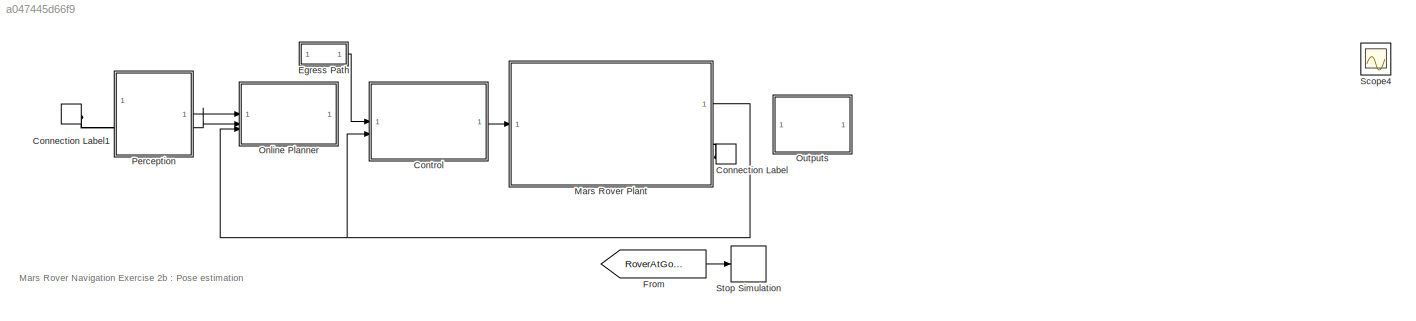
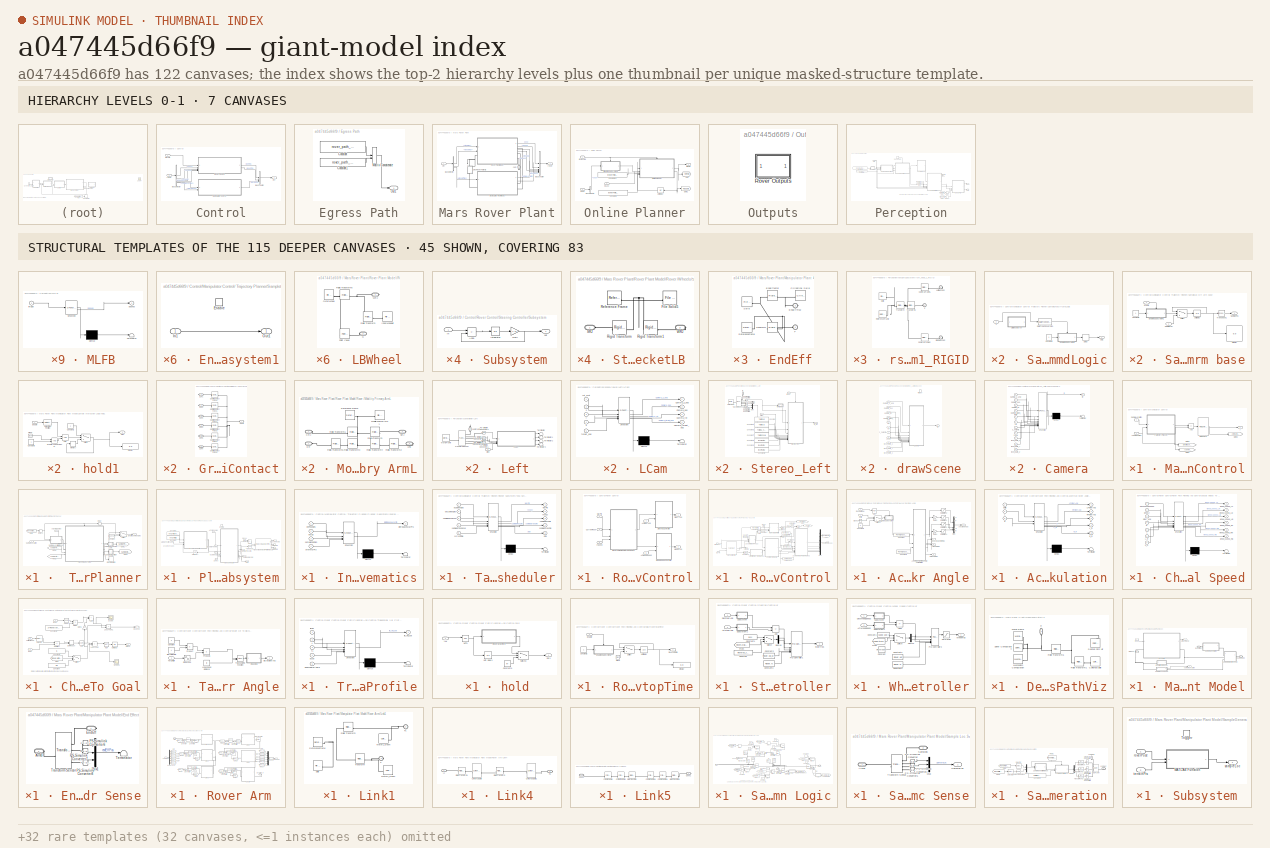
[diagram: thumbnail index - top-2 hierarchy levels (7 canvases) + 45 structural-template representatives of the remaining 115 canvases]
MODEL slx_a047445d66f9
KIND model
CONFIG AbsTol = 1e-3
CONFIG EnableMultiTasking = on
CONFIG FixedStep = 1e-2
CONFIG MaxStep = 0.1
CONFIG MinStep = auto
CONFIG RelTol = 1e-3
CONFIG SampleTimeConstraint = Unconstrained
CONFIG SolverName = ode23t
CONFIG StartFcn = mars_rover_sim_callback
CONFIG StartTime = 0.0
CONFIG StopTime = 2000
WORKSPACE source: MATLAB code (in-file)
WORKSPACE code: addpath("mars_rover_helpers");
WORKSPACE mdlpath = ['mars_rover_data',filesep,'mars_rover_arm']
WORKSPACE code: load_system(mdlpath);
WORKSPACE imdata = zeros(3,3,3)
WORKSPACE Kp_steer = 1
WORKSPACE Ki_steer = 1
WORKSPACE Kd_steer = 1
WORKSPACE Kp = 1
WORKSPACE Ki = 1
WORKSPACE Kd = 1
BLOCK [ConnectionLabel] Connection Label
  Label = cb
BLOCK [ConnectionLabel] Connection Label1
  Label = cb
  NameLocation = top
BLOCK [SubSystem] Control
BLOCK [BusCreator] Control/Bus Creator
  DisplayOption = bar
  InheritFromInputs = on
  Inputs = steerTrqs,wheelTrqs,armJointTrqs
BLOCK [BusSelector] Control/Bus Selector
  OutputSignals = pose,vSpeed,steerAng,wSpeeds,sampleLocation,armJointAng
BLOCK [SubSystem] Control/Manipulator Control
  Commented = on
BLOCK [SubSystem] Control/Manipulator Control/ Trajectory Planner
BLOCK [Inport] Control/Manipulator Control/ Trajectory Planner/ActJointAngles
  Port = 2
BLOCK [Constant] Control/Manipulator Control/ Trajectory Planner/Constant
  Value = [-2.2294 -125.2918   50.0575 -175.3493  177.7706  180.0000]
BLOCK [Delay] Control/Manipulator Control/ Trajectory Planner/Delay
  InputPortMap = u0
BLOCK [Delay] Control/Manipulator Control/ Trajectory Planner/Delay1
  DelayLength = 35
  InputPortMap = u0
BLOCK [Outport] Control/Manipulator Control/ Trajectory Planner/DesiredJointAngles
BLOCK [From] Control/Manipulator Control/ Trajectory Planner/From
  GotoTag = RoverAtGoal
  TagVisibility = global
BLOCK [From] Control/Manipulator Control/ Trajectory Planner/From1
  GotoTag = samplePickedSense
  TagVisibility = global
BLOCK [From] Control/Manipulator Control/ Trajectory Planner/From2
  GotoTag = sampleStoredSense
  TagVisibility = global
BLOCK [Goto] Control/Manipulator Control/ Trajectory Planner/Goto1
  GotoTag = SamplePickFlag
  TagVisibility = global
BLOCK [Goto] Control/Manipulator Control/ Trajectory Planner/Goto2
  GotoTag = SampleDropOffFlag
  TagVisibility = global
BLOCK [SubSystem] Control/Manipulator Control/ Trajectory Planner/Planner Subsystem
BLOCK [Inport] Control/Manipulator Control/ Trajectory Planner/Planner Subsystem/ActJointAngles
BLOCK [Sum] Control/Manipulator Control/ Trajectory Planner/Planner Subsystem/Add2
  IconShape = rectangular
  Inputs = +-
BLOCK [Clock] Control/Manipulator Control/ Trajectory Planner/Planner Subsystem/Clock3
BLOCK [Clock] Control/Manipulator Control/ Trajectory Planner/Planner Subsystem/Clock4
BLOCK [Constant] Control/Manipulator Control/ Trajectory Planner/Planner Subsystem/Constant2
  Value = eeConfig.Targets
BLOCK [Constant] Control/Manipulator Control/ Trajectory Planner/Planner Subsystem/Constant3
  Value = eeConfig.Ig
BLOCK [Outport] Control/Manipulator Control/ Trajectory Planner/Planner Subsystem/DesJointAngles
BLOCK [EnablePort] Control/Manipulator Control/ Trajectory Planner/Planner Subsystem/Enable
BLOCK [SubSystem] Control/Manipulator Control/ Trajectory Planner/Planner Subsystem/Inverse Kinematics
  ErrorFcn = Stateflow.Translate.translate
  PermitHierarchicalResolution = ExplicitOnly
  SFBlockType = MATLAB Function
  TreatAsAtomicUnit = on
BLOCK [Demux] Control/Manipulator Control/ Trajectory Planner/Planner Subsystem/Inverse Kinematics/ Demux 
  Outputs = 1
BLOCK [S-Function] Control/Manipulator Control/ Trajectory Planner/Planner Subsystem/Inverse Kinematics/ SFunction 
  EnableBusSupport = on
  FunctionName = sf_sfun
  PortCounts = [4 2]
  SFcnIsStateOwnerBlock = off
  SFunctionDeploymentMode = off
  Tag = Stateflow S-Function 16
BLOCK [Terminator] Control/Manipulator Control/ Trajectory Planner/Planner Subsystem/Inverse Kinematics/ Terminator 
BLOCK [Inport] Control/Manipulator Control/ Trajectory Planner/Planner Subsystem/Inverse Kinematics/eeIgs
  Port = 2
BLOCK [Inport] Control/Manipulator Control/ Trajectory Planner/Planner Subsystem/Inverse Kinematics/eePoseDes
BLOCK [Outport] Control/Manipulator Control/ Trajectory Planner/Planner Subsystem/Inverse Kinematics/jointSpaceWayPts
BLOCK [Inport] Control/Manipulator Control/ Trajectory Planner/Planner Subsystem/Inverse Kinematics/prevWayPts
  Port = 4
BLOCK [Inport] Control/Manipulator Control/ Trajectory Planner/Planner Subsystem/Inverse Kinematics/samplePosition
  Port = 3
BLOCK [Inport] Control/Manipulator Control/ Trajectory Planner/Planner Subsystem/IsSampleCollected
  Port = 4
BLOCK [Inport] Control/Manipulator Control/ Trajectory Planner/Planner Subsystem/IsSamplePicked
  Port = 3
BLOCK [Outport] Control/Manipulator Control/ Trajectory Planner/Planner Subsystem/SampleDropCmd
  Port = 3
BLOCK [Outport] Control/Manipulator Control/ Trajectory Planner/Planner Subsystem/SamplePickCmd
  Port = 2
BLOCK [Inport] Control/Manipulator Control/ Trajectory Planner/Planner Subsystem/SamplePosition
  Port = 2
BLOCK [SubSystem] Control/Manipulator Control/ Trajectory Planner/Planner Subsystem/Task Scheduler
  ErrorFcn = Stateflow.Translate.translate
  PermitHierarchicalResolution = ExplicitOnly
  SFBlockType = MATLAB Function
  TreatAsAtomicUnit = on
BLOCK [Demux] Control/Manipulator Control/ Trajectory Planner/Planner Subsystem/Task Scheduler/ Demux 
  Outputs = 1
BLOCK [S-Function] Control/Manipulator Control/ Trajectory Planner/Planner Subsystem/Task Scheduler/ SFunction 
  EnableBusSupport = on
  FunctionName = sf_sfun
  PortCounts = [5 6]
  SFcnIsStateOwnerBlock = off
  SFunctionDeploymentMode = off
  Tag = Stateflow S-Function 15
BLOCK [Terminator] Control/Manipulator Control/ Trajectory Planner/Planner Subsystem/Task Scheduler/ Terminator 
BLOCK [Inport] Control/Manipulator Control/ Trajectory Planner/Planner Subsystem/Task Scheduler/actJointAngles
BLOCK [Inport] Control/Manipulator Control/ Trajectory Planner/Planner Subsystem/Task Scheduler/currentTime
  Port = 5
BLOCK [Inport] Control/Manipulator Control/ Trajectory Planner/Planner Subsystem/Task Scheduler/desJointAngles
  Port = 2
BLOCK [Outport] Control/Manipulator Control/ Trajectory Planner/Planner Subsystem/Task Scheduler/reset_t
  Port = 2
BLOCK [Outport] Control/Manipulator Control/ Trajectory Planner/Planner Subsystem/Task Scheduler/sampleDropCmd
  Port = 4
BLOCK [Inport] Control/Manipulator Control/ Trajectory Planner/Planner Subsystem/Task Scheduler/sampleDropSense
  Port = 4
BLOCK [Outport] Control/Manipulator Control/ Trajectory Planner/Planner Subsystem/Task Scheduler/samplePickCmd
  Port = 3
BLOCK [Inport] Control/Manipulator Control/ Trajectory Planner/Planner Subsystem/Task Scheduler/samplePickSense
  Port = 3
BLOCK [Outport] Control/Manipulator Control/ Trajectory Planner/Planner Subsystem/Task Scheduler/stop
  Port = 5
BLOCK [Outport] Control/Manipulator Control/ Trajectory Planner/Planner Subsystem/Task Scheduler/wayPts
BLOCK [Terminator] Control/Manipulator Control/ Trajectory Planner/Planner Subsystem/Terminator2
BLOCK [Terminator] Control/Manipulator Control/ Trajectory Planner/Planner Subsystem/Terminator3
BLOCK [Math] Control/Manipulator Control/ Trajectory Planner/Planner Subsystem/Transpose
  Operator = transpose
BLOCK [Reference] Control/Manipulator Control/ Trajectory Planner/Planner Subsystem/Trapezoidal Velocity Profile Trajectory  REF=robotcorelib/Trapezoidal Velocity Profile Trajectory
  SourceBlock = robotcorelib/Trapezoidal Velocity Profile Trajectory
  SourceType = robotics.slcore.internal.block.TrapVelTrajSys
BLOCK [UnitDelay] Control/Manipulator Control/ Trajectory Planner/Planner Subsystem/Unit Delay1
  HasFrameUpgradeWarning = on
  InitialCondition = zeros(7,6)
  NameLocation = top
  SampleTime = -1
BLOCK [Outport] Control/Manipulator Control/ Trajectory Planner/Planner Subsystem/stop
  Port = 4
BLOCK [SubSystem] Control/Manipulator Control/ Trajectory Planner/SampleDropOffCmdLogic
BLOCK [Constant] Control/Manipulator Control/ Trajectory Planner/SampleDropOffCmdLogic/Constant2
BLOCK [DataTypeConversion] Control/Manipulator Control/ Trajectory Planner/SampleDropOffCmdLogic/Data Type Conversion
  OutDataTypeStr = double
  RndMeth = Floor
  SaturateOnIntegerOverflow = off
BLOCK [Delay] Control/Manipulator Control/ Trajectory Planner/SampleDropOffCmdLogic/Delay
  InputPortMap = u0
BLOCK [SubSystem] Control/Manipulator Control/ Trajectory Planner/SampleDropOffCmdLogic/DistanceError
  Commented = on
  ErrorFcn = Stateflow.Translate.translate
  PermitHierarchicalResolution = ExplicitOnly
  SFBlockType = MATLAB Function
  TreatAsAtomicUnit = on
BLOCK [Demux] Control/Manipulator Control/ Trajectory Planner/SampleDropOffCmdLogic/DistanceError/ Demux 
  Outputs = 1
BLOCK [S-Function] Control/Manipulator Control/ Trajectory Planner/SampleDropOffCmdLogic/DistanceError/ SFunction 
  EnableBusSupport = on
  FunctionName = sf_sfun
  PortCounts = [1 2]
  SFcnIsStateOwnerBlock = off
  SFunctionDeploymentMode = off
  Tag = Stateflow S-Function 7
BLOCK [Terminator] Control/Manipulator Control/ Trajectory Planner/SampleDropOffCmdLogic/DistanceError/ Terminator 
BLOCK [Outport] Control/Manipulator Control/ Trajectory Planner/SampleDropOffCmdLogic/DistanceError/flag
BLOCK [Inport] Control/Manipulator Control/ Trajectory Planner/SampleDropOffCmdLogic/DistanceError/u
BLOCK [SubSystem] Control/Manipulator Control/ Trajectory Planner/SampleDropOffCmdLogic/Enabled Subsystem1
  MinAlgLoopOccurrences = on
  TreatAsAtomicUnit = on
BLOCK [EnablePort] Control/Manipulator Control/ Trajectory Planner/SampleDropOffCmdLogic/Enabled Subsystem1/Enable
BLOCK [Inport] Control/Manipulator Control/ Trajectory Planner/SampleDropOffCmdLogic/Enabled Subsystem1/In1
BLOCK [Outport] Control/Manipulator Control/ Trajectory Planner/SampleDropOffCmdLogic/Enabled Subsystem1/Out1
BLOCK [Outport] Control/Manipulator Control/ Trajectory Planner/SampleDropOffCmdLogic/Out1
BLOCK [Inport] Control/Manipulator Control/ Trajectory Planner/SampleDropOffCmdLogic/u
BLOCK [SubSystem] Control/Manipulator Control/ Trajectory Planner/SampleLoc wrt arm base
BLOCK [Constant] Control/Manipulator Control/ Trajectory Planner/SampleLoc wrt arm base/Constant2
BLOCK [Display] Control/Manipulator Control/ Trajectory Planner/SampleLoc wrt arm base/Display
  Decimation = 1
BLOCK [Inport] Control/Manipulator Control/ Trajectory Planner/SampleLoc wrt arm base/Enable
BLOCK [SubSystem] Control/Manipulator Control/ Trajectory Planner/SampleLoc wrt arm base/Enabled Subsystem1
  MinAlgLoopOccurrences = on
  TreatAsAtomicUnit = on
BLOCK [EnablePort] Control/Manipulator Control/ Trajectory Planner/SampleLoc wrt arm base/Enabled Subsystem1/Enable
BLOCK [Inport] Control/Manipulator Control/ Trajectory Planner/SampleLoc wrt arm base/Enabled Subsystem1/In1
BLOCK [Outport] Control/Manipulator Control/ Trajectory Planner/SampleLoc wrt arm base/Enabled Subsystem1/Out1
BLOCK [Inport] Control/Manipulator Control/ Trajectory Planner/SampleLoc wrt arm base/SampleLoc
  Port = 2
BLOCK [Outport] Control/Manipulator Control/ Trajectory Planner/SampleLoc wrt arm base/SamplePos
BLOCK [Switch] Control/Manipulator Control/ Trajectory Planner/SampleLoc wrt arm base/Switch
  Criteria = u2 > Threshold
  InputSameDT = off
  SaturateOnIntegerOverflow = off
BLOCK [Math] Control/Manipulator Control/ Trajectory Planner/SampleLoc wrt arm base/Transpose1
  Operator = transpose
BLOCK [UnitDelay] Control/Manipulator Control/ Trajectory Planner/SampleLoc wrt arm base/Unit Delay
  HasFrameUpgradeWarning = on
  SampleTime = -1
BLOCK [Inport] Control/Manipulator Control/ Trajectory Planner/SampleLocation
BLOCK [SubSystem] Control/Manipulator Control/ Trajectory Planner/SamplePickUpCmdLogic
BLOCK [Constant] Control/Manipulator Control/ Trajectory Planner/SamplePickUpCmdLogic/Constant2
BLOCK [DataTypeConversion] Control/Manipulator Control/ Trajectory Planner/SamplePickUpCmdLogic/Data Type Conversion
  OutDataTypeStr = double
  RndMeth = Floor
  SaturateOnIntegerOverflow = off
BLOCK [Delay] Control/Manipulator Control/ Trajectory Planner/SamplePickUpCmdLogic/Delay
  InputPortMap = u0
BLOCK [SubSystem] Control/Manipulator Control/ Trajectory Planner/SamplePickUpCmdLogic/DistanceError
  Commented = on
  ErrorFcn = Stateflow.Translate.translate
  PermitHierarchicalResolution = ExplicitOnly
  SFBlockType = MATLAB Function
  TreatAsAtomicUnit = on
BLOCK [Demux] Control/Manipulator Control/ Trajectory Planner/SamplePickUpCmdLogic/DistanceError/ Demux 
  Outputs = 1
BLOCK [S-Function] Control/Manipulator Control/ Trajectory Planner/SamplePickUpCmdLogic/DistanceError/ SFunction 
  EnableBusSupport = on
  FunctionName = sf_sfun
  PortCounts = [1 2]
  SFcnIsStateOwnerBlock = off
  SFunctionDeploymentMode = off
  Tag = Stateflow S-Function 6
BLOCK [Terminator] Control/Manipulator Control/ Trajectory Planner/SamplePickUpCmdLogic/DistanceError/ Terminator 
BLOCK [Outport] Control/Manipulator Control/ Trajectory Planner/SamplePickUpCmdLogic/DistanceError/flag
BLOCK [Inport] Control/Manipulator Control/ Trajectory Planner/SamplePickUpCmdLogic/DistanceError/u
BLOCK [SubSystem] Control/Manipulator Control/ Trajectory Planner/SamplePickUpCmdLogic/Enabled Subsystem1
  MinAlgLoopOccurrences = on
  TreatAsAtomicUnit = on
BLOCK [EnablePort] Control/Manipulator Control/ Trajectory Planner/SamplePickUpCmdLogic/Enabled Subsystem1/Enable
BLOCK [Inport] Control/Manipulator Control/ Trajectory Planner/SamplePickUpCmdLogic/Enabled Subsystem1/In1
BLOCK [Outport] Control/Manipulator Control/ Trajectory Planner/SamplePickUpCmdLogic/Enabled Subsystem1/Out1
BLOCK [Outport] Control/Manipulator Control/ Trajectory Planner/SamplePickUpCmdLogic/Out1
BLOCK [Inport] Control/Manipulator Control/ Trajectory Planner/SamplePickUpCmdLogic/u
BLOCK [Stop] Control/Manipulator Control/ Trajectory Planner/Stop Simulation
BLOCK [Switch] Control/Manipulator Control/ Trajectory Planner/Switch
  Criteria = u2 > Threshold
  InputSameDT = off
  SaturateOnIntegerOverflow = off
BLOCK [Inport] Control/Manipulator Control/ActJointAngles
  Port = 2
BLOCK [Sum] Control/Manipulator Control/Add
  IconShape = rectangular
  Inputs = +-
BLOCK [Goto] Control/Manipulator Control/Goto1
  GotoTag = ActJointAngles
  TagVisibility = global
BLOCK [Goto] Control/Manipulator Control/Goto2
  GotoTag = DesiredJointAngles
  TagVisibility = global
BLOCK [Goto] Control/Manipulator Control/Goto3
  GotoTag = JointActuatorTrqs
  TagVisibility = global
BLOCK [Reference] Control/Manipulator Control/PID Control  REF=slpidlib/PID Controller
  SourceBlock = slpidlib/PID Controller
  SourceType = PID 1dof
BLOCK [Inport] Control/Manipulator Control/SampleLocation
BLOCK [Outport] Control/Manipulator Control/y
BLOCK [SubSystem] Control/Rover Control
BLOCK [Inport] Control/Rover Control/ActSteerAng
  Port = 4
BLOCK [Inport] Control/Rover Control/ActWheelSpeed
  Port = 5
BLOCK [Inport] Control/Rover Control/CurrentPose
  Port = 2
BLOCK [SubSystem] Control/Rover Control/Rover Path Planning And Control
BLOCK [Logic] Control/Rover Control/Rover Path Planning And Control/AND
  AllPortsSameDT = off
  IconShape = distinctive
  OutDataTypeStr = boolean
BLOCK [SubSystem] Control/Rover Control/Rover Path Planning And Control/Ackerman Steer Angle
BLOCK [Outport] Control/Rover Control/Rover Path Planning And Control/Ackerman Steer Angle/AckSteerAngs
BLOCK [SubSystem] Control/Rover Control/Rover Path Planning And Control/Ackerman Steer Angle/Ackerman Steering Angle Formulation
  ErrorFcn = Stateflow.Translate.translate
  PermitHierarchicalResolution = ExplicitOnly
  SFBlockType = MATLAB Function
  TreatAsAtomicUnit = on
BLOCK [Demux] Control/Rover Control/Rover Path Planning And Control/Ackerman Steer Angle/Ackerman Steering Angle Formulation/ Demux 
  Outputs = 1
BLOCK [S-Function] Control/Rover Control/Rover Path Planning And Control/Ackerman Steer Angle/Ackerman Steering Angle Formulation/ SFunction 
  EnableBusSupport = on
  FunctionName = sf_sfun
  PortCounts = [3 6]
  SFcnIsStateOwnerBlock = off
  SFunctionDeploymentMode = off
  Tag = Stateflow S-Function 12
BLOCK [Terminator] Control/Rover Control/Rover Path Planning And Control/Ackerman Steer Angle/Ackerman Steering Angle Formulation/ Terminator 
BLOCK [Inport] Control/Rover Control/Rover Path Planning And Control/Ackerman Steer Angle/Ackerman Steering Angle Formulation/L
  Port = 2
BLOCK [Outport] Control/Rover Control/Rover Path Planning And Control/Ackerman Steer Angle/Ackerman Steering Angle Formulation/LFsteerAng
BLOCK [Outport] Control/Rover Control/Rover Path Planning And Control/Ackerman Steer Angle/Ackerman Steering Angle Formulation/L_R
  Port = 4
BLOCK [Outport] Control/Rover Control/Rover Path Planning And Control/Ackerman Steer Angle/Ackerman Steering Angle Formulation/R
  Port = 3
BLOCK [Outport] Control/Rover Control/Rover Path Planning And Control/Ackerman Steer Angle/Ackerman Steering Angle Formulation/RFsteerAng
  Port = 2
BLOCK [Outport] Control/Rover Control/Rover Path Planning And Control/Ackerman Steer Angle/Ackerman Steering Angle Formulation/R_R
  Port = 5
BLOCK [Inport] Control/Rover Control/Rover Path Planning And Control/Ackerman Steer Angle/Ackerman Steering Angle Formulation/d
  Port = 3
BLOCK [Inport] Control/Rover Control/Rover Path Planning And Control/Ackerman Steer Angle/Ackerman Steering Angle Formulation/delta
BLOCK [Outport] Control/Rover Control/Rover Path Planning And Control/Ackerman Steer Angle/ChassisCenterROC
  Port = 2
BLOCK [Clock] Control/Rover Control/Rover Path Planning And Control/Ackerman Steer Angle/Clock1
BLOCK [Constant] Control/Rover Control/Rover Path Planning And Control/Ackerman Steer Angle/Constant
  Value = Rover.Chassis_L/2
BLOCK [Constant] Control/Rover Control/Rover Path Planning And Control/Ackerman Steer Angle/Constant3
  NameLocation = top
  Value = 6
BLOCK [Constant] Control/Rover Control/Rover Path Planning And Control/Ackerman Steer Angle/Constant4
  Value = Rover.Chassis_width
BLOCK [Inport] Control/Rover Control/Rover Path Planning And Control/Ackerman Steer Angle/Delta
  Port = 2
BLOCK [SubSystem] Control/Rover Control/Rover Path Planning And Control/Ackerman Steer Angle/Enabled Subsystem
  TreatAsAtomicUnit = on
BLOCK [EnablePort] Control/Rover Control/Rover Path Planning And Control/Ackerman Steer Angle/Enabled Subsystem/Enable
BLOCK [Inport] Control/Rover Control/Rover Path Planning And Control/Ackerman Steer Angle/Enabled Subsystem/In1
BLOCK [Outport] Control/Rover Control/Rover Path Planning And Control/Ackerman Steer Angle/Enabled Subsystem/delta
BLOCK [Gain] Control/Rover Control/Rover Path Planning And Control/Ackerman Steer Angle/Gain3
  Gain = -1
BLOCK [Gain] Control/Rover Control/Rover Path Planning And Control/Ackerman Steer Angle/Gain4
  Gain = -1
BLOCK [Outport] Control/Rover Control/Rover Path Planning And Control/Ackerman Steer Angle/LWheelROC
  Port = 3
BLOCK [Mux] Control/Rover Control/Rover Path Planning And Control/Ackerman Steer Angle/Mux
  DisplayOption = bar
BLOCK [Logic] Control/Rover Control/Rover Path Planning And Control/Ackerman Steer Angle/NOT
  AllPortsSameDT = off
  IconShape = distinctive
  Operator = NOT
  OutDataTypeStr = boolean
BLOCK [Outport] Control/Rover Control/Rover Path Planning And Control/Ackerman Steer Angle/RWheelROC
  Port = 4
BLOCK [Inport] Control/Rover Control/Rover Path Planning And Control/Ackerman Steer Angle/RoverAtGoal
BLOCK [Saturate] Control/Rover Control/Rover Path Planning And Control/Ackerman Steer Angle/Saturation1
  LowerLimit = -60
  UpperLimit = 60
BLOCK [Saturate] Control/Rover Control/Rover Path Planning And Control/Ackerman Steer Angle/Saturation2
  LowerLimit = -60
  UpperLimit = 60
BLOCK [Saturate] Control/Rover Control/Rover Path Planning And Control/Ackerman Steer Angle/Saturation3
  LowerLimit = -60
  UpperLimit = 60
BLOCK [Saturate] Control/Rover Control/Rover Path Planning And Control/Ackerman Steer Angle/Saturation4
  LowerLimit = -60
  UpperLimit = 60
BLOCK [Switch] Control/Rover Control/Rover Path Planning And Control/Ackerman Steer Angle/Switch2
  Criteria = u2 > Threshold
  InputSameDT = off
  SaturateOnIntegerOverflow = off
  Threshold = 1
BLOCK [SubSystem] Control/Rover Control/Rover Path Planning And Control/Chassis Velocity To Wheel Speed
  ErrorFcn = Stateflow.Translate.translate
  PermitHierarchicalResolution = ExplicitOnly
  SFBlockType = MATLAB Function
  TreatAsAtomicUnit = on
BLOCK [Demux] Control/Rover Control/Rover Path Planning And Control/Chassis Velocity To Wheel Speed/ Demux 
  Outputs = 1
BLOCK [S-Function] Control/Rover Control/Rover Path Planning And Control/Chassis Velocity To Wheel Speed/ SFunction 
  EnableBusSupport = on
  FunctionName = sf_sfun
  PortCounts = [7 7]
  SFcnIsStateOwnerBlock = off
  SFunctionDeploymentMode = off
  Tag = Stateflow S-Function 14
BLOCK [Terminator] Control/Rover Control/Rover Path Planning And Control/Chassis Velocity To Wheel Speed/ Terminator 
BLOCK [Inport] Control/Rover Control/Rover Path Planning And Control/Chassis Velocity To Wheel Speed/L
  Port = 5
BLOCK [Inport] Control/Rover Control/Rover Path Planning And Control/Chassis Velocity To Wheel Speed/L_R
  Port = 6
BLOCK [Inport] Control/Rover Control/Rover Path Planning And Control/Chassis Velocity To Wheel Speed/R
  Port = 4
BLOCK [Inport] Control/Rover Control/Rover Path Planning And Control/Chassis Velocity To Wheel Speed/R_R
  Port = 7
BLOCK [Inport] Control/Rover Control/Rover Path Planning And Control/Chassis Velocity To Wheel Speed/desChassisSpeed
BLOCK [Inport] Control/Rover Control/Rover Path Planning And Control/Chassis Velocity To Wheel Speed/steer_ang
  Port = 3
BLOCK [Inport] Control/Rover Control/Rover Path Planning And Control/Chassis Velocity To Wheel Speed/wheel_r
  Port = 2
BLOCK [Outport] Control/Rover Control/Rover Path Planning And Control/Chassis Velocity To Wheel Speed/wheel_speed_LB
  Port = 3
BLOCK [Outport] Control/Rover Control/Rover Path Planning And Control/Chassis Velocity To Wheel Speed/wheel_speed_LF
BLOCK [Outport] Control/Rover Control/Rover Path Planning And Control/Chassis Velocity To Wheel Speed/wheel_speed_LM
  Port = 2
BLOCK [Outport] Control/Rover Control/Rover Path Planning And Control/Chassis Velocity To Wheel Speed/wheel_speed_RB
  Port = 6
BLOCK [Outport] Control/Rover Control/Rover Path Planning And Control/Chassis Velocity To Wheel Speed/wheel_speed_RF
  Port = 4
BLOCK [Outport] Control/Rover Control/Rover Path Planning And Control/Chassis Velocity To Wheel Speed/wheel_speed_RM
  Port = 5
BLOCK [SubSystem] Control/Rover Control/Rover Path Planning And Control/Check Distance To Goal
BLOCK [Sum] Control/Rover Control/Rover Path Planning And Control/Check Distance To Goal/Add
  IconShape = rectangular
BLOCK [Constant] Control/Rover Control/Rover Path Planning And Control/Check Distance To Goal/Constant
  Value = 0.5
BLOCK [Constant] Control/Rover Control/Rover Path Planning And Control/Check Distance To Goal/Constant1
  Value = 2*Rover.rover_accel
BLOCK [Constant] Control/Rover Control/Rover Path Planning And Control/Check Distance To Goal/Constant2
  Value = 5
BLOCK [Product] Control/Rover Control/Rover Path Planning And Control/Check Distance To Goal/Divide
  Inputs = */
BLOCK [DotProduct] Control/Rover Control/Rover Path Planning And Control/Check Distance To Goal/Dot Product
  OutDataTypeStr = Inherit: Inherit via internal rule
BLOCK [From] Control/Rover Control/Rover Path Planning And Control/Check Distance To Goal/From
  GotoTag = RoverAtGoal
  TagVisibility = global
BLOCK [Gain] Control/Rover Control/Rover Path Planning And Control/Check Distance To Goal/Gain1
  NameLocation = right
BLOCK [RelationalOperator] Control/Rover Control/Rover Path Planning And Control/Check Distance To Goal/Less Than
  InputSameDT = off
  Operator = >
  OutDataTypeStr = boolean
  RndMeth = Simplest
BLOCK [RelationalOperator] Control/Rover Control/Rover Path Planning And Control/Check Distance To Goal/Less Than1
  InputSameDT = off
  Operator = >
  OutDataTypeStr = boolean
  RndMeth = Simplest
BLOCK [Logic] Control/Rover Control/Rover Path Planning And Control/Check Distance To Goal/NOT
  AllPortsSameDT = off
  IconShape = distinctive
  Operator = NOT
  OutDataTypeStr = boolean
BLOCK [Scope] Control/Rover Control/Rover Path Planning And Control/Check Distance To Goal/Scope
  Floating = off
  NumInputPorts = 1
  ScopeSpecificationString = Simulink.scopes.TimeScopeBlockCfg('CurrentConfiguration', extmgr.ConfigurationSet(extmgr.Configuration('Core','General UI',true),extmgr.Configuration('Core','Source UI',true),extmgr.Configuration('Sources','WiredSimulink',true,'DataLoggingVariableName','ScopeData11'),extmgr.Configuration('Visuals','Time Domain',true,'SerializedDisplays',{struct('MinYLimReal','-0.0616','MaxYLimReal','5.5634','YLabe...<+1465ch>
BLOCK [Scope] Control/Rover Control/Rover Path Planning And Control/Check Distance To Goal/Scope1
  Floating = off
  NumInputPorts = 1
  ScopeSpecificationString = Simulink.scopes.TimeScopeBlockCfg('CurrentConfiguration', extmgr.ConfigurationSet(extmgr.Configuration('Core','General UI',true),extmgr.Configuration('Core','Source UI',true),extmgr.Configuration('Sources','WiredSimulink',true,'DataLoggingVariableName','ScopeData17'),extmgr.Configuration('Visuals','Time Domain',true,'SerializedDisplays',{struct('MinYLimReal','1.46909','MaxYLimReal','7.77836','YLab...<+1436ch>
BLOCK [Selector] Control/Rover Control/Rover Path Planning And Control/Check Distance To Goal/Selector
  IndexOptions = Index vector (dialog)
  Indices = [1 2]
  InputPortWidth = 3
  OutputSizes = 1
BLOCK [Sqrt] Control/Rover Control/Rover Path Planning And Control/Check Distance To Goal/Sqrt
BLOCK [Sum] Control/Rover Control/Rover Path Planning And Control/Check Distance To Goal/Subtract
  IconShape = rectangular
  Inputs = +-
BLOCK [Switch] Control/Rover Control/Rover Path Planning And Control/Check Distance To Goal/Switch
  Criteria = u2 > Threshold
  InputSameDT = off
  SaturateOnIntegerOverflow = off
BLOCK [UnitDelay] Control/Rover Control/Rover Path Planning And Control/Check Distance To Goal/Unit Delay
  HasFrameUpgradeWarning = on
  SampleTime = -1
BLOCK [Outport] Control/Rover Control/Rover Path Planning And Control/Check Distance To Goal/atGoal
  Port = 2
BLOCK [Math] Control/Rover Control/Rover Path Planning And Control/Check Distance To Goal/const
  Operator = square
BLOCK [Inport] Control/Rover Control/Rover Path Planning And Control/Check Distance To Goal/currentPose
  Port = 2
BLOCK [Outport] Control/Rover Control/Rover Path Planning And Control/Check Distance To Goal/deAccel
BLOCK [Inport] Control/Rover Control/Rover Path Planning And Control/Check Distance To Goal/goal
BLOCK [Inport] Control/Rover Control/Rover Path Planning And Control/Check Distance To Goal/linVel
  Port = 3
BLOCK [Clock] Control/Rover Control/Rover Path Planning And Control/Clock3
BLOCK [Reference] Control/Rover Control/Rover Path Planning And Control/Compare To Constant  REF=simulink/Logic and Bit
Operations/Compare
To Constant
  SourceBlock = simulink/Logic and Bit\nOperations/Compare\nTo Constant
  SourceType = Compare To Constant
BLOCK [Constant] Control/Rover Control/Rover Path Planning And Control/Constant10
  Value = Rover.start_time
BLOCK [Constant] Control/Rover Control/Rover Path Planning And Control/Constant11
  Value = Rover.rover_accel
BLOCK [Constant] Control/Rover Control/Rover Path Planning And Control/Constant12
  Value = Rover.Chassis_L/2
BLOCK [Constant] Control/Rover Control/Rover Path Planning And Control/Constant7
  Value = [rover_path_dl.x(end) rover_path_dl.y(end)]
BLOCK [Constant] Control/Rover Control/Rover Path Planning And Control/Constant8
  Value = Rover.Wheel_Radius
BLOCK [Inport] Control/Rover Control/Rover Path Planning And Control/CurrentPose
  Port = 2
BLOCK [Outport] Control/Rover Control/Rover Path Planning And Control/DesSteerAngs
BLOCK [Outport] Control/Rover Control/Rover Path Planning And Control/DesWheelSpeeds
  Port = 2
BLOCK [Goto] Control/Rover Control/Rover Path Planning And Control/Goto
  GotoTag = RoverAtGoal
  TagVisibility = global
BLOCK [Goto] Control/Rover Control/Rover Path Planning And Control/Goto1
  GotoTag = DesSteerAng
  TagVisibility = global
BLOCK [Goto] Control/Rover Control/Rover Path Planning And Control/Goto2
  GotoTag = DesWheelSpeeds
  TagVisibility = global
BLOCK [Goto] Control/Rover Control/Rover Path Planning And Control/Goto3
  GotoTag = RoverDesiredLinearSpeed
  TagVisibility = global
BLOCK [Mux] Control/Rover Control/Rover Path Planning And Control/Mux2
  DisplayOption = bar
  Inputs = 6
BLOCK [Reference] Control/Rover Control/Rover Path Planning And Control/Pure Pursuit Control  REF=robotalgslib/Pure Pursuit
  SourceBlock = robotalgslib/Pure Pursuit
  SourceType = nav.slalgs.internal.PurePursuit
BLOCK [SubSystem] Control/Rover Control/Rover Path Planning And Control/Target Dir To Bicycle Steer Angle
BLOCK [Constant] Control/Rover Control/Rover Path Planning And Control/Target Dir To Bicycle Steer Angle/Bicycle length
  Value = L
BLOCK [Outport] Control/Rover Control/Rover Path Planning And Control/Target Dir To Bicycle Steer Angle/BicycleSteerAng
BLOCK [Constant] Control/Rover Control/Rover Path Planning And Control/Target Dir To Bicycle Steer Angle/Constant
  Value = 2
BLOCK [Constant] Control/Rover Control/Rover Path Planning And Control/Target Dir To Bicycle Steer Angle/Lookahead distance
  Value = ld
BLOCK [Product] Control/Rover Control/Rover Path Planning And Control/Target Dir To Bicycle Steer Angle/Product
BLOCK [Product] Control/Rover Control/Rover Path Planning And Control/Target Dir To Bicycle Steer Angle/Product1
BLOCK [SubSystem] Control/Rover Control/Rover Path Planning And Control/Target Dir To Bicycle Steer Angle/Rad2Deg
  ErrorFcn = Stateflow.Translate.translate
  PermitHierarchicalResolution = ExplicitOnly
  SFBlockType = MATLAB Function
  TreatAsAtomicUnit = on
BLOCK [Demux] Control/Rover Control/Rover Path Planning And Control/Target Dir To Bicycle Steer Angle/Rad2Deg/ Demux 
  Outputs = 1
BLOCK [S-Function] Control/Rover Control/Rover Path Planning And Control/Target Dir To Bicycle Steer Angle/Rad2Deg/ SFunction 
  EnableBusSupport = on
  FunctionName = sf_sfun
  PortCounts = [1 2]
  SFcnIsStateOwnerBlock = off
  SFunctionDeploymentMode = off
  Tag = Stateflow S-Function 1
BLOCK [Terminator] Control/Rover Control/Rover Path Planning And Control/Target Dir To Bicycle Steer Angle/Rad2Deg/ Terminator 
BLOCK [Inport] Control/Rover Control/Rover Path Planning And Control/Target Dir To Bicycle Steer Angle/Rad2Deg/u
BLOCK [Outport] Control/Rover Control/Rover Path Planning And Control/Target Dir To Bicycle Steer Angle/Rad2Deg/y
BLOCK [Sin] Control/Rover Control/Rover Path Planning And Control/Target Dir To Bicycle Steer Angle/Sine Wave
  SampleTime = 0
  TimeSource = Use external signal
BLOCK [Inport] Control/Rover Control/Rover Path Planning And Control/Target Dir To Bicycle Steer Angle/TargetDir
BLOCK [Trigonometry] Control/Rover Control/Rover Path Planning And Control/Target Dir To Bicycle Steer Angle/Trigonometric Function
  Operator = atan2
BLOCK [Terminator] Control/Rover Control/Rover Path Planning And Control/Terminator
BLOCK [ToWorkspace] Control/Rover Control/Rover Path Planning And Control/To Workspace
  FixptAsFi = on
  MaxDataPoints = inf
  SampleTime = -1
  VariableName = ROC
BLOCK [TransferFcn] Control/Rover Control/Rover Path Planning And Control/Transfer Fcn1
  Denominator = [0.25 1]
BLOCK [TransferFcn] Control/Rover Control/Rover Path Planning And Control/Transfer Fcn2
  Denominator = [0.25 1]
BLOCK [SubSystem] Control/Rover Control/Rover Path Planning And Control/Trapezoidal Vel Profile
  ErrorFcn = Stateflow.Translate.translate
  PermitHierarchicalResolution = ExplicitOnly
  SFBlockType = MATLAB Function
  TreatAsAtomicUnit = on
BLOCK [Demux] Control/Rover Control/Rover Path Planning And Control/Trapezoidal Vel Profile/ Demux 
  Outputs = 1
BLOCK [S-Function] Control/Rover Control/Rover Path Planning And Control/Trapezoidal Vel Profile/ SFunction 
  EnableBusSupport = on
  FunctionName = sf_sfun
  PortCounts = [5 2]
  SFcnIsStateOwnerBlock = off
  SFunctionDeploymentMode = off
  Tag = Stateflow S-Function 11
BLOCK [Terminator] Control/Rover Control/Rover Path Planning And Control/Trapezoidal Vel Profile/ Terminator 
BLOCK [Inport] Control/Rover Control/Rover Path Planning And Control/Trapezoidal Vel Profile/accel
  Port = 4
BLOCK [Inport] Control/Rover Control/Rover Path Planning And Control/Trapezoidal Vel Profile/deaccelStartTime
  Port = 5
BLOCK [Inport] Control/Rover Control/Rover Path Planning And Control/Trapezoidal Vel Profile/linVel
BLOCK [Outport] Control/Rover Control/Rover Path Planning And Control/Trapezoidal Vel Profile/lin_Vel_out
BLOCK [Inport] Control/Rover Control/Rover Path Planning And Control/Trapezoidal Vel Profile/t
  Port = 2
BLOCK [Inport] Control/Rover Control/Rover Path Planning And Control/Trapezoidal Vel Profile/t1
  Port = 3
BLOCK [Inport] Control/Rover Control/Rover Path Planning And Control/WayPts
BLOCK [SubSystem] Control/Rover Control/Rover Path Planning And Control/hold
BLOCK [Constant] Control/Rover Control/Rover Path Planning And Control/hold/Constant9
  Value = inf
BLOCK [Inport] Control/Rover Control/Rover Path Planning And Control/hold/In1
BLOCK [Logic] Control/Rover Control/Rover Path Planning And Control/hold/NOT1
  AllPortsSameDT = off
  IconShape = distinctive
  Operator = NOT
  OutDataTypeStr = boolean
BLOCK [Outport] Control/Rover Control/Rover Path Planning And Control/hold/Out1
BLOCK [SubSystem] Control/Rover Control/Rover Path Planning And Control/hold/RoverStopTime
BLOCK [Clock] Control/Rover Control/Rover Path Planning And Control/hold/RoverStopTime/Clock
BLOCK [Constant] Control/Rover Control/Rover Path Planning And Control/hold/RoverStopTime/Constant2
BLOCK [Outport] Control/Rover Control/Rover Path Planning And Control/hold/RoverStopTime/DeAccelTime
BLOCK [Display] Control/Rover Control/Rover Path Planning And Control/hold/RoverStopTime/Display
  Decimation = 1
BLOCK [Inport] Control/Rover Control/Rover Path Planning And Control/hold/RoverStopTime/Enable
BLOCK [SubSystem] Control/Rover Control/Rover Path Planning And Control/hold/RoverStopTime/Enabled Subsystem1
  MinAlgLoopOccurrences = on
  TreatAsAtomicUnit = on
BLOCK [EnablePort] Control/Rover Control/Rover Path Planning And Control/hold/RoverStopTime/Enabled Subsystem1/Enable
BLOCK [Inport] Control/Rover Control/Rover Path Planning And Control/hold/RoverStopTime/Enabled Subsystem1/In1
BLOCK [Outport] Control/Rover Control/Rover Path Planning And Control/hold/RoverStopTime/Enabled Subsystem1/Out1
BLOCK [Switch] Control/Rover Control/Rover Path Planning And Control/hold/RoverStopTime/Switch
  Criteria = u2 > Threshold
  InputSameDT = off
  SaturateOnIntegerOverflow = off
BLOCK [UnitDelay] Control/Rover Control/Rover Path Planning And Control/hold/RoverStopTime/Unit Delay
  HasFrameUpgradeWarning = on
  SampleTime = -1
BLOCK [Switch] Control/Rover Control/Rover Path Planning And Control/hold/Switch3
  Criteria = u2 > Threshold
  InputSameDT = off
  SaturateOnIntegerOverflow = off
BLOCK [UnitDelay] Control/Rover Control/Rover Path Planning And Control/hold/Unit Delay1
  HasFrameUpgradeWarning = on
  SampleTime = -1
BLOCK [Inport] Control/Rover Control/Rover Path Planning And Control/vSpeed
  Port = 3
BLOCK [Outport] Control/Rover Control/SteerTrqs
BLOCK [SubSystem] Control/Rover Control/Steering Controller
BLOCK [Inport] Control/Rover Control/Steering Controller/ActSteerAng
  Port = 2
BLOCK [Sum] Control/Rover Control/Steering Controller/Add
  IconShape = rectangular
  Inputs = +-
BLOCK [Constant] Control/Rover Control/Steering Controller/Constant
  Value = [Rover.Kp_steer,Rover.Ki_steer]
BLOCK [Constant] Control/Rover Control/Steering Controller/Constant1
  Value = [10 1 ]
BLOCK [Constant] Control/Rover Control/Steering Controller/Constant2
  Value = Rover.Kd_steer
BLOCK [Constant] Control/Rover Control/Steering Controller/Constant3
  Value = Rover.N
BLOCK [Demux] Control/Rover Control/Steering Controller/Demux
  Outputs = 2
BLOCK [Inport] Control/Rover Control/Steering Controller/DesSteerAng
BLOCK [From] Control/Rover Control/Steering Controller/From
  GotoTag = RoverAtGoal
  TagVisibility = global
BLOCK [Reference] Control/Rover Control/Steering Controller/PID Controller1  REF=slpidlib/PID Controller
  SourceBlock = slpidlib/PID Controller
  SourceType = PID 1dof
BLOCK [Outport] Control/Rover Control/Steering Controller/SteerTrqs
BLOCK [SubSystem] Control/Rover Control/Steering Controller/Subsystem
BLOCK [Sum] Control/Rover Control/Steering Controller/Subsystem/Add1
  IconShape = rectangular
  Inputs = +-
BLOCK [Gain] Control/Rover Control/Steering Controller/Subsystem/Gain
  Gain = 1./b
BLOCK [Inport] Control/Rover Control/Steering Controller/Subsystem/In
BLOCK [Integrator] Control/Rover Control/Steering Controller/Subsystem/Integrator
BLOCK [Outport] Control/Rover Control/Steering Controller/Subsystem/out
BLOCK [SubSystem] Control/Rover Control/Steering Controller/Subsystem1
BLOCK [Sum] Control/Rover Control/Steering Controller/Subsystem1/Add1
  IconShape = rectangular
  Inputs = +-
BLOCK [Gain] Control/Rover Control/Steering Controller/Subsystem1/Gain
  Gain = 1./b
BLOCK [Inport] Control/Rover Control/Steering Controller/Subsystem1/In
BLOCK [Integrator] Control/Rover Control/Steering Controller/Subsystem1/Integrator
BLOCK [Outport] Control/Rover Control/Steering Controller/Subsystem1/out
BLOCK [Switch] Control/Rover Control/Steering Controller/Switch
  Criteria = u2 > Threshold
  InputSameDT = off
  SaturateOnIntegerOverflow = off
BLOCK [Inport] Control/Rover Control/WayPts
BLOCK [SubSystem] Control/Rover Control/Wheel Speed Controller
BLOCK [Inport] Control/Rover Control/Wheel Speed Controller/ActWheelSpeed
  Port = 2
BLOCK [Sum] Control/Rover Control/Wheel Speed Controller/Add3
  IconShape = rectangular
  Inputs = +-
BLOCK [Constant] Control/Rover Control/Wheel Speed Controller/Constant
  Value = [Rover.Kp,Rover.Ki]
BLOCK [Constant] Control/Rover Control/Wheel Speed Controller/Constant1
  Value = [5000 100 ]
BLOCK [Constant] Control/Rover Control/Wheel Speed Controller/Constant2
  Value = Rover.Kd
BLOCK [Constant] Control/Rover Control/Wheel Speed Controller/Constant3
  Value = Rover.N
BLOCK [Demux] Control/Rover Control/Wheel Speed Controller/Demux
  Outputs = 2
BLOCK [Inport] Control/Rover Control/Wheel Speed Controller/DesWheelSpeeds
BLOCK [From] Control/Rover Control/Wheel Speed Controller/From
  GotoTag = RoverAtGoal
  TagVisibility = global
BLOCK [Reference] Control/Rover Control/Wheel Speed Controller/PID Controller3  REF=slpidlib/PID Controller
  SourceBlock = slpidlib/PID Controller
  SourceType = PID 1dof
BLOCK [Saturate] Control/Rover Control/Wheel Speed Controller/Saturation
  LowerLimit = Rover.TrqLoLimit
  UpperLimit = Rover.TrqUpLimit
BLOCK [SubSystem] Control/Rover Control/Wheel Speed Controller/Subsystem
BLOCK [Sum] Control/Rover Control/Wheel Speed Controller/Subsystem/Add1
  IconShape = rectangular
  Inputs = +-
BLOCK [Gain] Control/Rover Control/Wheel Speed Controller/Subsystem/Gain
  Gain = 1./b
BLOCK [Inport] Control/Rover Control/Wheel Speed Controller/Subsystem/In
BLOCK [Integrator] Control/Rover Control/Wheel Speed Controller/Subsystem/Integrator
BLOCK [Outport] Control/Rover Control/Wheel Speed Controller/Subsystem/out
BLOCK [SubSystem] Control/Rover Control/Wheel Speed Controller/Subsystem1
BLOCK [Sum] Control/Rover Control/Wheel Speed Controller/Subsystem1/Add1
  IconShape = rectangular
  Inputs = +-
BLOCK [Gain] Control/Rover Control/Wheel Speed Controller/Subsystem1/Gain
  Gain = 1./b
BLOCK [Inport] Control/Rover Control/Wheel Speed Controller/Subsystem1/In
BLOCK [Integrator] Control/Rover Control/Wheel Speed Controller/Subsystem1/Integrator
BLOCK [Outport] Control/Rover Control/Wheel Speed Controller/Subsystem1/out
BLOCK [Switch] Control/Rover Control/Wheel Speed Controller/Switch
  Criteria = u2 > Threshold
  InputSameDT = off
  SaturateOnIntegerOverflow = off
BLOCK [Outport] Control/Rover Control/Wheel Speed Controller/WheelTrqs
BLOCK [Outport] Control/Rover Control/WheelTrqs
  Port = 2
BLOCK [Inport] Control/Rover Control/vSpeed
  Port = 3
BLOCK [Outport] Control/ctrl
BLOCK [Inport] Control/rover
  Port = 2
BLOCK [Inport] Control/waypts
BLOCK [SubSystem] Egress Path
BLOCK [Constant] Egress Path/Constant
  Value = rover_path_dl.x
BLOCK [Constant] Egress Path/Constant1
  Value = rover_path_dl.y
BLOCK [Concatenate] Egress Path/Matrix Concatenate
  ConcatenateDimension = 2
  Mode = Multidimensional array
BLOCK [Outport] Egress Path/Out1
BLOCK [From] From
  GotoTag = RoverAtGoal
  TagVisibility = global
BLOCK [SubSystem] Mars Rover Plant
BLOCK [BusCreator] Mars Rover Plant/Bus Creator
  DisplayOption = bar
  InheritFromInputs = on
  Inputs = pose,vSpeed,steerAng,wSpeeds,armJointAng,sampleLocation
BLOCK [BusSelector] Mars Rover Plant/Bus Selector
  OutputSignals = steerTrqs,wheelTrqs,armJointTrqs
BLOCK [SubSystem] Mars Rover Plant/DesRoverPathViz
BLOCK [Reference] Mars Rover Plant/DesRoverPathViz/Cylindrical Solid  REF=sm_lib/Body Elements/Cylindrical Solid
  Commented = on
  NameLocation = top
  SourceBlock = sm_lib/Body Elements/Cylindrical Solid
  SourceType = Cylindrical Solid
BLOCK [Reference] Mars Rover Plant/DesRoverPathViz/Desired Path Viz  REF=sm_lib/Curves and Surfaces/Point Cloud
  NameLocation = right
  SourceBlock = sm_lib/Curves and Surfaces/Point Cloud
  SourceType = Point Cloud
BLOCK [Reference] Mars Rover Plant/DesRoverPathViz/Mechanism Configuration  REF=sm_lib/Utilities/Mechanism
Configuration
  SourceBlock = sm_lib/Utilities/Mechanism\nConfiguration
  SourceType = Mechanism\nConfiguration
BLOCK [PMIOPort] Mars Rover Plant/DesRoverPathViz/R
  NameLocation = left
  Side = Left
BLOCK [Reference] Mars Rover Plant/DesRoverPathViz/Rigid Transform1  REF=sm_lib/Frames and
Transforms/Rigid
Transform
  Commented = on
  SourceBlock = sm_lib/Frames and\nTransforms/Rigid\nTransform
  SourceType = Rigid\nTransform
BLOCK [Reference] Mars Rover Plant/DesRoverPathViz/Rigid Transform6  REF=sm_lib/Frames and
Transforms/Rigid
Transform
  SourceBlock = sm_lib/Frames and\nTransforms/Rigid\nTransform
  SourceType = Rigid\nTransform
BLOCK [Reference] Mars Rover Plant/DesRoverPathViz/Solver Configuration  REF=nesl_utility/Solver
Configuration
  SourceBlock = nesl_utility/Solver\nConfiguration
  SourceType = Solver\nConfiguration
BLOCK [Reference] Mars Rover Plant/DesRoverPathViz/World Frame  REF=sm_lib/Frames and
Transforms/World Frame
  SourceBlock = sm_lib/Frames and\nTransforms/World Frame
  SourceType = World Frame
BLOCK [SubSystem] Mars Rover Plant/Manipulator Plant Model
  Commented = on
  PortSchema = {"entries":[{"content":{"sides":[{"content":{"connectorIds":["LConn1","In1"]},"type":"ConnectorPlacement.EquallySpacedRectSide","uuid":"1d5d5bba-8fe4-4512-81c9-941bf10e7a7e"},{"content":{"connectorIds":["RConn1","RConn2","Out1","Out2"],"side":"RIGHT"},"type":"ConnectorPlacement.EquallySpacedRectSide","uuid":"9a182200-9de3-47d0-8b03-f46c5c0d90b9"},{"content":{"connectorIds":[],"side":"TOP"},"type":...<+274ch>
  ShowPortLabels = none
BLOCK [PMIOPort] Mars Rover Plant/Manipulator Plant Model/ArmBase
  Port = 3
  Side = Right
BLOCK [SubSystem] Mars Rover Plant/Manipulator Plant Model/End Effector Sense
BLOCK [PMIOPort] Mars Rover Plant/Manipulator Plant Model/End Effector Sense/ArmB
  Side = Left
BLOCK [PMIOPort] Mars Rover Plant/Manipulator Plant Model/End Effector Sense/EndEff
  Port = 2
  Side = Right
BLOCK [Mux] Mars Rover Plant/Manipulator Plant Model/End Effector Sense/Mux1
  DisplayOption = bar
  Inputs = 3
BLOCK [Reference] Mars Rover Plant/Manipulator Plant Model/End Effector Sense/PS-Simulink Converter6  REF=nesl_utility/PS-Simulink
Converter
  SourceBlock = nesl_utility/PS-Simulink\nConverter
  SourceType = PS-Simulink\nConverter
BLOCK [Reference] Mars Rover Plant/Manipulator Plant Model/End Effector Sense/PS-Simulink Converter7  REF=nesl_utility/PS-Simulink
Converter
  SourceBlock = nesl_utility/PS-Simulink\nConverter
  SourceType = PS-Simulink\nConverter
BLOCK [Reference] Mars Rover Plant/Manipulator Plant Model/End Effector Sense/PS-Simulink Converter8  REF=nesl_utility/PS-Simulink
Converter
  SourceBlock = nesl_utility/PS-Simulink\nConverter
  SourceType = PS-Simulink\nConverter
BLOCK [Terminator] Mars Rover Plant/Manipulator Plant Model/End Effector Sense/Terminator
BLOCK [Reference] Mars Rover Plant/Manipulator Plant Model/End Effector Sense/Transform Sensor  REF=sm_lib/Frames and
Transforms/Transform
Sensor
  SourceBlock = sm_lib/Frames and\nTransforms/Transform\nSensor
  SourceType = Transform\nSensor
BLOCK [Inport] Mars Rover Plant/Manipulator Plant Model/Input
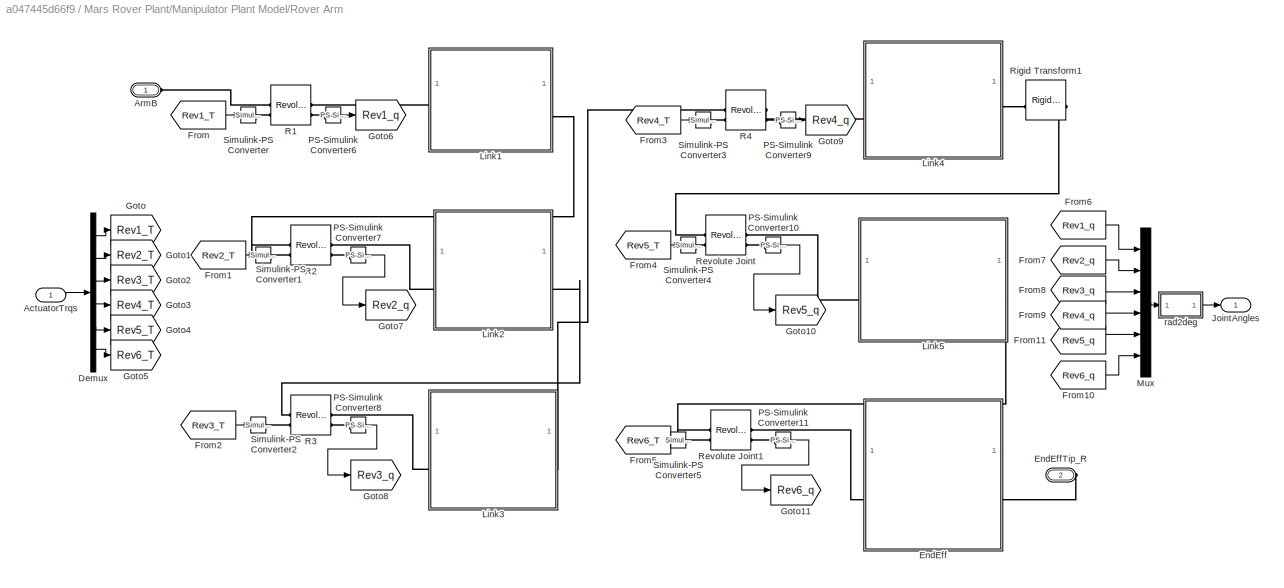
BLOCK [SubSystem] Mars Rover Plant/Manipulator Plant Model/Rover Arm
BLOCK [Inport] Mars Rover Plant/Manipulator Plant Model/Rover Arm/ActuatorTrqs
BLOCK [PMIOPort] Mars Rover Plant/Manipulator Plant Model/Rover Arm/ArmB
  Side = Left
BLOCK [Demux] Mars Rover Plant/Manipulator Plant Model/Rover Arm/Demux
  Outputs = 6
BLOCK [SubSystem] Mars Rover Plant/Manipulator Plant Model/Rover Arm/EndEff
BLOCK [Reference] Mars Rover Plant/Manipulator Plant Model/Rover Arm/EndEff/Cylindrical Solid  REF=sm_lib/Body Elements/Cylindrical Solid
  NameLocation = top
  SourceBlock = sm_lib/Body Elements/Cylindrical Solid
  SourceType = Cylindrical Solid
BLOCK [PMIOPort] Mars Rover Plant/Manipulator Plant Model/Rover Arm/EndEff/EndEffTip2
  Port = 2
  Side = Right
BLOCK [Reference] Mars Rover Plant/Manipulator Plant Model/Rover Arm/EndEff/EndEffector  REF=sm_lib/Frames and
Transforms/Rigid
Transform
  SourceBlock = sm_lib/Frames and\nTransforms/Rigid\nTransform
  SourceType = Rigid\nTransform
BLOCK [PMIOPort] Mars Rover Plant/Manipulator Plant Model/Rover Arm/EndEff/F
  Side = Left
BLOCK [Reference] Mars Rover Plant/Manipulator Plant Model/Rover Arm/EndEff/ReferenceFrame  REF=sm_lib/Frames and
Transforms/Reference
Frame
  SourceBlock = sm_lib/Frames and\nTransforms/Reference\nFrame
  SourceType = Reference\nFrame
BLOCK [Reference] Mars Rover Plant/Manipulator Plant Model/Rover Arm/EndEff/Solid  REF=sm_lib/Body Elements/File Solid
  SourceBlock = sm_lib/Body Elements/File Solid
  SourceType = File Solid
BLOCK [Reference] Mars Rover Plant/Manipulator Plant Model/Rover Arm/EndEff/Transform  REF=sm_lib/Frames and
Transforms/Rigid
Transform
  SourceBlock = sm_lib/Frames and\nTransforms/Rigid\nTransform
  SourceType = Rigid\nTransform
BLOCK [PMIOPort] Mars Rover Plant/Manipulator Plant Model/Rover Arm/EndEffTip_R
  Port = 2
  Side = Right
BLOCK [From] Mars Rover Plant/Manipulator Plant Model/Rover Arm/From
  GotoTag = Rev1_T
BLOCK [From] Mars Rover Plant/Manipulator Plant Model/Rover Arm/From1
  GotoTag = Rev2_T
BLOCK [From] Mars Rover Plant/Manipulator Plant Model/Rover Arm/From10
  GotoTag = Rev6_q
BLOCK [From] Mars Rover Plant/Manipulator Plant Model/Rover Arm/From11
  GotoTag = Rev5_q
BLOCK [From] Mars Rover Plant/Manipulator Plant Model/Rover Arm/From2
  GotoTag = Rev3_T
BLOCK [From] Mars Rover Plant/Manipulator Plant Model/Rover Arm/From3
  GotoTag = Rev4_T
BLOCK [From] Mars Rover Plant/Manipulator Plant Model/Rover Arm/From4
  GotoTag = Rev5_T
BLOCK [From] Mars Rover Plant/Manipulator Plant Model/Rover Arm/From5
  GotoTag = Rev6_T
BLOCK [From] Mars Rover Plant/Manipulator Plant Model/Rover Arm/From6
  GotoTag = Rev1_q
BLOCK [From] Mars Rover Plant/Manipulator Plant Model/Rover Arm/From7
  GotoTag = Rev2_q
BLOCK [From] Mars Rover Plant/Manipulator Plant Model/Rover Arm/From8
  GotoTag = Rev3_q
BLOCK [From] Mars Rover Plant/Manipulator Plant Model/Rover Arm/From9
  GotoTag = Rev4_q
BLOCK [Goto] Mars Rover Plant/Manipulator Plant Model/Rover Arm/Goto
  GotoTag = Rev1_T
BLOCK [Goto] Mars Rover Plant/Manipulator Plant Model/Rover Arm/Goto1
  GotoTag = Rev2_T
BLOCK [Goto] Mars Rover Plant/Manipulator Plant Model/Rover Arm/Goto10
  GotoTag = Rev5_q
BLOCK [Goto] Mars Rover Plant/Manipulator Plant Model/Rover Arm/Goto11
  GotoTag = Rev6_q
BLOCK [Goto] Mars Rover Plant/Manipulator Plant Model/Rover Arm/Goto2
  GotoTag = Rev3_T
BLOCK [Goto] Mars Rover Plant/Manipulator Plant Model/Rover Arm/Goto3
  GotoTag = Rev4_T
BLOCK [Goto] Mars Rover Plant/Manipulator Plant Model/Rover Arm/Goto4
  GotoTag = Rev5_T
  NameLocation = right
BLOCK [Goto] Mars Rover Plant/Manipulator Plant Model/Rover Arm/Goto5
  GotoTag = Rev6_T
BLOCK [Goto] Mars Rover Plant/Manipulator Plant Model/Rover Arm/Goto6
  GotoTag = Rev1_q
BLOCK [Goto] Mars Rover Plant/Manipulator Plant Model/Rover Arm/Goto7
  GotoTag = Rev2_q
BLOCK [Goto] Mars Rover Plant/Manipulator Plant Model/Rover Arm/Goto8
  GotoTag = Rev3_q
BLOCK [Goto] Mars Rover Plant/Manipulator Plant Model/Rover Arm/Goto9
  GotoTag = Rev4_q
BLOCK [Outport] Mars Rover Plant/Manipulator Plant Model/Rover Arm/JointAngles
BLOCK [SubSystem] Mars Rover Plant/Manipulator Plant Model/Rover Arm/Link1
BLOCK [PMIOPort] Mars Rover Plant/Manipulator Plant Model/Rover Arm/Link1/F
  Port = 2
  Side = Right
BLOCK [PMIOPort] Mars Rover Plant/Manipulator Plant Model/Rover Arm/Link1/F1
  Side = Left
BLOCK [Reference] Mars Rover Plant/Manipulator Plant Model/Rover Arm/Link1/Motor1_Geom  REF=sm_lib/Body Elements/Cylindrical Solid
  SourceBlock = sm_lib/Body Elements/Cylindrical Solid
  SourceType = Cylindrical Solid
BLOCK [Reference] Mars Rover Plant/Manipulator Plant Model/Rover Arm/Link1/Motor2_Geom  REF=sm_lib/Body Elements/Cylindrical Solid
  SourceBlock = sm_lib/Body Elements/Cylindrical Solid
  SourceType = Cylindrical Solid
BLOCK [Reference] Mars Rover Plant/Manipulator Plant Model/Rover Arm/Link1/ReferenceFrame  REF=sm_lib/Frames and
Transforms/Reference
Frame
  SourceBlock = sm_lib/Frames and\nTransforms/Reference\nFrame
  SourceType = Reference\nFrame
BLOCK [Reference] Mars Rover Plant/Manipulator Plant Model/Rover Arm/Link1/Rigid Transform  REF=sm_lib/Frames and
Transforms/Rigid
Transform
  SourceBlock = sm_lib/Frames and\nTransforms/Rigid\nTransform
  SourceType = Rigid\nTransform
BLOCK [Reference] Mars Rover Plant/Manipulator Plant Model/Rover Arm/Link1/Solid  REF=sm_lib/Body Elements/File Solid
  SourceBlock = sm_lib/Body Elements/File Solid
  SourceType = File Solid
BLOCK [Reference] Mars Rover Plant/Manipulator Plant Model/Rover Arm/Link1/Transform  REF=sm_lib/Frames and
Transforms/Rigid
Transform
  SourceBlock = sm_lib/Frames and\nTransforms/Rigid\nTransform
  SourceType = Rigid\nTransform
BLOCK [SubSystem] Mars Rover Plant/Manipulator Plant Model/Rover Arm/Link2
BLOCK [PMIOPort] Mars Rover Plant/Manipulator Plant Model/Rover Arm/Link2/F
  Side = Left
BLOCK [PMIOPort] Mars Rover Plant/Manipulator Plant Model/Rover Arm/Link2/F1
  Port = 2
  Side = Right
BLOCK [Reference] Mars Rover Plant/Manipulator Plant Model/Rover Arm/Link2/Motor3_Geom  REF=sm_lib/Body Elements/Cylindrical Solid
  SourceBlock = sm_lib/Body Elements/Cylindrical Solid
  SourceType = Cylindrical Solid
BLOCK [Reference] Mars Rover Plant/Manipulator Plant Model/Rover Arm/Link2/ReferenceFrame  REF=sm_lib/Frames and
Transforms/Reference
Frame
  SourceBlock = sm_lib/Frames and\nTransforms/Reference\nFrame
  SourceType = Reference\nFrame
BLOCK [Reference] Mars Rover Plant/Manipulator Plant Model/Rover Arm/Link2/Solid  REF=sm_lib/Body Elements/File Solid
  SourceBlock = sm_lib/Body Elements/File Solid
  SourceType = File Solid
BLOCK [Reference] Mars Rover Plant/Manipulator Plant Model/Rover Arm/Link2/Transform  REF=sm_lib/Frames and
Transforms/Rigid
Transform
  SourceBlock = sm_lib/Frames and\nTransforms/Rigid\nTransform
  SourceType = Rigid\nTransform
BLOCK [Reference] Mars Rover Plant/Manipulator Plant Model/Rover Arm/Link2/Transform1  REF=sm_lib/Frames and
Transforms/Rigid
Transform
  SourceBlock = sm_lib/Frames and\nTransforms/Rigid\nTransform
  SourceType = Rigid\nTransform
BLOCK [SubSystem] Mars Rover Plant/Manipulator Plant Model/Rover Arm/Link3
BLOCK [PMIOPort] Mars Rover Plant/Manipulator Plant Model/Rover Arm/Link3/F
  Side = Left
BLOCK [PMIOPort] Mars Rover Plant/Manipulator Plant Model/Rover Arm/Link3/F1
  Port = 2
  Side = Right
BLOCK [Reference] Mars Rover Plant/Manipulator Plant Model/Rover Arm/Link3/Motor2_Geom  REF=sm_lib/Body Elements/Cylindrical Solid
  SourceBlock = sm_lib/Body Elements/Cylindrical Solid
  SourceType = Cylindrical Solid
BLOCK [Reference] Mars Rover Plant/Manipulator Plant Model/Rover Arm/Link3/ReferenceFrame  REF=sm_lib/Frames and
Transforms/Reference
Frame
  SourceBlock = sm_lib/Frames and\nTransforms/Reference\nFrame
  SourceType = Reference\nFrame
BLOCK [Reference] Mars Rover Plant/Manipulator Plant Model/Rover Arm/Link3/Solid  REF=sm_lib/Body Elements/File Solid
  SourceBlock = sm_lib/Body Elements/File Solid
  SourceType = File Solid
BLOCK [Reference] Mars Rover Plant/Manipulator Plant Model/Rover Arm/Link3/Transform  REF=sm_lib/Frames and
Transforms/Rigid
Transform
  SourceBlock = sm_lib/Frames and\nTransforms/Rigid\nTransform
  SourceType = Rigid\nTransform
BLOCK [Reference] Mars Rover Plant/Manipulator Plant Model/Rover Arm/Link3/Transform1  REF=sm_lib/Frames and
Transforms/Rigid
Transform
  SourceBlock = sm_lib/Frames and\nTransforms/Rigid\nTransform
  SourceType = Rigid\nTransform
BLOCK [SubSystem] Mars Rover Plant/Manipulator Plant Model/Rover Arm/Link4
BLOCK [Reference] Mars Rover Plant/Manipulator Plant Model/Rover Arm/Link4/Cylindrical Solid  REF=sm_lib/Body Elements/Cylindrical Solid
  SourceBlock = sm_lib/Body Elements/Cylindrical Solid
  SourceType = Cylindrical Solid
BLOCK [Reference] Mars Rover Plant/Manipulator Plant Model/Rover Arm/Link4/Cylindrical Solid1  REF=sm_lib/Body Elements/Cylindrical Solid
  NameLocation = top
  SourceBlock = sm_lib/Body Elements/Cylindrical Solid
  SourceType = Cylindrical Solid
BLOCK [PMIOPort] Mars Rover Plant/Manipulator Plant Model/Rover Arm/Link4/L1
  Side = Left
BLOCK [PMIOPort] Mars Rover Plant/Manipulator Plant Model/Rover Arm/Link4/R1
  Port = 2
  Side = Right
BLOCK [Reference] Mars Rover Plant/Manipulator Plant Model/Rover Arm/Link4/Rigid Transform  REF=sm_lib/Frames and
Transforms/Rigid
Transform
  SourceBlock = sm_lib/Frames and\nTransforms/Rigid\nTransform
  SourceType = Rigid\nTransform
BLOCK [Reference] Mars Rover Plant/Manipulator Plant Model/Rover Arm/Link4/Rigid Transform1  REF=sm_lib/Frames and
Transforms/Rigid
Transform
  SourceBlock = sm_lib/Frames and\nTransforms/Rigid\nTransform
  SourceType = Rigid\nTransform
BLOCK [SubSystem] Mars Rover Plant/Manipulator Plant Model/Rover Arm/Link5
BLOCK [PMIOPort] Mars Rover Plant/Manipulator Plant Model/Rover Arm/Link5/Conn1
  Side = Right
BLOCK [PMIOPort] Mars Rover Plant/Manipulator Plant Model/Rover Arm/Link5/Conn2
  Port = 2
  Side = Left
BLOCK [Reference] Mars Rover Plant/Manipulator Plant Model/Rover Arm/Link5/Cylindrical Solid  REF=sm_lib/Body Elements/Cylindrical Solid
  SourceBlock = sm_lib/Body Elements/Cylindrical Solid
  SourceType = Cylindrical Solid
BLOCK [Reference] Mars Rover Plant/Manipulator Plant Model/Rover Arm/Link5/Cylindrical Solid1  REF=sm_lib/Body Elements/Cylindrical Solid
  SourceBlock = sm_lib/Body Elements/Cylindrical Solid
  SourceType = Cylindrical Solid
BLOCK [Reference] Mars Rover Plant/Manipulator Plant Model/Rover Arm/Link5/Cylindrical Solid2  REF=sm_lib/Body Elements/Cylindrical Solid
  SourceBlock = sm_lib/Body Elements/Cylindrical Solid
  SourceType = Cylindrical Solid
BLOCK [Reference] Mars Rover Plant/Manipulator Plant Model/Rover Arm/Link5/Cylindrical Solid3  REF=sm_lib/Body Elements/Cylindrical Solid
  SourceBlock = sm_lib/Body Elements/Cylindrical Solid
  SourceType = Cylindrical Solid
BLOCK [Reference] Mars Rover Plant/Manipulator Plant Model/Rover Arm/Link5/Rigid Transform  REF=sm_lib/Frames and
Transforms/Rigid
Transform
  SourceBlock = sm_lib/Frames and\nTransforms/Rigid\nTransform
  SourceType = Rigid\nTransform
BLOCK [Reference] Mars Rover Plant/Manipulator Plant Model/Rover Arm/Link5/Rigid Transform2  REF=sm_lib/Frames and
Transforms/Rigid
Transform
  SourceBlock = sm_lib/Frames and\nTransforms/Rigid\nTransform
  SourceType = Rigid\nTransform
BLOCK [Mux] Mars Rover Plant/Manipulator Plant Model/Rover Arm/Mux
  DisplayOption = bar
  Inputs = 6
BLOCK [Reference] Mars Rover Plant/Manipulator Plant Model/Rover Arm/PS-Simulink Converter10  REF=nesl_utility/PS-Simulink
Converter
  SourceBlock = nesl_utility/PS-Simulink\nConverter
  SourceType = PS-Simulink\nConverter
BLOCK [Reference] Mars Rover Plant/Manipulator Plant Model/Rover Arm/PS-Simulink Converter11  REF=nesl_utility/PS-Simulink
Converter
  SourceBlock = nesl_utility/PS-Simulink\nConverter
  SourceType = PS-Simulink\nConverter
BLOCK [Reference] Mars Rover Plant/Manipulator Plant Model/Rover Arm/PS-Simulink Converter6  REF=nesl_utility/PS-Simulink
Converter
  SourceBlock = nesl_utility/PS-Simulink\nConverter
  SourceType = PS-Simulink\nConverter
BLOCK [Reference] Mars Rover Plant/Manipulator Plant Model/Rover Arm/PS-Simulink Converter7  REF=nesl_utility/PS-Simulink
Converter
  SourceBlock = nesl_utility/PS-Simulink\nConverter
  SourceType = PS-Simulink\nConverter
BLOCK [Reference] Mars Rover Plant/Manipulator Plant Model/Rover Arm/PS-Simulink Converter8  REF=nesl_utility/PS-Simulink
Converter
  SourceBlock = nesl_utility/PS-Simulink\nConverter
  SourceType = PS-Simulink\nConverter
BLOCK [Reference] Mars Rover Plant/Manipulator Plant Model/Rover Arm/PS-Simulink Converter9  REF=nesl_utility/PS-Simulink
Converter
  SourceBlock = nesl_utility/PS-Simulink\nConverter
  SourceType = PS-Simulink\nConverter
BLOCK [Reference] Mars Rover Plant/Manipulator Plant Model/Rover Arm/R1  REF=sm_lib/Joints/Revolute Joint
  SourceBlock = sm_lib/Joints/Revolute Joint
  SourceType = Revolute Joint
BLOCK [Reference] Mars Rover Plant/Manipulator Plant Model/Rover Arm/R2  REF=sm_lib/Joints/Revolute Joint
  SourceBlock = sm_lib/Joints/Revolute Joint
  SourceType = Revolute Joint
BLOCK [Reference] Mars Rover Plant/Manipulator Plant Model/Rover Arm/R3  REF=sm_lib/Joints/Revolute Joint
  SourceBlock = sm_lib/Joints/Revolute Joint
  SourceType = Revolute Joint
BLOCK [Reference] Mars Rover Plant/Manipulator Plant Model/Rover Arm/R4  REF=sm_lib/Joints/Revolute Joint
  SourceBlock = sm_lib/Joints/Revolute Joint
  SourceType = Revolute Joint
BLOCK [Reference] Mars Rover Plant/Manipulator Plant Model/Rover Arm/Revolute Joint  REF=sm_lib/Joints/Revolute Joint
  SourceBlock = sm_lib/Joints/Revolute Joint
  SourceType = Revolute Joint
BLOCK [Reference] Mars Rover Plant/Manipulator Plant Model/Rover Arm/Revolute Joint1  REF=sm_lib/Joints/Revolute Joint
  SourceBlock = sm_lib/Joints/Revolute Joint
  SourceType = Revolute Joint
BLOCK [Reference] Mars Rover Plant/Manipulator Plant Model/Rover Arm/Rigid Transform1  REF=sm_lib/Frames and
Transforms/Rigid
Transform
  SourceBlock = sm_lib/Frames and\nTransforms/Rigid\nTransform
  SourceType = Rigid\nTransform
BLOCK [Reference] Mars Rover Plant/Manipulator Plant Model/Rover Arm/Simulink-PS Converter  REF=nesl_utility/Simulink-PS
Converter
  SourceBlock = nesl_utility/Simulink-PS\nConverter
  SourceType = Simulink-PS\nConverter
BLOCK [Reference] Mars Rover Plant/Manipulator Plant Model/Rover Arm/Simulink-PS Converter1  REF=nesl_utility/Simulink-PS
Converter
  SourceBlock = nesl_utility/Simulink-PS\nConverter
  SourceType = Simulink-PS\nConverter
BLOCK [Reference] Mars Rover Plant/Manipulator Plant Model/Rover Arm/Simulink-PS Converter2  REF=nesl_utility/Simulink-PS
Converter
  SourceBlock = nesl_utility/Simulink-PS\nConverter
  SourceType = Simulink-PS\nConverter
BLOCK [Reference] Mars Rover Plant/Manipulator Plant Model/Rover Arm/Simulink-PS Converter3  REF=nesl_utility/Simulink-PS
Converter
  SourceBlock = nesl_utility/Simulink-PS\nConverter
  SourceType = Simulink-PS\nConverter
BLOCK [Reference] Mars Rover Plant/Manipulator Plant Model/Rover Arm/Simulink-PS Converter4  REF=nesl_utility/Simulink-PS
Converter
  SourceBlock = nesl_utility/Simulink-PS\nConverter
  SourceType = Simulink-PS\nConverter
BLOCK [Reference] Mars Rover Plant/Manipulator Plant Model/Rover Arm/Simulink-PS Converter5  REF=nesl_utility/Simulink-PS
Converter
  SourceBlock = nesl_utility/Simulink-PS\nConverter
  SourceType = Simulink-PS\nConverter
BLOCK [SubSystem] Mars Rover Plant/Manipulator Plant Model/Rover Arm/rad2deg
  ErrorFcn = Stateflow.Translate.translate
  PermitHierarchicalResolution = ExplicitOnly
  SFBlockType = MATLAB Function
  TreatAsAtomicUnit = on
BLOCK [Demux] Mars Rover Plant/Manipulator Plant Model/Rover Arm/rad2deg/ Demux 
  Outputs = 1
BLOCK [S-Function] Mars Rover Plant/Manipulator Plant Model/Rover Arm/rad2deg/ SFunction 
  EnableBusSupport = on
  FunctionName = sf_sfun
  PortCounts = [1 2]
  SFcnIsStateOwnerBlock = off
  SFunctionDeploymentMode = off
  Tag = Stateflow S-Function 5
BLOCK [Terminator] Mars Rover Plant/Manipulator Plant Model/Rover Arm/rad2deg/ Terminator 
BLOCK [Inport] Mars Rover Plant/Manipulator Plant Model/Rover Arm/rad2deg/u
BLOCK [Outport] Mars Rover Plant/Manipulator Plant Model/Rover Arm/rad2deg/y
BLOCK [PMIOPort] Mars Rover Plant/Manipulator Plant Model/RoverRef
  Side = Left
BLOCK [SubSystem] Mars Rover Plant/Manipulator Plant Model/Sample Interaction Logic
BLOCK [PMIOPort] Mars Rover Plant/Manipulator Plant Model/Sample Interaction Logic/B
  Side = Left
BLOCK [Bias] Mars Rover Plant/Manipulator Plant Model/Sample Interaction Logic/Bias
  Bias = 1
  NameLocation = left
  SaturateOnIntegerOverflow = off
BLOCK [PMIOPort] Mars Rover Plant/Manipulator Plant Model/Sample Interaction Logic/Conn1
  Port = 4
  Side = Right
BLOCK [PMIOPort] Mars Rover Plant/Manipulator Plant Model/Sample Interaction Logic/Conn2
  Port = 2
  Side = Left
BLOCK [Constant] Mars Rover Plant/Manipulator Plant Model/Sample Interaction Logic/Constant
  Value = 0
BLOCK [Constant] Mars Rover Plant/Manipulator Plant Model/Sample Interaction Logic/Constant1
  Value = 0.35
BLOCK [Constant] Mars Rover Plant/Manipulator Plant Model/Sample Interaction Logic/Constant10
  Value = 0
BLOCK [Constant] Mars Rover Plant/Manipulator Plant Model/Sample Interaction Logic/Constant11
  Value = -1
BLOCK [Constant] Mars Rover Plant/Manipulator Plant Model/Sample Interaction Logic/Constant14
  Value = -1
BLOCK [Constant] Mars Rover Plant/Manipulator Plant Model/Sample Interaction Logic/Constant2
  Value = 0
BLOCK [Constant] Mars Rover Plant/Manipulator Plant Model/Sample Interaction Logic/Constant3
  Value = -1
BLOCK [Constant] Mars Rover Plant/Manipulator Plant Model/Sample Interaction Logic/Constant4
  Value = 0
BLOCK [Constant] Mars Rover Plant/Manipulator Plant Model/Sample Interaction Logic/Constant5
  Value = 0.02
BLOCK [Constant] Mars Rover Plant/Manipulator Plant Model/Sample Interaction Logic/Constant7
  Value = 0
BLOCK [Constant] Mars Rover Plant/Manipulator Plant Model/Sample Interaction Logic/Constant8
  Value = -1
BLOCK [Delay] Mars Rover Plant/Manipulator Plant Model/Sample Interaction Logic/Delay
  DelayLength = 30
  InputPortMap = u0
BLOCK [Delay] Mars Rover Plant/Manipulator Plant Model/Sample Interaction Logic/Delay1
  DelayLength = 30
  InputPortMap = u0
BLOCK [From] Mars Rover Plant/Manipulator Plant Model/Sample Interaction Logic/From
  GotoTag = SamplePickFlag
  TagVisibility = global
BLOCK [From] Mars Rover Plant/Manipulator Plant Model/Sample Interaction Logic/From1
  GotoTag = SamplePickFlag
  TagVisibility = global
BLOCK [From] Mars Rover Plant/Manipulator Plant Model/Sample Interaction Logic/From2
  GotoTag = SampleDropOffFlag
  TagVisibility = global
BLOCK [From] Mars Rover Plant/Manipulator Plant Model/Sample Interaction Logic/From3
  GotoTag = SampleDropOffFlag
  TagVisibility = global
BLOCK [From] Mars Rover Plant/Manipulator Plant Model/Sample Interaction Logic/From4
  GotoTag = RoverAtGoal
  TagVisibility = global
BLOCK [From] Mars Rover Plant/Manipulator Plant Model/Sample Interaction Logic/From5
  GotoTag = RoverAtGoal
  TagVisibility = global
BLOCK [Reference] Mars Rover Plant/Manipulator Plant Model/Sample Interaction Logic/Graphic  REF=sm_lib/Body Elements/Graphic
  Commented = on
  SourceBlock = sm_lib/Body Elements/Graphic
  SourceType = Graphic
BLOCK [Reference] Mars Rover Plant/Manipulator Plant Model/Sample Interaction Logic/PS-Simulink Converter  REF=nesl_utility/PS-Simulink
Converter
  SourceBlock = nesl_utility/PS-Simulink\nConverter
  SourceType = PS-Simulink\nConverter
BLOCK [Reference] Mars Rover Plant/Manipulator Plant Model/Sample Interaction Logic/RevJ  REF=sm_lib/Joints/Revolute Joint
  SourceBlock = sm_lib/Joints/Revolute Joint
  SourceType = Revolute Joint
BLOCK [Reference] Mars Rover Plant/Manipulator Plant Model/Sample Interaction Logic/Rigid Transform4  REF=sm_lib/Frames and
Transforms/Rigid
Transform
  NameLocation = right
  SourceBlock = sm_lib/Frames and\nTransforms/Rigid\nTransform
  SourceType = Rigid\nTransform
BLOCK [Reference] Mars Rover Plant/Manipulator Plant Model/Sample Interaction Logic/Sample  REF=sm_lib/Body Elements/Spherical Solid
  NameLocation = top
  SourceBlock = sm_lib/Body Elements/Spherical Solid
  SourceType = Spherical Solid
BLOCK [Reference] Mars Rover Plant/Manipulator Plant Model/Sample Interaction Logic/Sample1  REF=sm_lib/Body Elements/Spherical Solid
  NameLocation = top
  SourceBlock = sm_lib/Body Elements/Spherical Solid
  SourceType = Spherical Solid
BLOCK [Goto] Mars Rover Plant/Manipulator Plant Model/Sample Interaction Logic/SamplePickedSense
  GotoTag = samplePickedSense
  TagVisibility = global
BLOCK [Goto] Mars Rover Plant/Manipulator Plant Model/Sample Interaction Logic/SampleStored
  GotoTag = sampleStoredSense
  TagVisibility = global
BLOCK [PMIOPort] Mars Rover Plant/Manipulator Plant Model/Sample Interaction Logic/SenseSamplePosition
  Port = 3
  Side = Left
BLOCK [Reference] Mars Rover Plant/Manipulator Plant Model/Sample Interaction Logic/Simulink-PS Converter  REF=nesl_utility/Simulink-PS
Converter
  SourceBlock = nesl_utility/Simulink-PS\nConverter
  SourceType = Simulink-PS\nConverter
BLOCK [Reference] Mars Rover Plant/Manipulator Plant Model/Sample Interaction Logic/Simulink-PS Converter1  REF=nesl_utility/Simulink-PS
Converter
  SourceBlock = nesl_utility/Simulink-PS\nConverter
  SourceType = Simulink-PS\nConverter
BLOCK [Reference] Mars Rover Plant/Manipulator Plant Model/Sample Interaction Logic/Simulink-PS Converter2  REF=nesl_utility/Simulink-PS
Converter
  SourceBlock = nesl_utility/Simulink-PS\nConverter
  SourceType = Simulink-PS\nConverter
BLOCK [Reference] Mars Rover Plant/Manipulator Plant Model/Sample Interaction Logic/Simulink-PS Converter3  REF=nesl_utility/Simulink-PS
Converter
  SourceBlock = nesl_utility/Simulink-PS\nConverter
  SourceType = Simulink-PS\nConverter
BLOCK [Reference] Mars Rover Plant/Manipulator Plant Model/Sample Interaction Logic/Simulink-PS Converter4  REF=nesl_utility/Simulink-PS
Converter
  NameLocation = top
  SourceBlock = nesl_utility/Simulink-PS\nConverter
  SourceType = Simulink-PS\nConverter
BLOCK [Reference] Mars Rover Plant/Manipulator Plant Model/Sample Interaction Logic/SixDofJ1  REF=sm_lib/Joints/6-DOF Joint
  SourceBlock = sm_lib/Joints/6-DOF Joint
  SourceType = 6-DOF Joint
BLOCK [Reference] Mars Rover Plant/Manipulator Plant Model/Sample Interaction Logic/SixDofJ2  REF=sm_lib/Joints/6-DOF Joint
  SourceBlock = sm_lib/Joints/6-DOF Joint
  SourceType = 6-DOF Joint
BLOCK [Switch] Mars Rover Plant/Manipulator Plant Model/Sample Interaction Logic/Switch1
  Criteria = u2 > Threshold
  InputSameDT = off
  SaturateOnIntegerOverflow = off
BLOCK [Switch] Mars Rover Plant/Manipulator Plant Model/Sample Interaction Logic/Switch2
  Criteria = u2 > Threshold
  InputSameDT = off
  SaturateOnIntegerOverflow = off
BLOCK [Switch] Mars Rover Plant/Manipulator Plant Model/Sample Interaction Logic/Switch3
  Criteria = u2 > Threshold
  InputSameDT = off
  SaturateOnIntegerOverflow = off
BLOCK [Switch] Mars Rover Plant/Manipulator Plant Model/Sample Interaction Logic/Switch4
  Criteria = u2 > Threshold
  InputSameDT = off
  SaturateOnIntegerOverflow = off
BLOCK [Switch] Mars Rover Plant/Manipulator Plant Model/Sample Interaction Logic/Switch5
  Criteria = u2 > Threshold
  InputSameDT = off
  SaturateOnIntegerOverflow = off
BLOCK [Switch] Mars Rover Plant/Manipulator Plant Model/Sample Interaction Logic/Switch7
  Criteria = u2 > Threshold
  InputSameDT = off
  SaturateOnIntegerOverflow = off
BLOCK [Reference] Mars Rover Plant/Manipulator Plant Model/Sample Interaction Logic/Variable Spherical Solid  REF=sm_lib/Body Elements/Variable Mass/Variable
Spherical Solid
  SourceBlock = sm_lib/Body Elements/Variable Mass/Variable\nSpherical Solid
  SourceType = Variable\nSpherical Solid
BLOCK [Reference] Mars Rover Plant/Manipulator Plant Model/Sample Interaction Logic/Variable Spherical Solid1  REF=sm_lib/Body Elements/Variable Mass/Variable
Spherical Solid
  SourceBlock = sm_lib/Body Elements/Variable Mass/Variable\nSpherical Solid
  SourceType = Variable\nSpherical Solid
BLOCK [Reference] Mars Rover Plant/Manipulator Plant Model/Sample Interaction Logic/Viz  REF=sm_lib/Body Elements/Graphic
  Commented = on
  NameLocation = left
  SourceBlock = sm_lib/Body Elements/Graphic
  SourceType = Graphic
BLOCK [SubSystem] Mars Rover Plant/Manipulator Plant Model/Sample Interaction Logic/hold1
BLOCK [Logic] Mars Rover Plant/Manipulator Plant Model/Sample Interaction Logic/hold1/AND
  AllPortsSameDT = off
  IconShape = distinctive
  OutDataTypeStr = boolean
BLOCK [Clock] Mars Rover Plant/Manipulator Plant Model/Sample Interaction Logic/hold1/Clock
BLOCK [Constant] Mars Rover Plant/Manipulator Plant Model/Sample Interaction Logic/hold1/Constant1
BLOCK [Constant] Mars Rover Plant/Manipulator Plant Model/Sample Interaction Logic/hold1/Constant3
BLOCK [Reference] Mars Rover Plant/Manipulator Plant Model/Sample Interaction Logic/hold1/Detect Rise Positive  REF=simulink/Logic and Bit
Operations/Detect Rise
Positive
  SourceBlock = simulink/Logic and Bit\nOperations/Detect Rise\nPositive
  SourceType = Detect Rise Positive
BLOCK [Display] Mars Rover Plant/Manipulator Plant Model/Sample Interaction Logic/hold1/Display
  Decimation = 1
BLOCK [Inport] Mars Rover Plant/Manipulator Plant Model/Sample Interaction Logic/hold1/Enable
BLOCK [RelationalOperator] Mars Rover Plant/Manipulator Plant Model/Sample Interaction Logic/hold1/GreaterThanOrEqual
  InputSameDT = off
  OutDataTypeStr = boolean
  RndMeth = Simplest
BLOCK [Memory] Mars Rover Plant/Manipulator Plant Model/Sample Interaction Logic/hold1/Memory
BLOCK [Switch] Mars Rover Plant/Manipulator Plant Model/Sample Interaction Logic/hold1/Switch
  Criteria = u2 > Threshold
  InputSameDT = off
  SaturateOnIntegerOverflow = off
BLOCK [Outport] Mars Rover Plant/Manipulator Plant Model/Sample Interaction Logic/hold1/plan
BLOCK [SubSystem] Mars Rover Plant/Manipulator Plant Model/Sample Interaction Logic/hold2
BLOCK [Logic] Mars Rover Plant/Manipulator Plant Model/Sample Interaction Logic/hold2/AND
  AllPortsSameDT = off
  IconShape = distinctive
  OutDataTypeStr = boolean
BLOCK [Clock] Mars Rover Plant/Manipulator Plant Model/Sample Interaction Logic/hold2/Clock
BLOCK [Constant] Mars Rover Plant/Manipulator Plant Model/Sample Interaction Logic/hold2/Constant1
BLOCK [Constant] Mars Rover Plant/Manipulator Plant Model/Sample Interaction Logic/hold2/Constant3
BLOCK [Reference] Mars Rover Plant/Manipulator Plant Model/Sample Interaction Logic/hold2/Detect Rise Positive  REF=simulink/Logic and Bit
Operations/Detect Rise
Positive
  SourceBlock = simulink/Logic and Bit\nOperations/Detect Rise\nPositive
  SourceType = Detect Rise Positive
BLOCK [Display] Mars Rover Plant/Manipulator Plant Model/Sample Interaction Logic/hold2/Display
  Decimation = 1
BLOCK [Inport] Mars Rover Plant/Manipulator Plant Model/Sample Interaction Logic/hold2/Enable
BLOCK [RelationalOperator] Mars Rover Plant/Manipulator Plant Model/Sample Interaction Logic/hold2/GreaterThanOrEqual
  InputSameDT = off
  OutDataTypeStr = boolean
  RndMeth = Simplest
BLOCK [Memory] Mars Rover Plant/Manipulator Plant Model/Sample Interaction Logic/hold2/Memory
BLOCK [Switch] Mars Rover Plant/Manipulator Plant Model/Sample Interaction Logic/hold2/Switch
  Criteria = u2 > Threshold
  InputSameDT = off
  SaturateOnIntegerOverflow = off
BLOCK [Outport] Mars Rover Plant/Manipulator Plant Model/Sample Interaction Logic/hold2/plan
BLOCK [SubSystem] Mars Rover Plant/Manipulator Plant Model/Sample Loc Sense
BLOCK [PMIOPort] Mars Rover Plant/Manipulator Plant Model/Sample Loc Sense/ArmB
  Side = Left
BLOCK [Mux] Mars Rover Plant/Manipulator Plant Model/Sample Loc Sense/Mux
  DisplayOption = bar
  Inputs = 3
BLOCK [Reference] Mars Rover Plant/Manipulator Plant Model/Sample Loc Sense/PS-Simulink Converter  REF=nesl_utility/PS-Simulink
Converter
  SourceBlock = nesl_utility/PS-Simulink\nConverter
  SourceType = PS-Simulink\nConverter
BLOCK [Reference] Mars Rover Plant/Manipulator Plant Model/Sample Loc Sense/PS-Simulink Converter1  REF=nesl_utility/PS-Simulink
Converter
  SourceBlock = nesl_utility/PS-Simulink\nConverter
  SourceType = PS-Simulink\nConverter
BLOCK [Reference] Mars Rover Plant/Manipulator Plant Model/Sample Loc Sense/PS-Simulink Converter2  REF=nesl_utility/PS-Simulink
Converter
  SourceBlock = nesl_utility/PS-Simulink\nConverter
  SourceType = PS-Simulink\nConverter
BLOCK [PMIOPort] Mars Rover Plant/Manipulator Plant Model/Sample Loc Sense/SampleB
  Port = 2
  Side = Right
BLOCK [Outport] Mars Rover Plant/Manipulator Plant Model/Sample Loc Sense/SamplePos
BLOCK [Reference] Mars Rover Plant/Manipulator Plant Model/Sample Loc Sense/Transform Sensor  REF=sm_lib/Frames and
Transforms/Transform
Sensor
  SourceBlock = sm_lib/Frames and\nTransforms/Transform\nSensor
  SourceType = Transform\nSensor
BLOCK [PMIOPort] Mars Rover Plant/Manipulator Plant Model/SampleDrop
  Port = 2
  Side = Right
BLOCK [SubSystem] Mars Rover Plant/Manipulator Plant Model/SampleGeneration
BLOCK [Reference] Mars Rover Plant/Manipulator Plant Model/SampleGeneration/6-DOF Joint  REF=sm_lib/Joints/6-DOF Joint
  SourceBlock = sm_lib/Joints/6-DOF Joint
  SourceType = 6-DOF Joint
BLOCK [Constant] Mars Rover Plant/Manipulator Plant Model/SampleGeneration/Constant3
  Value = [Terrain.x Terrain.y Terrain.z]
BLOCK [Reference] Mars Rover Plant/Manipulator Plant Model/SampleGeneration/Degrees to Radians  REF=simulink_extras/Transformations/Degrees to
Radians
  SourceBlock = simulink_extras/Transformations/Degrees to\nRadians
  SourceType = DegreesToRadians
BLOCK [Demux] Mars Rover Plant/Manipulator Plant Model/SampleGeneration/Demux
  Outputs = 3
BLOCK [From] Mars Rover Plant/Manipulator Plant Model/SampleGeneration/From
  GotoTag = RoverTranslation
  TagVisibility = global
BLOCK [From] Mars Rover Plant/Manipulator Plant Model/SampleGeneration/From1
  GotoTag = RoverAtGoal
  NameLocation = left
  TagVisibility = global
BLOCK [From] Mars Rover Plant/Manipulator Plant Model/SampleGeneration/From2
  GotoTag = RoverOrientation
  TagVisibility = global
BLOCK [Mux] Mars Rover Plant/Manipulator Plant Model/SampleGeneration/Mux
  DisplayOption = bar
  Inputs = 2
BLOCK [SubSystem] Mars Rover Plant/Manipulator Plant Model/SampleGeneration/SampleLoc wrt arm base
BLOCK [Constant] Mars Rover Plant/Manipulator Plant Model/SampleGeneration/SampleLoc wrt arm base/Constant2
BLOCK [Display] Mars Rover Plant/Manipulator Plant Model/SampleGeneration/SampleLoc wrt arm base/Display
  Decimation = 1
BLOCK [Inport] Mars Rover Plant/Manipulator Plant Model/SampleGeneration/SampleLoc wrt arm base/Enable
BLOCK [SubSystem] Mars Rover Plant/Manipulator Plant Model/SampleGeneration/SampleLoc wrt arm base/Enabled Subsystem1
  MinAlgLoopOccurrences = on
  TreatAsAtomicUnit = on
BLOCK [EnablePort] Mars Rover Plant/Manipulator Plant Model/SampleGeneration/SampleLoc wrt arm base/Enabled Subsystem1/Enable
BLOCK [Inport] Mars Rover Plant/Manipulator Plant Model/SampleGeneration/SampleLoc wrt arm base/Enabled Subsystem1/In1
BLOCK [Outport] Mars Rover Plant/Manipulator Plant Model/SampleGeneration/SampleLoc wrt arm base/Enabled Subsystem1/Out1
BLOCK [Switch] Mars Rover Plant/Manipulator Plant Model/SampleGeneration/SampleLoc wrt arm base/Switch
  Criteria = u2 > Threshold
  InputSameDT = off
  SaturateOnIntegerOverflow = off
BLOCK [Math] Mars Rover Plant/Manipulator Plant Model/SampleGeneration/SampleLoc wrt arm base/Transpose1
  Operator = transpose
BLOCK [UnitDelay] Mars Rover Plant/Manipulator Plant Model/SampleGeneration/SampleLoc wrt arm base/Unit Delay
  HasFrameUpgradeWarning = on
  InitialCondition = [0 0 0]
  SampleTime = -1
BLOCK [Outport] Mars Rover Plant/Manipulator Plant Model/SampleGeneration/SampleLoc wrt arm base/lastRoverPose
BLOCK [Inport] Mars Rover Plant/Manipulator Plant Model/SampleGeneration/SampleLoc wrt arm base/roverPose
  Port = 2
BLOCK [Selector] Mars Rover Plant/Manipulator Plant Model/SampleGeneration/Selector
  IndexOptions = Index vector (dialog)
  Indices = [1 2]
  InputPortWidth = 3
  OutputSizes = 1
BLOCK [Selector] Mars Rover Plant/Manipulator Plant Model/SampleGeneration/Selector1
  IndexOptions = Index vector (dialog)
  Indices = 3
  InputPortWidth = 3
  OutputSizes = 1
BLOCK [Reference] Mars Rover Plant/Manipulator Plant Model/SampleGeneration/Simulink-PS Converter  REF=nesl_utility/Simulink-PS
Converter
  SourceBlock = nesl_utility/Simulink-PS\nConverter
  SourceType = Simulink-PS\nConverter
BLOCK [Reference] Mars Rover Plant/Manipulator Plant Model/SampleGeneration/Simulink-PS Converter1  REF=nesl_utility/Simulink-PS
Converter
  SourceBlock = nesl_utility/Simulink-PS\nConverter
  SourceType = Simulink-PS\nConverter
BLOCK [Reference] Mars Rover Plant/Manipulator Plant Model/SampleGeneration/Simulink-PS Converter2  REF=nesl_utility/Simulink-PS
Converter
  SourceBlock = nesl_utility/Simulink-PS\nConverter
  SourceType = Simulink-PS\nConverter
BLOCK [SubSystem] Mars Rover Plant/Manipulator Plant Model/SampleGeneration/Subsystem
BLOCK [SubSystem] Mars Rover Plant/Manipulator Plant Model/SampleGeneration/Subsystem/MATLAB Function
  ErrorFcn = Stateflow.Translate.translate
  PermitHierarchicalResolution = ExplicitOnly
  SFBlockType = MATLAB Function
  TreatAsAtomicUnit = on
BLOCK [Demux] Mars Rover Plant/Manipulator Plant Model/SampleGeneration/Subsystem/MATLAB Function/ Demux 
  Outputs = 1
BLOCK [S-Function] Mars Rover Plant/Manipulator Plant Model/SampleGeneration/Subsystem/MATLAB Function/ SFunction 
  EnableBusSupport = on
  FunctionName = sf_sfun
  PortCounts = [2 2]
  SFcnIsStateOwnerBlock = off
  SFunctionDeploymentMode = off
  Tag = Stateflow S-Function 21
BLOCK [Terminator] Mars Rover Plant/Manipulator Plant Model/SampleGeneration/Subsystem/MATLAB Function/ Terminator 
BLOCK [Inport] Mars Rover Plant/Manipulator Plant Model/SampleGeneration/Subsystem/MATLAB Function/roverPose
BLOCK [Outport] Mars Rover Plant/Manipulator Plant Model/SampleGeneration/Subsystem/MATLAB Function/sampleLoc
BLOCK [Inport] Mars Rover Plant/Manipulator Plant Model/SampleGeneration/Subsystem/MATLAB Function/terrainPts
  Port = 2
BLOCK [TriggerPort] Mars Rover Plant/Manipulator Plant Model/SampleGeneration/Subsystem/Trigger
  StatesWhenEnabling = held
  VariantControl = (inherit)
BLOCK [Inport] Mars Rover Plant/Manipulator Plant Model/SampleGeneration/Subsystem/roverPose
BLOCK [Outport] Mars Rover Plant/Manipulator Plant Model/SampleGeneration/Subsystem/sampleLoc
  InitialOutput = [0 0 0]'
BLOCK [Inport] Mars Rover Plant/Manipulator Plant Model/SampleGeneration/Subsystem/terrainPts
  Port = 2
BLOCK [TransferFcn] Mars Rover Plant/Manipulator Plant Model/SampleGeneration/Transfer Fcn
  Denominator = [0.02 1]
BLOCK [TransferFcn] Mars Rover Plant/Manipulator Plant Model/SampleGeneration/Transfer Fcn1
  Denominator = [0.02 1]
BLOCK [TransferFcn] Mars Rover Plant/Manipulator Plant Model/SampleGeneration/Transfer Fcn2
  Denominator = [0.02 1]
BLOCK [PMIOPort] Mars Rover Plant/Manipulator Plant Model/SampleGeneration/sampleB
  NameLocation = left
  Side = Left
BLOCK [PMIOPort] Mars Rover Plant/Manipulator Plant Model/SampleGeneration/sampleF
  Port = 2
  Side = Right
BLOCK [Outport] Mars Rover Plant/Manipulator Plant Model/armJointAng
BLOCK [Outport] Mars Rover Plant/Manipulator Plant Model/sampleLocation
  Port = 2
BLOCK [SubSystem] Mars Rover Plant/Rover Plant Model
  ShowPortLabels = none
BLOCK [PMIOPort] Mars Rover Plant/Rover Plant Model/ArmB
  NameLocation = right
  Side = Right
BLOCK [PMIOPort] Mars Rover Plant/Rover Plant Model/B
  Port = 3
  Side = Left
BLOCK [PMIOPort] Mars Rover Plant/Rover Plant Model/CB
  NameLocation = right
  Port = 4
  Side = Right
BLOCK [Inport] Mars Rover Plant/Rover Plant Model/Input
BLOCK [Inport] Mars Rover Plant/Rover Plant Model/Input1
  Port = 2
BLOCK [Outport] Mars Rover Plant/Rover Plant Model/Pose
BLOCK [SubSystem] Mars Rover Plant/Rover Plant Model/Rigid Terrain Surface
BLOCK [SubSystem] Mars Rover Plant/Rover Plant Model/Rigid Terrain Surface/GridSurfaceWheelContact
BLOCK [PMIOPort] Mars Rover Plant/Rover Plant Model/Rigid Terrain Surface/GridSurfaceWheelContact/SCF1
  Side = Right
BLOCK [PMIOPort] Mars Rover Plant/Rover Plant Model/Rigid Terrain Surface/GridSurfaceWheelContact/SCF2
  Port = 2
  Side = Right
BLOCK [PMIOPort] Mars Rover Plant/Rover Plant Model/Rigid Terrain Surface/GridSurfaceWheelContact/SCF3
  Port = 3
  Side = Right
BLOCK [PMIOPort] Mars Rover Plant/Rover Plant Model/Rigid Terrain Surface/GridSurfaceWheelContact/SCF4
  Port = 4
  Side = Right
BLOCK [PMIOPort] Mars Rover Plant/Rover Plant Model/Rigid Terrain Surface/GridSurfaceWheelContact/SCF5
  Port = 5
  Side = Right
BLOCK [PMIOPort] Mars Rover Plant/Rover Plant Model/Rigid Terrain Surface/GridSurfaceWheelContact/SCF6
  Port = 6
  Side = Right
BLOCK [PMIOPort] Mars Rover Plant/Rover Plant Model/Rigid Terrain Surface/GridSurfaceWheelContact/SCFB
  Port = 7
  Side = Left
BLOCK [Reference] Mars Rover Plant/Rover Plant Model/Rigid Terrain Surface/GridSurfaceWheelContact/Spatial Contact Force1  REF=sm_lib/Forces and
Torques/Spatial
Contact Force
  NameLocation = top
  SourceBlock = sm_lib/Forces and\nTorques/Spatial\nContact Force
  SourceType = Spatial\nContact Force
BLOCK [Reference] Mars Rover Plant/Rover Plant Model/Rigid Terrain Surface/GridSurfaceWheelContact/Spatial Contact Force2  REF=sm_lib/Forces and
Torques/Spatial
Contact Force
  NameLocation = top
  SourceBlock = sm_lib/Forces and\nTorques/Spatial\nContact Force
  SourceType = Spatial\nContact Force
BLOCK [Reference] Mars Rover Plant/Rover Plant Model/Rigid Terrain Surface/GridSurfaceWheelContact/Spatial Contact Force3  REF=sm_lib/Forces and
Torques/Spatial
Contact Force
  NameLocation = top
  SourceBlock = sm_lib/Forces and\nTorques/Spatial\nContact Force
  SourceType = Spatial\nContact Force
BLOCK [Reference] Mars Rover Plant/Rover Plant Model/Rigid Terrain Surface/GridSurfaceWheelContact/Spatial Contact Force4  REF=sm_lib/Forces and
Torques/Spatial
Contact Force
  NameLocation = top
  SourceBlock = sm_lib/Forces and\nTorques/Spatial\nContact Force
  SourceType = Spatial\nContact Force
BLOCK [Reference] Mars Rover Plant/Rover Plant Model/Rigid Terrain Surface/GridSurfaceWheelContact/Spatial Contact Force5  REF=sm_lib/Forces and
Torques/Spatial
Contact Force
  NameLocation = top
  SourceBlock = sm_lib/Forces and\nTorques/Spatial\nContact Force
  SourceType = Spatial\nContact Force
BLOCK [Reference] Mars Rover Plant/Rover Plant Model/Rigid Terrain Surface/GridSurfaceWheelContact/Spatial Contact Force6  REF=sm_lib/Forces and
Torques/Spatial
Contact Force
  NameLocation = top
  SourceBlock = sm_lib/Forces and\nTorques/Spatial\nContact Force
  SourceType = Spatial\nContact Force
BLOCK [SubSystem] Mars Rover Plant/Rover Plant Model/Rigid Terrain Surface/GridSurfaceWheelContact1
BLOCK [PMIOPort] Mars Rover Plant/Rover Plant Model/Rigid Terrain Surface/GridSurfaceWheelContact1/SCF1
  Side = Right
BLOCK [PMIOPort] Mars Rover Plant/Rover Plant Model/Rigid Terrain Surface/GridSurfaceWheelContact1/SCF2
  Port = 2
  Side = Right
BLOCK [PMIOPort] Mars Rover Plant/Rover Plant Model/Rigid Terrain Surface/GridSurfaceWheelContact1/SCF3
  Port = 3
  Side = Right
BLOCK [PMIOPort] Mars Rover Plant/Rover Plant Model/Rigid Terrain Surface/GridSurfaceWheelContact1/SCF4
  Port = 4
  Side = Right
BLOCK [PMIOPort] Mars Rover Plant/Rover Plant Model/Rigid Terrain Surface/GridSurfaceWheelContact1/SCF5
  Port = 5
  Side = Right
BLOCK [PMIOPort] Mars Rover Plant/Rover Plant Model/Rigid Terrain Surface/GridSurfaceWheelContact1/SCF6
  Port = 6
  Side = Right
BLOCK [PMIOPort] Mars Rover Plant/Rover Plant Model/Rigid Terrain Surface/GridSurfaceWheelContact1/SCFB
  Port = 7
  Side = Left
BLOCK [Reference] Mars Rover Plant/Rover Plant Model/Rigid Terrain Surface/GridSurfaceWheelContact1/Spatial Contact Force1  REF=sm_lib/Forces and
Torques/Spatial
Contact Force
  NameLocation = top
  SourceBlock = sm_lib/Forces and\nTorques/Spatial\nContact Force
  SourceType = Spatial\nContact Force
BLOCK [Reference] Mars Rover Plant/Rover Plant Model/Rigid Terrain Surface/GridSurfaceWheelContact1/Spatial Contact Force2  REF=sm_lib/Forces and
Torques/Spatial
Contact Force
  NameLocation = top
  SourceBlock = sm_lib/Forces and\nTorques/Spatial\nContact Force
  SourceType = Spatial\nContact Force
BLOCK [Reference] Mars Rover Plant/Rover Plant Model/Rigid Terrain Surface/GridSurfaceWheelContact1/Spatial Contact Force3  REF=sm_lib/Forces and
Torques/Spatial
Contact Force
  NameLocation = top
  SourceBlock = sm_lib/Forces and\nTorques/Spatial\nContact Force
  SourceType = Spatial\nContact Force
BLOCK [Reference] Mars Rover Plant/Rover Plant Model/Rigid Terrain Surface/GridSurfaceWheelContact1/Spatial Contact Force4  REF=sm_lib/Forces and
Torques/Spatial
Contact Force
  NameLocation = top
  SourceBlock = sm_lib/Forces and\nTorques/Spatial\nContact Force
  SourceType = Spatial\nContact Force
BLOCK [Reference] Mars Rover Plant/Rover Plant Model/Rigid Terrain Surface/GridSurfaceWheelContact1/Spatial Contact Force5  REF=sm_lib/Forces and
Torques/Spatial
Contact Force
  NameLocation = top
  SourceBlock = sm_lib/Forces and\nTorques/Spatial\nContact Force
  SourceType = Spatial\nContact Force
BLOCK [Reference] Mars Rover Plant/Rover Plant Model/Rigid Terrain Surface/GridSurfaceWheelContact1/Spatial Contact Force6  REF=sm_lib/Forces and
Torques/Spatial
Contact Force
  NameLocation = top
  SourceBlock = sm_lib/Forces and\nTorques/Spatial\nContact Force
  SourceType = Spatial\nContact Force
BLOCK [Reference] Mars Rover Plant/Rover Plant Model/Rigid Terrain Surface/Rigid Terrain Grid Surface  REF=sm_lib/Curves and Surfaces/Grid Surface
  SourceBlock = sm_lib/Curves and Surfaces/Grid Surface
  SourceType = Grid Surface
BLOCK [Reference] Mars Rover Plant/Rover Plant Model/Rigid Terrain Surface/Rigid Transform  REF=sm_lib/Frames and
Transforms/Rigid
Transform
  NameLocation = left
  SourceBlock = sm_lib/Frames and\nTransforms/Rigid\nTransform
  SourceType = Rigid\nTransform
BLOCK [PMIOPort] Mars Rover Plant/Rover Plant Model/Rigid Terrain Surface/RigidTerrainR
  Port = 2
  Side = Right
BLOCK [Reference] Mars Rover Plant/Rover Plant Model/Rigid Terrain Surface/Rocks on Terrain Grid Surface  REF=sm_lib/Curves and Surfaces/Grid Surface
  SourceBlock = sm_lib/Curves and Surfaces/Grid Surface
  SourceType = Grid Surface
BLOCK [SimscapeBus] Mars Rover Plant/Rover Plant Model/Rigid Terrain Surface/Simscape Bus
  HierarchyStrings = Wheel1_G;Wheel2_G;Wheel3_G;Wheel4_G;Wheel5_G;Wheel6_G
  NameLocation = top
BLOCK [SimscapeBus] Mars Rover Plant/Rover Plant Model/Rigid Terrain Surface/Simscape Bus1
  HierarchyStrings = Wheel1_G;Wheel2_G;Wheel3_G;Wheel4_G;Wheel5_G;Wheel6_G
  NameLocation = top
BLOCK [PMIOPort] Mars Rover Plant/Rover Plant Model/Rigid Terrain Surface/WheelsG
  Side = Left
BLOCK [SubSystem] Mars Rover Plant/Rover Plant Model/Rover 
  PortSchema = {"entries":[{"content":{"sides":[{"content":{"connectorIds":["In1","In2"]},"type":"ConnectorPlacement.EquallySpacedRectSide","uuid":"1e8a3e2b-b3ca-4467-863a-9c237d71771f"},{"content":{"connectorIds":["RConn1","Out1","Out2","RConn2"],"side":"RIGHT"},"type":"ConnectorPlacement.EquallySpacedRectSide","uuid":"1c304fdb-ff64-4dc8-bd28-208b239a200a"},{"content":{"connectorIds":["LConn1","LConn2","LConn3"...<+441ch>
BLOCK [Outport] Mars Rover Plant/Rover Plant Model/Rover /ActSteerAng
BLOCK [Outport] Mars Rover Plant/Rover Plant Model/Rover /ActWheelSpeeds
  Port = 2
BLOCK [PMIOPort] Mars Rover Plant/Rover Plant Model/Rover /ArmB
  Side = Left
BLOCK [PMIOPort] Mars Rover Plant/Rover Plant Model/Rover /CB
  Port = 5
  Side = Left
BLOCK [SubSystem] Mars Rover Plant/Rover Plant Model/Rover /Chassis
  PortSchema = {"entries":[{"content":{"sides":[{"content":{"connectorIds":["LConn1"]},"type":"ConnectorPlacement.EquallySpacedRectSide","uuid":"0997d4f9-c5a6-4a62-ba5e-c58d48ce04e3"},{"content":{"connectorIds":[],"side":"RIGHT"},"type":"ConnectorPlacement.EquallySpacedRectSide","uuid":"5cc65ecf-81a6-4fc9-b54f-1f4b62f39cde"},{"content":{"connectorIds":["LConn2","LConn3"],"side":"TOP"},"type":"ConnectorPlacement....<+424ch>
BLOCK [PMIOPort] Mars Rover Plant/Rover Plant Model/Rover /Chassis/ArmB
  Port = 5
  Side = Right
BLOCK [Reference] Mars Rover Plant/Rover Plant Model/Rover /Chassis/Arm_Base  REF=sm_lib/Frames and
Transforms/Rigid
Transform
  SourceBlock = sm_lib/Frames and\nTransforms/Rigid\nTransform
  SourceType = Rigid\nTransform
BLOCK [PMIOPort] Mars Rover Plant/Rover Plant Model/Rover /Chassis/CameraB
  Port = 2
  Side = Left
BLOCK [Reference] Mars Rover Plant/Rover Plant Model/Rover /Chassis/Camera_Base  REF=sm_lib/Frames and
Transforms/Rigid
Transform
  SourceBlock = sm_lib/Frames and\nTransforms/Rigid\nTransform
  SourceType = Rigid\nTransform
BLOCK [Reference] Mars Rover Plant/Rover Plant Model/Rover /Chassis/Chasis Camera Rear  REF=sm_lib/Frames and
Transforms/Reference
Frame
  SourceBlock = sm_lib/Frames and\nTransforms/Reference\nFrame
  SourceType = Reference\nFrame
BLOCK [Reference] Mars Rover Plant/Rover Plant Model/Rover /Chassis/Chasis Camera RightA  REF=sm_lib/Frames and
Transforms/Reference
Frame
  SourceBlock = sm_lib/Frames and\nTransforms/Reference\nFrame
  SourceType = Reference\nFrame
BLOCK [Reference] Mars Rover Plant/Rover Plant Model/Rover /Chassis/Chasis Camera RightB  REF=sm_lib/Frames and
Transforms/Reference
Frame
  SourceBlock = sm_lib/Frames and\nTransforms/Reference\nFrame
  SourceType = Reference\nFrame
BLOCK [Reference] Mars Rover Plant/Rover Plant Model/Rover /Chassis/Chasis Camera Top  REF=sm_lib/Frames and
Transforms/Reference
Frame
  SourceBlock = sm_lib/Frames and\nTransforms/Reference\nFrame
  SourceType = Reference\nFrame
BLOCK [Reference] Mars Rover Plant/Rover Plant Model/Rover /Chassis/File Solid  REF=sm_lib/Body Elements/File Solid
  NameLocation = top
  SourceBlock = sm_lib/Body Elements/File Solid
  SourceType = File Solid
BLOCK [PMIOPort] Mars Rover Plant/Rover Plant Model/Rover /Chassis/L
  NameLocation = top
  Port = 6
  Side = Right
BLOCK [PMIOPort] Mars Rover Plant/Rover Plant Model/Rover /Chassis/R
  Port = 3
  Side = Left
BLOCK [Reference] Mars Rover Plant/Rover Plant Model/Rover /Chassis/RTG  REF=sm_lib/Body Elements/File Solid
  SourceBlock = sm_lib/Body Elements/File Solid
  SourceType = File Solid
BLOCK [Reference] Mars Rover Plant/Rover Plant Model/Rover /Chassis/RTG1  REF=sm_lib/Body Elements/File Solid
  SourceBlock = sm_lib/Body Elements/File Solid
  SourceType = File Solid
BLOCK [Reference] Mars Rover Plant/Rover Plant Model/Rover /Chassis/RTG_Base  REF=sm_lib/Frames and
Transforms/Rigid
Transform
  SourceBlock = sm_lib/Frames and\nTransforms/Rigid\nTransform
  SourceType = Rigid\nTransform
BLOCK [Reference] Mars Rover Plant/Rover Plant Model/Rover /Chassis/RTG_BridgeBase  REF=sm_lib/Frames and
Transforms/Rigid
Transform
  SourceBlock = sm_lib/Frames and\nTransforms/Rigid\nTransform
  SourceType = Rigid\nTransform
BLOCK [Reference] Mars Rover Plant/Rover Plant Model/Rover /Chassis/RT_Camera_Rear  REF=sm_lib/Frames and
Transforms/Rigid
Transform
  SourceBlock = sm_lib/Frames and\nTransforms/Rigid\nTransform
  SourceType = Rigid\nTransform
BLOCK [Reference] Mars Rover Plant/Rover Plant Model/Rover /Chassis/RT_Camera_RightA  REF=sm_lib/Frames and
Transforms/Rigid
Transform
  SourceBlock = sm_lib/Frames and\nTransforms/Rigid\nTransform
  SourceType = Rigid\nTransform
BLOCK [Reference] Mars Rover Plant/Rover Plant Model/Rover /Chassis/RT_Camera_RightB  REF=sm_lib/Frames and
Transforms/Rigid
Transform
  SourceBlock = sm_lib/Frames and\nTransforms/Rigid\nTransform
  SourceType = Rigid\nTransform
BLOCK [Reference] Mars Rover Plant/Rover Plant Model/Rover /Chassis/RT_Camera_RightB1  REF=sm_lib/Frames and
Transforms/Rigid
Transform
  SourceBlock = sm_lib/Frames and\nTransforms/Rigid\nTransform
  SourceType = Rigid\nTransform
BLOCK [Reference] Mars Rover Plant/Rover Plant Model/Rover /Chassis/RT_Camera_Top  REF=sm_lib/Frames and
Transforms/Rigid
Transform
  SourceBlock = sm_lib/Frames and\nTransforms/Rigid\nTransform
  SourceType = Rigid\nTransform
BLOCK [Reference] Mars Rover Plant/Rover Plant Model/Rover /Chassis/RT_F4  REF=sm_lib/Frames and
Transforms/Rigid
Transform
  SourceBlock = sm_lib/Frames and\nTransforms/Rigid\nTransform
  SourceType = Rigid\nTransform
BLOCK [Reference] Mars Rover Plant/Rover Plant Model/Rover /Chassis/RT_L  REF=sm_lib/Frames and
Transforms/Rigid
Transform
  SourceBlock = sm_lib/Frames and\nTransforms/Rigid\nTransform
  SourceType = Rigid\nTransform
BLOCK [Reference] Mars Rover Plant/Rover Plant Model/Rover /Chassis/RT_R  REF=sm_lib/Frames and
Transforms/Rigid
Transform
  SourceBlock = sm_lib/Frames and\nTransforms/Rigid\nTransform
  SourceType = Rigid\nTransform
BLOCK [Reference] Mars Rover Plant/Rover Plant Model/Rover /Chassis/RT_Top  REF=sm_lib/Frames and
Transforms/Rigid
Transform
  SourceBlock = sm_lib/Frames and\nTransforms/Rigid\nTransform
  SourceType = Rigid\nTransform
BLOCK [Reference] Mars Rover Plant/Rover Plant Model/Rover /Chassis/R_F  REF=sm_lib/Frames and
Transforms/Rigid
Transform
  SourceBlock = sm_lib/Frames and\nTransforms/Rigid\nTransform
  SourceType = Rigid\nTransform
BLOCK [PMIOPort] Mars Rover Plant/Rover Plant Model/Rover /Chassis/Ref
  Port = 4
  Side = Right
BLOCK [Reference] Mars Rover Plant/Rover Plant Model/Rover /Chassis/Rigid Transform1  REF=sm_lib/Frames and
Transforms/Rigid
Transform
  NameLocation = top
  SourceBlock = sm_lib/Frames and\nTransforms/Rigid\nTransform
  SourceType = Rigid\nTransform
BLOCK [Reference] Mars Rover Plant/Rover Plant Model/Rover /Chassis/Rover Chassis  REF=sm_lib/Body Elements/File Solid
  SourceBlock = sm_lib/Body Elements/File Solid
  SourceType = File Solid
BLOCK [PMIOPort] Mars Rover Plant/Rover Plant Model/Rover /Chassis/Top
  NameLocation = left
  Side = Left
BLOCK [SubSystem] Mars Rover Plant/Rover Plant Model/Rover /Differential Bar
  NameLocation = top
  PortSchema = {"entries":[{"content":{"sides":[{"content":{"connectorIds":["LConn1"]},"type":"ConnectorPlacement.EquallySpacedRectSide","uuid":"221cdbde-9b85-4491-b488-ab21b8b80dc6"},{"content":{"connectorIds":["RConn1"],"side":"RIGHT"},"type":"ConnectorPlacement.EquallySpacedRectSide","uuid":"70e1e311-dd19-4389-b9b6-0ef8a1761d4a"},{"content":{"connectorIds":[],"side":"TOP"},"type":"ConnectorPlacement.EquallySp...<+397ch>
BLOCK [Reference] Mars Rover Plant/Rover Plant Model/Rover /Differential Bar/ConnectingBar1  REF=sm_lib/Body Elements/Brick Solid
  SourceBlock = sm_lib/Body Elements/Brick Solid
  SourceType = Brick Solid
BLOCK [Reference] Mars Rover Plant/Rover Plant Model/Rover /Differential Bar/ConnectingBar2  REF=sm_lib/Body Elements/Brick Solid
  SourceBlock = sm_lib/Body Elements/Brick Solid
  SourceType = Brick Solid
BLOCK [PMIOPort] Mars Rover Plant/Rover Plant Model/Rover /Differential Bar/DiffBar_L
  Side = Left
BLOCK [PMIOPort] Mars Rover Plant/Rover Plant Model/Rover /Differential Bar/DiffBar_R
  Port = 2
  Side = Right
BLOCK [Reference] Mars Rover Plant/Rover Plant Model/Rover /Differential Bar/DifferentialBar  REF=sm_lib/Body Elements/File Solid
  SourceBlock = sm_lib/Body Elements/File Solid
  SourceType = File Solid
BLOCK [Reference] Mars Rover Plant/Rover Plant Model/Rover /Differential Bar/DifferentialBar_Viz  REF=sm_lib/Body Elements/File Solid
  SourceBlock = sm_lib/Body Elements/File Solid
  SourceType = File Solid
BLOCK [Reference] Mars Rover Plant/Rover Plant Model/Rover /Differential Bar/Rigid Transform  REF=sm_lib/Frames and
Transforms/Rigid
Transform
  SourceBlock = sm_lib/Frames and\nTransforms/Rigid\nTransform
  SourceType = Rigid\nTransform
BLOCK [Reference] Mars Rover Plant/Rover Plant Model/Rover /Differential Bar/Rigid Transform1  REF=sm_lib/Frames and
Transforms/Rigid
Transform
  SourceBlock = sm_lib/Frames and\nTransforms/Rigid\nTransform
  SourceType = Rigid\nTransform
BLOCK [Reference] Mars Rover Plant/Rover Plant Model/Rover /Differential Bar/Rigid Transform2  REF=sm_lib/Frames and
Transforms/Rigid
Transform
  SourceBlock = sm_lib/Frames and\nTransforms/Rigid\nTransform
  SourceType = Rigid\nTransform
BLOCK [Reference] Mars Rover Plant/Rover Plant Model/Rover /Differential Bar/Rigid Transform3  REF=sm_lib/Frames and
Transforms/Rigid
Transform
  SourceBlock = sm_lib/Frames and\nTransforms/Rigid\nTransform
  SourceType = Rigid\nTransform
BLOCK [Reference] Mars Rover Plant/Rover Plant Model/Rover /Differential Bar/Rigid Transform4  REF=sm_lib/Frames and
Transforms/Rigid
Transform
  SourceBlock = sm_lib/Frames and\nTransforms/Rigid\nTransform
  SourceType = Rigid\nTransform
BLOCK [Reference] Mars Rover Plant/Rover Plant Model/Rover /Differential Bar/Rigid Transform5  REF=sm_lib/Frames and
Transforms/Rigid
Transform
  SourceBlock = sm_lib/Frames and\nTransforms/Rigid\nTransform
  SourceType = Rigid\nTransform
BLOCK [Reference] Mars Rover Plant/Rover Plant Model/Rover /Differential Bar/Rigid Transform6  REF=sm_lib/Frames and
Transforms/Rigid
Transform
  SourceBlock = sm_lib/Frames and\nTransforms/Rigid\nTransform
  SourceType = Rigid\nTransform
BLOCK [Reference] Mars Rover Plant/Rover Plant Model/Rover /Differential Bar/Rigid Transform7  REF=sm_lib/Frames and
Transforms/Rigid
Transform
  SourceBlock = sm_lib/Frames and\nTransforms/Rigid\nTransform
  SourceType = Rigid\nTransform
BLOCK [PMIOPort] Mars Rover Plant/Rover Plant Model/Rover /Differential Bar/TRJ
  Port = 3
  Side = Right
BLOCK [Reference] Mars Rover Plant/Rover Plant Model/Rover /Differential Bar/Universal Joint  REF=sm_lib/Joints/Universal
Joint
  SourceBlock = sm_lib/Joints/Universal\nJoint
  SourceType = Universal\nJoint
BLOCK [Reference] Mars Rover Plant/Rover Plant Model/Rover /Differential Bar/Universal Joint1  REF=sm_lib/Joints/Universal
Joint
  SourceBlock = sm_lib/Joints/Universal\nJoint
  SourceType = Universal\nJoint
BLOCK [SubSystem] Mars Rover Plant/Rover Plant Model/Rover /Mobility Primary ArmL
BLOCK [PMIOPort] Mars Rover Plant/Rover Plant Model/Rover /Mobility Primary ArmL/CRJ
  Port = 2
  Side = Left
BLOCK [PMIOPort] Mars Rover Plant/Rover Plant Model/Rover /Mobility Primary ArmL/DR
  Side = Left
BLOCK [PMIOPort] Mars Rover Plant/Rover Plant Model/Rover /Mobility Primary ArmL/LFB
  Port = 4
  Side = Right
BLOCK [Reference] Mars Rover Plant/Rover Plant Model/Rover /Mobility Primary ArmL/MobilityPrimaryArmL  REF=sm_lib/Body Elements/File Solid
  SourceBlock = sm_lib/Body Elements/File Solid
  SourceType = File Solid
BLOCK [Reference] Mars Rover Plant/Rover Plant Model/Rover /Mobility Primary ArmL/Reference Frame  REF=sm_lib/Frames and
Transforms/Reference
Frame
  SourceBlock = sm_lib/Frames and\nTransforms/Reference\nFrame
  SourceType = Reference\nFrame
BLOCK [Reference] Mars Rover Plant/Rover Plant Model/Rover /Mobility Primary ArmL/Rigid Transform  REF=sm_lib/Frames and
Transforms/Rigid
Transform
  SourceBlock = sm_lib/Frames and\nTransforms/Rigid\nTransform
  SourceType = Rigid\nTransform
BLOCK [Reference] Mars Rover Plant/Rover Plant Model/Rover /Mobility Primary ArmL/Rigid Transform1  REF=sm_lib/Frames and
Transforms/Rigid
Transform
  NameLocation = top
  SourceBlock = sm_lib/Frames and\nTransforms/Rigid\nTransform
  SourceType = Rigid\nTransform
BLOCK [Reference] Mars Rover Plant/Rover Plant Model/Rover /Mobility Primary ArmL/Rigid Transform2  REF=sm_lib/Frames and
Transforms/Rigid
Transform
  SourceBlock = sm_lib/Frames and\nTransforms/Rigid\nTransform
  SourceType = Rigid\nTransform
BLOCK [Reference] Mars Rover Plant/Rover Plant Model/Rover /Mobility Primary ArmL/Rigid Transform3  REF=sm_lib/Frames and
Transforms/Rigid
Transform
  NameLocation = top
  SourceBlock = sm_lib/Frames and\nTransforms/Rigid\nTransform
  SourceType = Rigid\nTransform
BLOCK [Reference] Mars Rover Plant/Rover Plant Model/Rover /Mobility Primary ArmL/Rigid Transform4  REF=sm_lib/Frames and
Transforms/Rigid
Transform
  SourceBlock = sm_lib/Frames and\nTransforms/Rigid\nTransform
  SourceType = Rigid\nTransform
BLOCK [Reference] Mars Rover Plant/Rover Plant Model/Rover /Mobility Primary ArmL/Rigid Transform5  REF=sm_lib/Frames and
Transforms/Rigid
Transform
  NameLocation = top
  SourceBlock = sm_lib/Frames and\nTransforms/Rigid\nTransform
  SourceType = Rigid\nTransform
BLOCK [PMIOPort] Mars Rover Plant/Rover Plant Model/Rover /Mobility Primary ArmL/SRJ
  Port = 3
  Side = Right
BLOCK [SubSystem] Mars Rover Plant/Rover Plant Model/Rover /Mobility Primary ArmR
BLOCK [PMIOPort] Mars Rover Plant/Rover Plant Model/Rover /Mobility Primary ArmR/CLJ
  Port = 2
  Side = Left
BLOCK [PMIOPort] Mars Rover Plant/Rover Plant Model/Rover /Mobility Primary ArmR/DL
  Side = Left
BLOCK [Reference] Mars Rover Plant/Rover Plant Model/Rover /Mobility Primary ArmR/MobilityPrimaryArmR  REF=sm_lib/Body Elements/File Solid
  SourceBlock = sm_lib/Body Elements/File Solid
  SourceType = File Solid
BLOCK [PMIOPort] Mars Rover Plant/Rover Plant Model/Rover /Mobility Primary ArmR/RFB
  Port = 4
  Side = Right
BLOCK [Reference] Mars Rover Plant/Rover Plant Model/Rover /Mobility Primary ArmR/Reference Frame  REF=sm_lib/Frames and
Transforms/Reference
Frame
  SourceBlock = sm_lib/Frames and\nTransforms/Reference\nFrame
  SourceType = Reference\nFrame
BLOCK [Reference] Mars Rover Plant/Rover Plant Model/Rover /Mobility Primary ArmR/Rigid Transform1  REF=sm_lib/Frames and
Transforms/Rigid
Transform
  NameLocation = top
  SourceBlock = sm_lib/Frames and\nTransforms/Rigid\nTransform
  SourceType = Rigid\nTransform
BLOCK [Reference] Mars Rover Plant/Rover Plant Model/Rover /Mobility Primary ArmR/Rigid Transform2  REF=sm_lib/Frames and
Transforms/Rigid
Transform
  SourceBlock = sm_lib/Frames and\nTransforms/Rigid\nTransform
  SourceType = Rigid\nTransform
BLOCK [Reference] Mars Rover Plant/Rover Plant Model/Rover /Mobility Primary ArmR/Rigid Transform3  REF=sm_lib/Frames and
Transforms/Rigid
Transform
  SourceBlock = sm_lib/Frames and\nTransforms/Rigid\nTransform
  SourceType = Rigid\nTransform
BLOCK [Reference] Mars Rover Plant/Rover Plant Model/Rover /Mobility Primary ArmR/Rigid Transform4  REF=sm_lib/Frames and
Transforms/Rigid
Transform
  SourceBlock = sm_lib/Frames and\nTransforms/Rigid\nTransform
  SourceType = Rigid\nTransform
BLOCK [Reference] Mars Rover Plant/Rover Plant Model/Rover /Mobility Primary ArmR/Rigid Transform5  REF=sm_lib/Frames and
Transforms/Rigid
Transform
  SourceBlock = sm_lib/Frames and\nTransforms/Rigid\nTransform
  SourceType = Rigid\nTransform
BLOCK [Reference] Mars Rover Plant/Rover Plant Model/Rover /Mobility Primary ArmR/Rigid Transform6  REF=sm_lib/Frames and
Transforms/Rigid
Transform
  NameLocation = top
  SourceBlock = sm_lib/Frames and\nTransforms/Rigid\nTransform
  SourceType = Rigid\nTransform
BLOCK [PMIOPort] Mars Rover Plant/Rover Plant Model/Rover /Mobility Primary ArmR/SRJ
  Port = 3
  Side = Right
BLOCK [SubSystem] Mars Rover Plant/Rover Plant Model/Rover /Mobility Secondary ArmL
BLOCK [Reference] Mars Rover Plant/Rover Plant Model/Rover /Mobility Secondary ArmL/MobilitySecondaryArmL  REF=sm_lib/Body Elements/File Solid
  SourceBlock = sm_lib/Body Elements/File Solid
  SourceType = File Solid
BLOCK [PMIOPort] Mars Rover Plant/Rover Plant Model/Rover /Mobility Secondary ArmL/PSJ
  Port = 3
  Side = Right
BLOCK [Reference] Mars Rover Plant/Rover Plant Model/Rover /Mobility Secondary ArmL/Reference Frame  REF=sm_lib/Frames and
Transforms/Reference
Frame
  SourceBlock = sm_lib/Frames and\nTransforms/Reference\nFrame
  SourceType = Reference\nFrame
BLOCK [Reference] Mars Rover Plant/Rover Plant Model/Rover /Mobility Secondary ArmL/Rigid Transform1  REF=sm_lib/Frames and
Transforms/Rigid
Transform
  SourceBlock = sm_lib/Frames and\nTransforms/Rigid\nTransform
  SourceType = Rigid\nTransform
BLOCK [Reference] Mars Rover Plant/Rover Plant Model/Rover /Mobility Secondary ArmL/Rigid Transform2  REF=sm_lib/Frames and
Transforms/Rigid
Transform
  NameLocation = top
  SourceBlock = sm_lib/Frames and\nTransforms/Rigid\nTransform
  SourceType = Rigid\nTransform
BLOCK [Reference] Mars Rover Plant/Rover Plant Model/Rover /Mobility Secondary ArmL/Rigid Transform3  REF=sm_lib/Frames and
Transforms/Rigid
Transform
  SourceBlock = sm_lib/Frames and\nTransforms/Rigid\nTransform
  SourceType = Rigid\nTransform
BLOCK [Reference] Mars Rover Plant/Rover Plant Model/Rover /Mobility Secondary ArmL/Rigid Transform4  REF=sm_lib/Frames and
Transforms/Rigid
Transform
  SourceBlock = sm_lib/Frames and\nTransforms/Rigid\nTransform
  SourceType = Rigid\nTransform
BLOCK [PMIOPort] Mars Rover Plant/Rover Plant Model/Rover /Mobility Secondary ArmL/SLB
  Port = 2
  Side = Left
BLOCK [PMIOPort] Mars Rover Plant/Rover Plant Model/Rover /Mobility Secondary ArmL/SLM
  Side = Left
BLOCK [SubSystem] Mars Rover Plant/Rover Plant Model/Rover /Mobility Secondary ArmR
BLOCK [Reference] Mars Rover Plant/Rover Plant Model/Rover /Mobility Secondary ArmR/MobilitySecondaryArmR  REF=sm_lib/Body Elements/File Solid
  SourceBlock = sm_lib/Body Elements/File Solid
  SourceType = File Solid
BLOCK [PMIOPort] Mars Rover Plant/Rover Plant Model/Rover /Mobility Secondary ArmR/PSJ
  Port = 3
  Side = Right
BLOCK [Reference] Mars Rover Plant/Rover Plant Model/Rover /Mobility Secondary ArmR/Reference Frame  REF=sm_lib/Frames and
Transforms/Reference
Frame
  SourceBlock = sm_lib/Frames and\nTransforms/Reference\nFrame
  SourceType = Reference\nFrame
BLOCK [Reference] Mars Rover Plant/Rover Plant Model/Rover /Mobility Secondary ArmR/Rigid Transform1  REF=sm_lib/Frames and
Transforms/Rigid
Transform
  NameLocation = top
  SourceBlock = sm_lib/Frames and\nTransforms/Rigid\nTransform
  SourceType = Rigid\nTransform
BLOCK [Reference] Mars Rover Plant/Rover Plant Model/Rover /Mobility Secondary ArmR/Rigid Transform2  REF=sm_lib/Frames and
Transforms/Rigid
Transform
  NameLocation = top
  SourceBlock = sm_lib/Frames and\nTransforms/Rigid\nTransform
  SourceType = Rigid\nTransform
BLOCK [Reference] Mars Rover Plant/Rover Plant Model/Rover /Mobility Secondary ArmR/Rigid Transform3  REF=sm_lib/Frames and
Transforms/Rigid
Transform
  SourceBlock = sm_lib/Frames and\nTransforms/Rigid\nTransform
  SourceType = Rigid\nTransform
BLOCK [Reference] Mars Rover Plant/Rover Plant Model/Rover /Mobility Secondary ArmR/Rigid Transform4  REF=sm_lib/Frames and
Transforms/Rigid
Transform
  SourceBlock = sm_lib/Frames and\nTransforms/Rigid\nTransform
  SourceType = Rigid\nTransform
BLOCK [PMIOPort] Mars Rover Plant/Rover Plant Model/Rover /Mobility Secondary ArmR/SRB
  Port = 2
  Side = Left
BLOCK [PMIOPort] Mars Rover Plant/Rover Plant Model/Rover /Mobility Secondary ArmR/SRM
  Side = Left
BLOCK [Reference] Mars Rover Plant/Rover Plant Model/Rover /Revolute Joint  REF=sm_lib/Joints/Revolute Joint
  NameLocation = right
  SourceBlock = sm_lib/Joints/Revolute Joint
  SourceType = Revolute Joint
BLOCK [Reference] Mars Rover Plant/Rover Plant Model/Rover /Revolute Joint1  REF=sm_lib/Joints/Revolute Joint
  SourceBlock = sm_lib/Joints/Revolute Joint
  SourceType = Revolute Joint
BLOCK [Reference] Mars Rover Plant/Rover Plant Model/Rover /Revolute Joint2  REF=sm_lib/Joints/Revolute Joint
  SourceBlock = sm_lib/Joints/Revolute Joint
  SourceType = Revolute Joint
BLOCK [Reference] Mars Rover Plant/Rover Plant Model/Rover /Revolute Joint3  REF=sm_lib/Joints/Revolute Joint
  NameLocation = left
  SourceBlock = sm_lib/Joints/Revolute Joint
  SourceType = Revolute Joint
BLOCK [Reference] Mars Rover Plant/Rover Plant Model/Rover /Revolute Joint4  REF=sm_lib/Joints/Revolute Joint
  NameLocation = left
  SourceBlock = sm_lib/Joints/Revolute Joint
  SourceType = Revolute Joint
BLOCK [Reference] Mars Rover Plant/Rover Plant Model/Rover /Rigid Transform  REF=sm_lib/Frames and
Transforms/Rigid
Transform
  NameLocation = right
  SourceBlock = sm_lib/Frames and\nTransforms/Rigid\nTransform
  SourceType = Rigid\nTransform
BLOCK [PMIOPort] Mars Rover Plant/Rover Plant Model/Rover /RoverRef
  Port = 3
  Side = Right
BLOCK [PMIOPort] Mars Rover Plant/Rover Plant Model/Rover /SampleDropLoc
  Port = 2
  Side = Left
BLOCK [Reference] Mars Rover Plant/Rover Plant Model/Rover /Spherical Joint1  REF=sm_lib/Joints/Spherical
Joint
  NameLocation = top
  SourceBlock = sm_lib/Joints/Spherical\nJoint
  SourceType = Spherical\nJoint
BLOCK [Reference] Mars Rover Plant/Rover Plant Model/Rover /Spherical Joint2  REF=sm_lib/Joints/Spherical
Joint
  SourceBlock = sm_lib/Joints/Spherical\nJoint
  SourceType = Spherical\nJoint
BLOCK [Inport] Mars Rover Plant/Rover Plant Model/Rover /SteeringTrqs
BLOCK [Inport] Mars Rover Plant/Rover Plant Model/Rover /WheelTrqs
  Port = 2
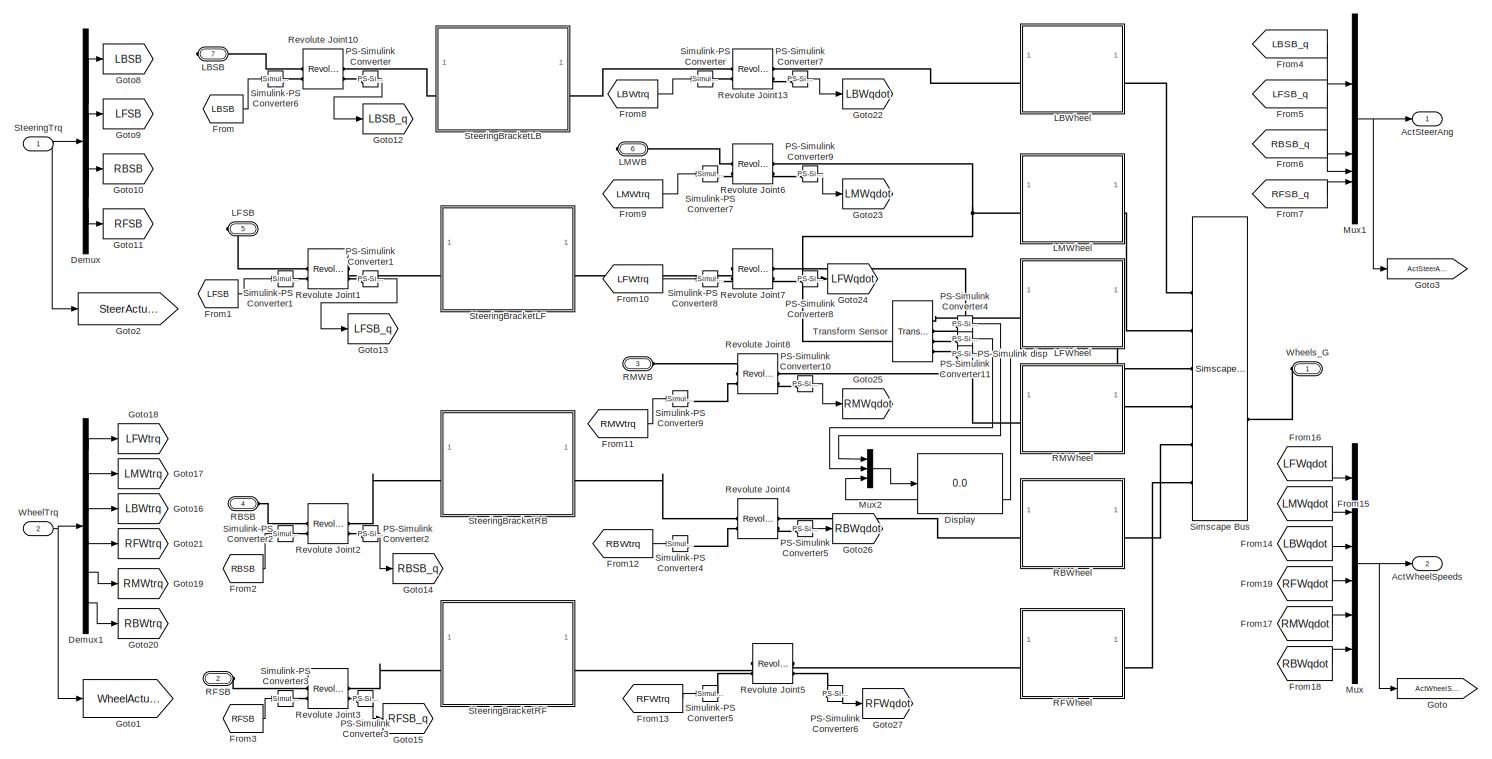
[diagram: Mars Rover Plant/Rover Plant Model/Rover /Wheels - part 1/1, most of the canvas]
BLOCK [SubSystem] Mars Rover Plant/Rover Plant Model/Rover /Wheels
  PortSchema = {"entries":[{"content":{"sides":[{"content":{"connectorIds":["LConn1","Out1","Out2","LConn2","LConn3","LConn4"]},"type":"ConnectorPlacement.EquallySpacedRectSide","uuid":"cdf43ca8-8411-4f39-b474-303a5f1c499c"},{"content":{"connectorIds":["In1","In2","RConn1","RConn2","RConn3"],"side":"RIGHT"},"type":"ConnectorPlacement.EquallySpacedRectSide","uuid":"d4854d09-b42d-4485-ae4e-6bf21ff8a87a"},{"content...<+316ch>
BLOCK [Outport] Mars Rover Plant/Rover Plant Model/Rover /Wheels/ActSteerAng
BLOCK [Outport] Mars Rover Plant/Rover Plant Model/Rover /Wheels/ActWheelSpeeds
  Port = 2
BLOCK [Demux] Mars Rover Plant/Rover Plant Model/Rover /Wheels/Demux
BLOCK [Demux] Mars Rover Plant/Rover Plant Model/Rover /Wheels/Demux1
  Outputs = 6
BLOCK [Display] Mars Rover Plant/Rover Plant Model/Rover /Wheels/Display
  Decimation = 1
BLOCK [From] Mars Rover Plant/Rover Plant Model/Rover /Wheels/From
  GotoTag = LBSB
BLOCK [From] Mars Rover Plant/Rover Plant Model/Rover /Wheels/From1
  GotoTag = LFSB
BLOCK [From] Mars Rover Plant/Rover Plant Model/Rover /Wheels/From10
  GotoTag = LFWtrq
BLOCK [From] Mars Rover Plant/Rover Plant Model/Rover /Wheels/From11
  GotoTag = RMWtrq
BLOCK [From] Mars Rover Plant/Rover Plant Model/Rover /Wheels/From12
  GotoTag = RBWtrq
BLOCK [From] Mars Rover Plant/Rover Plant Model/Rover /Wheels/From13
  GotoTag = RFWtrq
BLOCK [From] Mars Rover Plant/Rover Plant Model/Rover /Wheels/From14
  GotoTag = LBWqdot
BLOCK [From] Mars Rover Plant/Rover Plant Model/Rover /Wheels/From15
  GotoTag = LMWqdot
BLOCK [From] Mars Rover Plant/Rover Plant Model/Rover /Wheels/From16
  GotoTag = LFWqdot
BLOCK [From] Mars Rover Plant/Rover Plant Model/Rover /Wheels/From17
  GotoTag = RMWqdot
BLOCK [From] Mars Rover Plant/Rover Plant Model/Rover /Wheels/From18
  GotoTag = RBWqdot
BLOCK [From] Mars Rover Plant/Rover Plant Model/Rover /Wheels/From19
  GotoTag = RFWqdot
BLOCK [From] Mars Rover Plant/Rover Plant Model/Rover /Wheels/From2
  GotoTag = RBSB
BLOCK [From] Mars Rover Plant/Rover Plant Model/Rover /Wheels/From3
  GotoTag = RFSB
BLOCK [From] Mars Rover Plant/Rover Plant Model/Rover /Wheels/From4
  GotoTag = LBSB_q
BLOCK [From] Mars Rover Plant/Rover Plant Model/Rover /Wheels/From5
  GotoTag = LFSB_q
BLOCK [From] Mars Rover Plant/Rover Plant Model/Rover /Wheels/From6
  GotoTag = RBSB_q
BLOCK [From] Mars Rover Plant/Rover Plant Model/Rover /Wheels/From7
  GotoTag = RFSB_q
BLOCK [From] Mars Rover Plant/Rover Plant Model/Rover /Wheels/From8
  GotoTag = LBWtrq
BLOCK [From] Mars Rover Plant/Rover Plant Model/Rover /Wheels/From9
  GotoTag = LMWtrq
BLOCK [Goto] Mars Rover Plant/Rover Plant Model/Rover /Wheels/Goto
  GotoTag = ActWheelSpeeds
  TagVisibility = global
BLOCK [Goto] Mars Rover Plant/Rover Plant Model/Rover /Wheels/Goto1
  GotoTag = WheelActuatorTrqs
  TagVisibility = global
BLOCK [Goto] Mars Rover Plant/Rover Plant Model/Rover /Wheels/Goto10
  GotoTag = RBSB
BLOCK [Goto] Mars Rover Plant/Rover Plant Model/Rover /Wheels/Goto11
  GotoTag = RFSB
BLOCK [Goto] Mars Rover Plant/Rover Plant Model/Rover /Wheels/Goto12
  GotoTag = LBSB_q
BLOCK [Goto] Mars Rover Plant/Rover Plant Model/Rover /Wheels/Goto13
  GotoTag = LFSB_q
BLOCK [Goto] Mars Rover Plant/Rover Plant Model/Rover /Wheels/Goto14
  GotoTag = RBSB_q
BLOCK [Goto] Mars Rover Plant/Rover Plant Model/Rover /Wheels/Goto15
  GotoTag = RFSB_q
BLOCK [Goto] Mars Rover Plant/Rover Plant Model/Rover /Wheels/Goto16
  GotoTag = LBWtrq
BLOCK [Goto] Mars Rover Plant/Rover Plant Model/Rover /Wheels/Goto17
  GotoTag = LMWtrq
BLOCK [Goto] Mars Rover Plant/Rover Plant Model/Rover /Wheels/Goto18
  GotoTag = LFWtrq
BLOCK [Goto] Mars Rover Plant/Rover Plant Model/Rover /Wheels/Goto19
  GotoTag = RMWtrq
BLOCK [Goto] Mars Rover Plant/Rover Plant Model/Rover /Wheels/Goto2
  GotoTag = SteerActuatorTrqs
  TagVisibility = global
BLOCK [Goto] Mars Rover Plant/Rover Plant Model/Rover /Wheels/Goto20
  GotoTag = RBWtrq
BLOCK [Goto] Mars Rover Plant/Rover Plant Model/Rover /Wheels/Goto21
  GotoTag = RFWtrq
BLOCK [Goto] Mars Rover Plant/Rover Plant Model/Rover /Wheels/Goto22
  GotoTag = LBWqdot
BLOCK [Goto] Mars Rover Plant/Rover Plant Model/Rover /Wheels/Goto23
  GotoTag = LMWqdot
BLOCK [Goto] Mars Rover Plant/Rover Plant Model/Rover /Wheels/Goto24
  GotoTag = LFWqdot
BLOCK [Goto] Mars Rover Plant/Rover Plant Model/Rover /Wheels/Goto25
  GotoTag = RMWqdot
BLOCK [Goto] Mars Rover Plant/Rover Plant Model/Rover /Wheels/Goto26
  GotoTag = RBWqdot
BLOCK [Goto] Mars Rover Plant/Rover Plant Model/Rover /Wheels/Goto27
  GotoTag = RFWqdot
BLOCK [Goto] Mars Rover Plant/Rover Plant Model/Rover /Wheels/Goto3
  GotoTag = ActSteerAng
  TagVisibility = global
BLOCK [Goto] Mars Rover Plant/Rover Plant Model/Rover /Wheels/Goto8
  GotoTag = LBSB
BLOCK [Goto] Mars Rover Plant/Rover Plant Model/Rover /Wheels/Goto9
  GotoTag = LFSB
BLOCK [PMIOPort] Mars Rover Plant/Rover Plant Model/Rover /Wheels/LBSB
  Port = 7
  Side = Right
BLOCK [SubSystem] Mars Rover Plant/Rover Plant Model/Rover /Wheels/LBWheel
BLOCK [PMIOPort] Mars Rover Plant/Rover Plant Model/Rover /Wheels/LBWheel/G
  Port = 2
  Side = Left
BLOCK [Reference] Mars Rover Plant/Rover Plant Model/Rover /Wheels/LBWheel/InnerWheelViz  REF=sm_lib/Body Elements/File Solid
  SourceBlock = sm_lib/Body Elements/File Solid
  SourceType = File Solid
BLOCK [Reference] Mars Rover Plant/Rover Plant Model/Rover /Wheels/LBWheel/OuterWheel  REF=sm_lib/Body Elements/File Solid
  SourceBlock = sm_lib/Body Elements/File Solid
  SourceType = File Solid
BLOCK [Reference] Mars Rover Plant/Rover Plant Model/Rover /Wheels/LBWheel/Point Cloud  REF=sm_lib/Curves and Surfaces/Point Cloud
  SourceBlock = sm_lib/Curves and Surfaces/Point Cloud
  SourceType = Point Cloud
BLOCK [Reference] Mars Rover Plant/Rover Plant Model/Rover /Wheels/LBWheel/Rigid Transform  REF=sm_lib/Frames and
Transforms/Rigid
Transform
  NameLocation = top
  SourceBlock = sm_lib/Frames and\nTransforms/Rigid\nTransform
  SourceType = Rigid\nTransform
BLOCK [Reference] Mars Rover Plant/Rover Plant Model/Rover /Wheels/LBWheel/Rigid Transform6  REF=sm_lib/Frames and
Transforms/Rigid
Transform
  SourceBlock = sm_lib/Frames and\nTransforms/Rigid\nTransform
  SourceType = Rigid\nTransform
BLOCK [PMIOPort] Mars Rover Plant/Rover Plant Model/Rover /Wheels/LBWheel/WRJ
  Side = Right
BLOCK [PMIOPort] Mars Rover Plant/Rover Plant Model/Rover /Wheels/LFSB
  Port = 5
  Side = Right
BLOCK [SubSystem] Mars Rover Plant/Rover Plant Model/Rover /Wheels/LFWheel
BLOCK [PMIOPort] Mars Rover Plant/Rover Plant Model/Rover /Wheels/LFWheel/G
  Port = 2
  Side = Left
BLOCK [Reference] Mars Rover Plant/Rover Plant Model/Rover /Wheels/LFWheel/InnerWheel  REF=sm_lib/Body Elements/File Solid
  SourceBlock = sm_lib/Body Elements/File Solid
  SourceType = File Solid
BLOCK [Reference] Mars Rover Plant/Rover Plant Model/Rover /Wheels/LFWheel/OuterWheel  REF=sm_lib/Body Elements/File Solid
  SourceBlock = sm_lib/Body Elements/File Solid
  SourceType = File Solid
BLOCK [Reference] Mars Rover Plant/Rover Plant Model/Rover /Wheels/LFWheel/Point Cloud  REF=sm_lib/Curves and Surfaces/Point Cloud
  SourceBlock = sm_lib/Curves and Surfaces/Point Cloud
  SourceType = Point Cloud
BLOCK [Reference] Mars Rover Plant/Rover Plant Model/Rover /Wheels/LFWheel/Rigid Transform  REF=sm_lib/Frames and
Transforms/Rigid
Transform
  NameLocation = top
  SourceBlock = sm_lib/Frames and\nTransforms/Rigid\nTransform
  SourceType = Rigid\nTransform
BLOCK [Reference] Mars Rover Plant/Rover Plant Model/Rover /Wheels/LFWheel/Rigid Transform6  REF=sm_lib/Frames and
Transforms/Rigid
Transform
  SourceBlock = sm_lib/Frames and\nTransforms/Rigid\nTransform
  SourceType = Rigid\nTransform
BLOCK [PMIOPort] Mars Rover Plant/Rover Plant Model/Rover /Wheels/LFWheel/WRJ
  Side = Right
BLOCK [PMIOPort] Mars Rover Plant/Rover Plant Model/Rover /Wheels/LMWB
  Port = 6
  Side = Right
BLOCK [SubSystem] Mars Rover Plant/Rover Plant Model/Rover /Wheels/LMWheel
BLOCK [PMIOPort] Mars Rover Plant/Rover Plant Model/Rover /Wheels/LMWheel/G
  Port = 2
  Side = Left
BLOCK [Reference] Mars Rover Plant/Rover Plant Model/Rover /Wheels/LMWheel/InnerWheel  REF=sm_lib/Body Elements/File Solid
  SourceBlock = sm_lib/Body Elements/File Solid
  SourceType = File Solid
BLOCK [Reference] Mars Rover Plant/Rover Plant Model/Rover /Wheels/LMWheel/OuterWheel  REF=sm_lib/Body Elements/File Solid
  SourceBlock = sm_lib/Body Elements/File Solid
  SourceType = File Solid
BLOCK [Reference] Mars Rover Plant/Rover Plant Model/Rover /Wheels/LMWheel/Point Cloud  REF=sm_lib/Curves and Surfaces/Point Cloud
  SourceBlock = sm_lib/Curves and Surfaces/Point Cloud
  SourceType = Point Cloud
BLOCK [Reference] Mars Rover Plant/Rover Plant Model/Rover /Wheels/LMWheel/Rigid Transform  REF=sm_lib/Frames and
Transforms/Rigid
Transform
  NameLocation = top
  SourceBlock = sm_lib/Frames and\nTransforms/Rigid\nTransform
  SourceType = Rigid\nTransform
BLOCK [Reference] Mars Rover Plant/Rover Plant Model/Rover /Wheels/LMWheel/Rigid Transform6  REF=sm_lib/Frames and
Transforms/Rigid
Transform
  SourceBlock = sm_lib/Frames and\nTransforms/Rigid\nTransform
  SourceType = Rigid\nTransform
BLOCK [PMIOPort] Mars Rover Plant/Rover Plant Model/Rover /Wheels/LMWheel/WRJ
  Side = Right
BLOCK [Mux] Mars Rover Plant/Rover Plant Model/Rover /Wheels/Mux
  DisplayOption = bar
  Inputs = 6
BLOCK [Mux] Mars Rover Plant/Rover Plant Model/Rover /Wheels/Mux1
  DisplayOption = bar
BLOCK [Mux] Mars Rover Plant/Rover Plant Model/Rover /Wheels/Mux2
  DisplayOption = bar
  Inputs = 3
BLOCK [Reference] Mars Rover Plant/Rover Plant Model/Rover /Wheels/PS-Simulink Converter  REF=nesl_utility/PS-Simulink
Converter
  SourceBlock = nesl_utility/PS-Simulink\nConverter
  SourceType = PS-Simulink\nConverter
BLOCK [Reference] Mars Rover Plant/Rover Plant Model/Rover /Wheels/PS-Simulink Converter1  REF=nesl_utility/PS-Simulink
Converter
  SourceBlock = nesl_utility/PS-Simulink\nConverter
  SourceType = PS-Simulink\nConverter
BLOCK [Reference] Mars Rover Plant/Rover Plant Model/Rover /Wheels/PS-Simulink Converter10  REF=nesl_utility/PS-Simulink
Converter
  SourceBlock = nesl_utility/PS-Simulink\nConverter
  SourceType = PS-Simulink\nConverter
BLOCK [Reference] Mars Rover Plant/Rover Plant Model/Rover /Wheels/PS-Simulink Converter11  REF=nesl_utility/PS-Simulink
Converter
  SourceBlock = nesl_utility/PS-Simulink\nConverter
  SourceType = PS-Simulink\nConverter
BLOCK [Reference] Mars Rover Plant/Rover Plant Model/Rover /Wheels/PS-Simulink Converter2  REF=nesl_utility/PS-Simulink
Converter
  SourceBlock = nesl_utility/PS-Simulink\nConverter
  SourceType = PS-Simulink\nConverter
BLOCK [Reference] Mars Rover Plant/Rover Plant Model/Rover /Wheels/PS-Simulink Converter3  REF=nesl_utility/PS-Simulink
Converter
  SourceBlock = nesl_utility/PS-Simulink\nConverter
  SourceType = PS-Simulink\nConverter
BLOCK [Reference] Mars Rover Plant/Rover Plant Model/Rover /Wheels/PS-Simulink Converter4  REF=nesl_utility/PS-Simulink
Converter
  SourceBlock = nesl_utility/PS-Simulink\nConverter
  SourceType = PS-Simulink\nConverter
BLOCK [Reference] Mars Rover Plant/Rover Plant Model/Rover /Wheels/PS-Simulink Converter5  REF=nesl_utility/PS-Simulink
Converter
  SourceBlock = nesl_utility/PS-Simulink\nConverter
  SourceType = PS-Simulink\nConverter
BLOCK [Reference] Mars Rover Plant/Rover Plant Model/Rover /Wheels/PS-Simulink Converter6  REF=nesl_utility/PS-Simulink
Converter
  SourceBlock = nesl_utility/PS-Simulink\nConverter
  SourceType = PS-Simulink\nConverter
BLOCK [Reference] Mars Rover Plant/Rover Plant Model/Rover /Wheels/PS-Simulink Converter7  REF=nesl_utility/PS-Simulink
Converter
  SourceBlock = nesl_utility/PS-Simulink\nConverter
  SourceType = PS-Simulink\nConverter
BLOCK [Reference] Mars Rover Plant/Rover Plant Model/Rover /Wheels/PS-Simulink Converter8  REF=nesl_utility/PS-Simulink
Converter
  SourceBlock = nesl_utility/PS-Simulink\nConverter
  SourceType = PS-Simulink\nConverter
BLOCK [Reference] Mars Rover Plant/Rover Plant Model/Rover /Wheels/PS-Simulink Converter9  REF=nesl_utility/PS-Simulink
Converter
  SourceBlock = nesl_utility/PS-Simulink\nConverter
  SourceType = PS-Simulink\nConverter
BLOCK [Reference] Mars Rover Plant/Rover Plant Model/Rover /Wheels/PS-Simulink disp  REF=nesl_utility/PS-Simulink
Converter
  SourceBlock = nesl_utility/PS-Simulink\nConverter
  SourceType = PS-Simulink\nConverter
BLOCK [PMIOPort] Mars Rover Plant/Rover Plant Model/Rover /Wheels/RBSB
  Port = 4
  Side = Left
BLOCK [SubSystem] Mars Rover Plant/Rover Plant Model/Rover /Wheels/RBWheel
BLOCK [PMIOPort] Mars Rover Plant/Rover Plant Model/Rover /Wheels/RBWheel/G
  Port = 2
  Side = Left
BLOCK [Reference] Mars Rover Plant/Rover Plant Model/Rover /Wheels/RBWheel/InnerWheel  REF=sm_lib/Body Elements/File Solid
  SourceBlock = sm_lib/Body Elements/File Solid
  SourceType = File Solid
BLOCK [Reference] Mars Rover Plant/Rover Plant Model/Rover /Wheels/RBWheel/OuterWheel  REF=sm_lib/Body Elements/File Solid
  SourceBlock = sm_lib/Body Elements/File Solid
  SourceType = File Solid
BLOCK [Reference] Mars Rover Plant/Rover Plant Model/Rover /Wheels/RBWheel/Point Cloud  REF=sm_lib/Curves and Surfaces/Point Cloud
  SourceBlock = sm_lib/Curves and Surfaces/Point Cloud
  SourceType = Point Cloud
BLOCK [Reference] Mars Rover Plant/Rover Plant Model/Rover /Wheels/RBWheel/Rigid Transform  REF=sm_lib/Frames and
Transforms/Rigid
Transform
  NameLocation = top
  SourceBlock = sm_lib/Frames and\nTransforms/Rigid\nTransform
  SourceType = Rigid\nTransform
BLOCK [Reference] Mars Rover Plant/Rover Plant Model/Rover /Wheels/RBWheel/Rigid Transform6  REF=sm_lib/Frames and
Transforms/Rigid
Transform
  SourceBlock = sm_lib/Frames and\nTransforms/Rigid\nTransform
  SourceType = Rigid\nTransform
BLOCK [PMIOPort] Mars Rover Plant/Rover Plant Model/Rover /Wheels/RBWheel/WRJ
  Side = Right
BLOCK [PMIOPort] Mars Rover Plant/Rover Plant Model/Rover /Wheels/RFSB
  Port = 2
  Side = Left
BLOCK [SubSystem] Mars Rover Plant/Rover Plant Model/Rover /Wheels/RFWheel
BLOCK [PMIOPort] Mars Rover Plant/Rover Plant Model/Rover /Wheels/RFWheel/G
  Port = 2
  Side = Left
BLOCK [Reference] Mars Rover Plant/Rover Plant Model/Rover /Wheels/RFWheel/InnerWheel  REF=sm_lib/Body Elements/File Solid
  SourceBlock = sm_lib/Body Elements/File Solid
  SourceType = File Solid
BLOCK [Reference] Mars Rover Plant/Rover Plant Model/Rover /Wheels/RFWheel/OuterWheel  REF=sm_lib/Body Elements/File Solid
  SourceBlock = sm_lib/Body Elements/File Solid
  SourceType = File Solid
BLOCK [Reference] Mars Rover Plant/Rover Plant Model/Rover /Wheels/RFWheel/Point Cloud  REF=sm_lib/Curves and Surfaces/Point Cloud
  SourceBlock = sm_lib/Curves and Surfaces/Point Cloud
  SourceType = Point Cloud
BLOCK [Reference] Mars Rover Plant/Rover Plant Model/Rover /Wheels/RFWheel/Rigid Transform  REF=sm_lib/Frames and
Transforms/Rigid
Transform
  NameLocation = top
  SourceBlock = sm_lib/Frames and\nTransforms/Rigid\nTransform
  SourceType = Rigid\nTransform
BLOCK [Reference] Mars Rover Plant/Rover Plant Model/Rover /Wheels/RFWheel/Rigid Transform6  REF=sm_lib/Frames and
Transforms/Rigid
Transform
  SourceBlock = sm_lib/Frames and\nTransforms/Rigid\nTransform
  SourceType = Rigid\nTransform
BLOCK [PMIOPort] Mars Rover Plant/Rover Plant Model/Rover /Wheels/RFWheel/WRJ
  Side = Right
BLOCK [PMIOPort] Mars Rover Plant/Rover Plant Model/Rover /Wheels/RMWB
  Port = 3
  Side = Left
BLOCK [SubSystem] Mars Rover Plant/Rover Plant Model/Rover /Wheels/RMWheel
BLOCK [PMIOPort] Mars Rover Plant/Rover Plant Model/Rover /Wheels/RMWheel/G
  Port = 2
  Side = Left
BLOCK [Reference] Mars Rover Plant/Rover Plant Model/Rover /Wheels/RMWheel/InnerWheel  REF=sm_lib/Body Elements/File Solid
  SourceBlock = sm_lib/Body Elements/File Solid
  SourceType = File Solid
BLOCK [Reference] Mars Rover Plant/Rover Plant Model/Rover /Wheels/RMWheel/OuterWheel  REF=sm_lib/Body Elements/File Solid
  SourceBlock = sm_lib/Body Elements/File Solid
  SourceType = File Solid
BLOCK [Reference] Mars Rover Plant/Rover Plant Model/Rover /Wheels/RMWheel/Point Cloud  REF=sm_lib/Curves and Surfaces/Point Cloud
  SourceBlock = sm_lib/Curves and Surfaces/Point Cloud
  SourceType = Point Cloud
BLOCK [Reference] Mars Rover Plant/Rover Plant Model/Rover /Wheels/RMWheel/Rigid Transform  REF=sm_lib/Frames and
Transforms/Rigid
Transform
  NameLocation = top
  SourceBlock = sm_lib/Frames and\nTransforms/Rigid\nTransform
  SourceType = Rigid\nTransform
BLOCK [Reference] Mars Rover Plant/Rover Plant Model/Rover /Wheels/RMWheel/Rigid Transform6  REF=sm_lib/Frames and
Transforms/Rigid
Transform
  SourceBlock = sm_lib/Frames and\nTransforms/Rigid\nTransform
  SourceType = Rigid\nTransform
BLOCK [PMIOPort] Mars Rover Plant/Rover Plant Model/Rover /Wheels/RMWheel/WRJ
  Side = Right
BLOCK [Reference] Mars Rover Plant/Rover Plant Model/Rover /Wheels/Revolute Joint1  REF=sm_lib/Joints/Revolute Joint
  SourceBlock = sm_lib/Joints/Revolute Joint
  SourceType = Revolute Joint
BLOCK [Reference] Mars Rover Plant/Rover Plant Model/Rover /Wheels/Revolute Joint10  REF=sm_lib/Joints/Revolute Joint
  SourceBlock = sm_lib/Joints/Revolute Joint
  SourceType = Revolute Joint
BLOCK [Reference] Mars Rover Plant/Rover Plant Model/Rover /Wheels/Revolute Joint13  REF=sm_lib/Joints/Revolute Joint
  SourceBlock = sm_lib/Joints/Revolute Joint
  SourceType = Revolute Joint
BLOCK [Reference] Mars Rover Plant/Rover Plant Model/Rover /Wheels/Revolute Joint2  REF=sm_lib/Joints/Revolute Joint
  SourceBlock = sm_lib/Joints/Revolute Joint
  SourceType = Revolute Joint
BLOCK [Reference] Mars Rover Plant/Rover Plant Model/Rover /Wheels/Revolute Joint3  REF=sm_lib/Joints/Revolute Joint
  SourceBlock = sm_lib/Joints/Revolute Joint
  SourceType = Revolute Joint
BLOCK [Reference] Mars Rover Plant/Rover Plant Model/Rover /Wheels/Revolute Joint4  REF=sm_lib/Joints/Revolute Joint
  SourceBlock = sm_lib/Joints/Revolute Joint
  SourceType = Revolute Joint
BLOCK [Reference] Mars Rover Plant/Rover Plant Model/Rover /Wheels/Revolute Joint5  REF=sm_lib/Joints/Revolute Joint
  SourceBlock = sm_lib/Joints/Revolute Joint
  SourceType = Revolute Joint
BLOCK [Reference] Mars Rover Plant/Rover Plant Model/Rover /Wheels/Revolute Joint6  REF=sm_lib/Joints/Revolute Joint
  SourceBlock = sm_lib/Joints/Revolute Joint
  SourceType = Revolute Joint
BLOCK [Reference] Mars Rover Plant/Rover Plant Model/Rover /Wheels/Revolute Joint7  REF=sm_lib/Joints/Revolute Joint
  SourceBlock = sm_lib/Joints/Revolute Joint
  SourceType = Revolute Joint
BLOCK [Reference] Mars Rover Plant/Rover Plant Model/Rover /Wheels/Revolute Joint8  REF=sm_lib/Joints/Revolute Joint
  SourceBlock = sm_lib/Joints/Revolute Joint
  SourceType = Revolute Joint
BLOCK [SimscapeBus] Mars Rover Plant/Rover Plant Model/Rover /Wheels/Simscape Bus
  HierarchyStrings = Wheel1_G;Wheel2_G;Wheel3_G;Wheel4_G;Wheel5_G;Wheel6_G
BLOCK [Reference] Mars Rover Plant/Rover Plant Model/Rover /Wheels/Simulink-PS Converter  REF=nesl_utility/Simulink-PS
Converter
  SourceBlock = nesl_utility/Simulink-PS\nConverter
  SourceType = Simulink-PS\nConverter
BLOCK [Reference] Mars Rover Plant/Rover Plant Model/Rover /Wheels/Simulink-PS Converter1  REF=nesl_utility/Simulink-PS
Converter
  SourceBlock = nesl_utility/Simulink-PS\nConverter
  SourceType = Simulink-PS\nConverter
BLOCK [Reference] Mars Rover Plant/Rover Plant Model/Rover /Wheels/Simulink-PS Converter2  REF=nesl_utility/Simulink-PS
Converter
  SourceBlock = nesl_utility/Simulink-PS\nConverter
  SourceType = Simulink-PS\nConverter
BLOCK [Reference] Mars Rover Plant/Rover Plant Model/Rover /Wheels/Simulink-PS Converter3  REF=nesl_utility/Simulink-PS
Converter
  SourceBlock = nesl_utility/Simulink-PS\nConverter
  SourceType = Simulink-PS\nConverter
BLOCK [Reference] Mars Rover Plant/Rover Plant Model/Rover /Wheels/Simulink-PS Converter4  REF=nesl_utility/Simulink-PS
Converter
  SourceBlock = nesl_utility/Simulink-PS\nConverter
  SourceType = Simulink-PS\nConverter
BLOCK [Reference] Mars Rover Plant/Rover Plant Model/Rover /Wheels/Simulink-PS Converter5  REF=nesl_utility/Simulink-PS
Converter
  SourceBlock = nesl_utility/Simulink-PS\nConverter
  SourceType = Simulink-PS\nConverter
BLOCK [Reference] Mars Rover Plant/Rover Plant Model/Rover /Wheels/Simulink-PS Converter6  REF=nesl_utility/Simulink-PS
Converter
  SourceBlock = nesl_utility/Simulink-PS\nConverter
  SourceType = Simulink-PS\nConverter
BLOCK [Reference] Mars Rover Plant/Rover Plant Model/Rover /Wheels/Simulink-PS Converter7  REF=nesl_utility/Simulink-PS
Converter
  SourceBlock = nesl_utility/Simulink-PS\nConverter
  SourceType = Simulink-PS\nConverter
BLOCK [Reference] Mars Rover Plant/Rover Plant Model/Rover /Wheels/Simulink-PS Converter8  REF=nesl_utility/Simulink-PS
Converter
  SourceBlock = nesl_utility/Simulink-PS\nConverter
  SourceType = Simulink-PS\nConverter
BLOCK [Reference] Mars Rover Plant/Rover Plant Model/Rover /Wheels/Simulink-PS Converter9  REF=nesl_utility/Simulink-PS
Converter
  SourceBlock = nesl_utility/Simulink-PS\nConverter
  SourceType = Simulink-PS\nConverter
BLOCK [SubSystem] Mars Rover Plant/Rover Plant Model/Rover /Wheels/SteeringBracketLB 
BLOCK [Reference] Mars Rover Plant/Rover Plant Model/Rover /Wheels/SteeringBracketLB /File Solid5  REF=sm_lib/Body Elements/File Solid
  NameLocation = top
  SourceBlock = sm_lib/Body Elements/File Solid
  SourceType = File Solid
BLOCK [Reference] Mars Rover Plant/Rover Plant Model/Rover /Wheels/SteeringBracketLB /Reference Frame  REF=sm_lib/Frames and
Transforms/Reference
Frame
  SourceBlock = sm_lib/Frames and\nTransforms/Reference\nFrame
  SourceType = Reference\nFrame
BLOCK [Reference] Mars Rover Plant/Rover Plant Model/Rover /Wheels/SteeringBracketLB /Rigid Transform  REF=sm_lib/Frames and
Transforms/Rigid
Transform
  SourceBlock = sm_lib/Frames and\nTransforms/Rigid\nTransform
  SourceType = Rigid\nTransform
BLOCK [Reference] Mars Rover Plant/Rover Plant Model/Rover /Wheels/SteeringBracketLB /Rigid Transform1  REF=sm_lib/Frames and
Transforms/Rigid
Transform
  NameLocation = top
  SourceBlock = sm_lib/Frames and\nTransforms/Rigid\nTransform
  SourceType = Rigid\nTransform
BLOCK [PMIOPort] Mars Rover Plant/Rover Plant Model/Rover /Wheels/SteeringBracketLB /SRJ
  Side = Left
BLOCK [PMIOPort] Mars Rover Plant/Rover Plant Model/Rover /Wheels/SteeringBracketLB /WRJ
  Port = 2
  Side = Right
BLOCK [SubSystem] Mars Rover Plant/Rover Plant Model/Rover /Wheels/SteeringBracketLF
BLOCK [Reference] Mars Rover Plant/Rover Plant Model/Rover /Wheels/SteeringBracketLF/File Solid5  REF=sm_lib/Body Elements/File Solid
  NameLocation = top
  SourceBlock = sm_lib/Body Elements/File Solid
  SourceType = File Solid
BLOCK [Reference] Mars Rover Plant/Rover Plant Model/Rover /Wheels/SteeringBracketLF/Reference Frame  REF=sm_lib/Frames and
Transforms/Reference
Frame
  SourceBlock = sm_lib/Frames and\nTransforms/Reference\nFrame
  SourceType = Reference\nFrame
BLOCK [Reference] Mars Rover Plant/Rover Plant Model/Rover /Wheels/SteeringBracketLF/Rigid Transform  REF=sm_lib/Frames and
Transforms/Rigid
Transform
  SourceBlock = sm_lib/Frames and\nTransforms/Rigid\nTransform
  SourceType = Rigid\nTransform
BLOCK [Reference] Mars Rover Plant/Rover Plant Model/Rover /Wheels/SteeringBracketLF/Rigid Transform1  REF=sm_lib/Frames and
Transforms/Rigid
Transform
  NameLocation = top
  SourceBlock = sm_lib/Frames and\nTransforms/Rigid\nTransform
  SourceType = Rigid\nTransform
BLOCK [PMIOPort] Mars Rover Plant/Rover Plant Model/Rover /Wheels/SteeringBracketLF/SRJ
  Side = Left
BLOCK [PMIOPort] Mars Rover Plant/Rover Plant Model/Rover /Wheels/SteeringBracketLF/WRJ
  Port = 2
  Side = Right
BLOCK [SubSystem] Mars Rover Plant/Rover Plant Model/Rover /Wheels/SteeringBracketRB
BLOCK [Reference] Mars Rover Plant/Rover Plant Model/Rover /Wheels/SteeringBracketRB/File Solid5  REF=sm_lib/Body Elements/File Solid
  NameLocation = top
  SourceBlock = sm_lib/Body Elements/File Solid
  SourceType = File Solid
BLOCK [Reference] Mars Rover Plant/Rover Plant Model/Rover /Wheels/SteeringBracketRB/Reference Frame  REF=sm_lib/Frames and
Transforms/Reference
Frame
  SourceBlock = sm_lib/Frames and\nTransforms/Reference\nFrame
  SourceType = Reference\nFrame
BLOCK [Reference] Mars Rover Plant/Rover Plant Model/Rover /Wheels/SteeringBracketRB/Rigid Transform  REF=sm_lib/Frames and
Transforms/Rigid
Transform
  SourceBlock = sm_lib/Frames and\nTransforms/Rigid\nTransform
  SourceType = Rigid\nTransform
BLOCK [Reference] Mars Rover Plant/Rover Plant Model/Rover /Wheels/SteeringBracketRB/Rigid Transform1  REF=sm_lib/Frames and
Transforms/Rigid
Transform
  NameLocation = top
  SourceBlock = sm_lib/Frames and\nTransforms/Rigid\nTransform
  SourceType = Rigid\nTransform
BLOCK [PMIOPort] Mars Rover Plant/Rover Plant Model/Rover /Wheels/SteeringBracketRB/SRJ
  Side = Left
BLOCK [PMIOPort] Mars Rover Plant/Rover Plant Model/Rover /Wheels/SteeringBracketRB/WRJ
  Port = 2
  Side = Right
BLOCK [SubSystem] Mars Rover Plant/Rover Plant Model/Rover /Wheels/SteeringBracketRF
BLOCK [Reference] Mars Rover Plant/Rover Plant Model/Rover /Wheels/SteeringBracketRF/File Solid5  REF=sm_lib/Body Elements/File Solid
  NameLocation = top
  SourceBlock = sm_lib/Body Elements/File Solid
  SourceType = File Solid
BLOCK [Reference] Mars Rover Plant/Rover Plant Model/Rover /Wheels/SteeringBracketRF/Reference Frame  REF=sm_lib/Frames and
Transforms/Reference
Frame
  SourceBlock = sm_lib/Frames and\nTransforms/Reference\nFrame
  SourceType = Reference\nFrame
BLOCK [Reference] Mars Rover Plant/Rover Plant Model/Rover /Wheels/SteeringBracketRF/Rigid Transform  REF=sm_lib/Frames and
Transforms/Rigid
Transform
  SourceBlock = sm_lib/Frames and\nTransforms/Rigid\nTransform
  SourceType = Rigid\nTransform
BLOCK [Reference] Mars Rover Plant/Rover Plant Model/Rover /Wheels/SteeringBracketRF/Rigid Transform1  REF=sm_lib/Frames and
Transforms/Rigid
Transform
  NameLocation = top
  SourceBlock = sm_lib/Frames and\nTransforms/Rigid\nTransform
  SourceType = Rigid\nTransform
BLOCK [PMIOPort] Mars Rover Plant/Rover Plant Model/Rover /Wheels/SteeringBracketRF/SRJ
  Side = Left
BLOCK [PMIOPort] Mars Rover Plant/Rover Plant Model/Rover /Wheels/SteeringBracketRF/WRJ
  Port = 2
  Side = Right
BLOCK [Inport] Mars Rover Plant/Rover Plant Model/Rover /Wheels/SteeringTrq
BLOCK [Reference] Mars Rover Plant/Rover Plant Model/Rover /Wheels/Transform Sensor  REF=sm_lib/Frames and
Transforms/Transform
Sensor
  SourceBlock = sm_lib/Frames and\nTransforms/Transform\nSensor
  SourceType = Transform\nSensor
BLOCK [Inport] Mars Rover Plant/Rover Plant Model/Rover /Wheels/WheelTrq
  Port = 2
BLOCK [PMIOPort] Mars Rover Plant/Rover Plant Model/Rover /Wheels/Wheels_G
  Side = Left
BLOCK [PMIOPort] Mars Rover Plant/Rover Plant Model/Rover /WheelsG
  Port = 4
  Side = Right
BLOCK [SubSystem] Mars Rover Plant/Rover Plant Model/Rover Pose Sensing
BLOCK [PMIOPort] Mars Rover Plant/Rover Plant Model/Rover Pose Sensing/B
  Side = Left
BLOCK [PMIOPort] Mars Rover Plant/Rover Plant Model/Rover Pose Sensing/F
  Port = 2
  Side = Left
BLOCK [Goto] Mars Rover Plant/Rover Plant Model/Rover Pose Sensing/Goto
  GotoTag = RoverLinearVel
  TagVisibility = global
BLOCK [Goto] Mars Rover Plant/Rover Plant Model/Rover Pose Sensing/Goto1
  GotoTag = RoverAngVel_Z
  TagVisibility = global
BLOCK [Goto] Mars Rover Plant/Rover Plant Model/Rover Pose Sensing/Goto2
  GotoTag = RoverOrientation
  TagVisibility = global
BLOCK [Goto] Mars Rover Plant/Rover Plant Model/Rover Pose Sensing/Goto3
  GotoTag = RoverTranslation
  TagVisibility = global
BLOCK [SubSystem] Mars Rover Plant/Rover Plant Model/Rover Pose Sensing/Kalman Filter
BLOCK [Clock] Mars Rover Plant/Rover Plant Model/Rover Pose Sensing/Kalman Filter/Clock
BLOCK [Constant] Mars Rover Plant/Rover Plant Model/Rover Pose Sensing/Kalman Filter/Constant
  Value = [rover_path_dl.x rover_path_dl.y]
BLOCK [Constant] Mars Rover Plant/Rover Plant Model/Rover Pose Sensing/Kalman Filter/Constant1
  Value = Terrain.xg
BLOCK [Constant] Mars Rover Plant/Rover Plant Model/Rover Pose Sensing/Kalman Filter/Constant2
  Value = Terrain.yg
BLOCK [Constant] Mars Rover Plant/Rover Plant Model/Rover Pose Sensing/Kalman Filter/Constant3
  Value = Terrain.z_heights
BLOCK [Constant] Mars Rover Plant/Rover Plant Model/Rover Pose Sensing/Kalman Filter/Constant4
  Value = useKalmanFilter
BLOCK [Constant] Mars Rover Plant/Rover Plant Model/Rover Pose Sensing/Kalman Filter/Constant7
  Value = Terrain.znew
BLOCK [Constant] Mars Rover Plant/Rover Plant Model/Rover Pose Sensing/Kalman Filter/Constant8
  Value = Rover.Wheel_Radius
BLOCK [SubSystem] Mars Rover Plant/Rover Plant Model/Rover Pose Sensing/Kalman Filter/Discrete-Time Linear Kalman Filter
  ErrorFcn = Stateflow.Translate.translate
  PermitHierarchicalResolution = ExplicitOnly
  SFBlockType = MATLAB Function
  TreatAsAtomicUnit = on
BLOCK [Demux] Mars Rover Plant/Rover Plant Model/Rover Pose Sensing/Kalman Filter/Discrete-Time Linear Kalman Filter/ Demux 
  Outputs = 1
BLOCK [S-Function] Mars Rover Plant/Rover Plant Model/Rover Pose Sensing/Kalman Filter/Discrete-Time Linear Kalman Filter/ SFunction 
  EnableBusSupport = on
  FunctionName = sf_sfun
  PortCounts = [8 4]
  SFcnIsStateOwnerBlock = off
  SFunctionDeploymentMode = off
  Tag = Stateflow S-Function 22
BLOCK [Terminator] Mars Rover Plant/Rover Plant Model/Rover Pose Sensing/Kalman Filter/Discrete-Time Linear Kalman Filter/ Terminator 
BLOCK [Inport] Mars Rover Plant/Rover Plant Model/Rover Pose Sensing/Kalman Filter/Discrete-Time Linear Kalman Filter/DCMMat
  Port = 2
BLOCK [Outport] Mars Rover Plant/Rover Plant Model/Rover Pose Sensing/Kalman Filter/Discrete-Time Linear Kalman Filter/EstLinAccel
  Port = 3
BLOCK [Outport] Mars Rover Plant/Rover Plant Model/Rover Pose Sensing/Kalman Filter/Discrete-Time Linear Kalman Filter/EstLinVel
  Port = 2
BLOCK [Outport] Mars Rover Plant/Rover Plant Model/Rover Pose Sensing/Kalman Filter/Discrete-Time Linear Kalman Filter/EstPose
BLOCK [Inport] Mars Rover Plant/Rover Plant Model/Rover Pose Sensing/Kalman Filter/Discrete-Time Linear Kalman Filter/accelerometerData
BLOCK [Inport] Mars Rover Plant/Rover Plant Model/Rover Pose Sensing/Kalman Filter/Discrete-Time Linear Kalman Filter/linVelocity
  Port = 7
BLOCK [Inport] Mars Rover Plant/Rover Plant Model/Rover Pose Sensing/Kalman Filter/Discrete-Time Linear Kalman Filter/rover_initialPosition
  Port = 3
BLOCK [Inport] Mars Rover Plant/Rover Plant Model/Rover Pose Sensing/Kalman Filter/Discrete-Time Linear Kalman Filter/t
  Port = 4
BLOCK [Inport] Mars Rover Plant/Rover Plant Model/Rover Pose Sensing/Kalman Filter/Discrete-Time Linear Kalman Filter/useKalmanFilter
  Port = 8
BLOCK [Inport] Mars Rover Plant/Rover Plant Model/Rover Pose Sensing/Kalman Filter/Discrete-Time Linear Kalman Filter/wheelSpeed
  Port = 5
BLOCK [Inport] Mars Rover Plant/Rover Plant Model/Rover Pose Sensing/Kalman Filter/Discrete-Time Linear Kalman Filter/wheel_radius
  Port = 6
BLOCK [From] Mars Rover Plant/Rover Plant Model/Rover Pose Sensing/Kalman Filter/From
  GotoTag = ActWheelSpeeds
  TagVisibility = global
BLOCK [From] Mars Rover Plant/Rover Plant Model/Rover Pose Sensing/Kalman Filter/From1
  GotoTag = RoverLinearVel
  TagVisibility = global
BLOCK [From] Mars Rover Plant/Rover Plant Model/Rover Pose Sensing/Kalman Filter/From3
  GotoTag = RoverOrientation
  TagVisibility = global
BLOCK [Gain] Mars Rover Plant/Rover Plant Model/Rover Pose Sensing/Kalman Filter/Gain
  Gain = pi/180
BLOCK [Mux] Mars Rover Plant/Rover Plant Model/Rover Pose Sensing/Kalman Filter/Mux3
  DisplayOption = bar
  Inputs = 2
BLOCK [SubSystem] Mars Rover Plant/Rover Plant Model/Rover Pose Sensing/Kalman Filter/Pose Estimation Outputs
  Commented = on
  ErrorFcn = Stateflow.Translate.translate
  PermitHierarchicalResolution = ExplicitOnly
  SFBlockType = MATLAB Function
  TreatAsAtomicUnit = on
BLOCK [Demux] Mars Rover Plant/Rover Plant Model/Rover Pose Sensing/Kalman Filter/Pose Estimation Outputs/ Demux 
  Outputs = 1
BLOCK [S-Function] Mars Rover Plant/Rover Plant Model/Rover Pose Sensing/Kalman Filter/Pose Estimation Outputs/ SFunction 
  EnableBusSupport = on
  FunctionName = sf_sfun
  PortCounts = [2 3]
  SFcnIsStateOwnerBlock = off
  SFunctionDeploymentMode = off
  Tag = Stateflow S-Function 9
BLOCK [Terminator] Mars Rover Plant/Rover Plant Model/Rover Pose Sensing/Kalman Filter/Pose Estimation Outputs/ Terminator 
BLOCK [Inport] Mars Rover Plant/Rover Plant Model/Rover Pose Sensing/Kalman Filter/Pose Estimation Outputs/estimatedXYStates
  Port = 2
BLOCK [Outport] Mars Rover Plant/Rover Plant Model/Rover Pose Sensing/Kalman Filter/Pose Estimation Outputs/estimatedXYStates_out
  Port = 2
BLOCK [Inport] Mars Rover Plant/Rover Plant Model/Rover Pose Sensing/Kalman Filter/Pose Estimation Outputs/plannedPath
BLOCK [Outport] Mars Rover Plant/Rover Plant Model/Rover Pose Sensing/Kalman Filter/Pose Estimation Outputs/plannedPath_out
BLOCK [RateTransition] Mars Rover Plant/Rover Plant Model/Rover Pose Sensing/Kalman Filter/Rate Transition
  InitialCondition = [roverPath.x(1) roverPath.y(1)]
  OutPortSampleTime = 10
BLOCK [PMIOPort] Mars Rover Plant/Rover Plant Model/Rover Pose Sensing/Kalman Filter/Rover
  Port = 2
  Side = Right
BLOCK [Constant] Mars Rover Plant/Rover Plant Model/Rover Pose Sensing/Kalman Filter/Rover - Initial Position
  Value = [roverPath.x(1);roverPath.y(1);roverPath.t0.pzOffset]
BLOCK [SubSystem] Mars Rover Plant/Rover Plant Model/Rover Pose Sensing/Kalman Filter/RoverNavTopView
  ErrorFcn = Stateflow.Translate.translate
  PermitHierarchicalResolution = ExplicitOnly
  SFBlockType = MATLAB Function
  TreatAsAtomicUnit = on
BLOCK [Demux] Mars Rover Plant/Rover Plant Model/Rover Pose Sensing/Kalman Filter/RoverNavTopView/ Demux 
  Outputs = 1
BLOCK [S-Function] Mars Rover Plant/Rover Plant Model/Rover Pose Sensing/Kalman Filter/RoverNavTopView/ SFunction 
  EnableBusSupport = on
  FunctionName = sf_sfun
  PortCounts = [6 7]
  SFcnIsStateOwnerBlock = off
  SFunctionDeploymentMode = off
  Tag = Stateflow S-Function 8
BLOCK [Terminator] Mars Rover Plant/Rover Plant Model/Rover Pose Sensing/Kalman Filter/RoverNavTopView/ Terminator 
BLOCK [Inport] Mars Rover Plant/Rover Plant Model/Rover Pose Sensing/Kalman Filter/RoverNavTopView/originalPath
  Port = 2
BLOCK [Outport] Mars Rover Plant/Rover Plant Model/Rover Pose Sensing/Kalman Filter/RoverNavTopView/originalPath_out
  Port = 2
BLOCK [Inport] Mars Rover Plant/Rover Plant Model/Rover Pose Sensing/Kalman Filter/RoverNavTopView/pose
BLOCK [Outport] Mars Rover Plant/Rover Plant Model/Rover Pose Sensing/Kalman Filter/RoverNavTopView/pose_out
BLOCK [Inport] Mars Rover Plant/Rover Plant Model/Rover Pose Sensing/Kalman Filter/RoverNavTopView/xg
  Port = 3
BLOCK [Outport] Mars Rover Plant/Rover Plant Model/Rover Pose Sensing/Kalman Filter/RoverNavTopView/xg_out
  Port = 3
BLOCK [Inport] Mars Rover Plant/Rover Plant Model/Rover Pose Sensing/Kalman Filter/RoverNavTopView/yg
  Port = 4
BLOCK [Outport] Mars Rover Plant/Rover Plant Model/Rover Pose Sensing/Kalman Filter/RoverNavTopView/yg_out
  Port = 4
BLOCK [Inport] Mars Rover Plant/Rover Plant Model/Rover Pose Sensing/Kalman Filter/RoverNavTopView/z_heights
  Port = 5
BLOCK [Outport] Mars Rover Plant/Rover Plant Model/Rover Pose Sensing/Kalman Filter/RoverNavTopView/z_heights_out
  Port = 5
BLOCK [Inport] Mars Rover Plant/Rover Plant Model/Rover Pose Sensing/Kalman Filter/RoverNavTopView/znew
  Port = 6
BLOCK [Outport] Mars Rover Plant/Rover Plant Model/Rover Pose Sensing/Kalman Filter/RoverNavTopView/znew_out
  Port = 6
BLOCK [Selector] Mars Rover Plant/Rover Plant Model/Rover Pose Sensing/Kalman Filter/Selector4
  IndexOptions = Index vector (dialog)
  Indices = 3
  InputPortWidth = 3
  OutputSizes = 1
BLOCK [Terminator] Mars Rover Plant/Rover Plant Model/Rover Pose Sensing/Kalman Filter/Terminator
BLOCK [Terminator] Mars Rover Plant/Rover Plant Model/Rover Pose Sensing/Kalman Filter/Terminator1
BLOCK [Terminator] Mars Rover Plant/Rover Plant Model/Rover Pose Sensing/Kalman Filter/Terminator2
BLOCK [Terminator] Mars Rover Plant/Rover Plant Model/Rover Pose Sensing/Kalman Filter/Terminator3
BLOCK [Terminator] Mars Rover Plant/Rover Plant Model/Rover Pose Sensing/Kalman Filter/Terminator4
BLOCK [Terminator] Mars Rover Plant/Rover Plant Model/Rover Pose Sensing/Kalman Filter/Terminator5
BLOCK [Terminator] Mars Rover Plant/Rover Plant Model/Rover Pose Sensing/Kalman Filter/Terminator6
BLOCK [Terminator] Mars Rover Plant/Rover Plant Model/Rover Pose Sensing/Kalman Filter/Terminator7
BLOCK [Terminator] Mars Rover Plant/Rover Plant Model/Rover Pose Sensing/Kalman Filter/Terminator8
BLOCK [Terminator] Mars Rover Plant/Rover Plant Model/Rover Pose Sensing/Kalman Filter/Terminator9
BLOCK [Math] Mars Rover Plant/Rover Plant Model/Rover Pose Sensing/Kalman Filter/Transpose
  Operator = transpose
BLOCK [PMIOPort] Mars Rover Plant/Rover Plant Model/Rover Pose Sensing/Kalman Filter/World
  Side = Left
BLOCK [SubSystem] Mars Rover Plant/Rover Plant Model/Rover Pose Sensing/Kalman Filter/accelerometer
BLOCK [Outport] Mars Rover Plant/Rover Plant Model/Rover Pose Sensing/Kalman Filter/accelerometer/Accelerometer Readings
BLOCK [Constant] Mars Rover Plant/Rover Plant Model/Rover Pose Sensing/Kalman Filter/accelerometer/Constant3
  Value = [0 0 3.72076]
BLOCK [Outport] Mars Rover Plant/Rover Plant Model/Rover Pose Sensing/Kalman Filter/accelerometer/Direction Cosine Matrix
  Port = 2
BLOCK [Reference] Mars Rover Plant/Rover Plant Model/Rover Pose Sensing/Kalman Filter/accelerometer/Ideal Sensor  REF=sm_lib/Frames and
Transforms/Transform
Sensor
  SourceBlock = sm_lib/Frames and\nTransforms/Transform\nSensor
  SourceType = Transform\nSensor
BLOCK [Product] Mars Rover Plant/Rover Plant Model/Rover Pose Sensing/Kalman Filter/accelerometer/Matrix Multiply
  Multiplication = Matrix(*)
BLOCK [Mux] Mars Rover Plant/Rover Plant Model/Rover Pose Sensing/Kalman Filter/accelerometer/Mux
  DisplayOption = bar
  Inputs = 3
BLOCK [Reference] Mars Rover Plant/Rover Plant Model/Rover Pose Sensing/Kalman Filter/accelerometer/PS-Simulink Converter10  REF=nesl_utility/PS-Simulink
Converter
  SourceBlock = nesl_utility/PS-Simulink\nConverter
  SourceType = PS-Simulink\nConverter
BLOCK [Reference] Mars Rover Plant/Rover Plant Model/Rover Pose Sensing/Kalman Filter/accelerometer/PS-Simulink Converter6  REF=nesl_utility/PS-Simulink
Converter
  SourceBlock = nesl_utility/PS-Simulink\nConverter
  SourceType = PS-Simulink\nConverter
BLOCK [Reference] Mars Rover Plant/Rover Plant Model/Rover Pose Sensing/Kalman Filter/accelerometer/PS-Simulink Converter8  REF=nesl_utility/PS-Simulink
Converter
  SourceBlock = nesl_utility/PS-Simulink\nConverter
  SourceType = PS-Simulink\nConverter
BLOCK [Reference] Mars Rover Plant/Rover Plant Model/Rover Pose Sensing/Kalman Filter/accelerometer/PS-Simulink Converter9  REF=nesl_utility/PS-Simulink
Converter
  SourceBlock = nesl_utility/PS-Simulink\nConverter
  SourceType = PS-Simulink\nConverter
BLOCK [PMIOPort] Mars Rover Plant/Rover Plant Model/Rover Pose Sensing/Kalman Filter/accelerometer/Rover
  Side = Right
BLOCK [RandomNumber] Mars Rover Plant/Rover Plant Model/Rover Pose Sensing/Kalman Filter/accelerometer/Sensor Noise
  SampleTime = 1
  Variance = 0.01
BLOCK [Sum] Mars Rover Plant/Rover Plant Model/Rover Pose Sensing/Kalman Filter/accelerometer/Sum
  Inputs = ++|
BLOCK [Sum] Mars Rover Plant/Rover Plant Model/Rover Pose Sensing/Kalman Filter/accelerometer/Sum1
  Inputs = ++|
BLOCK [Math] Mars Rover Plant/Rover Plant Model/Rover Pose Sensing/Kalman Filter/accelerometer/Transpose
  Operator = transpose
BLOCK [PMIOPort] Mars Rover Plant/Rover Plant Model/Rover Pose Sensing/Kalman Filter/accelerometer/World
  Port = 2
  Side = Left
BLOCK [Outport] Mars Rover Plant/Rover Plant Model/Rover Pose Sensing/Kalman Filter/estimatedPose
BLOCK [Reference] Mars Rover Plant/Rover Plant Model/Rover Pose Sensing/PS-Simulink Converter  REF=nesl_utility/PS-Simulink
Converter
  SourceBlock = nesl_utility/PS-Simulink\nConverter
  SourceType = PS-Simulink\nConverter
BLOCK [Reference] Mars Rover Plant/Rover Plant Model/Rover Pose Sensing/PS-Simulink Converter1  REF=nesl_utility/PS-Simulink
Converter
  SourceBlock = nesl_utility/PS-Simulink\nConverter
  SourceType = PS-Simulink\nConverter
BLOCK [Reference] Mars Rover Plant/Rover Plant Model/Rover Pose Sensing/PS-Simulink Converter2  REF=nesl_utility/PS-Simulink
Converter
  SourceBlock = nesl_utility/PS-Simulink\nConverter
  SourceType = PS-Simulink\nConverter
BLOCK [Reference] Mars Rover Plant/Rover Plant Model/Rover Pose Sensing/PS-Simulink Converter3  REF=nesl_utility/PS-Simulink
Converter
  SourceBlock = nesl_utility/PS-Simulink\nConverter
  SourceType = PS-Simulink\nConverter
BLOCK [Reference] Mars Rover Plant/Rover Plant Model/Rover Pose Sensing/PS-Simulink Converter4  REF=nesl_utility/PS-Simulink
Converter
  SourceBlock = nesl_utility/PS-Simulink\nConverter
  SourceType = PS-Simulink\nConverter
BLOCK [Reference] Mars Rover Plant/Rover Plant Model/Rover Pose Sensing/PS-Simulink Converter5  REF=nesl_utility/PS-Simulink
Converter
  SourceBlock = nesl_utility/PS-Simulink\nConverter
  SourceType = PS-Simulink\nConverter
BLOCK [Reference] Mars Rover Plant/Rover Plant Model/Rover Pose Sensing/PS-Simulink Converter7  REF=nesl_utility/PS-Simulink
Converter
  SourceBlock = nesl_utility/PS-Simulink\nConverter
  SourceType = PS-Simulink\nConverter
BLOCK [Outport] Mars Rover Plant/Rover Plant Model/Rover Pose Sensing/Pose
  Port = 2
BLOCK [Reference] Mars Rover Plant/Rover Plant Model/Rover Pose Sensing/Rover Six Dof  REF=sm_lib/Joints/6-DOF Joint
  SourceBlock = sm_lib/Joints/6-DOF Joint
  SourceType = 6-DOF Joint
BLOCK [SubSystem] Mars Rover Plant/Rover Plant Model/Rover Pose Sensing/Subsystem
BLOCK [SubSystem] Mars Rover Plant/Rover Plant Model/Rover Pose Sensing/Subsystem/CalcSpeed
  ErrorFcn = Stateflow.Translate.translate
  PermitHierarchicalResolution = ExplicitOnly
  SFBlockType = MATLAB Function
  TreatAsAtomicUnit = on
BLOCK [Demux] Mars Rover Plant/Rover Plant Model/Rover Pose Sensing/Subsystem/CalcSpeed/ Demux 
  Outputs = 1
BLOCK [S-Function] Mars Rover Plant/Rover Plant Model/Rover Pose Sensing/Subsystem/CalcSpeed/ SFunction 
  EnableBusSupport = on
  FunctionName = sf_sfun
  PortCounts = [1 2]
  SFcnIsStateOwnerBlock = off
  SFunctionDeploymentMode = off
  Tag = Stateflow S-Function 4
BLOCK [Terminator] Mars Rover Plant/Rover Plant Model/Rover Pose Sensing/Subsystem/CalcSpeed/ Terminator 
BLOCK [Inport] Mars Rover Plant/Rover Plant Model/Rover Pose Sensing/Subsystem/CalcSpeed/u
BLOCK [Outport] Mars Rover Plant/Rover Plant Model/Rover Pose Sensing/Subsystem/CalcSpeed/y
BLOCK [Mux] Mars Rover Plant/Rover Plant Model/Rover Pose Sensing/Subsystem/Mux
  DisplayOption = bar
  Inputs = 3
BLOCK [Mux] Mars Rover Plant/Rover Plant Model/Rover Pose Sensing/Subsystem/Mux1
  DisplayOption = bar
  Inputs = 2
BLOCK [Mux] Mars Rover Plant/Rover Plant Model/Rover Pose Sensing/Subsystem/Mux2
  DisplayOption = bar
  Inputs = 3
BLOCK [Mux] Mars Rover Plant/Rover Plant Model/Rover Pose Sensing/Subsystem/Mux3
  DisplayOption = bar
  Inputs = 3
BLOCK [Inport] Mars Rover Plant/Rover Plant Model/Rover Pose Sensing/Subsystem/Q
  Port = 6
BLOCK [Reference] Mars Rover Plant/Rover Plant Model/Rover Pose Sensing/Subsystem/Radians to Degrees  REF=simulink_extras/Transformations/Radians
to Degrees
  SourceBlock = simulink_extras/Transformations/Radians\nto Degrees
  SourceType = RadiansToDegrees
BLOCK [Outport] Mars Rover Plant/Rover Plant Model/Rover Pose Sensing/Subsystem/linVelxy
  Port = 3
BLOCK [Inport] Mars Rover Plant/Rover Plant Model/Rover Pose Sensing/Subsystem/posX
BLOCK [Inport] Mars Rover Plant/Rover Plant Model/Rover Pose Sensing/Subsystem/posY
  Port = 3
BLOCK [Inport] Mars Rover Plant/Rover Plant Model/Rover Pose Sensing/Subsystem/posZ
  Port = 5
BLOCK [Outport] Mars Rover Plant/Rover Plant Model/Rover Pose Sensing/Subsystem/pose
BLOCK [Outport] Mars Rover Plant/Rover Plant Model/Rover Pose Sensing/Subsystem/rotang
  Port = 5
BLOCK [SubSystem] Mars Rover Plant/Rover Plant Model/Rover Pose Sensing/Subsystem/theta_act
  ErrorFcn = Stateflow.Translate.translate
  PermitHierarchicalResolution = ExplicitOnly
  SFBlockType = MATLAB Function
  TreatAsAtomicUnit = on
BLOCK [Demux] Mars Rover Plant/Rover Plant Model/Rover Pose Sensing/Subsystem/theta_act/ Demux 
  Outputs = 1
BLOCK [S-Function] Mars Rover Plant/Rover Plant Model/Rover Pose Sensing/Subsystem/theta_act/ SFunction 
  EnableBusSupport = on
  FunctionName = sf_sfun
  PortCounts = [1 4]
  SFcnIsStateOwnerBlock = off
  SFunctionDeploymentMode = off
  Tag = Stateflow S-Function 3
BLOCK [Terminator] Mars Rover Plant/Rover Plant Model/Rover Pose Sensing/Subsystem/theta_act/ Terminator 
BLOCK [Inport] Mars Rover Plant/Rover Plant Model/Rover Pose Sensing/Subsystem/theta_act/u
BLOCK [Outport] Mars Rover Plant/Rover Plant Model/Rover Pose Sensing/Subsystem/theta_act/x
  Port = 3
BLOCK [Outport] Mars Rover Plant/Rover Plant Model/Rover Pose Sensing/Subsystem/theta_act/y
  Port = 2
BLOCK [Outport] Mars Rover Plant/Rover Plant Model/Rover Pose Sensing/Subsystem/theta_act/z
BLOCK [Outport] Mars Rover Plant/Rover Plant Model/Rover Pose Sensing/Subsystem/vSpeed
  Port = 4
BLOCK [Inport] Mars Rover Plant/Rover Plant Model/Rover Pose Sensing/Subsystem/vx
  Port = 2
BLOCK [Inport] Mars Rover Plant/Rover Plant Model/Rover Pose Sensing/Subsystem/vy
  Port = 4
BLOCK [Outport] Mars Rover Plant/Rover Plant Model/Rover Pose Sensing/Subsystem/xyz
  Port = 2
BLOCK [Outport] Mars Rover Plant/Rover Plant Model/Rover Pose Sensing/estimatedPose
BLOCK [Outport] Mars Rover Plant/Rover Plant Model/Rover Pose Sensing/vSpeed
  Port = 3
BLOCK [PMIOPort] Mars Rover Plant/Rover Plant Model/SampleDropLoc
  NameLocation = right
  Port = 2
  Side = Right
BLOCK [Terminator] Mars Rover Plant/Rover Plant Model/Terminator
BLOCK [Reference] Mars Rover Plant/Rover Plant Model/World Frame1  REF=sm_lib/Frames and
Transforms/World Frame
  SourceBlock = sm_lib/Frames and\nTransforms/World Frame
  SourceType = World Frame
BLOCK [Outport] Mars Rover Plant/Rover Plant Model/actRoverSpeed
  Port = 2
BLOCK [Outport] Mars Rover Plant/Rover Plant Model/actSteerAng
  Port = 3
BLOCK [Outport] Mars Rover Plant/Rover Plant Model/actWheelSpeeds
  Port = 4
BLOCK [PMIOPort] Mars Rover Plant/cam
  NameLocation = left
  Side = Right
BLOCK [Inport] Mars Rover Plant/ctrl
BLOCK [Outport] Mars Rover Plant/rover
BLOCK [SubSystem] Online Planner
  Commented = on
BLOCK [BusSelector] Online Planner/Bus Selector
  OutputSignals = pose
BLOCK [Constant] Online Planner/Constant13
  Value = [roverPath.x(end) roverPath.y(end) 0]
BLOCK [Constant] Online Planner/Constant2
  Value = [roverPath.x roverPath.y]
BLOCK [Goto] Online Planner/Goto
  GotoTag = RefPath
  TagVisibility = global
BLOCK [Goto] Online Planner/Goto1
  GotoTag = mapData
  TagVisibility = global
BLOCK [SubSystem] Online Planner/Online Planner
BLOCK [TriggerPort] Online Planner/Online Planner/Trigger
  StatesWhenEnabling = held
  VariantControl = (inherit)
BLOCK [Outport] Online Planner/Online Planner/correctedObsLoc
  InitialOutput = zeros(100,3)
  Port = 3
BLOCK [Inport] Online Planner/Online Planner/endLocation
  Port = 3
BLOCK [Inport] Online Planner/Online Planner/initialRoverPath
  Port = 5
BLOCK [Inport] Online Planner/Online Planner/mapData
  OutDataTypeStr = boolean
BLOCK [Outport] Online Planner/Online Planner/newMapData
  InitialOutput = mapData
  Port = 2
BLOCK [Inport] Online Planner/Online Planner/obstacleLocation
  Port = 4
BLOCK [SubSystem] Online Planner/Online Planner/pathPlanner
  ErrorFcn = Stateflow.Translate.translate
  PermitHierarchicalResolution = ExplicitOnly
  SFBlockType = MATLAB Function
  TreatAsAtomicUnit = on
BLOCK [Demux] Online Planner/Online Planner/pathPlanner/ Demux 
  Outputs = 1
BLOCK [S-Function] Online Planner/Online Planner/pathPlanner/ SFunction 
  EnableBusSupport = on
  FunctionName = sf_sfun
  PortCounts = [5 4]
  SFcnIsStateOwnerBlock = off
  SFunctionDeploymentMode = off
  Tag = Stateflow S-Function 24
BLOCK [Terminator] Online Planner/Online Planner/pathPlanner/ Terminator 
BLOCK [Outport] Online Planner/Online Planner/pathPlanner/correctedObsLoc
  Port = 3
BLOCK [Inport] Online Planner/Online Planner/pathPlanner/endLocation
  Port = 3
BLOCK [Inport] Online Planner/Online Planner/pathPlanner/initRoverPath
  Port = 5
BLOCK [Inport] Online Planner/Online Planner/pathPlanner/mapData
BLOCK [Outport] Online Planner/Online Planner/pathPlanner/newMapData
  Port = 2
BLOCK [Inport] Online Planner/Online Planner/pathPlanner/obstacleLocation
  Port = 4
BLOCK [Outport] Online Planner/Online Planner/pathPlanner/refpath
BLOCK [Inport] Online Planner/Online Planner/pathPlanner/startLocation
  Port = 2
BLOCK [Outport] Online Planner/Online Planner/refpath
  InitialOutput = [roverPath.x roverPath.y]
BLOCK [Inport] Online Planner/Online Planner/startLocation
  Port = 2
BLOCK [SubSystem] Online Planner/Triggered Subsystem1
  TreatAsAtomicUnit = on
BLOCK [Outport] Online Planner/Triggered Subsystem1/Out1
BLOCK [TriggerPort] Online Planner/Triggered Subsystem1/Trigger
  StatesWhenEnabling = held
  VariantControl = (inherit)
BLOCK [Inport] Online Planner/Triggered Subsystem1/startLocation
BLOCK [UnitDelay] Online Planner/Unit Delay
  HasFrameUpgradeWarning = on
  InitialCondition = mapData
  NameLocation = top
  SampleTime = -1
BLOCK [Inport] Online Planner/obLoc
  Port = 2
BLOCK [Inport] Online Planner/pose
  Port = 3
BLOCK [Inport] Online Planner/rePlanFlag
BLOCK [Outport] Online Planner/refpath
BLOCK [SubSystem] Outputs
BLOCK [SubSystem] Outputs/Rover Outputs
BLOCK [SubSystem] Outputs/Rover Outputs/CalcSpeed
  ErrorFcn = Stateflow.Translate.translate
  PermitHierarchicalResolution = ExplicitOnly
  SFBlockType = MATLAB Function
  TreatAsAtomicUnit = on
BLOCK [Demux] Outputs/Rover Outputs/CalcSpeed/ Demux 
  Outputs = 1
BLOCK [S-Function] Outputs/Rover Outputs/CalcSpeed/ SFunction 
  EnableBusSupport = on
  FunctionName = sf_sfun
  PortCounts = [1 2]
  SFcnIsStateOwnerBlock = off
  SFunctionDeploymentMode = off
  Tag = Stateflow S-Function 2
BLOCK [Terminator] Outputs/Rover Outputs/CalcSpeed/ Terminator 
BLOCK [Inport] Outputs/Rover Outputs/CalcSpeed/u
BLOCK [Outport] Outputs/Rover Outputs/CalcSpeed/y
BLOCK [From] Outputs/Rover Outputs/From
  GotoTag = DesWheelSpeeds
  TagVisibility = global
BLOCK [From] Outputs/Rover Outputs/From1
  GotoTag = ActWheelSpeeds
  TagVisibility = global
BLOCK [From] Outputs/Rover Outputs/From10
  GotoTag = RoverLinearVel
  TagVisibility = global
BLOCK [From] Outputs/Rover Outputs/From11
  GotoTag = RoverDesiredLinearSpeed
  TagVisibility = global
BLOCK [From] Outputs/Rover Outputs/From2
  GotoTag = ActSteerAng
  TagVisibility = global
BLOCK [From] Outputs/Rover Outputs/From3
  GotoTag = DesSteerAng
  TagVisibility = global
BLOCK [From] Outputs/Rover Outputs/From4
  GotoTag = WheelActuatorTrqs
  TagVisibility = global
BLOCK [From] Outputs/Rover Outputs/From5
  GotoTag = SteerActuatorTrqs
  TagVisibility = global
BLOCK [From] Outputs/Rover Outputs/From6
  GotoTag = RoverOrientation
  TagVisibility = global
BLOCK [From] Outputs/Rover Outputs/From7
  GotoTag = RoverTranslation
  TagVisibility = global
BLOCK [From] Outputs/Rover Outputs/From8
  GotoTag = RoverLinearVel
  TagVisibility = global
BLOCK [From] Outputs/Rover Outputs/From9
  GotoTag = RoverAngVel_Z
  TagVisibility = global
BLOCK [Scope] Outputs/Rover Outputs/Rover Linear and Ang Vel
  Floating = off
  NumInputPorts = 2
  ScopeSpecificationString = Simulink.scopes.TimeScopeBlockCfg('CurrentConfiguration', extmgr.ConfigurationSet(extmgr.Configuration('Core','General UI',true),extmgr.Configuration('Core','Source UI',true),extmgr.Configuration('Sources','WiredSimulink',true,'DataLoggingVariableName','ScopeData1'),extmgr.Configuration('Visuals','Time Domain',true,'SerializedDisplays',{struct('MinYLimReal','-0.06815','MaxYLimReal','0.12038','YLab...<+2309ch>
BLOCK [Scope] Outputs/Rover Outputs/Rover Position and Orientation
  Floating = off
  NumInputPorts = 2
  ScopeSpecificationString = Simulink.scopes.TimeScopeBlockCfg('CurrentConfiguration', extmgr.ConfigurationSet(extmgr.Configuration('Core','General UI',true),extmgr.Configuration('Core','Source UI',true),extmgr.Configuration('Sources','WiredSimulink',true,'DataLoggingVariableName','ScopeData2'),extmgr.Configuration('Visuals','Time Domain',true,'SerializedDisplays',{struct('MinYLimReal','-0.01584','MaxYLimReal','26.66876','YLa...<+2261ch>
BLOCK [Scope] Outputs/Rover Outputs/Rover Steer Angles
  Floating = off
  NumInputPorts = 4
  ScopeSpecificationString = Simulink.scopes.TimeScopeBlockCfg('CurrentConfiguration', extmgr.ConfigurationSet(extmgr.Configuration('Core','General UI',true),extmgr.Configuration('Core','Source UI',true),extmgr.Configuration('Sources','WiredSimulink',true,'DataLoggingVariableName','ScopeData3'),extmgr.Configuration('Visuals','Time Domain',true,'SerializedDisplays',{struct('MinYLimReal','-3.45046','MaxYLimReal','0.23469','YLab...<+4323ch>
BLOCK [Scope] Outputs/Rover Outputs/Rover Steering Actuator Trqs
  Floating = off
  NumInputPorts = 4
  ScopeSpecificationString = Simulink.scopes.TimeScopeBlockCfg('CurrentConfiguration', extmgr.ConfigurationSet(extmgr.Configuration('Core','General UI',true),extmgr.Configuration('Core','Source UI',true),extmgr.Configuration('Sources','WiredSimulink',true,'DataLoggingVariableName','ScopeData4'),extmgr.Configuration('Visuals','Time Domain',true,'SerializedDisplays',{struct('MinYLimReal','-651.01783','MaxYLimReal','1540.85882',...<+3720ch>
BLOCK [Scope] Outputs/Rover Outputs/Rover Wheel Speeds
  Floating = off
  NumInputPorts = 6
  ScopeSpecificationString = Simulink.scopes.TimeScopeBlockCfg('CurrentConfiguration', extmgr.ConfigurationSet(extmgr.Configuration('Core','General UI',true),extmgr.Configuration('Core','Source UI',true),extmgr.Configuration('Sources','WiredSimulink',true,'DataLoggingVariableName','ScopeData5'),extmgr.Configuration('Visuals','Time Domain',true,'SerializedDisplays',{struct('MinYLimReal','-0.08599','MaxYLimReal','0.25438','YLab...<+6123ch>
BLOCK [Scope] Outputs/Rover Outputs/Rover Wheel Trqs
  Floating = off
  NumInputPorts = 6
  ScopeSpecificationString = Simulink.scopes.TimeScopeBlockCfg('CurrentConfiguration', extmgr.ConfigurationSet(extmgr.Configuration('Core','General UI',true),extmgr.Configuration('Core','Source UI',true),extmgr.Configuration('Sources','WiredSimulink',true,'DataLoggingVariableName','ScopeData6'),extmgr.Configuration('Visuals','Time Domain',true,'SerializedDisplays',{struct('MinYLimReal','-130.82818','MaxYLimReal','146.21166','...<+5319ch>
BLOCK [Scope] Outputs/Rover Outputs/RoverLinearSpeed
  Floating = off
  NumInputPorts = 2
  ScopeSpecificationString = Simulink.scopes.TimeScopeBlockCfg('CurrentConfiguration', extmgr.ConfigurationSet(extmgr.Configuration('Core','General UI',true),extmgr.Configuration('Core','Source UI',true),extmgr.Configuration('Sources','WiredSimulink',true,'DataLoggingVariableName','ScopeData7'),extmgr.Configuration('Visuals','Time Domain',true,'SerializedDisplays',{struct('MinYLimReal','-0.01725','MaxYLimReal','0.15529','YLab...<+1495ch>
BLOCK [SubSystem] Outputs/Rover Outputs/SelectSignal
BLOCK [Inport] Outputs/Rover Outputs/SelectSignal/In1
BLOCK [Inport] Outputs/Rover Outputs/SelectSignal/In2
  Port = 2
BLOCK [Mux] Outputs/Rover Outputs/SelectSignal/Mux
  DisplayOption = bar
  Inputs = 2
BLOCK [Mux] Outputs/Rover Outputs/SelectSignal/Mux1
  DisplayOption = bar
  Inputs = 2
BLOCK [Mux] Outputs/Rover Outputs/SelectSignal/Mux2
  DisplayOption = bar
  Inputs = 2
BLOCK [Mux] Outputs/Rover Outputs/SelectSignal/Mux3
  DisplayOption = bar
  Inputs = 2
BLOCK [Mux] Outputs/Rover Outputs/SelectSignal/Mux4
  DisplayOption = bar
  Inputs = 2
BLOCK [Mux] Outputs/Rover Outputs/SelectSignal/Mux5
  DisplayOption = bar
  Inputs = 2
BLOCK [Outport] Outputs/Rover Outputs/SelectSignal/Out1
BLOCK [Outport] Outputs/Rover Outputs/SelectSignal/Out2
  Port = 2
BLOCK [Outport] Outputs/Rover Outputs/SelectSignal/Out3
  Port = 3
BLOCK [Outport] Outputs/Rover Outputs/SelectSignal/Out4
  Port = 5
BLOCK [Outport] Outputs/Rover Outputs/SelectSignal/Out5
  Port = 4
BLOCK [Outport] Outputs/Rover Outputs/SelectSignal/Out6
  Port = 6
BLOCK [Selector] Outputs/Rover Outputs/SelectSignal/Select
  IndexOptions = Index vector (dialog)
  Indices = 1
  InputPortWidth = 6
  OutputSizes = 1
BLOCK [Selector] Outputs/Rover Outputs/SelectSignal/Select1
  IndexOptions = Index vector (dialog)
  Indices = 1
  InputPortWidth = 6
  OutputSizes = 1
BLOCK [Selector] Outputs/Rover Outputs/SelectSignal/Select10
  IndexOptions = Index vector (dialog)
  Indices = 6
  InputPortWidth = 6
  OutputSizes = 1
BLOCK [Selector] Outputs/Rover Outputs/SelectSignal/Select11
  IndexOptions = Index vector (dialog)
  Indices = 6
  InputPortWidth = 6
  OutputSizes = 1
BLOCK [Selector] Outputs/Rover Outputs/SelectSignal/Select2
  IndexOptions = Index vector (dialog)
  Indices = 2
  InputPortWidth = 6
  OutputSizes = 1
BLOCK [Selector] Outputs/Rover Outputs/SelectSignal/Select3
  IndexOptions = Index vector (dialog)
  Indices = 2
  InputPortWidth = 6
  OutputSizes = 1
BLOCK [Selector] Outputs/Rover Outputs/SelectSignal/Select4
  IndexOptions = Index vector (dialog)
  Indices = 3
  InputPortWidth = 6
  OutputSizes = 1
BLOCK [Selector] Outputs/Rover Outputs/SelectSignal/Select5
  IndexOptions = Index vector (dialog)
  Indices = 3
  InputPortWidth = 6
  OutputSizes = 1
BLOCK [Selector] Outputs/Rover Outputs/SelectSignal/Select6
  IndexOptions = Index vector (dialog)
  Indices = 4
  InputPortWidth = 6
  OutputSizes = 1
BLOCK [Selector] Outputs/Rover Outputs/SelectSignal/Select7
  IndexOptions = Index vector (dialog)
  Indices = 4
  InputPortWidth = 6
  OutputSizes = 1
BLOCK [Selector] Outputs/Rover Outputs/SelectSignal/Select8
  IndexOptions = Index vector (dialog)
  Indices = 5
  InputPortWidth = 6
  OutputSizes = 1
BLOCK [Selector] Outputs/Rover Outputs/SelectSignal/Select9
  IndexOptions = Index vector (dialog)
  Indices = 5
  InputPortWidth = 6
  OutputSizes = 1
BLOCK [SubSystem] Outputs/Rover Outputs/SelectSignal1
BLOCK [Inport] Outputs/Rover Outputs/SelectSignal1/In1
BLOCK [Inport] Outputs/Rover Outputs/SelectSignal1/In2
  Port = 2
BLOCK [Mux] Outputs/Rover Outputs/SelectSignal1/Mux
  DisplayOption = bar
  Inputs = 2
BLOCK [Mux] Outputs/Rover Outputs/SelectSignal1/Mux1
  DisplayOption = bar
  Inputs = 2
BLOCK [Mux] Outputs/Rover Outputs/SelectSignal1/Mux2
  DisplayOption = bar
  Inputs = 2
BLOCK [Mux] Outputs/Rover Outputs/SelectSignal1/Mux3
  DisplayOption = bar
  Inputs = 2
BLOCK [Outport] Outputs/Rover Outputs/SelectSignal1/Out1
BLOCK [Outport] Outputs/Rover Outputs/SelectSignal1/Out2
  Port = 2
BLOCK [Outport] Outputs/Rover Outputs/SelectSignal1/Out3
  Port = 3
BLOCK [Outport] Outputs/Rover Outputs/SelectSignal1/Out5
  Port = 4
BLOCK [Selector] Outputs/Rover Outputs/SelectSignal1/Select
  IndexOptions = Index vector (dialog)
  Indices = 1
  InputPortWidth = 4
  OutputSizes = 1
BLOCK [Selector] Outputs/Rover Outputs/SelectSignal1/Select1
  IndexOptions = Index vector (dialog)
  Indices = 1
  InputPortWidth = 4
  OutputSizes = 1
BLOCK [Selector] Outputs/Rover Outputs/SelectSignal1/Select2
  IndexOptions = Index vector (dialog)
  Indices = 2
  InputPortWidth = 4
  OutputSizes = 1
BLOCK [Selector] Outputs/Rover Outputs/SelectSignal1/Select3
  IndexOptions = Index vector (dialog)
  Indices = 2
  InputPortWidth = 4
  OutputSizes = 1
BLOCK [Selector] Outputs/Rover Outputs/SelectSignal1/Select4
  IndexOptions = Index vector (dialog)
  Indices = 3
  InputPortWidth = 4
  OutputSizes = 1
BLOCK [Selector] Outputs/Rover Outputs/SelectSignal1/Select5
  IndexOptions = Index vector (dialog)
  Indices = 3
  InputPortWidth = 4
  OutputSizes = 1
BLOCK [Selector] Outputs/Rover Outputs/SelectSignal1/Select6
  IndexOptions = Index vector (dialog)
  Indices = 4
  InputPortWidth = 4
  OutputSizes = 1
BLOCK [Selector] Outputs/Rover Outputs/SelectSignal1/Select7
  IndexOptions = Index vector (dialog)
  Indices = 4
  InputPortWidth = 4
  OutputSizes = 1
BLOCK [SubSystem] Outputs/Rover Outputs/SelectSignal2
BLOCK [Inport] Outputs/Rover Outputs/SelectSignal2/In1
BLOCK [Outport] Outputs/Rover Outputs/SelectSignal2/Out1
BLOCK [Outport] Outputs/Rover Outputs/SelectSignal2/Out2
  Port = 2
BLOCK [Outport] Outputs/Rover Outputs/SelectSignal2/Out3
  Port = 3
BLOCK [Outport] Outputs/Rover Outputs/SelectSignal2/Out4
  Port = 4
BLOCK [Outport] Outputs/Rover Outputs/SelectSignal2/Out5
  Port = 5
BLOCK [Outport] Outputs/Rover Outputs/SelectSignal2/Out6
  Port = 6
BLOCK [Selector] Outputs/Rover Outputs/SelectSignal2/Select
  IndexOptions = Index vector (dialog)
  Indices = 1
  InputPortWidth = 6
  OutputSizes = 1
BLOCK [Selector] Outputs/Rover Outputs/SelectSignal2/Select10
  IndexOptions = Index vector (dialog)
  Indices = 6
  InputPortWidth = 6
  OutputSizes = 1
BLOCK [Selector] Outputs/Rover Outputs/SelectSignal2/Select2
  IndexOptions = Index vector (dialog)
  Indices = 2
  InputPortWidth = 6
  OutputSizes = 1
BLOCK [Selector] Outputs/Rover Outputs/SelectSignal2/Select4
  IndexOptions = Index vector (dialog)
  Indices = 3
  InputPortWidth = 6
  OutputSizes = 1
BLOCK [Selector] Outputs/Rover Outputs/SelectSignal2/Select6
  IndexOptions = Index vector (dialog)
  Indices = 4
  InputPortWidth = 6
  OutputSizes = 1
BLOCK [Selector] Outputs/Rover Outputs/SelectSignal2/Select8
  IndexOptions = Index vector (dialog)
  Indices = 5
  InputPortWidth = 6
  OutputSizes = 1
BLOCK [SubSystem] Outputs/Rover Outputs/SelectSignal3
BLOCK [Inport] Outputs/Rover Outputs/SelectSignal3/In1
BLOCK [Outport] Outputs/Rover Outputs/SelectSignal3/Out1
BLOCK [Outport] Outputs/Rover Outputs/SelectSignal3/Out2
  Port = 2
BLOCK [Outport] Outputs/Rover Outputs/SelectSignal3/Out3
  Port = 3
BLOCK [Outport] Outputs/Rover Outputs/SelectSignal3/Out5
  Port = 4
BLOCK [Selector] Outputs/Rover Outputs/SelectSignal3/Select
  IndexOptions = Index vector (dialog)
  Indices = 1
  InputPortWidth = 4
  OutputSizes = 1
BLOCK [Selector] Outputs/Rover Outputs/SelectSignal3/Select2
  IndexOptions = Index vector (dialog)
  Indices = 2
  InputPortWidth = 4
  OutputSizes = 1
BLOCK [Selector] Outputs/Rover Outputs/SelectSignal3/Select4
  IndexOptions = Index vector (dialog)
  Indices = 3
  InputPortWidth = 4
  OutputSizes = 1
BLOCK [Selector] Outputs/Rover Outputs/SelectSignal3/Select6
  IndexOptions = Index vector (dialog)
  Indices = 4
  InputPortWidth = 4
  OutputSizes = 1
BLOCK [SubSystem] Perception
BLOCK [Constant] Perception/Constant4
  Value = Rover.cam_pan_range.*Rover.cam_pan_flag
BLOCK [Constant] Perception/Constant5
  Value = Rover.cam_pitch
BLOCK [From] Perception/From
  Commented = on
  GotoTag = RoverTranslation
  TagVisibility = global
BLOCK [From] Perception/From1
  Commented = on
  GotoTag = RoverOrientation
  TagVisibility = global
BLOCK [From] Perception/From3
  Commented = on
  GotoTag = RefPath
BLOCK [From] Perception/From4
  Commented = on
  GotoTag = mapData
BLOCK [SubSystem] Perception/MLFB
  Commented = on
  ErrorFcn = Stateflow.Translate.translate
  PermitHierarchicalResolution = ExplicitOnly
  SFBlockType = MATLAB Function
  TreatAsAtomicUnit = on
BLOCK [Demux] Perception/MLFB/ Demux 
  Outputs = 1
BLOCK [S-Function] Perception/MLFB/ SFunction 
  EnableBusSupport = on
  FunctionName = sf_sfun
  Parameters = roi,thresholdVal
  PortCounts = [1 2]
  SFcnIsStateOwnerBlock = off
  SFunctionDeploymentMode = off
  Tag = Stateflow S-Function 27
BLOCK [Terminator] Perception/MLFB/ Terminator 
BLOCK [Outport] Perception/MLFB/bboxes
BLOCK [Inport] Perception/MLFB/image
BLOCK [Memory] Perception/Memory
  Commented = on
  InitialCondition = [roverPath.x roverPath.y]
BLOCK [Memory] Perception/Memory1
  Commented = on
  InitialCondition = mapData
BLOCK [SubSystem] Perception/Pan Trajectory
BLOCK [Clock] Perception/Pan Trajectory/Clock
BLOCK [Constant] Perception/Pan Trajectory/Constant
  Value = [0 0]
BLOCK [Demux] Perception/Pan Trajectory/Demux
  Outputs = 2
BLOCK [Display] Perception/Pan Trajectory/Display
  Decimation = 1
BLOCK [Inport] Perception/Pan Trajectory/In1
BLOCK [Concatenate] Perception/Pan Trajectory/Matrix Concatenate
  ConcatenateDimension = 2
  Mode = Multidimensional array
BLOCK [Scope] Perception/Pan Trajectory/Scope
  Floating = off
  NumInputPorts = 1
  ScopeSpecificationString = Simulink.scopes.TimeScopeBlockCfg('CurrentConfiguration', extmgr.ConfigurationSet(extmgr.Configuration('Core','General UI',true),extmgr.Configuration('Core','Source UI',true),extmgr.Configuration('Sources','WiredSimulink',true,'DataLoggingVariableName','ScopeData1'),extmgr.Configuration('Visuals','Time Domain',true,'SerializedDisplays',{struct('MinYLimReal','-107.77344','MaxYLimReal','69.96094','Y...<+1422ch>
BLOCK [Terminator] Perception/Pan Trajectory/Terminator
BLOCK [Terminator] Perception/Pan Trajectory/Terminator2
BLOCK [Terminator] Perception/Pan Trajectory/Terminator3
BLOCK [Math] Perception/Pan Trajectory/Transpose
  Operator = transpose
BLOCK [Reference] Perception/Pan Trajectory/Trapezoidal Velocity Profile Trajectory  REF=robotcorelib/Trapezoidal Velocity Profile Trajectory
  SourceBlock = robotcorelib/Trapezoidal Velocity Profile Trajectory
  SourceType = robotics.slcore.internal.block.TrapVelTrajSys
BLOCK [Outport] Perception/Pan Trajectory/cam_base_angle
BLOCK [DiscretePulseGenerator] Perception/Pulse Generator
  Commented = on
  Period = Rover.detection_sample_time
  PhaseDelay = Rover.detection_phaseDelay
  PulseType = Time based
BLOCK [Terminator] Perception/Terminator1
BLOCK [PMIOPort] Perception/cam
  Side = Left
BLOCK [SubSystem] Perception/depthEstimation
  Commented = on
  ErrorFcn = Stateflow.Translate.translate
  PermitHierarchicalResolution = ExplicitOnly
  SFBlockType = MATLAB Function
  TreatAsAtomicUnit = on
BLOCK [Demux] Perception/depthEstimation/ Demux 
  Outputs = 1
BLOCK [S-Function] Perception/depthEstimation/ SFunction 
  EnableBusSupport = on
  FunctionName = sf_sfun
  PortCounts = [7 4]
  SFcnIsStateOwnerBlock = off
  SFunctionDeploymentMode = off
  Tag = Stateflow S-Function 28
BLOCK [Terminator] Perception/depthEstimation/ Terminator 
BLOCK [Inport] Perception/depthEstimation/I_left
  Port = 2
BLOCK [Inport] Perception/depthEstimation/I_right
  Port = 3
BLOCK [Inport] Perception/depthEstimation/cam_base_angle
  Port = 6
BLOCK [Inport] Perception/depthEstimation/cam_target_angle
  Port = 7
BLOCK [Outport] Perception/depthEstimation/im_out
BLOCK [Inport] Perception/depthEstimation/in_bboxes
BLOCK [Outport] Perception/depthEstimation/obstacleDistance
  Port = 3
BLOCK [Outport] Perception/depthEstimation/obstacleWorldXYZ
  Port = 2
BLOCK [Inport] Perception/depthEstimation/rover_orientation
  Port = 5
BLOCK [Inport] Perception/depthEstimation/rover_translation
  Port = 4
BLOCK [SubSystem] Perception/navCamSubsystem
  PortSchema = {"entries":[{"content":{"sides":[{"content":{"connectorIds":["LConn1","In1","In2"]},"type":"ConnectorPlacement.EquallySpacedRectSide","uuid":"2deb6c0b-0fb4-445b-86e3-b1fc7203c2ed"},{"content":{"connectorIds":["RConn1","RConn2"],"side":"RIGHT"},"type":"ConnectorPlacement.EquallySpacedRectSide","uuid":"96d5d272-26bd-434a-b8d4-4dbdb87bfabc"},{"content":{"connectorIds":[],"side":"TOP"},"type":"Connect...<+266ch>
BLOCK [PMIOPort] Perception/navCamSubsystem/CB
  Side = Left
BLOCK [PMIOPort] Perception/navCamSubsystem/LeftNavCam
  Port = 3
  Side = Right
BLOCK [Reference] Perception/navCamSubsystem/Revolute Joint5  REF=sm_lib/Joints/Revolute Joint
  SourceBlock = sm_lib/Joints/Revolute Joint
  SourceType = Revolute Joint
BLOCK [PMIOPort] Perception/navCamSubsystem/RightNavCam
  Port = 2
  Side = Right
BLOCK [Reference] Perception/navCamSubsystem/Rigid Transform1  REF=sm_lib/Frames and
Transforms/Rigid
Transform
  SourceBlock = sm_lib/Frames and\nTransforms/Rigid\nTransform
  SourceType = Rigid\nTransform
BLOCK [Reference] Perception/navCamSubsystem/Rigid Transform2  REF=sm_lib/Frames and
Transforms/Rigid
Transform
  SourceBlock = sm_lib/Frames and\nTransforms/Rigid\nTransform
  SourceType = Rigid\nTransform
BLOCK [Reference] Perception/navCamSubsystem/Simulink-PS Converter  REF=nesl_utility/Simulink-PS
Converter
  NameLocation = right
  SourceBlock = nesl_utility/Simulink-PS\nConverter
  SourceType = Simulink-PS\nConverter
BLOCK [Inport] Perception/navCamSubsystem/pan
BLOCK [Inport] Perception/navCamSubsystem/pitch
  Port = 2
BLOCK [SubSystem] Perception/navCamSubsystem/rsm_base_1_RIGID
BLOCK [PMIOPort] Perception/navCamSubsystem/rsm_base_1_RIGID/F
  Port = 2
  Side = Left
BLOCK [PMIOPort] Perception/navCamSubsystem/rsm_base_1_RIGID/F1
  Side = Left
BLOCK [Reference] Perception/navCamSubsystem/rsm_base_1_RIGID/ReferenceFrame  REF=sm_lib/Frames and
Transforms/Reference
Frame
  SourceBlock = sm_lib/Frames and\nTransforms/Reference\nFrame
  SourceType = Reference\nFrame
BLOCK [Reference] Perception/navCamSubsystem/rsm_base_1_RIGID/Solid  REF=sm_lib/Body Elements/File Solid
  SourceBlock = sm_lib/Body Elements/File Solid
  SourceType = File Solid
BLOCK [Reference] Perception/navCamSubsystem/rsm_base_1_RIGID/Transform  REF=sm_lib/Frames and
Transforms/Rigid
Transform
  SourceBlock = sm_lib/Frames and\nTransforms/Rigid\nTransform
  SourceType = Rigid\nTransform
BLOCK [SubSystem] Perception/navCamSubsystem/rsm_head_1_RIGID
BLOCK [Reference] Perception/navCamSubsystem/rsm_head_1_RIGID/CameraFrameL  REF=sm_lib/Frames and
Transforms/Rigid
Transform
  SourceBlock = sm_lib/Frames and\nTransforms/Rigid\nTransform
  SourceType = Rigid\nTransform
BLOCK [Reference] Perception/navCamSubsystem/rsm_head_1_RIGID/CameraFrameR  REF=sm_lib/Frames and
Transforms/Rigid
Transform
  SourceBlock = sm_lib/Frames and\nTransforms/Rigid\nTransform
  SourceType = Rigid\nTransform
BLOCK [PMIOPort] Perception/navCamSubsystem/rsm_head_1_RIGID/F
  Side = Left
BLOCK [PMIOPort] Perception/navCamSubsystem/rsm_head_1_RIGID/LeftNavCam
  Port = 3
  Side = Right
BLOCK [Reference] Perception/navCamSubsystem/rsm_head_1_RIGID/ReferenceFrame  REF=sm_lib/Frames and
Transforms/Reference
Frame
  SourceBlock = sm_lib/Frames and\nTransforms/Reference\nFrame
  SourceType = Reference\nFrame
BLOCK [PMIOPort] Perception/navCamSubsystem/rsm_head_1_RIGID/RightNavCam
  Port = 2
  Side = Right
BLOCK [Reference] Perception/navCamSubsystem/rsm_head_1_RIGID/Solid  REF=sm_lib/Body Elements/File Solid
  SourceBlock = sm_lib/Body Elements/File Solid
  SourceType = File Solid
BLOCK [Reference] Perception/navCamSubsystem/rsm_head_1_RIGID/Transform  REF=sm_lib/Frames and
Transforms/Rigid
Transform
  SourceBlock = sm_lib/Frames and\nTransforms/Rigid\nTransform
  SourceType = Rigid\nTransform
BLOCK [Reference] Perception/navCamSubsystem/rsm_head_1_RIGID/Transform1  REF=sm_lib/Frames and
Transforms/Rigid
Transform
  SourceBlock = sm_lib/Frames and\nTransforms/Rigid\nTransform
  SourceType = Rigid\nTransform
BLOCK [SubSystem] Perception/navCamSubsystem/rsm_lower_mast_2_RIGID
BLOCK [PMIOPort] Perception/navCamSubsystem/rsm_lower_mast_2_RIGID/Bottom
  Side = Left
BLOCK [Reference] Perception/navCamSubsystem/rsm_lower_mast_2_RIGID/Cylindrical Solid  REF=sm_lib/Body Elements/Cylindrical Solid
  SourceBlock = sm_lib/Body Elements/Cylindrical Solid
  SourceType = Cylindrical Solid
BLOCK [Reference] Perception/navCamSubsystem/rsm_lower_mast_2_RIGID/Cylindrical Solid1  REF=sm_lib/Body Elements/Cylindrical Solid
  SourceBlock = sm_lib/Body Elements/Cylindrical Solid
  SourceType = Cylindrical Solid
BLOCK [Reference] Perception/navCamSubsystem/rsm_lower_mast_2_RIGID/Cylindrical Solid2  REF=sm_lib/Body Elements/Cylindrical Solid
  SourceBlock = sm_lib/Body Elements/Cylindrical Solid
  SourceType = Cylindrical Solid
BLOCK [Reference] Perception/navCamSubsystem/rsm_lower_mast_2_RIGID/Cylindrical Solid3  REF=sm_lib/Body Elements/Cylindrical Solid
  SourceBlock = sm_lib/Body Elements/Cylindrical Solid
  SourceType = Cylindrical Solid
BLOCK [Reference] Perception/navCamSubsystem/rsm_lower_mast_2_RIGID/Cylindrical Solid4  REF=sm_lib/Body Elements/Cylindrical Solid
  SourceBlock = sm_lib/Body Elements/Cylindrical Solid
  SourceType = Cylindrical Solid
BLOCK [Reference] Perception/navCamSubsystem/rsm_lower_mast_2_RIGID/Rigid Transform  REF=sm_lib/Frames and
Transforms/Rigid
Transform
  NameLocation = top
  SourceBlock = sm_lib/Frames and\nTransforms/Rigid\nTransform
  SourceType = Rigid\nTransform
BLOCK [Reference] Perception/navCamSubsystem/rsm_lower_mast_2_RIGID/Rigid Transform1  REF=sm_lib/Frames and
Transforms/Rigid
Transform
  SourceBlock = sm_lib/Frames and\nTransforms/Rigid\nTransform
  SourceType = Rigid\nTransform
BLOCK [Reference] Perception/navCamSubsystem/rsm_lower_mast_2_RIGID/Rigid Transform2  REF=sm_lib/Frames and
Transforms/Rigid
Transform
  SourceBlock = sm_lib/Frames and\nTransforms/Rigid\nTransform
  SourceType = Rigid\nTransform
BLOCK [PMIOPort] Perception/navCamSubsystem/rsm_lower_mast_2_RIGID/Top
  Port = 2
  Side = Right
BLOCK [SubSystem] Perception/navCamSubsystem/rsm_outer_ring_1_RIGID
BLOCK [Reference] Perception/navCamSubsystem/rsm_outer_ring_1_RIGID/Cylindrical Solid1  REF=sm_lib/Body Elements/Cylindrical Solid
  SourceBlock = sm_lib/Body Elements/Cylindrical Solid
  SourceType = Cylindrical Solid
BLOCK [PMIOPort] Perception/navCamSubsystem/rsm_outer_ring_1_RIGID/F
  Port = 2
  Side = Left
BLOCK [PMIOPort] Perception/navCamSubsystem/rsm_outer_ring_1_RIGID/F1
  Side = Left
BLOCK [SubSystem] Perception/navCamSubsystem/rsm_upper_mast_1_RIGID
BLOCK [Reference] Perception/navCamSubsystem/rsm_upper_mast_1_RIGID/CamUpDown  REF=sm_lib/Joints/Revolute Joint
  SourceBlock = sm_lib/Joints/Revolute Joint
  SourceType = Revolute Joint
BLOCK [Reference] Perception/navCamSubsystem/rsm_upper_mast_1_RIGID/Cylindrical Solid  REF=sm_lib/Body Elements/Cylindrical Solid
  NameLocation = top
  SourceBlock = sm_lib/Body Elements/Cylindrical Solid
  SourceType = Cylindrical Solid
BLOCK [Reference] Perception/navCamSubsystem/rsm_upper_mast_1_RIGID/Cylindrical Solid1  REF=sm_lib/Body Elements/Cylindrical Solid
  NameLocation = top
  SourceBlock = sm_lib/Body Elements/Cylindrical Solid
  SourceType = Cylindrical Solid
BLOCK [PMIOPort] Perception/navCamSubsystem/rsm_upper_mast_1_RIGID/F
  Side = Left
BLOCK [PMIOPort] Perception/navCamSubsystem/rsm_upper_mast_1_RIGID/F1
  Port = 2
  Side = Right
BLOCK [Inport] Perception/navCamSubsystem/rsm_upper_mast_1_RIGID/In1
BLOCK [Reference] Perception/navCamSubsystem/rsm_upper_mast_1_RIGID/Rigid Transform  REF=sm_lib/Frames and
Transforms/Rigid
Transform
  SourceBlock = sm_lib/Frames and\nTransforms/Rigid\nTransform
  SourceType = Rigid\nTransform
BLOCK [Reference] Perception/navCamSubsystem/rsm_upper_mast_1_RIGID/Simulink-PS Converter  REF=nesl_utility/Simulink-PS
Converter
  SourceBlock = nesl_utility/Simulink-PS\nConverter
  SourceType = Simulink-PS\nConverter
BLOCK [Outport] Perception/obLoc
  Port = 2
BLOCK [Outport] Perception/rePlan
BLOCK [SubSystem] Perception/rocksOnPath
  Commented = on
  ErrorFcn = Stateflow.Translate.translate
  PermitHierarchicalResolution = ExplicitOnly
  SFBlockType = MATLAB Function
  TreatAsAtomicUnit = on
BLOCK [Demux] Perception/rocksOnPath/ Demux 
  Outputs = 1
BLOCK [S-Function] Perception/rocksOnPath/ SFunction 
  EnableBusSupport = on
  FunctionName = sf_sfun
  PortCounts = [4 3]
  SFcnIsStateOwnerBlock = off
  SFunctionDeploymentMode = off
  Tag = Stateflow S-Function 29
BLOCK [Terminator] Perception/rocksOnPath/ Terminator 
BLOCK [Inport] Perception/rocksOnPath/mapData
  Port = 4
BLOCK [Inport] Perception/rocksOnPath/obstacleDistance
  Port = 2
BLOCK [Inport] Perception/rocksOnPath/obstacleWorldXYZ
BLOCK [Outport] Perception/rocksOnPath/rePlanFlag
  Port = 2
BLOCK [Outport] Perception/rocksOnPath/rocksOnPath
BLOCK [Inport] Perception/rocksOnPath/roverPath
  Port = 3
BLOCK [SubSystem] Perception/sceneViewer
  PortSchema = {"entries":[{"content":{"sides":[{"content":{"connectorIds":["LConn1","LConn2","In1"]},"type":"ConnectorPlacement.EquallySpacedRectSide","uuid":"3e389f59-5740-42d0-b219-868887290247"},{"content":{"connectorIds":["Out1","Out2"],"side":"RIGHT"},"type":"ConnectorPlacement.EquallySpacedRectSide","uuid":"8071baf0-f328-4328-afc3-7bbca75f94e9"},{"content":{"connectorIds":["In2"],"side":"TOP"},"type":"Con...<+270ch>
BLOCK [Display] Perception/sceneViewer/Display
  Commented = on
  Decimation = 1
BLOCK [SubSystem] Perception/sceneViewer/Left
  NameLocation = right
BLOCK [SubSystem] Perception/sceneViewer/Left/LCam
  ErrorFcn = Stateflow.Translate.translate
  PermitHierarchicalResolution = ExplicitOnly
  SFBlockType = MATLAB Function
  TreatAsAtomicUnit = on
BLOCK [Demux] Perception/sceneViewer/Left/LCam/ Demux 
  Outputs = 1
BLOCK [S-Function] Perception/sceneViewer/Left/LCam/ SFunction 
  EnableBusSupport = on
  FunctionName = sf_sfun
  PortCounts = [5 5]
  SFcnIsStateOwnerBlock = off
  SFunctionDeploymentMode = off
  Tag = Stateflow S-Function 30
BLOCK [Terminator] Perception/sceneViewer/Left/LCam/ Terminator 
BLOCK [Outport] Perception/sceneViewer/Left/LCam/Camera_Z_ang
BLOCK [Outport] Perception/sceneViewer/Left/LCam/Camera_pos
  Port = 2
BLOCK [Outport] Perception/sceneViewer/Left/LCam/Camera_rot
  Port = 3
BLOCK [Outport] Perception/sceneViewer/Left/LCam/Camera_target_ang
  Port = 4
BLOCK [Inport] Perception/sceneViewer/Left/LCam/rot_mat
BLOCK [Inport] Perception/sceneViewer/Left/LCam/target_ang
  Port = 5
BLOCK [Inport] Perception/sceneViewer/Left/LCam/x
  Port = 2
BLOCK [Inport] Perception/sceneViewer/Left/LCam/y
  Port = 3
BLOCK [Inport] Perception/sceneViewer/Left/LCam/z
  Port = 4
BLOCK [Reference] Perception/sceneViewer/Left/PS-Simulink Converter  REF=nesl_utility/PS-Simulink
Converter
  SourceBlock = nesl_utility/PS-Simulink\nConverter
  SourceType = PS-Simulink\nConverter
BLOCK [Reference] Perception/sceneViewer/Left/PS-Simulink Converter1  REF=nesl_utility/PS-Simulink
Converter
  SourceBlock = nesl_utility/PS-Simulink\nConverter
  SourceType = PS-Simulink\nConverter
BLOCK [Reference] Perception/sceneViewer/Left/PS-Simulink Converter2  REF=nesl_utility/PS-Simulink
Converter
  SourceBlock = nesl_utility/PS-Simulink\nConverter
  SourceType = PS-Simulink\nConverter
BLOCK [Reference] Perception/sceneViewer/Left/PS-Simulink Converter3  REF=nesl_utility/PS-Simulink
Converter
  SourceBlock = nesl_utility/PS-Simulink\nConverter
  SourceType = PS-Simulink\nConverter
BLOCK [Terminator] Perception/sceneViewer/Left/Terminator
BLOCK [Terminator] Perception/sceneViewer/Left/Terminator1
BLOCK [Terminator] Perception/sceneViewer/Left/Terminator2
BLOCK [Terminator] Perception/sceneViewer/Left/Terminator3
BLOCK [Reference] Perception/sceneViewer/Left/Transform Sensor  REF=sm_lib/Frames and
Transforms/Transform
Sensor
  SourceBlock = sm_lib/Frames and\nTransforms/Transform\nSensor
  SourceType = Transform\nSensor
BLOCK [Reference] Perception/sceneViewer/Left/World Frame  REF=sm_lib/Frames and
Transforms/World Frame
  SourceBlock = sm_lib/Frames and\nTransforms/World Frame
  SourceType = World Frame
BLOCK [PMIOPort] Perception/sceneViewer/Left/camFrame
  NameLocation = left
  Side = Right
BLOCK [Inport] Perception/sceneViewer/Left/pitch
BLOCK [SubSystem] Perception/sceneViewer/Right
  NameLocation = right
BLOCK [Reference] Perception/sceneViewer/Right/PS-Simulink Converter  REF=nesl_utility/PS-Simulink
Converter
  SourceBlock = nesl_utility/PS-Simulink\nConverter
  SourceType = PS-Simulink\nConverter
BLOCK [Reference] Perception/sceneViewer/Right/PS-Simulink Converter1  REF=nesl_utility/PS-Simulink
Converter
  SourceBlock = nesl_utility/PS-Simulink\nConverter
  SourceType = PS-Simulink\nConverter
BLOCK [Reference] Perception/sceneViewer/Right/PS-Simulink Converter2  REF=nesl_utility/PS-Simulink
Converter
  SourceBlock = nesl_utility/PS-Simulink\nConverter
  SourceType = PS-Simulink\nConverter
BLOCK [Reference] Perception/sceneViewer/Right/PS-Simulink Converter3  REF=nesl_utility/PS-Simulink
Converter
  SourceBlock = nesl_utility/PS-Simulink\nConverter
  SourceType = PS-Simulink\nConverter
BLOCK [SubSystem] Perception/sceneViewer/Right/RCam
  ErrorFcn = Stateflow.Translate.translate
  PermitHierarchicalResolution = ExplicitOnly
  SFBlockType = MATLAB Function
  TreatAsAtomicUnit = on
BLOCK [Demux] Perception/sceneViewer/Right/RCam/ Demux 
  Outputs = 1
BLOCK [S-Function] Perception/sceneViewer/Right/RCam/ SFunction 
  EnableBusSupport = on
  FunctionName = sf_sfun
  PortCounts = [5 5]
  SFcnIsStateOwnerBlock = off
  SFunctionDeploymentMode = off
  Tag = Stateflow S-Function 31
BLOCK [Terminator] Perception/sceneViewer/Right/RCam/ Terminator 
BLOCK [Outport] Perception/sceneViewer/Right/RCam/Camera_Z_ang
BLOCK [Outport] Perception/sceneViewer/Right/RCam/Camera_pos
  Port = 2
BLOCK [Outport] Perception/sceneViewer/Right/RCam/Camera_rot
  Port = 3
BLOCK [Outport] Perception/sceneViewer/Right/RCam/Camera_target_ang
  Port = 4
BLOCK [Inport] Perception/sceneViewer/Right/RCam/rot_mat
BLOCK [Inport] Perception/sceneViewer/Right/RCam/target_ang
  Port = 5
BLOCK [Inport] Perception/sceneViewer/Right/RCam/x
  Port = 2
BLOCK [Inport] Perception/sceneViewer/Right/RCam/y
  Port = 3
BLOCK [Inport] Perception/sceneViewer/Right/RCam/z
  Port = 4
BLOCK [Terminator] Perception/sceneViewer/Right/Terminator
BLOCK [Terminator] Perception/sceneViewer/Right/Terminator1
BLOCK [Terminator] Perception/sceneViewer/Right/Terminator2
BLOCK [Terminator] Perception/sceneViewer/Right/Terminator3
BLOCK [Reference] Perception/sceneViewer/Right/Transform Sensor  REF=sm_lib/Frames and
Transforms/Transform
Sensor
  SourceBlock = sm_lib/Frames and\nTransforms/Transform\nSensor
  SourceType = Transform\nSensor
BLOCK [Reference] Perception/sceneViewer/Right/World Frame  REF=sm_lib/Frames and
Transforms/World Frame
  SourceBlock = sm_lib/Frames and\nTransforms/World Frame
  SourceType = World Frame
BLOCK [PMIOPort] Perception/sceneViewer/Right/camFrame
  NameLocation = left
  Side = Right
BLOCK [Inport] Perception/sceneViewer/Right/pitch
BLOCK [SubSystem] Perception/sceneViewer/Stereo_Left
  Commented = on
BLOCK [PMIOPort] Perception/sceneViewer/Stereo_Left/B
  NameLocation = left
  Side = Left
BLOCK [Constant] Perception/sceneViewer/Stereo_Left/Constant
  Value = Terrain.xg
BLOCK [Constant] Perception/sceneViewer/Stereo_Left/Constant1
  Value = Terrain.yg
BLOCK [Constant] Perception/sceneViewer/Stereo_Left/Constant2
  Value = Terrain.z_heights
BLOCK [Constant] Perception/sceneViewer/Stereo_Left/Constant3
  Value = roverPath.x
BLOCK [Constant] Perception/sceneViewer/Stereo_Left/Constant4
  Value = roverPath.y
BLOCK [Constant] Perception/sceneViewer/Stereo_Left/Constant5
  Value = roverPath.z
BLOCK [Constant] Perception/sceneViewer/Stereo_Left/Constant7
  Value = Terrain.znew
BLOCK [Inport] Perception/sceneViewer/Stereo_Left/Input
BLOCK [Mux] Perception/sceneViewer/Stereo_Left/Mux
  DisplayOption = bar
  Inputs = 3
BLOCK [Reference] Perception/sceneViewer/Stereo_Left/PS-Simulink Converter  REF=nesl_utility/PS-Simulink
Converter
  SourceBlock = nesl_utility/PS-Simulink\nConverter
  SourceType = PS-Simulink\nConverter
BLOCK [Reference] Perception/sceneViewer/Stereo_Left/PS-Simulink Converter1  REF=nesl_utility/PS-Simulink
Converter
  SourceBlock = nesl_utility/PS-Simulink\nConverter
  SourceType = PS-Simulink\nConverter
BLOCK [Reference] Perception/sceneViewer/Stereo_Left/PS-Simulink Converter2  REF=nesl_utility/PS-Simulink
Converter
  SourceBlock = nesl_utility/PS-Simulink\nConverter
  SourceType = PS-Simulink\nConverter
BLOCK [Reference] Perception/sceneViewer/Stereo_Left/PS-Simulink Converter3  REF=nesl_utility/PS-Simulink
Converter
  SourceBlock = nesl_utility/PS-Simulink\nConverter
  SourceType = PS-Simulink\nConverter
BLOCK [Reference] Perception/sceneViewer/Stereo_Left/Transform Sensor  REF=sm_lib/Frames and
Transforms/Transform
Sensor
  SourceBlock = sm_lib/Frames and\nTransforms/Transform\nSensor
  SourceType = Transform\nSensor
BLOCK [Reference] Perception/sceneViewer/Stereo_Left/World Frame  REF=sm_lib/Frames and
Transforms/World Frame
  SourceBlock = sm_lib/Frames and\nTransforms/World Frame
  SourceType = World Frame
BLOCK [SubSystem] Perception/sceneViewer/Stereo_Left/drawScene
BLOCK [SubSystem] Perception/sceneViewer/Stereo_Left/drawScene/Camera
  ErrorFcn = Stateflow.Translate.translate
  PermitHierarchicalResolution = ExplicitOnly
  SFBlockType = MATLAB Function
  TreatAsAtomicUnit = on
BLOCK [Demux] Perception/sceneViewer/Stereo_Left/drawScene/Camera/ Demux 
  Outputs = 1
BLOCK [S-Function] Perception/sceneViewer/Stereo_Left/drawScene/Camera/ SFunction 
  EnableBusSupport = on
  FunctionName = sf_sfun
  PortCounts = [11 2]
  SFcnIsStateOwnerBlock = off
  SFunctionDeploymentMode = off
  Tag = Stateflow S-Function 32
BLOCK [Terminator] Perception/sceneViewer/Stereo_Left/drawScene/Camera/ Terminator 
BLOCK [Inport] Perception/sceneViewer/Stereo_Left/drawScene/Camera/Camera_Z_ang
BLOCK [Inport] Perception/sceneViewer/Stereo_Left/drawScene/Camera/Camera_pos
  Port = 2
BLOCK [Inport] Perception/sceneViewer/Stereo_Left/drawScene/Camera/Camera_rot
  Port = 3
BLOCK [Inport] Perception/sceneViewer/Stereo_Left/drawScene/Camera/Camera_target_ang
  Port = 4
BLOCK [Outport] Perception/sceneViewer/Stereo_Left/drawScene/Camera/im
BLOCK [Inport] Perception/sceneViewer/Stereo_Left/drawScene/Camera/rover_path_x
  Port = 9
BLOCK [Inport] Perception/sceneViewer/Stereo_Left/drawScene/Camera/rover_path_y
  Port = 10
BLOCK [Inport] Perception/sceneViewer/Stereo_Left/drawScene/Camera/rover_path_z
  Port = 11
BLOCK [Inport] Perception/sceneViewer/Stereo_Left/drawScene/Camera/xg
  Port = 5
BLOCK [Inport] Perception/sceneViewer/Stereo_Left/drawScene/Camera/yg
  Port = 6
BLOCK [Inport] Perception/sceneViewer/Stereo_Left/drawScene/Camera/z_heights
  Port = 7
BLOCK [Inport] Perception/sceneViewer/Stereo_Left/drawScene/Camera/znew
  Port = 8
BLOCK [Inport] Perception/sceneViewer/Stereo_Left/drawScene/Camera_Z_ang
BLOCK [Inport] Perception/sceneViewer/Stereo_Left/drawScene/Camera_pos
  Port = 2
BLOCK [Inport] Perception/sceneViewer/Stereo_Left/drawScene/Camera_rot
  Port = 3
BLOCK [Inport] Perception/sceneViewer/Stereo_Left/drawScene/Camera_target_ang
  Port = 4
BLOCK [TriggerPort] Perception/sceneViewer/Stereo_Left/drawScene/Trigger
  InitialTriggerSignalState = negative
  PortDimensions = 1
  StatesWhenEnabling = held
  VariantControl = (inherit)
BLOCK [Outport] Perception/sceneViewer/Stereo_Left/drawScene/im
BLOCK [Inport] Perception/sceneViewer/Stereo_Left/drawScene/rover_path_x
  Port = 9
BLOCK [Inport] Perception/sceneViewer/Stereo_Left/drawScene/rover_path_y
  Port = 10
BLOCK [Inport] Perception/sceneViewer/Stereo_Left/drawScene/rover_path_z
  Port = 11
BLOCK [Inport] Perception/sceneViewer/Stereo_Left/drawScene/xg
  Port = 5
BLOCK [Inport] Perception/sceneViewer/Stereo_Left/drawScene/yg
  Port = 6
BLOCK [Inport] Perception/sceneViewer/Stereo_Left/drawScene/z_heights
  Port = 7
BLOCK [Inport] Perception/sceneViewer/Stereo_Left/drawScene/znew
  Port = 8
BLOCK [Outport] Perception/sceneViewer/Stereo_Left/im_left
BLOCK [Inport] Perception/sceneViewer/Stereo_Left/pitch
  Port = 2
BLOCK [SubSystem] Perception/sceneViewer/Stereo_Left/theta_act
  ErrorFcn = Stateflow.Translate.translate
  PermitHierarchicalResolution = ExplicitOnly
  SFBlockType = MATLAB Function
  TreatAsAtomicUnit = on
BLOCK [Demux] Perception/sceneViewer/Stereo_Left/theta_act/ Demux 
  Outputs = 1
BLOCK [S-Function] Perception/sceneViewer/Stereo_Left/theta_act/ SFunction 
  EnableBusSupport = on
  FunctionName = sf_sfun
  PortCounts = [1 2]
  SFcnIsStateOwnerBlock = off
  SFunctionDeploymentMode = off
  Tag = Stateflow S-Function 33
BLOCK [Terminator] Perception/sceneViewer/Stereo_Left/theta_act/ Terminator 
BLOCK [Inport] Perception/sceneViewer/Stereo_Left/theta_act/u
BLOCK [Outport] Perception/sceneViewer/Stereo_Left/theta_act/z
BLOCK [SubSystem] Perception/sceneViewer/Stereo_Right
  Commented = on
BLOCK [PMIOPort] Perception/sceneViewer/Stereo_Right/B
  NameLocation = left
  Side = Left
BLOCK [Constant] Perception/sceneViewer/Stereo_Right/Constant
  Value = Terrain.xg
BLOCK [Constant] Perception/sceneViewer/Stereo_Right/Constant1
  Value = Terrain.yg
BLOCK [Constant] Perception/sceneViewer/Stereo_Right/Constant2
  Value = Terrain.z_heights
BLOCK [Constant] Perception/sceneViewer/Stereo_Right/Constant3
  Value = roverPath.x
BLOCK [Constant] Perception/sceneViewer/Stereo_Right/Constant4
  Value = roverPath.y
BLOCK [Constant] Perception/sceneViewer/Stereo_Right/Constant5
  Value = roverPath.z
BLOCK [Constant] Perception/sceneViewer/Stereo_Right/Constant7
  Value = Terrain.znew
BLOCK [Inport] Perception/sceneViewer/Stereo_Right/Input
BLOCK [Mux] Perception/sceneViewer/Stereo_Right/Mux
  DisplayOption = bar
  Inputs = 3
BLOCK [Reference] Perception/sceneViewer/Stereo_Right/PS-Simulink Converter  REF=nesl_utility/PS-Simulink
Converter
  SourceBlock = nesl_utility/PS-Simulink\nConverter
  SourceType = PS-Simulink\nConverter
BLOCK [Reference] Perception/sceneViewer/Stereo_Right/PS-Simulink Converter1  REF=nesl_utility/PS-Simulink
Converter
  SourceBlock = nesl_utility/PS-Simulink\nConverter
  SourceType = PS-Simulink\nConverter
BLOCK [Reference] Perception/sceneViewer/Stereo_Right/PS-Simulink Converter2  REF=nesl_utility/PS-Simulink
Converter
  SourceBlock = nesl_utility/PS-Simulink\nConverter
  SourceType = PS-Simulink\nConverter
BLOCK [Reference] Perception/sceneViewer/Stereo_Right/PS-Simulink Converter3  REF=nesl_utility/PS-Simulink
Converter
  SourceBlock = nesl_utility/PS-Simulink\nConverter
  SourceType = PS-Simulink\nConverter
BLOCK [Reference] Perception/sceneViewer/Stereo_Right/Transform Sensor  REF=sm_lib/Frames and
Transforms/Transform
Sensor
  SourceBlock = sm_lib/Frames and\nTransforms/Transform\nSensor
  SourceType = Transform\nSensor
BLOCK [Reference] Perception/sceneViewer/Stereo_Right/World Frame  REF=sm_lib/Frames and
Transforms/World Frame
  SourceBlock = sm_lib/Frames and\nTransforms/World Frame
  SourceType = World Frame
BLOCK [SubSystem] Perception/sceneViewer/Stereo_Right/drawScene
BLOCK [SubSystem] Perception/sceneViewer/Stereo_Right/drawScene/Camera
  ErrorFcn = Stateflow.Translate.translate
  PermitHierarchicalResolution = ExplicitOnly
  SFBlockType = MATLAB Function
  TreatAsAtomicUnit = on
BLOCK [Demux] Perception/sceneViewer/Stereo_Right/drawScene/Camera/ Demux 
  Outputs = 1
BLOCK [S-Function] Perception/sceneViewer/Stereo_Right/drawScene/Camera/ SFunction 
  EnableBusSupport = on
  FunctionName = sf_sfun
  PortCounts = [11 2]
  SFcnIsStateOwnerBlock = off
  SFunctionDeploymentMode = off
  Tag = Stateflow S-Function 34
BLOCK [Terminator] Perception/sceneViewer/Stereo_Right/drawScene/Camera/ Terminator 
BLOCK [Inport] Perception/sceneViewer/Stereo_Right/drawScene/Camera/Camera_Z_ang
BLOCK [Inport] Perception/sceneViewer/Stereo_Right/drawScene/Camera/Camera_pos
  Port = 2
BLOCK [Inport] Perception/sceneViewer/Stereo_Right/drawScene/Camera/Camera_rot
  Port = 3
BLOCK [Inport] Perception/sceneViewer/Stereo_Right/drawScene/Camera/Camera_target_ang
  Port = 4
BLOCK [Outport] Perception/sceneViewer/Stereo_Right/drawScene/Camera/im
BLOCK [Inport] Perception/sceneViewer/Stereo_Right/drawScene/Camera/rover_path_x
  Port = 9
BLOCK [Inport] Perception/sceneViewer/Stereo_Right/drawScene/Camera/rover_path_y
  Port = 10
BLOCK [Inport] Perception/sceneViewer/Stereo_Right/drawScene/Camera/rover_path_z
  Port = 11
BLOCK [Inport] Perception/sceneViewer/Stereo_Right/drawScene/Camera/xg
  Port = 5
BLOCK [Inport] Perception/sceneViewer/Stereo_Right/drawScene/Camera/yg
  Port = 6
BLOCK [Inport] Perception/sceneViewer/Stereo_Right/drawScene/Camera/z_heights
  Port = 7
BLOCK [Inport] Perception/sceneViewer/Stereo_Right/drawScene/Camera/znew
  Port = 8
BLOCK [Inport] Perception/sceneViewer/Stereo_Right/drawScene/Camera_Z_ang
BLOCK [Inport] Perception/sceneViewer/Stereo_Right/drawScene/Camera_pos
  Port = 2
BLOCK [Inport] Perception/sceneViewer/Stereo_Right/drawScene/Camera_rot
  Port = 3
BLOCK [Inport] Perception/sceneViewer/Stereo_Right/drawScene/Camera_target_ang
  Port = 4
BLOCK [TriggerPort] Perception/sceneViewer/Stereo_Right/drawScene/Trigger
  InitialTriggerSignalState = negative
  PortDimensions = 1
  StatesWhenEnabling = held
  VariantControl = (inherit)
BLOCK [Outport] Perception/sceneViewer/Stereo_Right/drawScene/im
BLOCK [Inport] Perception/sceneViewer/Stereo_Right/drawScene/rover_path_x
  Port = 9
BLOCK [Inport] Perception/sceneViewer/Stereo_Right/drawScene/rover_path_y
  Port = 10
BLOCK [Inport] Perception/sceneViewer/Stereo_Right/drawScene/rover_path_z
  Port = 11
BLOCK [Inport] Perception/sceneViewer/Stereo_Right/drawScene/xg
  Port = 5
BLOCK [Inport] Perception/sceneViewer/Stereo_Right/drawScene/yg
  Port = 6
BLOCK [Inport] Perception/sceneViewer/Stereo_Right/drawScene/z_heights
  Port = 7
BLOCK [Inport] Perception/sceneViewer/Stereo_Right/drawScene/znew
  Port = 8
BLOCK [Outport] Perception/sceneViewer/Stereo_Right/im_right
BLOCK [Inport] Perception/sceneViewer/Stereo_Right/pitch
  Port = 2
BLOCK [SubSystem] Perception/sceneViewer/Stereo_Right/theta_act
  ErrorFcn = Stateflow.Translate.translate
  PermitHierarchicalResolution = ExplicitOnly
  SFBlockType = MATLAB Function
  TreatAsAtomicUnit = on
BLOCK [Demux] Perception/sceneViewer/Stereo_Right/theta_act/ Demux 
  Outputs = 1
BLOCK [S-Function] Perception/sceneViewer/Stereo_Right/theta_act/ SFunction 
  EnableBusSupport = on
  FunctionName = sf_sfun
  PortCounts = [1 2]
  SFcnIsStateOwnerBlock = off
  SFunctionDeploymentMode = off
  Tag = Stateflow S-Function 35
BLOCK [Terminator] Perception/sceneViewer/Stereo_Right/theta_act/ Terminator 
BLOCK [Inport] Perception/sceneViewer/Stereo_Right/theta_act/u
BLOCK [Outport] Perception/sceneViewer/Stereo_Right/theta_act/z
BLOCK [Inport] Perception/sceneViewer/captureFrame
  Port = 2
BLOCK [Outport] Perception/sceneViewer/im_left
BLOCK [Outport] Perception/sceneViewer/im_right
  Port = 2
BLOCK [PMIOPort] Perception/sceneViewer/leftCamFrame
  Port = 2
  Side = Left
BLOCK [Inport] Perception/sceneViewer/pitchAngle
BLOCK [PMIOPort] Perception/sceneViewer/rightCamFrame
  Side = Left
BLOCK [Scope] Scope4
  Floating = off
  IOType = viewer
  NumInputPorts = 1
  ScopeSpecificationString = Simulink.scopes.TimeScopeBlockCfg('CurrentConfiguration', extmgr.ConfigurationSet(extmgr.Configuration('Core','General UI',true),extmgr.Configuration('Core','Source UI',true),extmgr.Configuration('Sources','WiredSimulink',true,'DataLoggingVariableName','ScopeData5'),extmgr.Configuration('Visuals','Time Domain',true,'SerializedDisplays',{struct('MinYLimReal','-0.1776','MaxYLimReal','0.10656','YLabe...<+1402ch>
BLOCK [Stop] Stop Simulation
ANNOTATION (root): Mars Rover Navigation Exercise 2b : Pose estimation
ANNOTATION Control/Manipulator Control/ Trajectory Planner/Planner Subsystem: End Effector Targets
ANNOTATION Control/Rover Control/Rover Path Planning And Control/Ackerman Steer Angle: LB
ANNOTATION Control/Rover Control/Rover Path Planning And Control/Ackerman Steer Angle: LF
ANNOTATION Control/Rover Control/Rover Path Planning And Control/Ackerman Steer Angle: RB
ANNOTATION Control/Rover Control/Rover Path Planning And Control/Ackerman Steer Angle: RF
ANNOTATION Control/Rover Control/Rover Path Planning And Control/Check Distance To Goal: Distance from Goal to satisfy that the robot has reached the goal
ANNOTATION Mars Rover Plant/Manipulator Plant Model/Sample Interaction Logic: SamplePickAndDrop Logic : Sample is placed on the surface using the engaged RevJoint "RevJ". When the SamplePickFlag is 1 , RevJ is disengaged using a switch and SixDofJ1 (which is attached between the tip of the end effector and the sample) is enaged. The tight joint limits of the engaged SixDofJ1 keeps the sample constrained to the end effector. Once the end effector reaches the sample drop loca...<+255ch>
ANNOTATION Perception: Object detection and stereVision not needed for Calibration exercise
ANNOTATION Perception/navCamSubsystem/rsm_lower_mast_2_RIGID: 15 deg offset
LINE Control/Bus Creator:1 -> Control/ctrl:1
LINE Control/Bus Selector:1 -> Control/Rover Control:2
LINE Control/Bus Selector:2 -> Control/Rover Control:3
LINE Control/Bus Selector:3 -> Control/Rover Control:4
LINE Control/Bus Selector:4 -> Control/Rover Control:5
LINE Control/Bus Selector:5 -> Control/Manipulator Control:1
LINE Control/Bus Selector:6 -> Control/Manipulator Control:2
LINE Control/Manipulator Control/ Trajectory Planner/ActJointAngles:1 -> Control/Manipulator Control/ Trajectory Planner/Planner Subsystem:1
LINE Control/Manipulator Control/ Trajectory Planner/Constant:1 -> Control/Manipulator Control/ Trajectory Planner/Switch:3
NET Control/Manipulator Control/ Trajectory Planner/Delay1:1 -> Control/Manipulator Control/ Trajectory Planner/Delay:1, Control/Manipulator Control/ Trajectory Planner/Planner Subsystem:enable, Control/Manipulator Control/ Trajectory Planner/SampleLoc wrt arm base:1
LINE Control/Manipulator Control/ Trajectory Planner/Delay:1 -> Control/Manipulator Control/ Trajectory Planner/Switch:2
LINE Control/Manipulator Control/ Trajectory Planner/From1:1 -> Control/Manipulator Control/ Trajectory Planner/Planner Subsystem:3
LINE Control/Manipulator Control/ Trajectory Planner/From2:1 -> Control/Manipulator Control/ Trajectory Planner/Planner Subsystem:4
LINE Control/Manipulator Control/ Trajectory Planner/From:1 -> Control/Manipulator Control/ Trajectory Planner/Delay1:1
LINE Control/Manipulator Control/ Trajectory Planner/Planner Subsystem/ActJointAngles:1 -> Control/Manipulator Control/ Trajectory Planner/Planner Subsystem/Task Scheduler:1
LINE Control/Manipulator Control/ Trajectory Planner/Planner Subsystem/Add2:1 -> Control/Manipulator Control/ Trajectory Planner/Planner Subsystem/Trapezoidal Velocity Profile Trajectory:1
LINE Control/Manipulator Control/ Trajectory Planner/Planner Subsystem/Clock3:1 -> Control/Manipulator Control/ Trajectory Planner/Planner Subsystem/Task Scheduler:5
LINE Control/Manipulator Control/ Trajectory Planner/Planner Subsystem/Clock4:1 -> Control/Manipulator Control/ Trajectory Planner/Planner Subsystem/Add2:1
LINE Control/Manipulator Control/ Trajectory Planner/Planner Subsystem/Constant2:1 -> Control/Manipulator Control/ Trajectory Planner/Planner Subsystem/Inverse Kinematics:1
LINE Control/Manipulator Control/ Trajectory Planner/Planner Subsystem/Constant3:1 -> Control/Manipulator Control/ Trajectory Planner/Planner Subsystem/Inverse Kinematics:2
NET Control/Manipulator Control/ Trajectory Planner/Planner Subsystem/Inverse Kinematics:1 -> Control/Manipulator Control/ Trajectory Planner/Planner Subsystem/Task Scheduler:2, Control/Manipulator Control/ Trajectory Planner/Planner Subsystem/Unit Delay1:1
LINE Control/Manipulator Control/ Trajectory Planner/Planner Subsystem/IsSampleCollected:1 -> Control/Manipulator Control/ Trajectory Planner/Planner Subsystem/Task Scheduler:4
LINE Control/Manipulator Control/ Trajectory Planner/Planner Subsystem/IsSamplePicked:1 -> Control/Manipulator Control/ Trajectory Planner/Planner Subsystem/Task Scheduler:3
LINE Control/Manipulator Control/ Trajectory Planner/Planner Subsystem/SamplePosition:1 -> Control/Manipulator Control/ Trajectory Planner/Planner Subsystem/Inverse Kinematics:3
LINE Control/Manipulator Control/ Trajectory Planner/Planner Subsystem/Task Scheduler:1 -> Control/Manipulator Control/ Trajectory Planner/Planner Subsystem/Transpose:1
LINE Control/Manipulator Control/ Trajectory Planner/Planner Subsystem/Task Scheduler:2 -> Control/Manipulator Control/ Trajectory Planner/Planner Subsystem/Add2:2
LINE Control/Manipulator Control/ Trajectory Planner/Planner Subsystem/Task Scheduler:3 -> Control/Manipulator Control/ Trajectory Planner/Planner Subsystem/SamplePickCmd:1
LINE Control/Manipulator Control/ Trajectory Planner/Planner Subsystem/Task Scheduler:4 -> Control/Manipulator Control/ Trajectory Planner/Planner Subsystem/SampleDropCmd:1
LINE Control/Manipulator Control/ Trajectory Planner/Planner Subsystem/Task Scheduler:5 -> Control/Manipulator Control/ Trajectory Planner/Planner Subsystem/stop:1
LINE Control/Manipulator Control/ Trajectory Planner/Planner Subsystem/Transpose:1 -> Control/Manipulator Control/ Trajectory Planner/Planner Subsystem/Trapezoidal Velocity Profile Trajectory:2
LINE Control/Manipulator Control/ Trajectory Planner/Planner Subsystem/Trapezoidal Velocity Profile Trajectory:1 -> Control/Manipulator Control/ Trajectory Planner/Planner Subsystem/DesJointAngles:1
LINE Control/Manipulator Control/ Trajectory Planner/Planner Subsystem/Trapezoidal Velocity Profile Trajectory:2 -> Control/Manipulator Control/ Trajectory Planner/Planner Subsystem/Terminator2:1
LINE Control/Manipulator Control/ Trajectory Planner/Planner Subsystem/Trapezoidal Velocity Profile Trajectory:3 -> Control/Manipulator Control/ Trajectory Planner/Planner Subsystem/Terminator3:1
LINE Control/Manipulator Control/ Trajectory Planner/Planner Subsystem/Unit Delay1:1 -> Control/Manipulator Control/ Trajectory Planner/Planner Subsystem/Inverse Kinematics:4
LINE Control/Manipulator Control/ Trajectory Planner/Planner Subsystem:1 -> Control/Manipulator Control/ Trajectory Planner/Switch:1
LINE Control/Manipulator Control/ Trajectory Planner/Planner Subsystem:2 -> Control/Manipulator Control/ Trajectory Planner/SamplePickUpCmdLogic:1
LINE Control/Manipulator Control/ Trajectory Planner/Planner Subsystem:3 -> Control/Manipulator Control/ Trajectory Planner/SampleDropOffCmdLogic:1
LINE Control/Manipulator Control/ Trajectory Planner/Planner Subsystem:4 -> Control/Manipulator Control/ Trajectory Planner/Stop Simulation:1
LINE Control/Manipulator Control/ Trajectory Planner/SampleDropOffCmdLogic/Constant2:1 -> Control/Manipulator Control/ Trajectory Planner/SampleDropOffCmdLogic/Enabled Subsystem1:1
LINE Control/Manipulator Control/ Trajectory Planner/SampleDropOffCmdLogic/Data Type Conversion:1 -> Control/Manipulator Control/ Trajectory Planner/SampleDropOffCmdLogic/Enabled Subsystem1:enable
LINE Control/Manipulator Control/ Trajectory Planner/SampleDropOffCmdLogic/Delay:1 -> Control/Manipulator Control/ Trajectory Planner/SampleDropOffCmdLogic/Out1:1
LINE Control/Manipulator Control/ Trajectory Planner/SampleDropOffCmdLogic/Enabled Subsystem1/In1:1 -> Control/Manipulator Control/ Trajectory Planner/SampleDropOffCmdLogic/Enabled Subsystem1/Out1:1
LINE Control/Manipulator Control/ Trajectory Planner/SampleDropOffCmdLogic/Enabled Subsystem1:1 -> Control/Manipulator Control/ Trajectory Planner/SampleDropOffCmdLogic/Delay:1
LINE Control/Manipulator Control/ Trajectory Planner/SampleDropOffCmdLogic/u:1 -> Control/Manipulator Control/ Trajectory Planner/SampleDropOffCmdLogic/Data Type Conversion:1
LINE Control/Manipulator Control/ Trajectory Planner/SampleDropOffCmdLogic:1 -> Control/Manipulator Control/ Trajectory Planner/Goto2:1
LINE Control/Manipulator Control/ Trajectory Planner/SampleLoc wrt arm base/Constant2:1 -> Control/Manipulator Control/ Trajectory Planner/SampleLoc wrt arm base/Enabled Subsystem1:1
LINE Control/Manipulator Control/ Trajectory Planner/SampleLoc wrt arm base/Enable:1 -> Control/Manipulator Control/ Trajectory Planner/SampleLoc wrt arm base/Enabled Subsystem1:enable
LINE Control/Manipulator Control/ Trajectory Planner/SampleLoc wrt arm base/Enabled Subsystem1/In1:1 -> Control/Manipulator Control/ Trajectory Planner/SampleLoc wrt arm base/Enabled Subsystem1/Out1:1
LINE Control/Manipulator Control/ Trajectory Planner/SampleLoc wrt arm base/Enabled Subsystem1:1 -> Control/Manipulator Control/ Trajectory Planner/SampleLoc wrt arm base/Switch:2
LINE Control/Manipulator Control/ Trajectory Planner/SampleLoc wrt arm base/SampleLoc:1 -> Control/Manipulator Control/ Trajectory Planner/SampleLoc wrt arm base/Switch:3
LINE Control/Manipulator Control/ Trajectory Planner/SampleLoc wrt arm base/Switch:1 -> Control/Manipulator Control/ Trajectory Planner/SampleLoc wrt arm base/Unit Delay:1
LINE Control/Manipulator Control/ Trajectory Planner/SampleLoc wrt arm base/Transpose1:1 -> Control/Manipulator Control/ Trajectory Planner/SampleLoc wrt arm base/SamplePos:1
NET Control/Manipulator Control/ Trajectory Planner/SampleLoc wrt arm base/Unit Delay:1 -> Control/Manipulator Control/ Trajectory Planner/SampleLoc wrt arm base/Display:1, Control/Manipulator Control/ Trajectory Planner/SampleLoc wrt arm base/Switch:1, Control/Manipulator Control/ Trajectory Planner/SampleLoc wrt arm base/Transpose1:1
LINE Control/Manipulator Control/ Trajectory Planner/SampleLoc wrt arm base:1 -> Control/Manipulator Control/ Trajectory Planner/Planner Subsystem:2
LINE Control/Manipulator Control/ Trajectory Planner/SampleLocation:1 -> Control/Manipulator Control/ Trajectory Planner/SampleLoc wrt arm base:2
LINE Control/Manipulator Control/ Trajectory Planner/SamplePickUpCmdLogic/Constant2:1 -> Control/Manipulator Control/ Trajectory Planner/SamplePickUpCmdLogic/Enabled Subsystem1:1
LINE Control/Manipulator Control/ Trajectory Planner/SamplePickUpCmdLogic/Data Type Conversion:1 -> Control/Manipulator Control/ Trajectory Planner/SamplePickUpCmdLogic/Enabled Subsystem1:enable
LINE Control/Manipulator Control/ Trajectory Planner/SamplePickUpCmdLogic/Delay:1 -> Control/Manipulator Control/ Trajectory Planner/SamplePickUpCmdLogic/Out1:1
LINE Control/Manipulator Control/ Trajectory Planner/SamplePickUpCmdLogic/Enabled Subsystem1/In1:1 -> Control/Manipulator Control/ Trajectory Planner/SamplePickUpCmdLogic/Enabled Subsystem1/Out1:1
LINE Control/Manipulator Control/ Trajectory Planner/SamplePickUpCmdLogic/Enabled Subsystem1:1 -> Control/Manipulator Control/ Trajectory Planner/SamplePickUpCmdLogic/Delay:1
LINE Control/Manipulator Control/ Trajectory Planner/SamplePickUpCmdLogic/u:1 -> Control/Manipulator Control/ Trajectory Planner/SamplePickUpCmdLogic/Data Type Conversion:1
LINE Control/Manipulator Control/ Trajectory Planner/SamplePickUpCmdLogic:1 -> Control/Manipulator Control/ Trajectory Planner/Goto1:1
LINE Control/Manipulator Control/ Trajectory Planner/Switch:1 -> Control/Manipulator Control/ Trajectory Planner/DesiredJointAngles:1
NET Control/Manipulator Control/ Trajectory Planner:1 -> Control/Manipulator Control/Add:1, Control/Manipulator Control/Goto2:1
NET Control/Manipulator Control/ActJointAngles:1 -> Control/Manipulator Control/ Trajectory Planner:2, Control/Manipulator Control/Add:2, Control/Manipulator Control/Goto1:1
LINE Control/Manipulator Control/Add:1 -> Control/Manipulator Control/PID Control:1
NET Control/Manipulator Control/PID Control:1 -> Control/Manipulator Control/Goto3:1, Control/Manipulator Control/y:1
LINE Control/Manipulator Control/SampleLocation:1 -> Control/Manipulator Control/ Trajectory Planner:1
LINE Control/Manipulator Control:1 -> Control/Bus Creator:3
LINE Control/Rover Control/ActSteerAng:1 -> Control/Rover Control/Steering Controller:2
LINE Control/Rover Control/ActWheelSpeed:1 -> Control/Rover Control/Wheel Speed Controller:2
LINE Control/Rover Control/CurrentPose:1 -> Control/Rover Control/Rover Path Planning And Control:2
LINE Control/Rover Control/Rover Path Planning And Control/AND:1 -> Control/Rover Control/Rover Path Planning And Control/Goto:1
NET Control/Rover Control/Rover Path Planning And Control/Ackerman Steer Angle/Ackerman Steering Angle Formulation:1 -> Control/Rover Control/Rover Path Planning And Control/Ackerman Steer Angle/Gain3:1, Control/Rover Control/Rover Path Planning And Control/Ackerman Steer Angle/Saturation2:1
NET Control/Rover Control/Rover Path Planning And Control/Ackerman Steer Angle/Ackerman Steering Angle Formulation:2 -> Control/Rover Control/Rover Path Planning And Control/Ackerman Steer Angle/Gain4:1, Control/Rover Control/Rover Path Planning And Control/Ackerman Steer Angle/Saturation3:1
LINE Control/Rover Control/Rover Path Planning And Control/Ackerman Steer Angle/Ackerman Steering Angle Formulation:3 -> Control/Rover Control/Rover Path Planning And Control/Ackerman Steer Angle/ChassisCenterROC:1
LINE Control/Rover Control/Rover Path Planning And Control/Ackerman Steer Angle/Ackerman Steering Angle Formulation:4 -> Control/Rover Control/Rover Path Planning And Control/Ackerman Steer Angle/LWheelROC:1
LINE Control/Rover Control/Rover Path Planning And Control/Ackerman Steer Angle/Ackerman Steering Angle Formulation:5 -> Control/Rover Control/Rover Path Planning And Control/Ackerman Steer Angle/RWheelROC:1
LINE Control/Rover Control/Rover Path Planning And Control/Ackerman Steer Angle/Clock1:1 -> Control/Rover Control/Rover Path Planning And Control/Ackerman Steer Angle/Switch2:2
LINE Control/Rover Control/Rover Path Planning And Control/Ackerman Steer Angle/Constant3:1 -> Control/Rover Control/Rover Path Planning And Control/Ackerman Steer Angle/Switch2:3
LINE Control/Rover Control/Rover Path Planning And Control/Ackerman Steer Angle/Constant4:1 -> Control/Rover Control/Rover Path Planning And Control/Ackerman Steer Angle/Ackerman Steering Angle Formulation:3
LINE Control/Rover Control/Rover Path Planning And Control/Ackerman Steer Angle/Constant:1 -> Control/Rover Control/Rover Path Planning And Control/Ackerman Steer Angle/Ackerman Steering Angle Formulation:2
LINE Control/Rover Control/Rover Path Planning And Control/Ackerman Steer Angle/Delta:1 -> Control/Rover Control/Rover Path Planning And Control/Ackerman Steer Angle/Switch2:1
LINE Control/Rover Control/Rover Path Planning And Control/Ackerman Steer Angle/Enabled Subsystem/In1:1 -> Control/Rover Control/Rover Path Planning And Control/Ackerman Steer Angle/Enabled Subsystem/delta:1
LINE Control/Rover Control/Rover Path Planning And Control/Ackerman Steer Angle/Enabled Subsystem:1 -> Control/Rover Control/Rover Path Planning And Control/Ackerman Steer Angle/Ackerman Steering Angle Formulation:1
LINE Control/Rover Control/Rover Path Planning And Control/Ackerman Steer Angle/Gain3:1 -> Control/Rover Control/Rover Path Planning And Control/Ackerman Steer Angle/Saturation1:1
LINE Control/Rover Control/Rover Path Planning And Control/Ackerman Steer Angle/Gain4:1 -> Control/Rover Control/Rover Path Planning And Control/Ackerman Steer Angle/Saturation4:1
LINE Control/Rover Control/Rover Path Planning And Control/Ackerman Steer Angle/Mux:1 -> Control/Rover Control/Rover Path Planning And Control/Ackerman Steer Angle/AckSteerAngs:1
LINE Control/Rover Control/Rover Path Planning And Control/Ackerman Steer Angle/NOT:1 -> Control/Rover Control/Rover Path Planning And Control/Ackerman Steer Angle/Enabled Subsystem:enable
LINE Control/Rover Control/Rover Path Planning And Control/Ackerman Steer Angle/RoverAtGoal:1 -> Control/Rover Control/Rover Path Planning And Control/Ackerman Steer Angle/NOT:1
LINE Control/Rover Control/Rover Path Planning And Control/Ackerman Steer Angle/Saturation1:1 -> Control/Rover Control/Rover Path Planning And Control/Ackerman Steer Angle/Mux:2
LINE Control/Rover Control/Rover Path Planning And Control/Ackerman Steer Angle/Saturation2:1 -> Control/Rover Control/Rover Path Planning And Control/Ackerman Steer Angle/Mux:1
LINE Control/Rover Control/Rover Path Planning And Control/Ackerman Steer Angle/Saturation3:1 -> Control/Rover Control/Rover Path Planning And Control/Ackerman Steer Angle/Mux:3
LINE Control/Rover Control/Rover Path Planning And Control/Ackerman Steer Angle/Saturation4:1 -> Control/Rover Control/Rover Path Planning And Control/Ackerman Steer Angle/Mux:4
LINE Control/Rover Control/Rover Path Planning And Control/Ackerman Steer Angle/Switch2:1 -> Control/Rover Control/Rover Path Planning And Control/Ackerman Steer Angle/Enabled Subsystem:1
NET Control/Rover Control/Rover Path Planning And Control/Ackerman Steer Angle:1 -> Control/Rover Control/Rover Path Planning And Control/Chassis Velocity To Wheel Speed:3, Control/Rover Control/Rover Path Planning And Control/DesSteerAngs:1, Control/Rover Control/Rover Path Planning And Control/Goto1:1
NET Control/Rover Control/Rover Path Planning And Control/Ackerman Steer Angle:2 -> Control/Rover Control/Rover Path Planning And Control/Chassis Velocity To Wheel Speed:4, Control/Rover Control/Rover Path Planning And Control/To Workspace:1
LINE Control/Rover Control/Rover Path Planning And Control/Ackerman Steer Angle:3 -> Control/Rover Control/Rover Path Planning And Control/Chassis Velocity To Wheel Speed:6
LINE Control/Rover Control/Rover Path Planning And Control/Ackerman Steer Angle:4 -> Control/Rover Control/Rover Path Planning And Control/Chassis Velocity To Wheel Speed:7
LINE Control/Rover Control/Rover Path Planning And Control/Chassis Velocity To Wheel Speed:1 -> Control/Rover Control/Rover Path Planning And Control/Mux2:1
LINE Control/Rover Control/Rover Path Planning And Control/Chassis Velocity To Wheel Speed:2 -> Control/Rover Control/Rover Path Planning And Control/Mux2:2
LINE Control/Rover Control/Rover Path Planning And Control/Chassis Velocity To Wheel Speed:3 -> Control/Rover Control/Rover Path Planning And Control/Mux2:3
LINE Control/Rover Control/Rover Path Planning And Control/Chassis Velocity To Wheel Speed:4 -> Control/Rover Control/Rover Path Planning And Control/Mux2:4
LINE Control/Rover Control/Rover Path Planning And Control/Chassis Velocity To Wheel Speed:5 -> Control/Rover Control/Rover Path Planning And Control/Mux2:5
LINE Control/Rover Control/Rover Path Planning And Control/Chassis Velocity To Wheel Speed:6 -> Control/Rover Control/Rover Path Planning And Control/Mux2:6
NET Control/Rover Control/Rover Path Planning And Control/Check Distance To Goal/Add:1 -> Control/Rover Control/Rover Path Planning And Control/Check Distance To Goal/Less Than1:2, Control/Rover Control/Rover Path Planning And Control/Check Distance To Goal/Scope:1
LINE Control/Rover Control/Rover Path Planning And Control/Check Distance To Goal/Constant1:1 -> Control/Rover Control/Rover Path Planning And Control/Check Distance To Goal/Divide:2
LINE Control/Rover Control/Rover Path Planning And Control/Check Distance To Goal/Constant2:1 -> Control/Rover Control/Rover Path Planning And Control/Check Distance To Goal/Switch:1
LINE Control/Rover Control/Rover Path Planning And Control/Check Distance To Goal/Constant:1 -> Control/Rover Control/Rover Path Planning And Control/Check Distance To Goal/Switch:3
LINE Control/Rover Control/Rover Path Planning And Control/Check Distance To Goal/Divide:1 -> Control/Rover Control/Rover Path Planning And Control/Check Distance To Goal/Add:1
LINE Control/Rover Control/Rover Path Planning And Control/Check Distance To Goal/Dot Product:1 -> Control/Rover Control/Rover Path Planning And Control/Check Distance To Goal/Sqrt:1
LINE Control/Rover Control/Rover Path Planning And Control/Check Distance To Goal/From:1 -> Control/Rover Control/Rover Path Planning And Control/Check Distance To Goal/Switch:2
LINE Control/Rover Control/Rover Path Planning And Control/Check Distance To Goal/Gain1:1 -> Control/Rover Control/Rover Path Planning And Control/Check Distance To Goal/Add:2
LINE Control/Rover Control/Rover Path Planning And Control/Check Distance To Goal/Less Than1:1 -> Control/Rover Control/Rover Path Planning And Control/Check Distance To Goal/deAccel:1
LINE Control/Rover Control/Rover Path Planning And Control/Check Distance To Goal/Less Than:1 -> Control/Rover Control/Rover Path Planning And Control/Check Distance To Goal/NOT:1
LINE Control/Rover Control/Rover Path Planning And Control/Check Distance To Goal/NOT:1 -> Control/Rover Control/Rover Path Planning And Control/Check Distance To Goal/Unit Delay:1
LINE Control/Rover Control/Rover Path Planning And Control/Check Distance To Goal/Selector:1 -> Control/Rover Control/Rover Path Planning And Control/Check Distance To Goal/Subtract:1
NET Control/Rover Control/Rover Path Planning And Control/Check Distance To Goal/Sqrt:1 -> Control/Rover Control/Rover Path Planning And Control/Check Distance To Goal/Less Than1:1, Control/Rover Control/Rover Path Planning And Control/Check Distance To Goal/Less Than:1, Control/Rover Control/Rover Path Planning And Control/Check Distance To Goal/Scope1:1
NET Control/Rover Control/Rover Path Planning And Control/Check Distance To Goal/Subtract:1 -> Control/Rover Control/Rover Path Planning And Control/Check Distance To Goal/Dot Product:1, Control/Rover Control/Rover Path Planning And Control/Check Distance To Goal/Dot Product:2
NET Control/Rover Control/Rover Path Planning And Control/Check Distance To Goal/Switch:1 -> Control/Rover Control/Rover Path Planning And Control/Check Distance To Goal/Gain1:1, Control/Rover Control/Rover Path Planning And Control/Check Distance To Goal/Less Than:2
LINE Control/Rover Control/Rover Path Planning And Control/Check Distance To Goal/Unit Delay:1 -> Control/Rover Control/Rover Path Planning And Control/Check Distance To Goal/atGoal:1
LINE Control/Rover Control/Rover Path Planning And Control/Check Distance To Goal/const:1 -> Control/Rover Control/Rover Path Planning And Control/Check Distance To Goal/Divide:1
LINE Control/Rover Control/Rover Path Planning And Control/Check Distance To Goal/currentPose:1 -> Control/Rover Control/Rover Path Planning And Control/Check Distance To Goal/Selector:1
LINE Control/Rover Control/Rover Path Planning And Control/Check Distance To Goal/goal:1 -> Control/Rover Control/Rover Path Planning And Control/Check Distance To Goal/Subtract:2
LINE Control/Rover Control/Rover Path Planning And Control/Check Distance To Goal/linVel:1 -> Control/Rover Control/Rover Path Planning And Control/Check Distance To Goal/const:1
LINE Control/Rover Control/Rover Path Planning And Control/Check Distance To Goal:1 -> Control/Rover Control/Rover Path Planning And Control/hold:1
NET Control/Rover Control/Rover Path Planning And Control/Check Distance To Goal:2 -> Control/Rover Control/Rover Path Planning And Control/AND:2, Control/Rover Control/Rover Path Planning And Control/Ackerman Steer Angle:1
LINE Control/Rover Control/Rover Path Planning And Control/Clock3:1 -> Control/Rover Control/Rover Path Planning And Control/Trapezoidal Vel Profile:2
LINE Control/Rover Control/Rover Path Planning And Control/Compare To Constant:1 -> Control/Rover Control/Rover Path Planning And Control/AND:1
LINE Control/Rover Control/Rover Path Planning And Control/Constant10:1 -> Control/Rover Control/Rover Path Planning And Control/Trapezoidal Vel Profile:3
LINE Control/Rover Control/Rover Path Planning And Control/Constant11:1 -> Control/Rover Control/Rover Path Planning And Control/Trapezoidal Vel Profile:4
LINE Control/Rover Control/Rover Path Planning And Control/Constant12:1 -> Control/Rover Control/Rover Path Planning And Control/Chassis Velocity To Wheel Speed:5
LINE Control/Rover Control/Rover Path Planning And Control/Constant7:1 -> Control/Rover Control/Rover Path Planning And Control/Check Distance To Goal:1
LINE Control/Rover Control/Rover Path Planning And Control/Constant8:1 -> Control/Rover Control/Rover Path Planning And Control/Chassis Velocity To Wheel Speed:2
NET Control/Rover Control/Rover Path Planning And Control/CurrentPose:1 -> Control/Rover Control/Rover Path Planning And Control/Check Distance To Goal:2, Control/Rover Control/Rover Path Planning And Control/Pure Pursuit Control:1
NET Control/Rover Control/Rover Path Planning And Control/Mux2:1 -> Control/Rover Control/Rover Path Planning And Control/DesWheelSpeeds:1, Control/Rover Control/Rover Path Planning And Control/Goto2:1
NET Control/Rover Control/Rover Path Planning And Control/Pure Pursuit Control:1 -> Control/Rover Control/Rover Path Planning And Control/Check Distance To Goal:3, Control/Rover Control/Rover Path Planning And Control/Trapezoidal Vel Profile:1
LINE Control/Rover Control/Rover Path Planning And Control/Pure Pursuit Control:2 -> Control/Rover Control/Rover Path Planning And Control/Terminator:1
LINE Control/Rover Control/Rover Path Planning And Control/Pure Pursuit Control:3 -> Control/Rover Control/Rover Path Planning And Control/Transfer Fcn2:1
LINE Control/Rover Control/Rover Path Planning And Control/Target Dir To Bicycle Steer Angle/Bicycle length:1 -> Control/Rover Control/Rover Path Planning And Control/Target Dir To Bicycle Steer Angle/Product:2
LINE Control/Rover Control/Rover Path Planning And Control/Target Dir To Bicycle Steer Angle/Constant:1 -> Control/Rover Control/Rover Path Planning And Control/Target Dir To Bicycle Steer Angle/Product:1
LINE Control/Rover Control/Rover Path Planning And Control/Target Dir To Bicycle Steer Angle/Lookahead distance:1 -> Control/Rover Control/Rover Path Planning And Control/Target Dir To Bicycle Steer Angle/Trigonometric Function:2
LINE Control/Rover Control/Rover Path Planning And Control/Target Dir To Bicycle Steer Angle/Product1:1 -> Control/Rover Control/Rover Path Planning And Control/Target Dir To Bicycle Steer Angle/Trigonometric Function:1
LINE Control/Rover Control/Rover Path Planning And Control/Target Dir To Bicycle Steer Angle/Product:1 -> Control/Rover Control/Rover Path Planning And Control/Target Dir To Bicycle Steer Angle/Product1:1
LINE Control/Rover Control/Rover Path Planning And Control/Target Dir To Bicycle Steer Angle/Rad2Deg:1 -> Control/Rover Control/Rover Path Planning And Control/Target Dir To Bicycle Steer Angle/BicycleSteerAng:1
LINE Control/Rover Control/Rover Path Planning And Control/Target Dir To Bicycle Steer Angle/Sine Wave:1 -> Control/Rover Control/Rover Path Planning And Control/Target Dir To Bicycle Steer Angle/Product1:2
LINE Control/Rover Control/Rover Path Planning And Control/Target Dir To Bicycle Steer Angle/TargetDir:1 -> Control/Rover Control/Rover Path Planning And Control/Target Dir To Bicycle Steer Angle/Sine Wave:1
LINE Control/Rover Control/Rover Path Planning And Control/Target Dir To Bicycle Steer Angle/Trigonometric Function:1 -> Control/Rover Control/Rover Path Planning And Control/Target Dir To Bicycle Steer Angle/Rad2Deg:1
LINE Control/Rover Control/Rover Path Planning And Control/Target Dir To Bicycle Steer Angle:1 -> Control/Rover Control/Rover Path Planning And Control/Ackerman Steer Angle:2
NET Control/Rover Control/Rover Path Planning And Control/Transfer Fcn1:1 -> Control/Rover Control/Rover Path Planning And Control/Chassis Velocity To Wheel Speed:1, Control/Rover Control/Rover Path Planning And Control/Goto3:1
LINE Control/Rover Control/Rover Path Planning And Control/Transfer Fcn2:1 -> Control/Rover Control/Rover Path Planning And Control/Target Dir To Bicycle Steer Angle:1
LINE Control/Rover Control/Rover Path Planning And Control/Trapezoidal Vel Profile:1 -> Control/Rover Control/Rover Path Planning And Control/Transfer Fcn1:1
LINE Control/Rover Control/Rover Path Planning And Control/WayPts:1 -> Control/Rover Control/Rover Path Planning And Control/Pure Pursuit Control:2
LINE Control/Rover Control/Rover Path Planning And Control/hold/Constant9:1 -> Control/Rover Control/Rover Path Planning And Control/hold/Switch3:3
LINE Control/Rover Control/Rover Path Planning And Control/hold/In1:1 -> Control/Rover Control/Rover Path Planning And Control/hold/NOT1:1
NET Control/Rover Control/Rover Path Planning And Control/hold/NOT1:1 -> Control/Rover Control/Rover Path Planning And Control/hold/RoverStopTime:1, Control/Rover Control/Rover Path Planning And Control/hold/Unit Delay1:1
LINE Control/Rover Control/Rover Path Planning And Control/hold/RoverStopTime/Clock:1 -> Control/Rover Control/Rover Path Planning And Control/hold/RoverStopTime/Switch:3
LINE Control/Rover Control/Rover Path Planning And Control/hold/RoverStopTime/Constant2:1 -> Control/Rover Control/Rover Path Planning And Control/hold/RoverStopTime/Enabled Subsystem1:1
LINE Control/Rover Control/Rover Path Planning And Control/hold/RoverStopTime/Enable:1 -> Control/Rover Control/Rover Path Planning And Control/hold/RoverStopTime/Enabled Subsystem1:enable
LINE Control/Rover Control/Rover Path Planning And Control/hold/RoverStopTime/Enabled Subsystem1/In1:1 -> Control/Rover Control/Rover Path Planning And Control/hold/RoverStopTime/Enabled Subsystem1/Out1:1
LINE Control/Rover Control/Rover Path Planning And Control/hold/RoverStopTime/Enabled Subsystem1:1 -> Control/Rover Control/Rover Path Planning And Control/hold/RoverStopTime/Switch:2
LINE Control/Rover Control/Rover Path Planning And Control/hold/RoverStopTime/Switch:1 -> Control/Rover Control/Rover Path Planning And Control/hold/RoverStopTime/Unit Delay:1
NET Control/Rover Control/Rover Path Planning And Control/hold/RoverStopTime/Unit Delay:1 -> Control/Rover Control/Rover Path Planning And Control/hold/RoverStopTime/DeAccelTime:1, Control/Rover Control/Rover Path Planning And Control/hold/RoverStopTime/Display:1, Control/Rover Control/Rover Path Planning And Control/hold/RoverStopTime/Switch:1
LINE Control/Rover Control/Rover Path Planning And Control/hold/RoverStopTime:1 -> Control/Rover Control/Rover Path Planning And Control/hold/Switch3:1
LINE Control/Rover Control/Rover Path Planning And Control/hold/Switch3:1 -> Control/Rover Control/Rover Path Planning And Control/hold/Out1:1
LINE Control/Rover Control/Rover Path Planning And Control/hold/Unit Delay1:1 -> Control/Rover Control/Rover Path Planning And Control/hold/Switch3:2
LINE Control/Rover Control/Rover Path Planning And Control/hold:1 -> Control/Rover Control/Rover Path Planning And Control/Trapezoidal Vel Profile:5
LINE Control/Rover Control/Rover Path Planning And Control/vSpeed:1 -> Control/Rover Control/Rover Path Planning And Control/Compare To Constant:1
LINE Control/Rover Control/Rover Path Planning And Control:1 -> Control/Rover Control/Steering Controller:1
LINE Control/Rover Control/Rover Path Planning And Control:2 -> Control/Rover Control/Wheel Speed Controller:1
LINE Control/Rover Control/Steering Controller/ActSteerAng:1 -> Control/Rover Control/Steering Controller/Subsystem1:1
LINE Control/Rover Control/Steering Controller/Add:1 -> Control/Rover Control/Steering Controller/PID Controller1:1
LINE Control/Rover Control/Steering Controller/Constant1:1 -> Control/Rover Control/Steering Controller/Switch:1
LINE Control/Rover Control/Steering Controller/Constant2:1 -> Control/Rover Control/Steering Controller/PID Controller1:4
LINE Control/Rover Control/Steering Controller/Constant3:1 -> Control/Rover Control/Steering Controller/PID Controller1:5
LINE Control/Rover Control/Steering Controller/Constant:1 -> Control/Rover Control/Steering Controller/Switch:3
LINE Control/Rover Control/Steering Controller/Demux:1 -> Control/Rover Control/Steering Controller/PID Controller1:2
LINE Control/Rover Control/Steering Controller/Demux:2 -> Control/Rover Control/Steering Controller/PID Controller1:3
LINE Control/Rover Control/Steering Controller/DesSteerAng:1 -> Control/Rover Control/Steering Controller/Subsystem:1
LINE Control/Rover Control/Steering Controller/From:1 -> Control/Rover Control/Steering Controller/Switch:2
LINE Control/Rover Control/Steering Controller/PID Controller1:1 -> Control/Rover Control/Steering Controller/SteerTrqs:1
LINE Control/Rover Control/Steering Controller/Subsystem/Add1:1 -> Control/Rover Control/Steering Controller/Subsystem/Integrator:1
NET Control/Rover Control/Steering Controller/Subsystem/Gain:1 -> Control/Rover Control/Steering Controller/Subsystem/Add1:2, Control/Rover Control/Steering Controller/Subsystem/out:1
LINE Control/Rover Control/Steering Controller/Subsystem/In:1 -> Control/Rover Control/Steering Controller/Subsystem/Add1:1
LINE Control/Rover Control/Steering Controller/Subsystem/Integrator:1 -> Control/Rover Control/Steering Controller/Subsystem/Gain:1
LINE Control/Rover Control/Steering Controller/Subsystem1/Add1:1 -> Control/Rover Control/Steering Controller/Subsystem1/Integrator:1
NET Control/Rover Control/Steering Controller/Subsystem1/Gain:1 -> Control/Rover Control/Steering Controller/Subsystem1/Add1:2, Control/Rover Control/Steering Controller/Subsystem1/out:1
LINE Control/Rover Control/Steering Controller/Subsystem1/In:1 -> Control/Rover Control/Steering Controller/Subsystem1/Add1:1
LINE Control/Rover Control/Steering Controller/Subsystem1/Integrator:1 -> Control/Rover Control/Steering Controller/Subsystem1/Gain:1
LINE Control/Rover Control/Steering Controller/Subsystem1:1 -> Control/Rover Control/Steering Controller/Add:2
LINE Control/Rover Control/Steering Controller/Subsystem:1 -> Control/Rover Control/Steering Controller/Add:1
LINE Control/Rover Control/Steering Controller/Switch:1 -> Control/Rover Control/Steering Controller/Demux:1
LINE Control/Rover Control/Steering Controller:1 -> Control/Rover Control/SteerTrqs:1
LINE Control/Rover Control/WayPts:1 -> Control/Rover Control/Rover Path Planning And Control:1
LINE Control/Rover Control/Wheel Speed Controller/ActWheelSpeed:1 -> Control/Rover Control/Wheel Speed Controller/Subsystem1:1
LINE Control/Rover Control/Wheel Speed Controller/Add3:1 -> Control/Rover Control/Wheel Speed Controller/PID Controller3:1
LINE Control/Rover Control/Wheel Speed Controller/Constant1:1 -> Control/Rover Control/Wheel Speed Controller/Switch:1
LINE Control/Rover Control/Wheel Speed Controller/Constant2:1 -> Control/Rover Control/Wheel Speed Controller/PID Controller3:4
LINE Control/Rover Control/Wheel Speed Controller/Constant3:1 -> Control/Rover Control/Wheel Speed Controller/PID Controller3:5
LINE Control/Rover Control/Wheel Speed Controller/Constant:1 -> Control/Rover Control/Wheel Speed Controller/Switch:3
LINE Control/Rover Control/Wheel Speed Controller/Demux:1 -> Control/Rover Control/Wheel Speed Controller/PID Controller3:2
LINE Control/Rover Control/Wheel Speed Controller/Demux:2 -> Control/Rover Control/Wheel Speed Controller/PID Controller3:3
LINE Control/Rover Control/Wheel Speed Controller/DesWheelSpeeds:1 -> Control/Rover Control/Wheel Speed Controller/Subsystem:1
LINE Control/Rover Control/Wheel Speed Controller/From:1 -> Control/Rover Control/Wheel Speed Controller/Switch:2
LINE Control/Rover Control/Wheel Speed Controller/PID Controller3:1 -> Control/Rover Control/Wheel Speed Controller/Saturation:1
LINE Control/Rover Control/Wheel Speed Controller/Saturation:1 -> Control/Rover Control/Wheel Speed Controller/WheelTrqs:1
LINE Control/Rover Control/Wheel Speed Controller/Subsystem/Add1:1 -> Control/Rover Control/Wheel Speed Controller/Subsystem/Integrator:1
NET Control/Rover Control/Wheel Speed Controller/Subsystem/Gain:1 -> Control/Rover Control/Wheel Speed Controller/Subsystem/Add1:2, Control/Rover Control/Wheel Speed Controller/Subsystem/out:1
LINE Control/Rover Control/Wheel Speed Controller/Subsystem/In:1 -> Control/Rover Control/Wheel Speed Controller/Subsystem/Add1:1
LINE Control/Rover Control/Wheel Speed Controller/Subsystem/Integrator:1 -> Control/Rover Control/Wheel Speed Controller/Subsystem/Gain:1
LINE Control/Rover Control/Wheel Speed Controller/Subsystem1/Add1:1 -> Control/Rover Control/Wheel Speed Controller/Subsystem1/Integrator:1
NET Control/Rover Control/Wheel Speed Controller/Subsystem1/Gain:1 -> Control/Rover Control/Wheel Speed Controller/Subsystem1/Add1:2, Control/Rover Control/Wheel Speed Controller/Subsystem1/out:1
LINE Control/Rover Control/Wheel Speed Controller/Subsystem1/In:1 -> Control/Rover Control/Wheel Speed Controller/Subsystem1/Add1:1
LINE Control/Rover Control/Wheel Speed Controller/Subsystem1/Integrator:1 -> Control/Rover Control/Wheel Speed Controller/Subsystem1/Gain:1
LINE Control/Rover Control/Wheel Speed Controller/Subsystem1:1 -> Control/Rover Control/Wheel Speed Controller/Add3:2
LINE Control/Rover Control/Wheel Speed Controller/Subsystem:1 -> Control/Rover Control/Wheel Speed Controller/Add3:1
LINE Control/Rover Control/Wheel Speed Controller/Switch:1 -> Control/Rover Control/Wheel Speed Controller/Demux:1
LINE Control/Rover Control/Wheel Speed Controller:1 -> Control/Rover Control/WheelTrqs:1
LINE Control/Rover Control/vSpeed:1 -> Control/Rover Control/Rover Path Planning And Control:3
LINE Control/Rover Control:1 -> Control/Bus Creator:1
LINE Control/Rover Control:2 -> Control/Bus Creator:2
LINE Control/rover:1 -> Control/Bus Selector:1
LINE Control/waypts:1 -> Control/Rover Control:1
LINE Control:1 -> Mars Rover Plant:1
LINE Egress Path/Constant1:1 -> Egress Path/Matrix Concatenate:2
LINE Egress Path/Constant:1 -> Egress Path/Matrix Concatenate:1
LINE Egress Path/Matrix Concatenate:1 -> Egress Path/Out1:1
LINE Egress Path:1 -> Control:1
LINE From:1 -> Stop Simulation:1
LINE Mars Rover Plant/Bus Creator:1 -> Mars Rover Plant/rover:1
LINE Mars Rover Plant/Bus Selector:1 -> Mars Rover Plant/Rover Plant Model:1
LINE Mars Rover Plant/Bus Selector:2 -> Mars Rover Plant/Rover Plant Model:2
LINE Mars Rover Plant/Bus Selector:3 -> Mars Rover Plant/Manipulator Plant Model:1
LINE Mars Rover Plant/Manipulator Plant Model/End Effector Sense/Mux1:1 -> Mars Rover Plant/Manipulator Plant Model/End Effector Sense/Terminator:1
LINE Mars Rover Plant/Manipulator Plant Model/End Effector Sense/PS-Simulink Converter6:1 -> Mars Rover Plant/Manipulator Plant Model/End Effector Sense/Mux1:1
LINE Mars Rover Plant/Manipulator Plant Model/End Effector Sense/PS-Simulink Converter7:1 -> Mars Rover Plant/Manipulator Plant Model/End Effector Sense/Mux1:2
LINE Mars Rover Plant/Manipulator Plant Model/End Effector Sense/PS-Simulink Converter8:1 -> Mars Rover Plant/Manipulator Plant Model/End Effector Sense/Mux1:3
LINE Mars Rover Plant/Manipulator Plant Model/Input:1 -> Mars Rover Plant/Manipulator Plant Model/Rover Arm:1
LINE Mars Rover Plant/Manipulator Plant Model/Rover Arm/ActuatorTrqs:1 -> Mars Rover Plant/Manipulator Plant Model/Rover Arm/Demux:1
LINE Mars Rover Plant/Manipulator Plant Model/Rover Arm/Demux:1 -> Mars Rover Plant/Manipulator Plant Model/Rover Arm/Goto:1
LINE Mars Rover Plant/Manipulator Plant Model/Rover Arm/Demux:2 -> Mars Rover Plant/Manipulator Plant Model/Rover Arm/Goto1:1
LINE Mars Rover Plant/Manipulator Plant Model/Rover Arm/Demux:3 -> Mars Rover Plant/Manipulator Plant Model/Rover Arm/Goto2:1
LINE Mars Rover Plant/Manipulator Plant Model/Rover Arm/Demux:4 -> Mars Rover Plant/Manipulator Plant Model/Rover Arm/Goto3:1
LINE Mars Rover Plant/Manipulator Plant Model/Rover Arm/Demux:5 -> Mars Rover Plant/Manipulator Plant Model/Rover Arm/Goto4:1
LINE Mars Rover Plant/Manipulator Plant Model/Rover Arm/Demux:6 -> Mars Rover Plant/Manipulator Plant Model/Rover Arm/Goto5:1
LINE Mars Rover Plant/Manipulator Plant Model/Rover Arm/From10:1 -> Mars Rover Plant/Manipulator Plant Model/Rover Arm/Mux:6
LINE Mars Rover Plant/Manipulator Plant Model/Rover Arm/From11:1 -> Mars Rover Plant/Manipulator Plant Model/Rover Arm/Mux:5
LINE Mars Rover Plant/Manipulator Plant Model/Rover Arm/From1:1 -> Mars Rover Plant/Manipulator Plant Model/Rover Arm/Simulink-PS Converter1:1
LINE Mars Rover Plant/Manipulator Plant Model/Rover Arm/From2:1 -> Mars Rover Plant/Manipulator Plant Model/Rover Arm/Simulink-PS Converter2:1
LINE Mars Rover Plant/Manipulator Plant Model/Rover Arm/From3:1 -> Mars Rover Plant/Manipulator Plant Model/Rover Arm/Simulink-PS Converter3:1
LINE Mars Rover Plant/Manipulator Plant Model/Rover Arm/From4:1 -> Mars Rover Plant/Manipulator Plant Model/Rover Arm/Simulink-PS Converter4:1
LINE Mars Rover Plant/Manipulator Plant Model/Rover Arm/From5:1 -> Mars Rover Plant/Manipulator Plant Model/Rover Arm/Simulink-PS Converter5:1
LINE Mars Rover Plant/Manipulator Plant Model/Rover Arm/From6:1 -> Mars Rover Plant/Manipulator Plant Model/Rover Arm/Mux:1
LINE Mars Rover Plant/Manipulator Plant Model/Rover Arm/From7:1 -> Mars Rover Plant/Manipulator Plant Model/Rover Arm/Mux:2
LINE Mars Rover Plant/Manipulator Plant Model/Rover Arm/From8:1 -> Mars Rover Plant/Manipulator Plant Model/Rover Arm/Mux:3
LINE Mars Rover Plant/Manipulator Plant Model/Rover Arm/From9:1 -> Mars Rover Plant/Manipulator Plant Model/Rover Arm/Mux:4
LINE Mars Rover Plant/Manipulator Plant Model/Rover Arm/From:1 -> Mars Rover Plant/Manipulator Plant Model/Rover Arm/Simulink-PS Converter:1
LINE Mars Rover Plant/Manipulator Plant Model/Rover Arm/Mux:1 -> Mars Rover Plant/Manipulator Plant Model/Rover Arm/rad2deg:1
LINE Mars Rover Plant/Manipulator Plant Model/Rover Arm/PS-Simulink Converter10:1 -> Mars Rover Plant/Manipulator Plant Model/Rover Arm/Goto10:1
LINE Mars Rover Plant/Manipulator Plant Model/Rover Arm/PS-Simulink Converter11:1 -> Mars Rover Plant/Manipulator Plant Model/Rover Arm/Goto11:1
LINE Mars Rover Plant/Manipulator Plant Model/Rover Arm/PS-Simulink Converter6:1 -> Mars Rover Plant/Manipulator Plant Model/Rover Arm/Goto6:1
LINE Mars Rover Plant/Manipulator Plant Model/Rover Arm/PS-Simulink Converter7:1 -> Mars Rover Plant/Manipulator Plant Model/Rover Arm/Goto7:1
LINE Mars Rover Plant/Manipulator Plant Model/Rover Arm/PS-Simulink Converter8:1 -> Mars Rover Plant/Manipulator Plant Model/Rover Arm/Goto8:1
LINE Mars Rover Plant/Manipulator Plant Model/Rover Arm/PS-Simulink Converter9:1 -> Mars Rover Plant/Manipulator Plant Model/Rover Arm/Goto9:1
LINE Mars Rover Plant/Manipulator Plant Model/Rover Arm/rad2deg:1 -> Mars Rover Plant/Manipulator Plant Model/Rover Arm/JointAngles:1
LINE Mars Rover Plant/Manipulator Plant Model/Rover Arm:1 -> Mars Rover Plant/Manipulator Plant Model/armJointAng:1
LINE Mars Rover Plant/Manipulator Plant Model/Sample Interaction Logic/Bias:1 -> Mars Rover Plant/Manipulator Plant Model/Sample Interaction Logic/hold1:1
LINE Mars Rover Plant/Manipulator Plant Model/Sample Interaction Logic/Constant10:1 -> Mars Rover Plant/Manipulator Plant Model/Sample Interaction Logic/Switch5:1
LINE Mars Rover Plant/Manipulator Plant Model/Sample Interaction Logic/Constant11:1 -> Mars Rover Plant/Manipulator Plant Model/Sample Interaction Logic/Switch5:3
LINE Mars Rover Plant/Manipulator Plant Model/Sample Interaction Logic/Constant14:1 -> Mars Rover Plant/Manipulator Plant Model/Sample Interaction Logic/Switch7:1
LINE Mars Rover Plant/Manipulator Plant Model/Sample Interaction Logic/Constant1:1 -> Mars Rover Plant/Manipulator Plant Model/Sample Interaction Logic/Switch1:1
LINE Mars Rover Plant/Manipulator Plant Model/Sample Interaction Logic/Constant2:1 -> Mars Rover Plant/Manipulator Plant Model/Sample Interaction Logic/Switch3:3
LINE Mars Rover Plant/Manipulator Plant Model/Sample Interaction Logic/Constant3:1 -> Mars Rover Plant/Manipulator Plant Model/Sample Interaction Logic/Switch2:1
LINE Mars Rover Plant/Manipulator Plant Model/Sample Interaction Logic/Constant4:1 -> Mars Rover Plant/Manipulator Plant Model/Sample Interaction Logic/Switch2:3
LINE Mars Rover Plant/Manipulator Plant Model/Sample Interaction Logic/Constant5:1 -> Mars Rover Plant/Manipulator Plant Model/Sample Interaction Logic/Switch3:1
LINE Mars Rover Plant/Manipulator Plant Model/Sample Interaction Logic/Constant7:1 -> Mars Rover Plant/Manipulator Plant Model/Sample Interaction Logic/Switch4:1
LINE Mars Rover Plant/Manipulator Plant Model/Sample Interaction Logic/Constant8:1 -> Mars Rover Plant/Manipulator Plant Model/Sample Interaction Logic/Switch4:3
LINE Mars Rover Plant/Manipulator Plant Model/Sample Interaction Logic/Constant:1 -> Mars Rover Plant/Manipulator Plant Model/Sample Interaction Logic/Switch1:3
LINE Mars Rover Plant/Manipulator Plant Model/Sample Interaction Logic/Delay1:1 -> Mars Rover Plant/Manipulator Plant Model/Sample Interaction Logic/Switch3:2
LINE Mars Rover Plant/Manipulator Plant Model/Sample Interaction Logic/Delay:1 -> Mars Rover Plant/Manipulator Plant Model/Sample Interaction Logic/Switch1:2
LINE Mars Rover Plant/Manipulator Plant Model/Sample Interaction Logic/From1:1 -> Mars Rover Plant/Manipulator Plant Model/Sample Interaction Logic/Switch4:2
LINE Mars Rover Plant/Manipulator Plant Model/Sample Interaction Logic/From2:1 -> Mars Rover Plant/Manipulator Plant Model/Sample Interaction Logic/Switch7:2
LINE Mars Rover Plant/Manipulator Plant Model/Sample Interaction Logic/From3:1 -> Mars Rover Plant/Manipulator Plant Model/Sample Interaction Logic/Switch5:2
LINE Mars Rover Plant/Manipulator Plant Model/Sample Interaction Logic/From4:1 -> Mars Rover Plant/Manipulator Plant Model/Sample Interaction Logic/Delay:1
LINE Mars Rover Plant/Manipulator Plant Model/Sample Interaction Logic/From5:1 -> Mars Rover Plant/Manipulator Plant Model/Sample Interaction Logic/Delay1:1
LINE Mars Rover Plant/Manipulator Plant Model/Sample Interaction Logic/From:1 -> Mars Rover Plant/Manipulator Plant Model/Sample Interaction Logic/Switch2:2
LINE Mars Rover Plant/Manipulator Plant Model/Sample Interaction Logic/PS-Simulink Converter:1 -> Mars Rover Plant/Manipulator Plant Model/Sample Interaction Logic/hold2:1
LINE Mars Rover Plant/Manipulator Plant Model/Sample Interaction Logic/Switch1:1 -> Mars Rover Plant/Manipulator Plant Model/Sample Interaction Logic/Simulink-PS Converter:1
LINE Mars Rover Plant/Manipulator Plant Model/Sample Interaction Logic/Switch2:1 -> Mars Rover Plant/Manipulator Plant Model/Sample Interaction Logic/Simulink-PS Converter1:1
LINE Mars Rover Plant/Manipulator Plant Model/Sample Interaction Logic/Switch3:1 -> Mars Rover Plant/Manipulator Plant Model/Sample Interaction Logic/Simulink-PS Converter3:1
LINE Mars Rover Plant/Manipulator Plant Model/Sample Interaction Logic/Switch4:1 -> Mars Rover Plant/Manipulator Plant Model/Sample Interaction Logic/Switch7:3
NET Mars Rover Plant/Manipulator Plant Model/Sample Interaction Logic/Switch5:1 -> Mars Rover Plant/Manipulator Plant Model/Sample Interaction Logic/Bias:1, Mars Rover Plant/Manipulator Plant Model/Sample Interaction Logic/Simulink-PS Converter4:1
LINE Mars Rover Plant/Manipulator Plant Model/Sample Interaction Logic/Switch7:1 -> Mars Rover Plant/Manipulator Plant Model/Sample Interaction Logic/Simulink-PS Converter2:1
LINE Mars Rover Plant/Manipulator Plant Model/Sample Interaction Logic/hold1/AND:1 -> Mars Rover Plant/Manipulator Plant Model/Sample Interaction Logic/hold1/Switch:2
LINE Mars Rover Plant/Manipulator Plant Model/Sample Interaction Logic/hold1/Clock:1 -> Mars Rover Plant/Manipulator Plant Model/Sample Interaction Logic/hold1/GreaterThanOrEqual:1
LINE Mars Rover Plant/Manipulator Plant Model/Sample Interaction Logic/hold1/Constant1:1 -> Mars Rover Plant/Manipulator Plant Model/Sample Interaction Logic/hold1/Switch:1
LINE Mars Rover Plant/Manipulator Plant Model/Sample Interaction Logic/hold1/Constant3:1 -> Mars Rover Plant/Manipulator Plant Model/Sample Interaction Logic/hold1/GreaterThanOrEqual:2
LINE Mars Rover Plant/Manipulator Plant Model/Sample Interaction Logic/hold1/Detect Rise Positive:1 -> Mars Rover Plant/Manipulator Plant Model/Sample Interaction Logic/hold1/AND:1
LINE Mars Rover Plant/Manipulator Plant Model/Sample Interaction Logic/hold1/Enable:1 -> Mars Rover Plant/Manipulator Plant Model/Sample Interaction Logic/hold1/Detect Rise Positive:1
LINE Mars Rover Plant/Manipulator Plant Model/Sample Interaction Logic/hold1/GreaterThanOrEqual:1 -> Mars Rover Plant/Manipulator Plant Model/Sample Interaction Logic/hold1/AND:2
LINE Mars Rover Plant/Manipulator Plant Model/Sample Interaction Logic/hold1/Memory:1 -> Mars Rover Plant/Manipulator Plant Model/Sample Interaction Logic/hold1/Switch:3
NET Mars Rover Plant/Manipulator Plant Model/Sample Interaction Logic/hold1/Switch:1 -> Mars Rover Plant/Manipulator Plant Model/Sample Interaction Logic/hold1/Display:1, Mars Rover Plant/Manipulator Plant Model/Sample Interaction Logic/hold1/Memory:1, Mars Rover Plant/Manipulator Plant Model/Sample Interaction Logic/hold1/plan:1
LINE Mars Rover Plant/Manipulator Plant Model/Sample Interaction Logic/hold1:1 -> Mars Rover Plant/Manipulator Plant Model/Sample Interaction Logic/SampleStored:1
LINE Mars Rover Plant/Manipulator Plant Model/Sample Interaction Logic/hold2/AND:1 -> Mars Rover Plant/Manipulator Plant Model/Sample Interaction Logic/hold2/Switch:2
LINE Mars Rover Plant/Manipulator Plant Model/Sample Interaction Logic/hold2/Clock:1 -> Mars Rover Plant/Manipulator Plant Model/Sample Interaction Logic/hold2/GreaterThanOrEqual:1
LINE Mars Rover Plant/Manipulator Plant Model/Sample Interaction Logic/hold2/Constant1:1 -> Mars Rover Plant/Manipulator Plant Model/Sample Interaction Logic/hold2/Switch:1
LINE Mars Rover Plant/Manipulator Plant Model/Sample Interaction Logic/hold2/Constant3:1 -> Mars Rover Plant/Manipulator Plant Model/Sample Interaction Logic/hold2/GreaterThanOrEqual:2
LINE Mars Rover Plant/Manipulator Plant Model/Sample Interaction Logic/hold2/Detect Rise Positive:1 -> Mars Rover Plant/Manipulator Plant Model/Sample Interaction Logic/hold2/AND:1
LINE Mars Rover Plant/Manipulator Plant Model/Sample Interaction Logic/hold2/Enable:1 -> Mars Rover Plant/Manipulator Plant Model/Sample Interaction Logic/hold2/Detect Rise Positive:1
LINE Mars Rover Plant/Manipulator Plant Model/Sample Interaction Logic/hold2/GreaterThanOrEqual:1 -> Mars Rover Plant/Manipulator Plant Model/Sample Interaction Logic/hold2/AND:2
LINE Mars Rover Plant/Manipulator Plant Model/Sample Interaction Logic/hold2/Memory:1 -> Mars Rover Plant/Manipulator Plant Model/Sample Interaction Logic/hold2/Switch:3
NET Mars Rover Plant/Manipulator Plant Model/Sample Interaction Logic/hold2/Switch:1 -> Mars Rover Plant/Manipulator Plant Model/Sample Interaction Logic/hold2/Display:1, Mars Rover Plant/Manipulator Plant Model/Sample Interaction Logic/hold2/Memory:1, Mars Rover Plant/Manipulator Plant Model/Sample Interaction Logic/hold2/plan:1
LINE Mars Rover Plant/Manipulator Plant Model/Sample Interaction Logic/hold2:1 -> Mars Rover Plant/Manipulator Plant Model/Sample Interaction Logic/SamplePickedSense:1
LINE Mars Rover Plant/Manipulator Plant Model/Sample Loc Sense/Mux:1 -> Mars Rover Plant/Manipulator Plant Model/Sample Loc Sense/SamplePos:1
LINE Mars Rover Plant/Manipulator Plant Model/Sample Loc Sense/PS-Simulink Converter1:1 -> Mars Rover Plant/Manipulator Plant Model/Sample Loc Sense/Mux:2
LINE Mars Rover Plant/Manipulator Plant Model/Sample Loc Sense/PS-Simulink Converter2:1 -> Mars Rover Plant/Manipulator Plant Model/Sample Loc Sense/Mux:3
LINE Mars Rover Plant/Manipulator Plant Model/Sample Loc Sense/PS-Simulink Converter:1 -> Mars Rover Plant/Manipulator Plant Model/Sample Loc Sense/Mux:1
LINE Mars Rover Plant/Manipulator Plant Model/Sample Loc Sense:1 -> Mars Rover Plant/Manipulator Plant Model/sampleLocation:1
LINE Mars Rover Plant/Manipulator Plant Model/SampleGeneration/Constant3:1 -> Mars Rover Plant/Manipulator Plant Model/SampleGeneration/Subsystem:2
LINE Mars Rover Plant/Manipulator Plant Model/SampleGeneration/Degrees to Radians:1 -> Mars Rover Plant/Manipulator Plant Model/SampleGeneration/Mux:2
LINE Mars Rover Plant/Manipulator Plant Model/SampleGeneration/Demux:1 -> Mars Rover Plant/Manipulator Plant Model/SampleGeneration/Transfer Fcn:1
LINE Mars Rover Plant/Manipulator Plant Model/SampleGeneration/Demux:2 -> Mars Rover Plant/Manipulator Plant Model/SampleGeneration/Transfer Fcn1:1
LINE Mars Rover Plant/Manipulator Plant Model/SampleGeneration/Demux:3 -> Mars Rover Plant/Manipulator Plant Model/SampleGeneration/Transfer Fcn2:1
NET Mars Rover Plant/Manipulator Plant Model/SampleGeneration/From1:1 -> Mars Rover Plant/Manipulator Plant Model/SampleGeneration/SampleLoc wrt arm base:1, Mars Rover Plant/Manipulator Plant Model/SampleGeneration/Subsystem:trigger
LINE Mars Rover Plant/Manipulator Plant Model/SampleGeneration/From2:1 -> Mars Rover Plant/Manipulator Plant Model/SampleGeneration/Selector1:1
LINE Mars Rover Plant/Manipulator Plant Model/SampleGeneration/From:1 -> Mars Rover Plant/Manipulator Plant Model/SampleGeneration/Selector:1
LINE Mars Rover Plant/Manipulator Plant Model/SampleGeneration/Mux:1 -> Mars Rover Plant/Manipulator Plant Model/SampleGeneration/SampleLoc wrt arm base:2
LINE Mars Rover Plant/Manipulator Plant Model/SampleGeneration/SampleLoc wrt arm base/Constant2:1 -> Mars Rover Plant/Manipulator Plant Model/SampleGeneration/SampleLoc wrt arm base/Enabled Subsystem1:1
LINE Mars Rover Plant/Manipulator Plant Model/SampleGeneration/SampleLoc wrt arm base/Enable:1 -> Mars Rover Plant/Manipulator Plant Model/SampleGeneration/SampleLoc wrt arm base/Enabled Subsystem1:enable
LINE Mars Rover Plant/Manipulator Plant Model/SampleGeneration/SampleLoc wrt arm base/Enabled Subsystem1/In1:1 -> Mars Rover Plant/Manipulator Plant Model/SampleGeneration/SampleLoc wrt arm base/Enabled Subsystem1/Out1:1
LINE Mars Rover Plant/Manipulator Plant Model/SampleGeneration/SampleLoc wrt arm base/Enabled Subsystem1:1 -> Mars Rover Plant/Manipulator Plant Model/SampleGeneration/SampleLoc wrt arm base/Switch:2
LINE Mars Rover Plant/Manipulator Plant Model/SampleGeneration/SampleLoc wrt arm base/Switch:1 -> Mars Rover Plant/Manipulator Plant Model/SampleGeneration/SampleLoc wrt arm base/Unit Delay:1
LINE Mars Rover Plant/Manipulator Plant Model/SampleGeneration/SampleLoc wrt arm base/Transpose1:1 -> Mars Rover Plant/Manipulator Plant Model/SampleGeneration/SampleLoc wrt arm base/lastRoverPose:1
NET Mars Rover Plant/Manipulator Plant Model/SampleGeneration/SampleLoc wrt arm base/Unit Delay:1 -> Mars Rover Plant/Manipulator Plant Model/SampleGeneration/SampleLoc wrt arm base/Display:1, Mars Rover Plant/Manipulator Plant Model/SampleGeneration/SampleLoc wrt arm base/Switch:1, Mars Rover Plant/Manipulator Plant Model/SampleGeneration/SampleLoc wrt arm base/Transpose1:1
LINE Mars Rover Plant/Manipulator Plant Model/SampleGeneration/SampleLoc wrt arm base/roverPose:1 -> Mars Rover Plant/Manipulator Plant Model/SampleGeneration/SampleLoc wrt arm base/Switch:3
LINE Mars Rover Plant/Manipulator Plant Model/SampleGeneration/SampleLoc wrt arm base:1 -> Mars Rover Plant/Manipulator Plant Model/SampleGeneration/Subsystem:1
LINE Mars Rover Plant/Manipulator Plant Model/SampleGeneration/Selector1:1 -> Mars Rover Plant/Manipulator Plant Model/SampleGeneration/Degrees to Radians:1
LINE Mars Rover Plant/Manipulator Plant Model/SampleGeneration/Selector:1 -> Mars Rover Plant/Manipulator Plant Model/SampleGeneration/Mux:1
LINE Mars Rover Plant/Manipulator Plant Model/SampleGeneration/Subsystem/MATLAB Function:1 -> Mars Rover Plant/Manipulator Plant Model/SampleGeneration/Subsystem/sampleLoc:1
LINE Mars Rover Plant/Manipulator Plant Model/SampleGeneration/Subsystem/roverPose:1 -> Mars Rover Plant/Manipulator Plant Model/SampleGeneration/Subsystem/MATLAB Function:1
LINE Mars Rover Plant/Manipulator Plant Model/SampleGeneration/Subsystem/terrainPts:1 -> Mars Rover Plant/Manipulator Plant Model/SampleGeneration/Subsystem/MATLAB Function:2
LINE Mars Rover Plant/Manipulator Plant Model/SampleGeneration/Subsystem:1 -> Mars Rover Plant/Manipulator Plant Model/SampleGeneration/Demux:1
LINE Mars Rover Plant/Manipulator Plant Model/SampleGeneration/Transfer Fcn1:1 -> Mars Rover Plant/Manipulator Plant Model/SampleGeneration/Simulink-PS Converter1:1
LINE Mars Rover Plant/Manipulator Plant Model/SampleGeneration/Transfer Fcn2:1 -> Mars Rover Plant/Manipulator Plant Model/SampleGeneration/Simulink-PS Converter2:1
LINE Mars Rover Plant/Manipulator Plant Model/SampleGeneration/Transfer Fcn:1 -> Mars Rover Plant/Manipulator Plant Model/SampleGeneration/Simulink-PS Converter:1
LINE Mars Rover Plant/Manipulator Plant Model:1 -> Mars Rover Plant/Bus Creator:5
LINE Mars Rover Plant/Manipulator Plant Model:2 -> Mars Rover Plant/Bus Creator:6
LINE Mars Rover Plant/Rover Plant Model/Input1:1 -> Mars Rover Plant/Rover Plant Model/Rover :2
LINE Mars Rover Plant/Rover Plant Model/Input:1 -> Mars Rover Plant/Rover Plant Model/Rover :1
LINE Mars Rover Plant/Rover Plant Model/Rover /SteeringTrqs:1 -> Mars Rover Plant/Rover Plant Model/Rover /Wheels:1
LINE Mars Rover Plant/Rover Plant Model/Rover /WheelTrqs:1 -> Mars Rover Plant/Rover Plant Model/Rover /Wheels:2
LINE Mars Rover Plant/Rover Plant Model/Rover /Wheels/Demux1:1 -> Mars Rover Plant/Rover Plant Model/Rover /Wheels/Goto18:1
LINE Mars Rover Plant/Rover Plant Model/Rover /Wheels/Demux1:2 -> Mars Rover Plant/Rover Plant Model/Rover /Wheels/Goto17:1
LINE Mars Rover Plant/Rover Plant Model/Rover /Wheels/Demux1:3 -> Mars Rover Plant/Rover Plant Model/Rover /Wheels/Goto16:1
LINE Mars Rover Plant/Rover Plant Model/Rover /Wheels/Demux1:4 -> Mars Rover Plant/Rover Plant Model/Rover /Wheels/Goto21:1
LINE Mars Rover Plant/Rover Plant Model/Rover /Wheels/Demux1:5 -> Mars Rover Plant/Rover Plant Model/Rover /Wheels/Goto19:1
LINE Mars Rover Plant/Rover Plant Model/Rover /Wheels/Demux1:6 -> Mars Rover Plant/Rover Plant Model/Rover /Wheels/Goto20:1
LINE Mars Rover Plant/Rover Plant Model/Rover /Wheels/Demux:1 -> Mars Rover Plant/Rover Plant Model/Rover /Wheels/Goto8:1
LINE Mars Rover Plant/Rover Plant Model/Rover /Wheels/Demux:2 -> Mars Rover Plant/Rover Plant Model/Rover /Wheels/Goto9:1
LINE Mars Rover Plant/Rover Plant Model/Rover /Wheels/Demux:3 -> Mars Rover Plant/Rover Plant Model/Rover /Wheels/Goto10:1
LINE Mars Rover Plant/Rover Plant Model/Rover /Wheels/Demux:4 -> Mars Rover Plant/Rover Plant Model/Rover /Wheels/Goto11:1
LINE Mars Rover Plant/Rover Plant Model/Rover /Wheels/From10:1 -> Mars Rover Plant/Rover Plant Model/Rover /Wheels/Simulink-PS Converter8:1
LINE Mars Rover Plant/Rover Plant Model/Rover /Wheels/From11:1 -> Mars Rover Plant/Rover Plant Model/Rover /Wheels/Simulink-PS Converter9:1
LINE Mars Rover Plant/Rover Plant Model/Rover /Wheels/From12:1 -> Mars Rover Plant/Rover Plant Model/Rover /Wheels/Simulink-PS Converter4:1
LINE Mars Rover Plant/Rover Plant Model/Rover /Wheels/From13:1 -> Mars Rover Plant/Rover Plant Model/Rover /Wheels/Simulink-PS Converter5:1
LINE Mars Rover Plant/Rover Plant Model/Rover /Wheels/From14:1 -> Mars Rover Plant/Rover Plant Model/Rover /Wheels/Mux:3
LINE Mars Rover Plant/Rover Plant Model/Rover /Wheels/From15:1 -> Mars Rover Plant/Rover Plant Model/Rover /Wheels/Mux:2
LINE Mars Rover Plant/Rover Plant Model/Rover /Wheels/From16:1 -> Mars Rover Plant/Rover Plant Model/Rover /Wheels/Mux:1
LINE Mars Rover Plant/Rover Plant Model/Rover /Wheels/From17:1 -> Mars Rover Plant/Rover Plant Model/Rover /Wheels/Mux:5
LINE Mars Rover Plant/Rover Plant Model/Rover /Wheels/From18:1 -> Mars Rover Plant/Rover Plant Model/Rover /Wheels/Mux:6
LINE Mars Rover Plant/Rover Plant Model/Rover /Wheels/From19:1 -> Mars Rover Plant/Rover Plant Model/Rover /Wheels/Mux:4
LINE Mars Rover Plant/Rover Plant Model/Rover /Wheels/From1:1 -> Mars Rover Plant/Rover Plant Model/Rover /Wheels/Simulink-PS Converter1:1
LINE Mars Rover Plant/Rover Plant Model/Rover /Wheels/From2:1 -> Mars Rover Plant/Rover Plant Model/Rover /Wheels/Simulink-PS Converter2:1
LINE Mars Rover Plant/Rover Plant Model/Rover /Wheels/From3:1 -> Mars Rover Plant/Rover Plant Model/Rover /Wheels/Simulink-PS Converter3:1
LINE Mars Rover Plant/Rover Plant Model/Rover /Wheels/From4:1 -> Mars Rover Plant/Rover Plant Model/Rover /Wheels/Mux1:1
LINE Mars Rover Plant/Rover Plant Model/Rover /Wheels/From5:1 -> Mars Rover Plant/Rover Plant Model/Rover /Wheels/Mux1:2
LINE Mars Rover Plant/Rover Plant Model/Rover /Wheels/From6:1 -> Mars Rover Plant/Rover Plant Model/Rover /Wheels/Mux1:3
LINE Mars Rover Plant/Rover Plant Model/Rover /Wheels/From7:1 -> Mars Rover Plant/Rover Plant Model/Rover /Wheels/Mux1:4
LINE Mars Rover Plant/Rover Plant Model/Rover /Wheels/From8:1 -> Mars Rover Plant/Rover Plant Model/Rover /Wheels/Simulink-PS Converter:1
LINE Mars Rover Plant/Rover Plant Model/Rover /Wheels/From9:1 -> Mars Rover Plant/Rover Plant Model/Rover /Wheels/Simulink-PS Converter7:1
LINE Mars Rover Plant/Rover Plant Model/Rover /Wheels/From:1 -> Mars Rover Plant/Rover Plant Model/Rover /Wheels/Simulink-PS Converter6:1
NET Mars Rover Plant/Rover Plant Model/Rover /Wheels/Mux1:1 -> Mars Rover Plant/Rover Plant Model/Rover /Wheels/ActSteerAng:1, Mars Rover Plant/Rover Plant Model/Rover /Wheels/Goto3:1
LINE Mars Rover Plant/Rover Plant Model/Rover /Wheels/Mux2:1 -> Mars Rover Plant/Rover Plant Model/Rover /Wheels/Display:1
NET Mars Rover Plant/Rover Plant Model/Rover /Wheels/Mux:1 -> Mars Rover Plant/Rover Plant Model/Rover /Wheels/ActWheelSpeeds:1, Mars Rover Plant/Rover Plant Model/Rover /Wheels/Goto:1
LINE Mars Rover Plant/Rover Plant Model/Rover /Wheels/PS-Simulink Converter10:1 -> Mars Rover Plant/Rover Plant Model/Rover /Wheels/Goto25:1
LINE Mars Rover Plant/Rover Plant Model/Rover /Wheels/PS-Simulink Converter11:1 -> Mars Rover Plant/Rover Plant Model/Rover /Wheels/Mux2:2
LINE Mars Rover Plant/Rover Plant Model/Rover /Wheels/PS-Simulink Converter1:1 -> Mars Rover Plant/Rover Plant Model/Rover /Wheels/Goto13:1
LINE Mars Rover Plant/Rover Plant Model/Rover /Wheels/PS-Simulink Converter2:1 -> Mars Rover Plant/Rover Plant Model/Rover /Wheels/Goto14:1
LINE Mars Rover Plant/Rover Plant Model/Rover /Wheels/PS-Simulink Converter3:1 -> Mars Rover Plant/Rover Plant Model/Rover /Wheels/Goto15:1
LINE Mars Rover Plant/Rover Plant Model/Rover /Wheels/PS-Simulink Converter4:1 -> Mars Rover Plant/Rover Plant Model/Rover /Wheels/Mux2:1
LINE Mars Rover Plant/Rover Plant Model/Rover /Wheels/PS-Simulink Converter5:1 -> Mars Rover Plant/Rover Plant Model/Rover /Wheels/Goto26:1
LINE Mars Rover Plant/Rover Plant Model/Rover /Wheels/PS-Simulink Converter6:1 -> Mars Rover Plant/Rover Plant Model/Rover /Wheels/Goto27:1
LINE Mars Rover Plant/Rover Plant Model/Rover /Wheels/PS-Simulink Converter7:1 -> Mars Rover Plant/Rover Plant Model/Rover /Wheels/Goto22:1
LINE Mars Rover Plant/Rover Plant Model/Rover /Wheels/PS-Simulink Converter8:1 -> Mars Rover Plant/Rover Plant Model/Rover /Wheels/Goto24:1
LINE Mars Rover Plant/Rover Plant Model/Rover /Wheels/PS-Simulink Converter9:1 -> Mars Rover Plant/Rover Plant Model/Rover /Wheels/Goto23:1
LINE Mars Rover Plant/Rover Plant Model/Rover /Wheels/PS-Simulink Converter:1 -> Mars Rover Plant/Rover Plant Model/Rover /Wheels/Goto12:1
LINE Mars Rover Plant/Rover Plant Model/Rover /Wheels/PS-Simulink disp:1 -> Mars Rover Plant/Rover Plant Model/Rover /Wheels/Mux2:3
NET Mars Rover Plant/Rover Plant Model/Rover /Wheels/SteeringTrq:1 -> Mars Rover Plant/Rover Plant Model/Rover /Wheels/Demux:1, Mars Rover Plant/Rover Plant Model/Rover /Wheels/Goto2:1
NET Mars Rover Plant/Rover Plant Model/Rover /Wheels/WheelTrq:1 -> Mars Rover Plant/Rover Plant Model/Rover /Wheels/Demux1:1, Mars Rover Plant/Rover Plant Model/Rover /Wheels/Goto1:1
LINE Mars Rover Plant/Rover Plant Model/Rover /Wheels:1 -> Mars Rover Plant/Rover Plant Model/Rover /ActSteerAng:1
LINE Mars Rover Plant/Rover Plant Model/Rover /Wheels:2 -> Mars Rover Plant/Rover Plant Model/Rover /ActWheelSpeeds:1
LINE Mars Rover Plant/Rover Plant Model/Rover :1 -> Mars Rover Plant/Rover Plant Model/actSteerAng:1
LINE Mars Rover Plant/Rover Plant Model/Rover :2 -> Mars Rover Plant/Rover Plant Model/actWheelSpeeds:1
LINE Mars Rover Plant/Rover Plant Model/Rover Pose Sensing/Kalman Filter/Clock:1 -> Mars Rover Plant/Rover Plant Model/Rover Pose Sensing/Kalman Filter/Discrete-Time Linear Kalman Filter:4
LINE Mars Rover Plant/Rover Plant Model/Rover Pose Sensing/Kalman Filter/Constant1:1 -> Mars Rover Plant/Rover Plant Model/Rover Pose Sensing/Kalman Filter/RoverNavTopView:3
LINE Mars Rover Plant/Rover Plant Model/Rover Pose Sensing/Kalman Filter/Constant2:1 -> Mars Rover Plant/Rover Plant Model/Rover Pose Sensing/Kalman Filter/RoverNavTopView:4
LINE Mars Rover Plant/Rover Plant Model/Rover Pose Sensing/Kalman Filter/Constant3:1 -> Mars Rover Plant/Rover Plant Model/Rover Pose Sensing/Kalman Filter/RoverNavTopView:5
LINE Mars Rover Plant/Rover Plant Model/Rover Pose Sensing/Kalman Filter/Constant4:1 -> Mars Rover Plant/Rover Plant Model/Rover Pose Sensing/Kalman Filter/Discrete-Time Linear Kalman Filter:8
LINE Mars Rover Plant/Rover Plant Model/Rover Pose Sensing/Kalman Filter/Constant7:1 -> Mars Rover Plant/Rover Plant Model/Rover Pose Sensing/Kalman Filter/RoverNavTopView:6
LINE Mars Rover Plant/Rover Plant Model/Rover Pose Sensing/Kalman Filter/Constant8:1 -> Mars Rover Plant/Rover Plant Model/Rover Pose Sensing/Kalman Filter/Discrete-Time Linear Kalman Filter:6
NET Mars Rover Plant/Rover Plant Model/Rover Pose Sensing/Kalman Filter/Constant:1 -> Mars Rover Plant/Rover Plant Model/Rover Pose Sensing/Kalman Filter/Pose Estimation Outputs:1, Mars Rover Plant/Rover Plant Model/Rover Pose Sensing/Kalman Filter/RoverNavTopView:2
LINE Mars Rover Plant/Rover Plant Model/Rover Pose Sensing/Kalman Filter/Discrete-Time Linear Kalman Filter:1 -> Mars Rover Plant/Rover Plant Model/Rover Pose Sensing/Kalman Filter/Rate Transition:1
LINE Mars Rover Plant/Rover Plant Model/Rover Pose Sensing/Kalman Filter/Discrete-Time Linear Kalman Filter:2 -> Mars Rover Plant/Rover Plant Model/Rover Pose Sensing/Kalman Filter/Terminator1:1
LINE Mars Rover Plant/Rover Plant Model/Rover Pose Sensing/Kalman Filter/Discrete-Time Linear Kalman Filter:3 -> Mars Rover Plant/Rover Plant Model/Rover Pose Sensing/Kalman Filter/Terminator2:1
LINE Mars Rover Plant/Rover Plant Model/Rover Pose Sensing/Kalman Filter/From1:1 -> Mars Rover Plant/Rover Plant Model/Rover Pose Sensing/Kalman Filter/Discrete-Time Linear Kalman Filter:7
LINE Mars Rover Plant/Rover Plant Model/Rover Pose Sensing/Kalman Filter/From3:1 -> Mars Rover Plant/Rover Plant Model/Rover Pose Sensing/Kalman Filter/Selector4:1
LINE Mars Rover Plant/Rover Plant Model/Rover Pose Sensing/Kalman Filter/From:1 -> Mars Rover Plant/Rover Plant Model/Rover Pose Sensing/Kalman Filter/Discrete-Time Linear Kalman Filter:5
LINE Mars Rover Plant/Rover Plant Model/Rover Pose Sensing/Kalman Filter/Gain:1 -> Mars Rover Plant/Rover Plant Model/Rover Pose Sensing/Kalman Filter/Mux3:2
LINE Mars Rover Plant/Rover Plant Model/Rover Pose Sensing/Kalman Filter/Mux3:1 -> Mars Rover Plant/Rover Plant Model/Rover Pose Sensing/Kalman Filter/Transpose:1
LINE Mars Rover Plant/Rover Plant Model/Rover Pose Sensing/Kalman Filter/Pose Estimation Outputs:1 -> Mars Rover Plant/Rover Plant Model/Rover Pose Sensing/Kalman Filter/Terminator:1
LINE Mars Rover Plant/Rover Plant Model/Rover Pose Sensing/Kalman Filter/Pose Estimation Outputs:2 -> Mars Rover Plant/Rover Plant Model/Rover Pose Sensing/Kalman Filter/Terminator3:1
LINE Mars Rover Plant/Rover Plant Model/Rover Pose Sensing/Kalman Filter/Rate Transition:1 -> Mars Rover Plant/Rover Plant Model/Rover Pose Sensing/Kalman Filter/Mux3:1
LINE Mars Rover Plant/Rover Plant Model/Rover Pose Sensing/Kalman Filter/Rover - Initial Position:1 -> Mars Rover Plant/Rover Plant Model/Rover Pose Sensing/Kalman Filter/Discrete-Time Linear Kalman Filter:3
LINE Mars Rover Plant/Rover Plant Model/Rover Pose Sensing/Kalman Filter/RoverNavTopView:1 -> Mars Rover Plant/Rover Plant Model/Rover Pose Sensing/Kalman Filter/Terminator4:1
LINE Mars Rover Plant/Rover Plant Model/Rover Pose Sensing/Kalman Filter/RoverNavTopView:2 -> Mars Rover Plant/Rover Plant Model/Rover Pose Sensing/Kalman Filter/Terminator9:1
LINE Mars Rover Plant/Rover Plant Model/Rover Pose Sensing/Kalman Filter/RoverNavTopView:3 -> Mars Rover Plant/Rover Plant Model/Rover Pose Sensing/Kalman Filter/Terminator5:1
LINE Mars Rover Plant/Rover Plant Model/Rover Pose Sensing/Kalman Filter/RoverNavTopView:4 -> Mars Rover Plant/Rover Plant Model/Rover Pose Sensing/Kalman Filter/Terminator6:1
LINE Mars Rover Plant/Rover Plant Model/Rover Pose Sensing/Kalman Filter/RoverNavTopView:5 -> Mars Rover Plant/Rover Plant Model/Rover Pose Sensing/Kalman Filter/Terminator7:1
LINE Mars Rover Plant/Rover Plant Model/Rover Pose Sensing/Kalman Filter/RoverNavTopView:6 -> Mars Rover Plant/Rover Plant Model/Rover Pose Sensing/Kalman Filter/Terminator8:1
LINE Mars Rover Plant/Rover Plant Model/Rover Pose Sensing/Kalman Filter/Selector4:1 -> Mars Rover Plant/Rover Plant Model/Rover Pose Sensing/Kalman Filter/Gain:1
NET Mars Rover Plant/Rover Plant Model/Rover Pose Sensing/Kalman Filter/Transpose:1 -> Mars Rover Plant/Rover Plant Model/Rover Pose Sensing/Kalman Filter/Pose Estimation Outputs:2, Mars Rover Plant/Rover Plant Model/Rover Pose Sensing/Kalman Filter/RoverNavTopView:1, Mars Rover Plant/Rover Plant Model/Rover Pose Sensing/Kalman Filter/estimatedPose:1
LINE Mars Rover Plant/Rover Plant Model/Rover Pose Sensing/Kalman Filter/accelerometer/Constant3:1 -> Mars Rover Plant/Rover Plant Model/Rover Pose Sensing/Kalman Filter/accelerometer/Matrix Multiply:2
LINE Mars Rover Plant/Rover Plant Model/Rover Pose Sensing/Kalman Filter/accelerometer/Matrix Multiply:1 -> Mars Rover Plant/Rover Plant Model/Rover Pose Sensing/Kalman Filter/accelerometer/Sum:1
LINE Mars Rover Plant/Rover Plant Model/Rover Pose Sensing/Kalman Filter/accelerometer/Mux:1 -> Mars Rover Plant/Rover Plant Model/Rover Pose Sensing/Kalman Filter/accelerometer/Sum:2
NET Mars Rover Plant/Rover Plant Model/Rover Pose Sensing/Kalman Filter/accelerometer/PS-Simulink Converter10:1 -> Mars Rover Plant/Rover Plant Model/Rover Pose Sensing/Kalman Filter/accelerometer/Direction Cosine Matrix:1, Mars Rover Plant/Rover Plant Model/Rover Pose Sensing/Kalman Filter/accelerometer/Transpose:1
LINE Mars Rover Plant/Rover Plant Model/Rover Pose Sensing/Kalman Filter/accelerometer/PS-Simulink Converter6:1 -> Mars Rover Plant/Rover Plant Model/Rover Pose Sensing/Kalman Filter/accelerometer/Mux:1
LINE Mars Rover Plant/Rover Plant Model/Rover Pose Sensing/Kalman Filter/accelerometer/PS-Simulink Converter8:1 -> Mars Rover Plant/Rover Plant Model/Rover Pose Sensing/Kalman Filter/accelerometer/Mux:2
LINE Mars Rover Plant/Rover Plant Model/Rover Pose Sensing/Kalman Filter/accelerometer/PS-Simulink Converter9:1 -> Mars Rover Plant/Rover Plant Model/Rover Pose Sensing/Kalman Filter/accelerometer/Mux:3
LINE Mars Rover Plant/Rover Plant Model/Rover Pose Sensing/Kalman Filter/accelerometer/Sensor Noise:1 -> Mars Rover Plant/Rover Plant Model/Rover Pose Sensing/Kalman Filter/accelerometer/Sum1:1
LINE Mars Rover Plant/Rover Plant Model/Rover Pose Sensing/Kalman Filter/accelerometer/Sum1:1 -> Mars Rover Plant/Rover Plant Model/Rover Pose Sensing/Kalman Filter/accelerometer/Accelerometer Readings:1
LINE Mars Rover Plant/Rover Plant Model/Rover Pose Sensing/Kalman Filter/accelerometer/Sum:1 -> Mars Rover Plant/Rover Plant Model/Rover Pose Sensing/Kalman Filter/accelerometer/Sum1:2
LINE Mars Rover Plant/Rover Plant Model/Rover Pose Sensing/Kalman Filter/accelerometer/Transpose:1 -> Mars Rover Plant/Rover Plant Model/Rover Pose Sensing/Kalman Filter/accelerometer/Matrix Multiply:1
LINE Mars Rover Plant/Rover Plant Model/Rover Pose Sensing/Kalman Filter/accelerometer:1 -> Mars Rover Plant/Rover Plant Model/Rover Pose Sensing/Kalman Filter/Discrete-Time Linear Kalman Filter:1
LINE Mars Rover Plant/Rover Plant Model/Rover Pose Sensing/Kalman Filter/accelerometer:2 -> Mars Rover Plant/Rover Plant Model/Rover Pose Sensing/Kalman Filter/Discrete-Time Linear Kalman Filter:2
LINE Mars Rover Plant/Rover Plant Model/Rover Pose Sensing/Kalman Filter:1 -> Mars Rover Plant/Rover Plant Model/Rover Pose Sensing/estimatedPose:1
LINE Mars Rover Plant/Rover Plant Model/Rover Pose Sensing/PS-Simulink Converter1:1 -> Mars Rover Plant/Rover Plant Model/Rover Pose Sensing/Subsystem:3
LINE Mars Rover Plant/Rover Plant Model/Rover Pose Sensing/PS-Simulink Converter2:1 -> Mars Rover Plant/Rover Plant Model/Rover Pose Sensing/Subsystem:2
LINE Mars Rover Plant/Rover Plant Model/Rover Pose Sensing/PS-Simulink Converter3:1 -> Mars Rover Plant/Rover Plant Model/Rover Pose Sensing/Subsystem:4
LINE Mars Rover Plant/Rover Plant Model/Rover Pose Sensing/PS-Simulink Converter4:1 -> Mars Rover Plant/Rover Plant Model/Rover Pose Sensing/Goto1:1
LINE Mars Rover Plant/Rover Plant Model/Rover Pose Sensing/PS-Simulink Converter5:1 -> Mars Rover Plant/Rover Plant Model/Rover Pose Sensing/Subsystem:1
LINE Mars Rover Plant/Rover Plant Model/Rover Pose Sensing/PS-Simulink Converter7:1 -> Mars Rover Plant/Rover Plant Model/Rover Pose Sensing/Subsystem:5
LINE Mars Rover Plant/Rover Plant Model/Rover Pose Sensing/PS-Simulink Converter:1 -> Mars Rover Plant/Rover Plant Model/Rover Pose Sensing/Subsystem:6
LINE Mars Rover Plant/Rover Plant Model/Rover Pose Sensing/Subsystem/CalcSpeed:1 -> Mars Rover Plant/Rover Plant Model/Rover Pose Sensing/Subsystem/vSpeed:1
NET Mars Rover Plant/Rover Plant Model/Rover Pose Sensing/Subsystem/Mux1:1 -> Mars Rover Plant/Rover Plant Model/Rover Pose Sensing/Subsystem/CalcSpeed:1, Mars Rover Plant/Rover Plant Model/Rover Pose Sensing/Subsystem/linVelxy:1
LINE Mars Rover Plant/Rover Plant Model/Rover Pose Sensing/Subsystem/Mux2:1 -> Mars Rover Plant/Rover Plant Model/Rover Pose Sensing/Subsystem/Radians to Degrees:1
LINE Mars Rover Plant/Rover Plant Model/Rover Pose Sensing/Subsystem/Mux3:1 -> Mars Rover Plant/Rover Plant Model/Rover Pose Sensing/Subsystem/xyz:1
LINE Mars Rover Plant/Rover Plant Model/Rover Pose Sensing/Subsystem/Mux:1 -> Mars Rover Plant/Rover Plant Model/Rover Pose Sensing/Subsystem/pose:1
LINE Mars Rover Plant/Rover Plant Model/Rover Pose Sensing/Subsystem/Q:1 -> Mars Rover Plant/Rover Plant Model/Rover Pose Sensing/Subsystem/theta_act:1
LINE Mars Rover Plant/Rover Plant Model/Rover Pose Sensing/Subsystem/Radians to Degrees:1 -> Mars Rover Plant/Rover Plant Model/Rover Pose Sensing/Subsystem/rotang:1
NET Mars Rover Plant/Rover Plant Model/Rover Pose Sensing/Subsystem/posX:1 -> Mars Rover Plant/Rover Plant Model/Rover Pose Sensing/Subsystem/Mux3:1, Mars Rover Plant/Rover Plant Model/Rover Pose Sensing/Subsystem/Mux:1
NET Mars Rover Plant/Rover Plant Model/Rover Pose Sensing/Subsystem/posY:1 -> Mars Rover Plant/Rover Plant Model/Rover Pose Sensing/Subsystem/Mux3:2, Mars Rover Plant/Rover Plant Model/Rover Pose Sensing/Subsystem/Mux:2
LINE Mars Rover Plant/Rover Plant Model/Rover Pose Sensing/Subsystem/posZ:1 -> Mars Rover Plant/Rover Plant Model/Rover Pose Sensing/Subsystem/Mux3:3
NET Mars Rover Plant/Rover Plant Model/Rover Pose Sensing/Subsystem/theta_act:1 -> Mars Rover Plant/Rover Plant Model/Rover Pose Sensing/Subsystem/Mux2:3, Mars Rover Plant/Rover Plant Model/Rover Pose Sensing/Subsystem/Mux:3
LINE Mars Rover Plant/Rover Plant Model/Rover Pose Sensing/Subsystem/theta_act:2 -> Mars Rover Plant/Rover Plant Model/Rover Pose Sensing/Subsystem/Mux2:2
LINE Mars Rover Plant/Rover Plant Model/Rover Pose Sensing/Subsystem/theta_act:3 -> Mars Rover Plant/Rover Plant Model/Rover Pose Sensing/Subsystem/Mux2:1
LINE Mars Rover Plant/Rover Plant Model/Rover Pose Sensing/Subsystem/vx:1 -> Mars Rover Plant/Rover Plant Model/Rover Pose Sensing/Subsystem/Mux1:1
LINE Mars Rover Plant/Rover Plant Model/Rover Pose Sensing/Subsystem/vy:1 -> Mars Rover Plant/Rover Plant Model/Rover Pose Sensing/Subsystem/Mux1:2
LINE Mars Rover Plant/Rover Plant Model/Rover Pose Sensing/Subsystem:1 -> Mars Rover Plant/Rover Plant Model/Rover Pose Sensing/Pose:1
LINE Mars Rover Plant/Rover Plant Model/Rover Pose Sensing/Subsystem:2 -> Mars Rover Plant/Rover Plant Model/Rover Pose Sensing/Goto3:1
LINE Mars Rover Plant/Rover Plant Model/Rover Pose Sensing/Subsystem:3 -> Mars Rover Plant/Rover Plant Model/Rover Pose Sensing/Goto:1
LINE Mars Rover Plant/Rover Plant Model/Rover Pose Sensing/Subsystem:4 -> Mars Rover Plant/Rover Plant Model/Rover Pose Sensing/vSpeed:1
LINE Mars Rover Plant/Rover Plant Model/Rover Pose Sensing/Subsystem:5 -> Mars Rover Plant/Rover Plant Model/Rover Pose Sensing/Goto2:1
LINE Mars Rover Plant/Rover Plant Model/Rover Pose Sensing:1 -> Mars Rover Plant/Rover Plant Model/Pose:1
LINE Mars Rover Plant/Rover Plant Model/Rover Pose Sensing:2 -> Mars Rover Plant/Rover Plant Model/Terminator:1
LINE Mars Rover Plant/Rover Plant Model/Rover Pose Sensing:3 -> Mars Rover Plant/Rover Plant Model/actRoverSpeed:1
LINE Mars Rover Plant/Rover Plant Model:1 -> Mars Rover Plant/Bus Creator:1
LINE Mars Rover Plant/Rover Plant Model:2 -> Mars Rover Plant/Bus Creator:2
LINE Mars Rover Plant/Rover Plant Model:3 -> Mars Rover Plant/Bus Creator:3
LINE Mars Rover Plant/Rover Plant Model:4 -> Mars Rover Plant/Bus Creator:4
LINE Mars Rover Plant/ctrl:1 -> Mars Rover Plant/Bus Selector:1
NET Mars Rover Plant:1 -> Control:2, Online Planner:3
LINE Online Planner/Bus Selector:1 -> Online Planner/Triggered Subsystem1:1
LINE Online Planner/Constant13:1 -> Online Planner/Online Planner:3
LINE Online Planner/Constant2:1 -> Online Planner/Online Planner:5
LINE Online Planner/Online Planner/endLocation:1 -> Online Planner/Online Planner/pathPlanner:3
LINE Online Planner/Online Planner/initialRoverPath:1 -> Online Planner/Online Planner/pathPlanner:5
LINE Online Planner/Online Planner/mapData:1 -> Online Planner/Online Planner/pathPlanner:1
LINE Online Planner/Online Planner/obstacleLocation:1 -> Online Planner/Online Planner/pathPlanner:4
LINE Online Planner/Online Planner/pathPlanner:1 -> Online Planner/Online Planner/refpath:1
LINE Online Planner/Online Planner/pathPlanner:2 -> Online Planner/Online Planner/newMapData:1
LINE Online Planner/Online Planner/pathPlanner:3 -> Online Planner/Online Planner/correctedObsLoc:1
LINE Online Planner/Online Planner/startLocation:1 -> Online Planner/Online Planner/pathPlanner:2
NET Online Planner/Online Planner:1 -> Online Planner/Goto:1, Online Planner/refpath:1
NET Online Planner/Online Planner:2 -> Online Planner/Goto1:1, Online Planner/Unit Delay:1
LINE Online Planner/Triggered Subsystem1/startLocation:1 -> Online Planner/Triggered Subsystem1/Out1:1
LINE Online Planner/Triggered Subsystem1:1 -> Online Planner/Online Planner:2
LINE Online Planner/Unit Delay:1 -> Online Planner/Online Planner:1
LINE Online Planner/obLoc:1 -> Online Planner/Online Planner:4
LINE Online Planner/pose:1 -> Online Planner/Bus Selector:1
NET Online Planner/rePlanFlag:1 -> Online Planner/Online Planner:trigger, Online Planner/Triggered Subsystem1:trigger
LINE Outputs/Rover Outputs/CalcSpeed:1 -> Outputs/Rover Outputs/RoverLinearSpeed:2
LINE Outputs/Rover Outputs/From10:1 -> Outputs/Rover Outputs/CalcSpeed:1
LINE Outputs/Rover Outputs/From11:1 -> Outputs/Rover Outputs/RoverLinearSpeed:1
LINE Outputs/Rover Outputs/From1:1 -> Outputs/Rover Outputs/SelectSignal:2
LINE Outputs/Rover Outputs/From2:1 -> Outputs/Rover Outputs/SelectSignal1:2
LINE Outputs/Rover Outputs/From3:1 -> Outputs/Rover Outputs/SelectSignal1:1
LINE Outputs/Rover Outputs/From4:1 -> Outputs/Rover Outputs/SelectSignal2:1
LINE Outputs/Rover Outputs/From5:1 -> Outputs/Rover Outputs/SelectSignal3:1
LINE Outputs/Rover Outputs/From6:1 -> Outputs/Rover Outputs/Rover Position and Orientation:2
LINE Outputs/Rover Outputs/From7:1 -> Outputs/Rover Outputs/Rover Position and Orientation:1
LINE Outputs/Rover Outputs/From8:1 -> Outputs/Rover Outputs/Rover Linear and Ang Vel:1
LINE Outputs/Rover Outputs/From9:1 -> Outputs/Rover Outputs/Rover Linear and Ang Vel:2
LINE Outputs/Rover Outputs/From:1 -> Outputs/Rover Outputs/SelectSignal:1
NET Outputs/Rover Outputs/SelectSignal/In1:1 -> Outputs/Rover Outputs/SelectSignal/Select10:1, Outputs/Rover Outputs/SelectSignal/Select2:1, Outputs/Rover Outputs/SelectSignal/Select4:1, Outputs/Rover Outputs/SelectSignal/Select6:1, Outputs/Rover Outputs/SelectSignal/Select8:1, Outputs/Rover Outputs/SelectSignal/Select:1
NET Outputs/Rover Outputs/SelectSignal/In2:1 -> Outputs/Rover Outputs/SelectSignal/Select11:1, Outputs/Rover Outputs/SelectSignal/Select1:1, Outputs/Rover Outputs/SelectSignal/Select3:1, Outputs/Rover Outputs/SelectSignal/Select5:1, Outputs/Rover Outputs/SelectSignal/Select7:1, Outputs/Rover Outputs/SelectSignal/Select9:1
LINE Outputs/Rover Outputs/SelectSignal/Mux1:1 -> Outputs/Rover Outputs/SelectSignal/Out2:1
LINE Outputs/Rover Outputs/SelectSignal/Mux2:1 -> Outputs/Rover Outputs/SelectSignal/Out3:1
LINE Outputs/Rover Outputs/SelectSignal/Mux3:1 -> Outputs/Rover Outputs/SelectSignal/Out5:1
LINE Outputs/Rover Outputs/SelectSignal/Mux4:1 -> Outputs/Rover Outputs/SelectSignal/Out4:1
LINE Outputs/Rover Outputs/SelectSignal/Mux5:1 -> Outputs/Rover Outputs/SelectSignal/Out6:1
LINE Outputs/Rover Outputs/SelectSignal/Mux:1 -> Outputs/Rover Outputs/SelectSignal/Out1:1
LINE Outputs/Rover Outputs/SelectSignal/Select10:1 -> Outputs/Rover Outputs/SelectSignal/Mux5:1
LINE Outputs/Rover Outputs/SelectSignal/Select11:1 -> Outputs/Rover Outputs/SelectSignal/Mux5:2
LINE Outputs/Rover Outputs/SelectSignal/Select1:1 -> Outputs/Rover Outputs/SelectSignal/Mux:2
LINE Outputs/Rover Outputs/SelectSignal/Select2:1 -> Outputs/Rover Outputs/SelectSignal/Mux1:1
LINE Outputs/Rover Outputs/SelectSignal/Select3:1 -> Outputs/Rover Outputs/SelectSignal/Mux1:2
LINE Outputs/Rover Outputs/SelectSignal/Select4:1 -> Outputs/Rover Outputs/SelectSignal/Mux2:1
LINE Outputs/Rover Outputs/SelectSignal/Select5:1 -> Outputs/Rover Outputs/SelectSignal/Mux2:2
LINE Outputs/Rover Outputs/SelectSignal/Select6:1 -> Outputs/Rover Outputs/SelectSignal/Mux3:1
LINE Outputs/Rover Outputs/SelectSignal/Select7:1 -> Outputs/Rover Outputs/SelectSignal/Mux3:2
LINE Outputs/Rover Outputs/SelectSignal/Select8:1 -> Outputs/Rover Outputs/SelectSignal/Mux4:1
LINE Outputs/Rover Outputs/SelectSignal/Select9:1 -> Outputs/Rover Outputs/SelectSignal/Mux4:2
LINE Outputs/Rover Outputs/SelectSignal/Select:1 -> Outputs/Rover Outputs/SelectSignal/Mux:1
NET Outputs/Rover Outputs/SelectSignal1/In1:1 -> Outputs/Rover Outputs/SelectSignal1/Select2:1, Outputs/Rover Outputs/SelectSignal1/Select4:1, Outputs/Rover Outputs/SelectSignal1/Select6:1, Outputs/Rover Outputs/SelectSignal1/Select:1
NET Outputs/Rover Outputs/SelectSignal1/In2:1 -> Outputs/Rover Outputs/SelectSignal1/Select1:1, Outputs/Rover Outputs/SelectSignal1/Select3:1, Outputs/Rover Outputs/SelectSignal1/Select5:1, Outputs/Rover Outputs/SelectSignal1/Select7:1
LINE Outputs/Rover Outputs/SelectSignal1/Mux1:1 -> Outputs/Rover Outputs/SelectSignal1/Out2:1
LINE Outputs/Rover Outputs/SelectSignal1/Mux2:1 -> Outputs/Rover Outputs/SelectSignal1/Out3:1
LINE Outputs/Rover Outputs/SelectSignal1/Mux3:1 -> Outputs/Rover Outputs/SelectSignal1/Out5:1
LINE Outputs/Rover Outputs/SelectSignal1/Mux:1 -> Outputs/Rover Outputs/SelectSignal1/Out1:1
LINE Outputs/Rover Outputs/SelectSignal1/Select1:1 -> Outputs/Rover Outputs/SelectSignal1/Mux:2
LINE Outputs/Rover Outputs/SelectSignal1/Select2:1 -> Outputs/Rover Outputs/SelectSignal1/Mux1:1
LINE Outputs/Rover Outputs/SelectSignal1/Select3:1 -> Outputs/Rover Outputs/SelectSignal1/Mux1:2
LINE Outputs/Rover Outputs/SelectSignal1/Select4:1 -> Outputs/Rover Outputs/SelectSignal1/Mux2:1
LINE Outputs/Rover Outputs/SelectSignal1/Select5:1 -> Outputs/Rover Outputs/SelectSignal1/Mux2:2
LINE Outputs/Rover Outputs/SelectSignal1/Select6:1 -> Outputs/Rover Outputs/SelectSignal1/Mux3:1
LINE Outputs/Rover Outputs/SelectSignal1/Select7:1 -> Outputs/Rover Outputs/SelectSignal1/Mux3:2
LINE Outputs/Rover Outputs/SelectSignal1/Select:1 -> Outputs/Rover Outputs/SelectSignal1/Mux:1
LINE Outputs/Rover Outputs/SelectSignal1:1 -> Outputs/Rover Outputs/Rover Steer Angles:1
LINE Outputs/Rover Outputs/SelectSignal1:2 -> Outputs/Rover Outputs/Rover Steer Angles:2
LINE Outputs/Rover Outputs/SelectSignal1:3 -> Outputs/Rover Outputs/Rover Steer Angles:3
LINE Outputs/Rover Outputs/SelectSignal1:4 -> Outputs/Rover Outputs/Rover Steer Angles:4
NET Outputs/Rover Outputs/SelectSignal2/In1:1 -> Outputs/Rover Outputs/SelectSignal2/Select10:1, Outputs/Rover Outputs/SelectSignal2/Select2:1, Outputs/Rover Outputs/SelectSignal2/Select4:1, Outputs/Rover Outputs/SelectSignal2/Select6:1, Outputs/Rover Outputs/SelectSignal2/Select8:1, Outputs/Rover Outputs/SelectSignal2/Select:1
LINE Outputs/Rover Outputs/SelectSignal2/Select10:1 -> Outputs/Rover Outputs/SelectSignal2/Out6:1
LINE Outputs/Rover Outputs/SelectSignal2/Select2:1 -> Outputs/Rover Outputs/SelectSignal2/Out2:1
LINE Outputs/Rover Outputs/SelectSignal2/Select4:1 -> Outputs/Rover Outputs/SelectSignal2/Out3:1
LINE Outputs/Rover Outputs/SelectSignal2/Select6:1 -> Outputs/Rover Outputs/SelectSignal2/Out5:1
LINE Outputs/Rover Outputs/SelectSignal2/Select8:1 -> Outputs/Rover Outputs/SelectSignal2/Out4:1
LINE Outputs/Rover Outputs/SelectSignal2/Select:1 -> Outputs/Rover Outputs/SelectSignal2/Out1:1
LINE Outputs/Rover Outputs/SelectSignal2:1 -> Outputs/Rover Outputs/Rover Wheel Trqs:1
LINE Outputs/Rover Outputs/SelectSignal2:2 -> Outputs/Rover Outputs/Rover Wheel Trqs:2
LINE Outputs/Rover Outputs/SelectSignal2:3 -> Outputs/Rover Outputs/Rover Wheel Trqs:3
LINE Outputs/Rover Outputs/SelectSignal2:4 -> Outputs/Rover Outputs/Rover Wheel Trqs:4
LINE Outputs/Rover Outputs/SelectSignal2:5 -> Outputs/Rover Outputs/Rover Wheel Trqs:5
LINE Outputs/Rover Outputs/SelectSignal2:6 -> Outputs/Rover Outputs/Rover Wheel Trqs:6
NET Outputs/Rover Outputs/SelectSignal3/In1:1 -> Outputs/Rover Outputs/SelectSignal3/Select2:1, Outputs/Rover Outputs/SelectSignal3/Select4:1, Outputs/Rover Outputs/SelectSignal3/Select6:1, Outputs/Rover Outputs/SelectSignal3/Select:1
LINE Outputs/Rover Outputs/SelectSignal3/Select2:1 -> Outputs/Rover Outputs/SelectSignal3/Out2:1
LINE Outputs/Rover Outputs/SelectSignal3/Select4:1 -> Outputs/Rover Outputs/SelectSignal3/Out3:1
LINE Outputs/Rover Outputs/SelectSignal3/Select6:1 -> Outputs/Rover Outputs/SelectSignal3/Out5:1
LINE Outputs/Rover Outputs/SelectSignal3/Select:1 -> Outputs/Rover Outputs/SelectSignal3/Out1:1
LINE Outputs/Rover Outputs/SelectSignal3:1 -> Outputs/Rover Outputs/Rover Steering Actuator Trqs:1
LINE Outputs/Rover Outputs/SelectSignal3:2 -> Outputs/Rover Outputs/Rover Steering Actuator Trqs:2
LINE Outputs/Rover Outputs/SelectSignal3:3 -> Outputs/Rover Outputs/Rover Steering Actuator Trqs:3
LINE Outputs/Rover Outputs/SelectSignal3:4 -> Outputs/Rover Outputs/Rover Steering Actuator Trqs:4
LINE Outputs/Rover Outputs/SelectSignal:1 -> Outputs/Rover Outputs/Rover Wheel Speeds:1
LINE Outputs/Rover Outputs/SelectSignal:2 -> Outputs/Rover Outputs/Rover Wheel Speeds:2
LINE Outputs/Rover Outputs/SelectSignal:3 -> Outputs/Rover Outputs/Rover Wheel Speeds:3
LINE Outputs/Rover Outputs/SelectSignal:4 -> Outputs/Rover Outputs/Rover Wheel Speeds:4
LINE Outputs/Rover Outputs/SelectSignal:5 -> Outputs/Rover Outputs/Rover Wheel Speeds:5
LINE Outputs/Rover Outputs/SelectSignal:6 -> Outputs/Rover Outputs/Rover Wheel Speeds:6
LINE Perception/Constant4:1 -> Perception/Pan Trajectory:1
NET Perception/Constant5:1 -> Perception/depthEstimation:7, Perception/navCamSubsystem:2, Perception/sceneViewer:1
LINE Perception/From1:1 -> Perception/depthEstimation:5
LINE Perception/From3:1 -> Perception/Memory:1
LINE Perception/From4:1 -> Perception/Memory1:1
LINE Perception/From:1 -> Perception/depthEstimation:4
LINE Perception/MLFB:1 -> Perception/depthEstimation:1
LINE Perception/Memory1:1 -> Perception/rocksOnPath:4
LINE Perception/Memory:1 -> Perception/rocksOnPath:3
LINE Perception/Pan Trajectory/Clock:1 -> Perception/Pan Trajectory/Trapezoidal Velocity Profile Trajectory:1
LINE Perception/Pan Trajectory/Constant:1 -> Perception/Pan Trajectory/Matrix Concatenate:2
NET Perception/Pan Trajectory/Demux:1 -> Perception/Pan Trajectory/Scope:1, Perception/Pan Trajectory/cam_base_angle:1
LINE Perception/Pan Trajectory/Demux:2 -> Perception/Pan Trajectory/Terminator3:1
LINE Perception/Pan Trajectory/In1:1 -> Perception/Pan Trajectory/Matrix Concatenate:1
LINE Perception/Pan Trajectory/Matrix Concatenate:1 -> Perception/Pan Trajectory/Transpose:1
NET Perception/Pan Trajectory/Transpose:1 -> Perception/Pan Trajectory/Display:1, Perception/Pan Trajectory/Trapezoidal Velocity Profile Trajectory:2
LINE Perception/Pan Trajectory/Trapezoidal Velocity Profile Trajectory:1 -> Perception/Pan Trajectory/Demux:1
LINE Perception/Pan Trajectory/Trapezoidal Velocity Profile Trajectory:2 -> Perception/Pan Trajectory/Terminator:1
LINE Perception/Pan Trajectory/Trapezoidal Velocity Profile Trajectory:3 -> Perception/Pan Trajectory/Terminator2:1
NET Perception/Pan Trajectory:1 -> Perception/depthEstimation:6, Perception/navCamSubsystem:1
LINE Perception/Pulse Generator:1 -> Perception/sceneViewer:2
LINE Perception/depthEstimation:1 -> Perception/Terminator1:1
LINE Perception/depthEstimation:2 -> Perception/rocksOnPath:1
LINE Perception/depthEstimation:3 -> Perception/rocksOnPath:2
LINE Perception/navCamSubsystem/pan:1 -> Perception/navCamSubsystem/Simulink-PS Converter:1
LINE Perception/navCamSubsystem/pitch:1 -> Perception/navCamSubsystem/rsm_upper_mast_1_RIGID:1
LINE Perception/navCamSubsystem/rsm_upper_mast_1_RIGID/In1:1 -> Perception/navCamSubsystem/rsm_upper_mast_1_RIGID/Simulink-PS Converter:1
LINE Perception/rocksOnPath:1 -> Perception/obLoc:1
LINE Perception/rocksOnPath:2 -> Perception/rePlan:1
LINE Perception/sceneViewer/Left/LCam:1 -> Perception/sceneViewer/Left/Terminator:1
LINE Perception/sceneViewer/Left/LCam:2 -> Perception/sceneViewer/Left/Terminator1:1
LINE Perception/sceneViewer/Left/LCam:3 -> Perception/sceneViewer/Left/Terminator2:1
LINE Perception/sceneViewer/Left/LCam:4 -> Perception/sceneViewer/Left/Terminator3:1
LINE Perception/sceneViewer/Left/PS-Simulink Converter1:1 -> Perception/sceneViewer/Left/LCam:3
LINE Perception/sceneViewer/Left/PS-Simulink Converter2:1 -> Perception/sceneViewer/Left/LCam:4
LINE Perception/sceneViewer/Left/PS-Simulink Converter3:1 -> Perception/sceneViewer/Left/LCam:1
LINE Perception/sceneViewer/Left/PS-Simulink Converter:1 -> Perception/sceneViewer/Left/LCam:2
LINE Perception/sceneViewer/Left/pitch:1 -> Perception/sceneViewer/Left/LCam:5
LINE Perception/sceneViewer/Right/PS-Simulink Converter1:1 -> Perception/sceneViewer/Right/RCam:3
LINE Perception/sceneViewer/Right/PS-Simulink Converter2:1 -> Perception/sceneViewer/Right/RCam:4
LINE Perception/sceneViewer/Right/PS-Simulink Converter3:1 -> Perception/sceneViewer/Right/RCam:1
LINE Perception/sceneViewer/Right/PS-Simulink Converter:1 -> Perception/sceneViewer/Right/RCam:2
LINE Perception/sceneViewer/Right/RCam:1 -> Perception/sceneViewer/Right/Terminator:1
LINE Perception/sceneViewer/Right/RCam:2 -> Perception/sceneViewer/Right/Terminator1:1
LINE Perception/sceneViewer/Right/RCam:3 -> Perception/sceneViewer/Right/Terminator2:1
LINE Perception/sceneViewer/Right/RCam:4 -> Perception/sceneViewer/Right/Terminator3:1
LINE Perception/sceneViewer/Right/pitch:1 -> Perception/sceneViewer/Right/RCam:5
LINE Perception/sceneViewer/Stereo_Left/Constant1:1 -> Perception/sceneViewer/Stereo_Left/drawScene:6
LINE Perception/sceneViewer/Stereo_Left/Constant2:1 -> Perception/sceneViewer/Stereo_Left/drawScene:7
LINE Perception/sceneViewer/Stereo_Left/Constant3:1 -> Perception/sceneViewer/Stereo_Left/drawScene:9
LINE Perception/sceneViewer/Stereo_Left/Constant4:1 -> Perception/sceneViewer/Stereo_Left/drawScene:10
LINE Perception/sceneViewer/Stereo_Left/Constant5:1 -> Perception/sceneViewer/Stereo_Left/drawScene:11
LINE Perception/sceneViewer/Stereo_Left/Constant7:1 -> Perception/sceneViewer/Stereo_Left/drawScene:8
LINE Perception/sceneViewer/Stereo_Left/Constant:1 -> Perception/sceneViewer/Stereo_Left/drawScene:5
LINE Perception/sceneViewer/Stereo_Left/Input:1 -> Perception/sceneViewer/Stereo_Left/drawScene:trigger
LINE Perception/sceneViewer/Stereo_Left/Mux:1 -> Perception/sceneViewer/Stereo_Left/drawScene:2
LINE Perception/sceneViewer/Stereo_Left/PS-Simulink Converter1:1 -> Perception/sceneViewer/Stereo_Left/Mux:2
LINE Perception/sceneViewer/Stereo_Left/PS-Simulink Converter2:1 -> Perception/sceneViewer/Stereo_Left/Mux:3
NET Perception/sceneViewer/Stereo_Left/PS-Simulink Converter3:1 -> Perception/sceneViewer/Stereo_Left/drawScene:3, Perception/sceneViewer/Stereo_Left/theta_act:1
LINE Perception/sceneViewer/Stereo_Left/PS-Simulink Converter:1 -> Perception/sceneViewer/Stereo_Left/Mux:1
LINE Perception/sceneViewer/Stereo_Left/drawScene/Camera:1 -> Perception/sceneViewer/Stereo_Left/drawScene/im:1
LINE Perception/sceneViewer/Stereo_Left/drawScene/Camera_Z_ang:1 -> Perception/sceneViewer/Stereo_Left/drawScene/Camera:1
LINE Perception/sceneViewer/Stereo_Left/drawScene/Camera_pos:1 -> Perception/sceneViewer/Stereo_Left/drawScene/Camera:2
LINE Perception/sceneViewer/Stereo_Left/drawScene/Camera_rot:1 -> Perception/sceneViewer/Stereo_Left/drawScene/Camera:3
LINE Perception/sceneViewer/Stereo_Left/drawScene/Camera_target_ang:1 -> Perception/sceneViewer/Stereo_Left/drawScene/Camera:4
LINE Perception/sceneViewer/Stereo_Left/drawScene/rover_path_x:1 -> Perception/sceneViewer/Stereo_Left/drawScene/Camera:9
LINE Perception/sceneViewer/Stereo_Left/drawScene/rover_path_y:1 -> Perception/sceneViewer/Stereo_Left/drawScene/Camera:10
LINE Perception/sceneViewer/Stereo_Left/drawScene/rover_path_z:1 -> Perception/sceneViewer/Stereo_Left/drawScene/Camera:11
LINE Perception/sceneViewer/Stereo_Left/drawScene/xg:1 -> Perception/sceneViewer/Stereo_Left/drawScene/Camera:5
LINE Perception/sceneViewer/Stereo_Left/drawScene/yg:1 -> Perception/sceneViewer/Stereo_Left/drawScene/Camera:6
LINE Perception/sceneViewer/Stereo_Left/drawScene/z_heights:1 -> Perception/sceneViewer/Stereo_Left/drawScene/Camera:7
LINE Perception/sceneViewer/Stereo_Left/drawScene/znew:1 -> Perception/sceneViewer/Stereo_Left/drawScene/Camera:8
LINE Perception/sceneViewer/Stereo_Left/drawScene:1 -> Perception/sceneViewer/Stereo_Left/im_left:1
LINE Perception/sceneViewer/Stereo_Left/pitch:1 -> Perception/sceneViewer/Stereo_Left/drawScene:4
LINE Perception/sceneViewer/Stereo_Left/theta_act:1 -> Perception/sceneViewer/Stereo_Left/drawScene:1
LINE Perception/sceneViewer/Stereo_Left:1 -> Perception/sceneViewer/im_left:1
LINE Perception/sceneViewer/Stereo_Right/Constant1:1 -> Perception/sceneViewer/Stereo_Right/drawScene:6
LINE Perception/sceneViewer/Stereo_Right/Constant2:1 -> Perception/sceneViewer/Stereo_Right/drawScene:7
LINE Perception/sceneViewer/Stereo_Right/Constant3:1 -> Perception/sceneViewer/Stereo_Right/drawScene:9
LINE Perception/sceneViewer/Stereo_Right/Constant4:1 -> Perception/sceneViewer/Stereo_Right/drawScene:10
LINE Perception/sceneViewer/Stereo_Right/Constant5:1 -> Perception/sceneViewer/Stereo_Right/drawScene:11
LINE Perception/sceneViewer/Stereo_Right/Constant7:1 -> Perception/sceneViewer/Stereo_Right/drawScene:8
LINE Perception/sceneViewer/Stereo_Right/Constant:1 -> Perception/sceneViewer/Stereo_Right/drawScene:5
LINE Perception/sceneViewer/Stereo_Right/Input:1 -> Perception/sceneViewer/Stereo_Right/drawScene:trigger
LINE Perception/sceneViewer/Stereo_Right/Mux:1 -> Perception/sceneViewer/Stereo_Right/drawScene:2
LINE Perception/sceneViewer/Stereo_Right/PS-Simulink Converter1:1 -> Perception/sceneViewer/Stereo_Right/Mux:2
LINE Perception/sceneViewer/Stereo_Right/PS-Simulink Converter2:1 -> Perception/sceneViewer/Stereo_Right/Mux:3
NET Perception/sceneViewer/Stereo_Right/PS-Simulink Converter3:1 -> Perception/sceneViewer/Stereo_Right/drawScene:3, Perception/sceneViewer/Stereo_Right/theta_act:1
LINE Perception/sceneViewer/Stereo_Right/PS-Simulink Converter:1 -> Perception/sceneViewer/Stereo_Right/Mux:1
LINE Perception/sceneViewer/Stereo_Right/drawScene/Camera:1 -> Perception/sceneViewer/Stereo_Right/drawScene/im:1
LINE Perception/sceneViewer/Stereo_Right/drawScene/Camera_Z_ang:1 -> Perception/sceneViewer/Stereo_Right/drawScene/Camera:1
LINE Perception/sceneViewer/Stereo_Right/drawScene/Camera_pos:1 -> Perception/sceneViewer/Stereo_Right/drawScene/Camera:2
LINE Perception/sceneViewer/Stereo_Right/drawScene/Camera_rot:1 -> Perception/sceneViewer/Stereo_Right/drawScene/Camera:3
LINE Perception/sceneViewer/Stereo_Right/drawScene/Camera_target_ang:1 -> Perception/sceneViewer/Stereo_Right/drawScene/Camera:4
LINE Perception/sceneViewer/Stereo_Right/drawScene/rover_path_x:1 -> Perception/sceneViewer/Stereo_Right/drawScene/Camera:9
LINE Perception/sceneViewer/Stereo_Right/drawScene/rover_path_y:1 -> Perception/sceneViewer/Stereo_Right/drawScene/Camera:10
LINE Perception/sceneViewer/Stereo_Right/drawScene/rover_path_z:1 -> Perception/sceneViewer/Stereo_Right/drawScene/Camera:11
LINE Perception/sceneViewer/Stereo_Right/drawScene/xg:1 -> Perception/sceneViewer/Stereo_Right/drawScene/Camera:5
LINE Perception/sceneViewer/Stereo_Right/drawScene/yg:1 -> Perception/sceneViewer/Stereo_Right/drawScene/Camera:6
LINE Perception/sceneViewer/Stereo_Right/drawScene/z_heights:1 -> Perception/sceneViewer/Stereo_Right/drawScene/Camera:7
LINE Perception/sceneViewer/Stereo_Right/drawScene/znew:1 -> Perception/sceneViewer/Stereo_Right/drawScene/Camera:8
LINE Perception/sceneViewer/Stereo_Right/drawScene:1 -> Perception/sceneViewer/Stereo_Right/im_right:1
LINE Perception/sceneViewer/Stereo_Right/pitch:1 -> Perception/sceneViewer/Stereo_Right/drawScene:4
LINE Perception/sceneViewer/Stereo_Right/theta_act:1 -> Perception/sceneViewer/Stereo_Right/drawScene:1
LINE Perception/sceneViewer/Stereo_Right:1 -> Perception/sceneViewer/im_right:1
NET Perception/sceneViewer/captureFrame:1 -> Perception/sceneViewer/Display:1, Perception/sceneViewer/Stereo_Left:1, Perception/sceneViewer/Stereo_Right:1
NET Perception/sceneViewer/pitchAngle:1 -> Perception/sceneViewer/Left:1, Perception/sceneViewer/Right:1, Perception/sceneViewer/Stereo_Left:2, Perception/sceneViewer/Stereo_Right:2
NET Perception/sceneViewer:1 -> Perception/MLFB:1, Perception/depthEstimation:2
LINE Perception/sceneViewer:2 -> Perception/depthEstimation:3
LINE Perception:1 -> Online Planner:1
LINE Perception:2 -> Online Planner:2
PLINE Connection Label1:LConn1 -- Perception:LConn1
PLINE Connection Label:LConn1 -- Mars Rover Plant:RConn1
PLINE Mars Rover Plant/DesRoverPathViz/Cylindrical Solid:RConn1 -- Mars Rover Plant/DesRoverPathViz/Rigid Transform1:RConn1
PNET net1: Mars Rover Plant/DesRoverPathViz/Desired Path Viz:LConn1 -- Mars Rover Plant/DesRoverPathViz/Rigid Transform1:LConn1 -- Mars Rover Plant/DesRoverPathViz/Rigid Transform6:RConn1
PNET net2: Mars Rover Plant/DesRoverPathViz/Mechanism Configuration:RConn1 -- Mars Rover Plant/DesRoverPathViz/R:RConn1 -- Mars Rover Plant/DesRoverPathViz/Rigid Transform6:LConn1 -- Mars Rover Plant/DesRoverPathViz/Solver Configuration:RConn1 -- Mars Rover Plant/DesRoverPathViz/World Frame:RConn1
PNET net3: Mars Rover Plant/DesRoverPathViz:LConn1 -- Mars Rover Plant/Manipulator Plant Model:LConn1 -- Mars Rover Plant/Rover Plant Model:LConn1
PNET net4: Mars Rover Plant/Manipulator Plant Model/ArmBase:RConn1 -- Mars Rover Plant/Manipulator Plant Model/End Effector Sense:LConn1 -- Mars Rover Plant/Manipulator Plant Model/Rover Arm:LConn1 -- Mars Rover Plant/Manipulator Plant Model/Sample Loc Sense:LConn1
PLINE Mars Rover Plant/Manipulator Plant Model/End Effector Sense/ArmB:RConn1 -- Mars Rover Plant/Manipulator Plant Model/End Effector Sense/Transform Sensor:LConn1
PLINE Mars Rover Plant/Manipulator Plant Model/End Effector Sense/EndEff:RConn1 -- Mars Rover Plant/Manipulator Plant Model/End Effector Sense/Transform Sensor:RConn1
PLINE Mars Rover Plant/Manipulator Plant Model/End Effector Sense/PS-Simulink Converter6:LConn1 -- Mars Rover Plant/Manipulator Plant Model/End Effector Sense/Transform Sensor:RConn2
PLINE Mars Rover Plant/Manipulator Plant Model/End Effector Sense/PS-Simulink Converter7:LConn1 -- Mars Rover Plant/Manipulator Plant Model/End Effector Sense/Transform Sensor:RConn3
PLINE Mars Rover Plant/Manipulator Plant Model/End Effector Sense/PS-Simulink Converter8:LConn1 -- Mars Rover Plant/Manipulator Plant Model/End Effector Sense/Transform Sensor:RConn4
PNET net5: Mars Rover Plant/Manipulator Plant Model/End Effector Sense:RConn1 -- Mars Rover Plant/Manipulator Plant Model/Rover Arm:RConn1 -- Mars Rover Plant/Manipulator Plant Model/Sample Interaction Logic:LConn2
PLINE Mars Rover Plant/Manipulator Plant Model/Rover Arm/ArmB:RConn1 -- Mars Rover Plant/Manipulator Plant Model/Rover Arm/R1:LConn1
PNET net6: Mars Rover Plant/Manipulator Plant Model/Rover Arm/EndEff/Cylindrical Solid:RConn1 -- Mars Rover Plant/Manipulator Plant Model/Rover Arm/EndEff/EndEffTip2:RConn1 -- Mars Rover Plant/Manipulator Plant Model/Rover Arm/EndEff/EndEffector:RConn1
PNET net7: Mars Rover Plant/Manipulator Plant Model/Rover Arm/EndEff/EndEffector:LConn1 -- Mars Rover Plant/Manipulator Plant Model/Rover Arm/EndEff/ReferenceFrame:RConn1 -- Mars Rover Plant/Manipulator Plant Model/Rover Arm/EndEff/Solid:RConn1 -- Mars Rover Plant/Manipulator Plant Model/Rover Arm/EndEff/Transform:LConn1
PLINE Mars Rover Plant/Manipulator Plant Model/Rover Arm/EndEff/F:RConn1 -- Mars Rover Plant/Manipulator Plant Model/Rover Arm/EndEff/Transform:RConn1
PLINE Mars Rover Plant/Manipulator Plant Model/Rover Arm/EndEff:LConn1 -- Mars Rover Plant/Manipulator Plant Model/Rover Arm/Revolute Joint1:RConn1
PLINE Mars Rover Plant/Manipulator Plant Model/Rover Arm/EndEff:RConn1 -- Mars Rover Plant/Manipulator Plant Model/Rover Arm/EndEffTip_R:RConn1
PNET net8: Mars Rover Plant/Manipulator Plant Model/Rover Arm/Link1/F1:RConn1 -- Mars Rover Plant/Manipulator Plant Model/Rover Arm/Link1/Motor1_Geom:RConn1 -- Mars Rover Plant/Manipulator Plant Model/Rover Arm/Link1/Rigid Transform:RConn1
PNET net9: Mars Rover Plant/Manipulator Plant Model/Rover Arm/Link1/F:RConn1 -- Mars Rover Plant/Manipulator Plant Model/Rover Arm/Link1/Motor2_Geom:LConn1 -- Mars Rover Plant/Manipulator Plant Model/Rover Arm/Link1/Transform:RConn1
PNET net10: Mars Rover Plant/Manipulator Plant Model/Rover Arm/Link1/ReferenceFrame:RConn1 -- Mars Rover Plant/Manipulator Plant Model/Rover Arm/Link1/Rigid Transform:LConn1 -- Mars Rover Plant/Manipulator Plant Model/Rover Arm/Link1/Solid:RConn1 -- Mars Rover Plant/Manipulator Plant Model/Rover Arm/Link1/Transform:LConn1
PLINE Mars Rover Plant/Manipulator Plant Model/Rover Arm/Link1:LConn1 -- Mars Rover Plant/Manipulator Plant Model/Rover Arm/R1:RConn1
PLINE Mars Rover Plant/Manipulator Plant Model/Rover Arm/Link1:RConn1 -- Mars Rover Plant/Manipulator Plant Model/Rover Arm/R2:LConn1
PNET net11: Mars Rover Plant/Manipulator Plant Model/Rover Arm/Link2/F1:RConn1 -- Mars Rover Plant/Manipulator Plant Model/Rover Arm/Link2/Motor3_Geom:LConn1 -- Mars Rover Plant/Manipulator Plant Model/Rover Arm/Link2/Transform1:RConn1
PLINE Mars Rover Plant/Manipulator Plant Model/Rover Arm/Link2/F:RConn1 -- Mars Rover Plant/Manipulator Plant Model/Rover Arm/Link2/Transform:RConn1
PNET net12: Mars Rover Plant/Manipulator Plant Model/Rover Arm/Link2/ReferenceFrame:RConn1 -- Mars Rover Plant/Manipulator Plant Model/Rover Arm/Link2/Solid:RConn1 -- Mars Rover Plant/Manipulator Plant Model/Rover Arm/Link2/Transform1:LConn1 -- Mars Rover Plant/Manipulator Plant Model/Rover Arm/Link2/Transform:LConn1
PLINE Mars Rover Plant/Manipulator Plant Model/Rover Arm/Link2:LConn1 -- Mars Rover Plant/Manipulator Plant Model/Rover Arm/R2:RConn1
PLINE Mars Rover Plant/Manipulator Plant Model/Rover Arm/Link2:RConn1 -- Mars Rover Plant/Manipulator Plant Model/Rover Arm/R3:LConn1
PNET net13: Mars Rover Plant/Manipulator Plant Model/Rover Arm/Link3/F1:RConn1 -- Mars Rover Plant/Manipulator Plant Model/Rover Arm/Link3/Motor2_Geom:LConn1 -- Mars Rover Plant/Manipulator Plant Model/Rover Arm/Link3/Transform1:RConn1
PLINE Mars Rover Plant/Manipulator Plant Model/Rover Arm/Link3/F:RConn1 -- Mars Rover Plant/Manipulator Plant Model/Rover Arm/Link3/Transform:RConn1
PNET net14: Mars Rover Plant/Manipulator Plant Model/Rover Arm/Link3/ReferenceFrame:RConn1 -- Mars Rover Plant/Manipulator Plant Model/Rover Arm/Link3/Solid:RConn1 -- Mars Rover Plant/Manipulator Plant Model/Rover Arm/Link3/Transform1:LConn1 -- Mars Rover Plant/Manipulator Plant Model/Rover Arm/Link3/Transform:LConn1
PLINE Mars Rover Plant/Manipulator Plant Model/Rover Arm/Link3:LConn1 -- Mars Rover Plant/Manipulator Plant Model/Rover Arm/R3:RConn1
PLINE Mars Rover Plant/Manipulator Plant Model/Rover Arm/Link3:RConn1 -- Mars Rover Plant/Manipulator Plant Model/Rover Arm/R4:LConn1
PLINE Mars Rover Plant/Manipulator Plant Model/Rover Arm/Link4/Cylindrical Solid1:LConn1 -- Mars Rover Plant/Manipulator Plant Model/Rover Arm/Link4/R1:RConn1
PLINE Mars Rover Plant/Manipulator Plant Model/Rover Arm/Link4/Cylindrical Solid1:RConn1 -- Mars Rover Plant/Manipulator Plant Model/Rover Arm/Link4/Rigid Transform:RConn1
PLINE Mars Rover Plant/Manipulator Plant Model/Rover Arm/Link4/Cylindrical Solid:LConn1 -- Mars Rover Plant/Manipulator Plant Model/Rover Arm/Link4/Rigid Transform1:RConn1
PLINE Mars Rover Plant/Manipulator Plant Model/Rover Arm/Link4/Cylindrical Solid:RConn1 -- Mars Rover Plant/Manipulator Plant Model/Rover Arm/Link4/Rigid Transform:LConn1
PLINE Mars Rover Plant/Manipulator Plant Model/Rover Arm/Link4/L1:RConn1 -- Mars Rover Plant/Manipulator Plant Model/Rover Arm/Link4/Rigid Transform1:LConn1
PLINE Mars Rover Plant/Manipulator Plant Model/Rover Arm/Link4:LConn1 -- Mars Rover Plant/Manipulator Plant Model/Rover Arm/R4:RConn1
PLINE Mars Rover Plant/Manipulator Plant Model/Rover Arm/Link4:RConn1 -- Mars Rover Plant/Manipulator Plant Model/Rover Arm/Rigid Transform1:LConn1
PLINE Mars Rover Plant/Manipulator Plant Model/Rover Arm/Link5/Conn1:RConn1 -- Mars Rover Plant/Manipulator Plant Model/Rover Arm/Link5/Rigid Transform2:RConn1
PLINE Mars Rover Plant/Manipulator Plant Model/Rover Arm/Link5/Conn2:RConn1 -- Mars Rover Plant/Manipulator Plant Model/Rover Arm/Link5/Cylindrical Solid:LConn1
PLINE Mars Rover Plant/Manipulator Plant Model/Rover Arm/Link5/Cylindrical Solid1:LConn1 -- Mars Rover Plant/Manipulator Plant Model/Rover Arm/Link5/Cylindrical Solid3:RConn1
PLINE Mars Rover Plant/Manipulator Plant Model/Rover Arm/Link5/Cylindrical Solid1:RConn1 -- Mars Rover Plant/Manipulator Plant Model/Rover Arm/Link5/Rigid Transform2:LConn1
PLINE Mars Rover Plant/Manipulator Plant Model/Rover Arm/Link5/Cylindrical Solid2:LConn1 -- Mars Rover Plant/Manipulator Plant Model/Rover Arm/Link5/Cylindrical Solid:RConn1
PLINE Mars Rover Plant/Manipulator Plant Model/Rover Arm/Link5/Cylindrical Solid2:RConn1 -- Mars Rover Plant/Manipulator Plant Model/Rover Arm/Link5/Rigid Transform:LConn1
PLINE Mars Rover Plant/Manipulator Plant Model/Rover Arm/Link5/Cylindrical Solid3:LConn1 -- Mars Rover Plant/Manipulator Plant Model/Rover Arm/Link5/Rigid Transform:RConn1
PLINE Mars Rover Plant/Manipulator Plant Model/Rover Arm/Link5:LConn1 -- Mars Rover Plant/Manipulator Plant Model/Rover Arm/Revolute Joint:RConn1
PLINE Mars Rover Plant/Manipulator Plant Model/Rover Arm/Link5:RConn1 -- Mars Rover Plant/Manipulator Plant Model/Rover Arm/Revolute Joint1:LConn1
PLINE Mars Rover Plant/Manipulator Plant Model/Rover Arm/PS-Simulink Converter10:LConn1 -- Mars Rover Plant/Manipulator Plant Model/Rover Arm/Revolute Joint:RConn2
PLINE Mars Rover Plant/Manipulator Plant Model/Rover Arm/PS-Simulink Converter11:LConn1 -- Mars Rover Plant/Manipulator Plant Model/Rover Arm/Revolute Joint1:RConn2
PLINE Mars Rover Plant/Manipulator Plant Model/Rover Arm/PS-Simulink Converter6:LConn1 -- Mars Rover Plant/Manipulator Plant Model/Rover Arm/R1:RConn2
PLINE Mars Rover Plant/Manipulator Plant Model/Rover Arm/PS-Simulink Converter7:LConn1 -- Mars Rover Plant/Manipulator Plant Model/Rover Arm/R2:RConn2
PLINE Mars Rover Plant/Manipulator Plant Model/Rover Arm/PS-Simulink Converter8:LConn1 -- Mars Rover Plant/Manipulator Plant Model/Rover Arm/R3:RConn2
PLINE Mars Rover Plant/Manipulator Plant Model/Rover Arm/PS-Simulink Converter9:LConn1 -- Mars Rover Plant/Manipulator Plant Model/Rover Arm/R4:RConn2
PLINE Mars Rover Plant/Manipulator Plant Model/Rover Arm/R1:LConn2 -- Mars Rover Plant/Manipulator Plant Model/Rover Arm/Simulink-PS Converter:RConn1
PLINE Mars Rover Plant/Manipulator Plant Model/Rover Arm/R2:LConn2 -- Mars Rover Plant/Manipulator Plant Model/Rover Arm/Simulink-PS Converter1:RConn1
PLINE Mars Rover Plant/Manipulator Plant Model/Rover Arm/R3:LConn2 -- Mars Rover Plant/Manipulator Plant Model/Rover Arm/Simulink-PS Converter2:RConn1
PLINE Mars Rover Plant/Manipulator Plant Model/Rover Arm/R4:LConn2 -- Mars Rover Plant/Manipulator Plant Model/Rover Arm/Simulink-PS Converter3:RConn1
PLINE Mars Rover Plant/Manipulator Plant Model/Rover Arm/Revolute Joint1:LConn2 -- Mars Rover Plant/Manipulator Plant Model/Rover Arm/Simulink-PS Converter5:RConn1
PLINE Mars Rover Plant/Manipulator Plant Model/Rover Arm/Revolute Joint:LConn1 -- Mars Rover Plant/Manipulator Plant Model/Rover Arm/Rigid Transform1:RConn1
PLINE Mars Rover Plant/Manipulator Plant Model/Rover Arm/Revolute Joint:LConn2 -- Mars Rover Plant/Manipulator Plant Model/Rover Arm/Simulink-PS Converter4:RConn1
PLINE Mars Rover Plant/Manipulator Plant Model/RoverRef:RConn1 -- Mars Rover Plant/Manipulator Plant Model/SampleGeneration:LConn1
PNET net15: Mars Rover Plant/Manipulator Plant Model/Sample Interaction Logic/B:RConn1 -- Mars Rover Plant/Manipulator Plant Model/Sample Interaction Logic/RevJ:LConn1 -- Mars Rover Plant/Manipulator Plant Model/Sample Interaction Logic/Rigid Transform4:LConn1 -- Mars Rover Plant/Manipulator Plant Model/Sample Interaction Logic/Sample1:RConn1
PLINE Mars Rover Plant/Manipulator Plant Model/Sample Interaction Logic/Conn1:RConn1 -- Mars Rover Plant/Manipulator Plant Model/Sample Interaction Logic/SixDofJ2:LConn1
PLINE Mars Rover Plant/Manipulator Plant Model/Sample Interaction Logic/Conn2:RConn1 -- Mars Rover Plant/Manipulator Plant Model/Sample Interaction Logic/SixDofJ1:LConn1
PNET net16: Mars Rover Plant/Manipulator Plant Model/Sample Interaction Logic/Graphic:RConn1 -- Mars Rover Plant/Manipulator Plant Model/Sample Interaction Logic/Rigid Transform4:RConn1 -- Mars Rover Plant/Manipulator Plant Model/Sample Interaction Logic/SenseSamplePosition:RConn1 -- Mars Rover Plant/Manipulator Plant Model/Sample Interaction Logic/Variable Spherical Solid:RConn1
PLINE Mars Rover Plant/Manipulator Plant Model/Sample Interaction Logic/PS-Simulink Converter:LConn1 -- Mars Rover Plant/Manipulator Plant Model/Sample Interaction Logic/SixDofJ1:RConn2
PLINE Mars Rover Plant/Manipulator Plant Model/Sample Interaction Logic/RevJ:LConn2 -- Mars Rover Plant/Manipulator Plant Model/Sample Interaction Logic/Simulink-PS Converter1:RConn1
PNET net17: Mars Rover Plant/Manipulator Plant Model/Sample Interaction Logic/RevJ:RConn1 -- Mars Rover Plant/Manipulator Plant Model/Sample Interaction Logic/Sample:RConn1 -- Mars Rover Plant/Manipulator Plant Model/Sample Interaction Logic/SixDofJ1:RConn1 -- Mars Rover Plant/Manipulator Plant Model/Sample Interaction Logic/SixDofJ2:RConn1 -- Mars Rover Plant/Manipulator Plant Model/Sample Interaction Logic/Variable Spherical Solid1:RConn1 -- Mars Rover Plant/Manipulator Plant Model/Sample Interaction Logic/Viz:RConn1
PLINE Mars Rover Plant/Manipulator Plant Model/Sample Interaction Logic/Simulink-PS Converter2:RConn1 -- Mars Rover Plant/Manipulator Plant Model/Sample Interaction Logic/SixDofJ1:LConn2
PLINE Mars Rover Plant/Manipulator Plant Model/Sample Interaction Logic/Simulink-PS Converter3:RConn1 -- Mars Rover Plant/Manipulator Plant Model/Sample Interaction Logic/Variable Spherical Solid1:LConn1
PLINE Mars Rover Plant/Manipulator Plant Model/Sample Interaction Logic/Simulink-PS Converter4:RConn1 -- Mars Rover Plant/Manipulator Plant Model/Sample Interaction Logic/SixDofJ2:LConn2
PLINE Mars Rover Plant/Manipulator Plant Model/Sample Interaction Logic/Simulink-PS Converter:RConn1 -- Mars Rover Plant/Manipulator Plant Model/Sample Interaction Logic/Variable Spherical Solid:LConn1
PLINE Mars Rover Plant/Manipulator Plant Model/Sample Interaction Logic:LConn1 -- Mars Rover Plant/Manipulator Plant Model/SampleGeneration:RConn1
PLINE Mars Rover Plant/Manipulator Plant Model/Sample Interaction Logic:LConn3 -- Mars Rover Plant/Manipulator Plant Model/Sample Loc Sense:RConn1
PLINE Mars Rover Plant/Manipulator Plant Model/Sample Interaction Logic:RConn1 -- Mars Rover Plant/Manipulator Plant Model/SampleDrop:RConn1
PLINE Mars Rover Plant/Manipulator Plant Model/Sample Loc Sense/ArmB:RConn1 -- Mars Rover Plant/Manipulator Plant Model/Sample Loc Sense/Transform Sensor:LConn1
PLINE Mars Rover Plant/Manipulator Plant Model/Sample Loc Sense/PS-Simulink Converter1:LConn1 -- Mars Rover Plant/Manipulator Plant Model/Sample Loc Sense/Transform Sensor:RConn3
PLINE Mars Rover Plant/Manipulator Plant Model/Sample Loc Sense/PS-Simulink Converter2:LConn1 -- Mars Rover Plant/Manipulator Plant Model/Sample Loc Sense/Transform Sensor:RConn4
PLINE Mars Rover Plant/Manipulator Plant Model/Sample Loc Sense/PS-Simulink Converter:LConn1 -- Mars Rover Plant/Manipulator Plant Model/Sample Loc Sense/Transform Sensor:RConn2
PLINE Mars Rover Plant/Manipulator Plant Model/Sample Loc Sense/SampleB:RConn1 -- Mars Rover Plant/Manipulator Plant Model/Sample Loc Sense/Transform Sensor:RConn1
PLINE Mars Rover Plant/Manipulator Plant Model/SampleGeneration/6-DOF Joint:LConn1 -- Mars Rover Plant/Manipulator Plant Model/SampleGeneration/sampleB:RConn1
PLINE Mars Rover Plant/Manipulator Plant Model/SampleGeneration/6-DOF Joint:LConn2 -- Mars Rover Plant/Manipulator Plant Model/SampleGeneration/Simulink-PS Converter:RConn1
PLINE Mars Rover Plant/Manipulator Plant Model/SampleGeneration/6-DOF Joint:LConn3 -- Mars Rover Plant/Manipulator Plant Model/SampleGeneration/Simulink-PS Converter1:RConn1
PLINE Mars Rover Plant/Manipulator Plant Model/SampleGeneration/6-DOF Joint:LConn4 -- Mars Rover Plant/Manipulator Plant Model/SampleGeneration/Simulink-PS Converter2:RConn1
PLINE Mars Rover Plant/Manipulator Plant Model/SampleGeneration/6-DOF Joint:RConn1 -- Mars Rover Plant/Manipulator Plant Model/SampleGeneration/sampleF:RConn1
PLINE Mars Rover Plant/Manipulator Plant Model:RConn1 -- Mars Rover Plant/Rover Plant Model:RConn2
PLINE Mars Rover Plant/Manipulator Plant Model:RConn2 -- Mars Rover Plant/Rover Plant Model:RConn1
PLINE Mars Rover Plant/Rover Plant Model/ArmB:RConn1 -- Mars Rover Plant/Rover Plant Model/Rover :LConn1
PLINE Mars Rover Plant/Rover Plant Model/B:RConn1 -- Mars Rover Plant/Rover Plant Model/Rover Pose Sensing:LConn1
PLINE Mars Rover Plant/Rover Plant Model/CB:RConn1 -- Mars Rover Plant/Rover Plant Model/Rover :LConn3
PLINE Mars Rover Plant/Rover Plant Model/Rigid Terrain Surface/GridSurfaceWheelContact/SCF1:RConn1 -- Mars Rover Plant/Rover Plant Model/Rigid Terrain Surface/GridSurfaceWheelContact/Spatial Contact Force6:RConn1
PLINE Mars Rover Plant/Rover Plant Model/Rigid Terrain Surface/GridSurfaceWheelContact/SCF2:RConn1 -- Mars Rover Plant/Rover Plant Model/Rigid Terrain Surface/GridSurfaceWheelContact/Spatial Contact Force1:RConn1
PLINE Mars Rover Plant/Rover Plant Model/Rigid Terrain Surface/GridSurfaceWheelContact/SCF3:RConn1 -- Mars Rover Plant/Rover Plant Model/Rigid Terrain Surface/GridSurfaceWheelContact/Spatial Contact Force2:RConn1
PLINE Mars Rover Plant/Rover Plant Model/Rigid Terrain Surface/GridSurfaceWheelContact/SCF4:RConn1 -- Mars Rover Plant/Rover Plant Model/Rigid Terrain Surface/GridSurfaceWheelContact/Spatial Contact Force3:RConn1
PLINE Mars Rover Plant/Rover Plant Model/Rigid Terrain Surface/GridSurfaceWheelContact/SCF5:RConn1 -- Mars Rover Plant/Rover Plant Model/Rigid Terrain Surface/GridSurfaceWheelContact/Spatial Contact Force4:RConn1
PLINE Mars Rover Plant/Rover Plant Model/Rigid Terrain Surface/GridSurfaceWheelContact/SCF6:RConn1 -- Mars Rover Plant/Rover Plant Model/Rigid Terrain Surface/GridSurfaceWheelContact/Spatial Contact Force5:RConn1
PNET net18: Mars Rover Plant/Rover Plant Model/Rigid Terrain Surface/GridSurfaceWheelContact/SCFB:RConn1 -- Mars Rover Plant/Rover Plant Model/Rigid Terrain Surface/GridSurfaceWheelContact/Spatial Contact Force1:LConn1 -- Mars Rover Plant/Rover Plant Model/Rigid Terrain Surface/GridSurfaceWheelContact/Spatial Contact Force2:LConn1 -- Mars Rover Plant/Rover Plant Model/Rigid Terrain Surface/GridSurfaceWheelContact/Spatial Contact Force3:LConn1 -- Mars Rover Plant/Rover Plant Model/Rigid Terrain Surface/GridSurfaceWheelContact/Spatial Contact Force4:LConn1 -- Mars Rover Plant/Rover Plant Model/Rigid Terrain Surface/GridSurfaceWheelContact/Spatial Contact Force5:LConn1 -- Mars Rover Plant/Rover Plant Model/Rigid Terrain Surface/GridSurfaceWheelContact/Spatial Contact Force6:LConn1
PLINE Mars Rover Plant/Rover Plant Model/Rigid Terrain Surface/GridSurfaceWheelContact1/SCF1:RConn1 -- Mars Rover Plant/Rover Plant Model/Rigid Terrain Surface/GridSurfaceWheelContact1/Spatial Contact Force6:RConn1
PLINE Mars Rover Plant/Rover Plant Model/Rigid Terrain Surface/GridSurfaceWheelContact1/SCF2:RConn1 -- Mars Rover Plant/Rover Plant Model/Rigid Terrain Surface/GridSurfaceWheelContact1/Spatial Contact Force1:RConn1
PLINE Mars Rover Plant/Rover Plant Model/Rigid Terrain Surface/GridSurfaceWheelContact1/SCF3:RConn1 -- Mars Rover Plant/Rover Plant Model/Rigid Terrain Surface/GridSurfaceWheelContact1/Spatial Contact Force2:RConn1
PLINE Mars Rover Plant/Rover Plant Model/Rigid Terrain Surface/GridSurfaceWheelContact1/SCF4:RConn1 -- Mars Rover Plant/Rover Plant Model/Rigid Terrain Surface/GridSurfaceWheelContact1/Spatial Contact Force3:RConn1
PLINE Mars Rover Plant/Rover Plant Model/Rigid Terrain Surface/GridSurfaceWheelContact1/SCF5:RConn1 -- Mars Rover Plant/Rover Plant Model/Rigid Terrain Surface/GridSurfaceWheelContact1/Spatial Contact Force4:RConn1
PLINE Mars Rover Plant/Rover Plant Model/Rigid Terrain Surface/GridSurfaceWheelContact1/SCF6:RConn1 -- Mars Rover Plant/Rover Plant Model/Rigid Terrain Surface/GridSurfaceWheelContact1/Spatial Contact Force5:RConn1
PNET net19: Mars Rover Plant/Rover Plant Model/Rigid Terrain Surface/GridSurfaceWheelContact1/SCFB:RConn1 -- Mars Rover Plant/Rover Plant Model/Rigid Terrain Surface/GridSurfaceWheelContact1/Spatial Contact Force1:LConn1 -- Mars Rover Plant/Rover Plant Model/Rigid Terrain Surface/GridSurfaceWheelContact1/Spatial Contact Force2:LConn1 -- Mars Rover Plant/Rover Plant Model/Rigid Terrain Surface/GridSurfaceWheelContact1/Spatial Contact Force3:LConn1 -- Mars Rover Plant/Rover Plant Model/Rigid Terrain Surface/GridSurfaceWheelContact1/Spatial Contact Force4:LConn1 -- Mars Rover Plant/Rover Plant Model/Rigid Terrain Surface/GridSurfaceWheelContact1/Spatial Contact Force5:LConn1 -- Mars Rover Plant/Rover Plant Model/Rigid Terrain Surface/GridSurfaceWheelContact1/Spatial Contact Force6:LConn1
PLINE Mars Rover Plant/Rover Plant Model/Rigid Terrain Surface/GridSurfaceWheelContact1:LConn1 -- Mars Rover Plant/Rover Plant Model/Rigid Terrain Surface/Rocks on Terrain Grid Surface:RConn1
PLINE Mars Rover Plant/Rover Plant Model/Rigid Terrain Surface/GridSurfaceWheelContact1:RConn1 -- Mars Rover Plant/Rover Plant Model/Rigid Terrain Surface/Simscape Bus1:LConn1
PLINE Mars Rover Plant/Rover Plant Model/Rigid Terrain Surface/GridSurfaceWheelContact1:RConn2 -- Mars Rover Plant/Rover Plant Model/Rigid Terrain Surface/Simscape Bus1:LConn2
PLINE Mars Rover Plant/Rover Plant Model/Rigid Terrain Surface/GridSurfaceWheelContact1:RConn3 -- Mars Rover Plant/Rover Plant Model/Rigid Terrain Surface/Simscape Bus1:LConn3
PLINE Mars Rover Plant/Rover Plant Model/Rigid Terrain Surface/GridSurfaceWheelContact1:RConn4 -- Mars Rover Plant/Rover Plant Model/Rigid Terrain Surface/Simscape Bus1:LConn4
PLINE Mars Rover Plant/Rover Plant Model/Rigid Terrain Surface/GridSurfaceWheelContact1:RConn5 -- Mars Rover Plant/Rover Plant Model/Rigid Terrain Surface/Simscape Bus1:LConn5
PLINE Mars Rover Plant/Rover Plant Model/Rigid Terrain Surface/GridSurfaceWheelContact1:RConn6 -- Mars Rover Plant/Rover Plant Model/Rigid Terrain Surface/Simscape Bus1:LConn6
PLINE Mars Rover Plant/Rover Plant Model/Rigid Terrain Surface/GridSurfaceWheelContact:LConn1 -- Mars Rover Plant/Rover Plant Model/Rigid Terrain Surface/Rigid Terrain Grid Surface:RConn1
PLINE Mars Rover Plant/Rover Plant Model/Rigid Terrain Surface/GridSurfaceWheelContact:RConn1 -- Mars Rover Plant/Rover Plant Model/Rigid Terrain Surface/Simscape Bus:LConn1
PLINE Mars Rover Plant/Rover Plant Model/Rigid Terrain Surface/GridSurfaceWheelContact:RConn2 -- Mars Rover Plant/Rover Plant Model/Rigid Terrain Surface/Simscape Bus:LConn2
PLINE Mars Rover Plant/Rover Plant Model/Rigid Terrain Surface/GridSurfaceWheelContact:RConn3 -- Mars Rover Plant/Rover Plant Model/Rigid Terrain Surface/Simscape Bus:LConn3
PLINE Mars Rover Plant/Rover Plant Model/Rigid Terrain Surface/GridSurfaceWheelContact:RConn4 -- Mars Rover Plant/Rover Plant Model/Rigid Terrain Surface/Simscape Bus:LConn4
PLINE Mars Rover Plant/Rover Plant Model/Rigid Terrain Surface/GridSurfaceWheelContact:RConn5 -- Mars Rover Plant/Rover Plant Model/Rigid Terrain Surface/Simscape Bus:LConn5
PLINE Mars Rover Plant/Rover Plant Model/Rigid Terrain Surface/GridSurfaceWheelContact:RConn6 -- Mars Rover Plant/Rover Plant Model/Rigid Terrain Surface/Simscape Bus:LConn6
PNET net20: Mars Rover Plant/Rover Plant Model/Rigid Terrain Surface/Rigid Terrain Grid Surface:LConn1 -- Mars Rover Plant/Rover Plant Model/Rigid Terrain Surface/Rigid Transform:LConn1 -- Mars Rover Plant/Rover Plant Model/Rigid Terrain Surface/RigidTerrainR:RConn1
PLINE Mars Rover Plant/Rover Plant Model/Rigid Terrain Surface/Rigid Transform:RConn1 -- Mars Rover Plant/Rover Plant Model/Rigid Terrain Surface/Rocks on Terrain Grid Surface:LConn1
PNET net21: Mars Rover Plant/Rover Plant Model/Rigid Terrain Surface/Simscape Bus1:RConn1 -- Mars Rover Plant/Rover Plant Model/Rigid Terrain Surface/Simscape Bus:RConn1 -- Mars Rover Plant/Rover Plant Model/Rigid Terrain Surface/WheelsG:RConn1
PLINE Mars Rover Plant/Rover Plant Model/Rigid Terrain Surface:LConn1 -- Mars Rover Plant/Rover Plant Model/Rover :RConn2
PLINE Mars Rover Plant/Rover Plant Model/Rigid Terrain Surface:RConn1 -- Mars Rover Plant/Rover Plant Model/World Frame1:RConn1
PNET net22: Mars Rover Plant/Rover Plant Model/Rover /ArmB:RConn1 -- Mars Rover Plant/Rover Plant Model/Rover /Chassis:RConn2 -- Mars Rover Plant/Rover Plant Model/Rover /Rigid Transform:LConn1
PLINE Mars Rover Plant/Rover Plant Model/Rover /CB:RConn1 -- Mars Rover Plant/Rover Plant Model/Rover /Chassis:LConn2
PLINE Mars Rover Plant/Rover Plant Model/Rover /Chassis/ArmB:RConn1 -- Mars Rover Plant/Rover Plant Model/Rover /Chassis/Arm_Base:RConn1
PNET net23: Mars Rover Plant/Rover Plant Model/Rover /Chassis/Arm_Base:LConn1 -- Mars Rover Plant/Rover Plant Model/Rover /Chassis/Camera_Base:LConn1 -- Mars Rover Plant/Rover Plant Model/Rover /Chassis/RTG_Base:LConn1 -- Mars Rover Plant/Rover Plant Model/Rover /Chassis/RTG_BridgeBase:LConn1 -- Mars Rover Plant/Rover Plant Model/Rover /Chassis/RT_F4:LConn1 -- Mars Rover Plant/Rover Plant Model/Rover /Chassis/RT_L:LConn1 -- Mars Rover Plant/Rover Plant Model/Rover /Chassis/RT_R:LConn1 -- Mars Rover Plant/Rover Plant Model/Rover /Chassis/RT_Top:LConn1 -- Mars Rover Plant/Rover Plant Model/Rover /Chassis/Rigid Transform1:RConn1
PLINE Mars Rover Plant/Rover Plant Model/Rover /Chassis/CameraB:RConn1 -- Mars Rover Plant/Rover Plant Model/Rover /Chassis/Camera_Base:RConn1
PLINE Mars Rover Plant/Rover Plant Model/Rover /Chassis/Chasis Camera Rear:RConn1 -- Mars Rover Plant/Rover Plant Model/Rover /Chassis/RT_Camera_Rear:RConn1
PLINE Mars Rover Plant/Rover Plant Model/Rover /Chassis/Chasis Camera RightA:RConn1 -- Mars Rover Plant/Rover Plant Model/Rover /Chassis/RT_Camera_RightA:RConn1
PLINE Mars Rover Plant/Rover Plant Model/Rover /Chassis/Chasis Camera RightB:RConn1 -- Mars Rover Plant/Rover Plant Model/Rover /Chassis/RT_Camera_RightB1:RConn1
PLINE Mars Rover Plant/Rover Plant Model/Rover /Chassis/Chasis Camera Top:RConn1 -- Mars Rover Plant/Rover Plant Model/Rover /Chassis/RT_Camera_Top:RConn1
PLINE Mars Rover Plant/Rover Plant Model/Rover /Chassis/File Solid:RConn1 -- Mars Rover Plant/Rover Plant Model/Rover /Chassis/RTG_BridgeBase:RConn1
PLINE Mars Rover Plant/Rover Plant Model/Rover /Chassis/L:RConn1 -- Mars Rover Plant/Rover Plant Model/Rover /Chassis/RT_L:RConn1
PLINE Mars Rover Plant/Rover Plant Model/Rover /Chassis/R:RConn1 -- Mars Rover Plant/Rover Plant Model/Rover /Chassis/RT_R:RConn1
PNET net24: Mars Rover Plant/Rover Plant Model/Rover /Chassis/RTG1:RConn1 -- Mars Rover Plant/Rover Plant Model/Rover /Chassis/RTG:RConn1 -- Mars Rover Plant/Rover Plant Model/Rover /Chassis/RTG_Base:RConn1
PNET net25: Mars Rover Plant/Rover Plant Model/Rover /Chassis/RT_Camera_Rear:LConn1 -- Mars Rover Plant/Rover Plant Model/Rover /Chassis/RT_Camera_RightA:LConn1 -- Mars Rover Plant/Rover Plant Model/Rover /Chassis/RT_Camera_RightB:LConn1 -- Mars Rover Plant/Rover Plant Model/Rover /Chassis/RT_Camera_Top:LConn1 -- Mars Rover Plant/Rover Plant Model/Rover /Chassis/RT_Top:RConn1 -- Mars Rover Plant/Rover Plant Model/Rover /Chassis/Top:RConn1
PLINE Mars Rover Plant/Rover Plant Model/Rover /Chassis/RT_Camera_RightB1:LConn1 -- Mars Rover Plant/Rover Plant Model/Rover /Chassis/RT_Camera_RightB:RConn1
PLINE Mars Rover Plant/Rover Plant Model/Rover /Chassis/RT_F4:RConn1 -- Mars Rover Plant/Rover Plant Model/Rover /Chassis/R_F:LConn1
PLINE Mars Rover Plant/Rover Plant Model/Rover /Chassis/R_F:RConn1 -- Mars Rover Plant/Rover Plant Model/Rover /Chassis/Ref:RConn1
PLINE Mars Rover Plant/Rover Plant Model/Rover /Chassis/Rigid Transform1:LConn1 -- Mars Rover Plant/Rover Plant Model/Rover /Chassis/Rover Chassis:LConn1
PLINE Mars Rover Plant/Rover Plant Model/Rover /Chassis:LConn1 -- Mars Rover Plant/Rover Plant Model/Rover /Revolute Joint:LConn1
PLINE Mars Rover Plant/Rover Plant Model/Rover /Chassis:LConn3 -- Mars Rover Plant/Rover Plant Model/Rover /Revolute Joint2:LConn1
PLINE Mars Rover Plant/Rover Plant Model/Rover /Chassis:RConn1 -- Mars Rover Plant/Rover Plant Model/Rover /RoverRef:RConn1
PLINE Mars Rover Plant/Rover Plant Model/Rover /Chassis:RConn3 -- Mars Rover Plant/Rover Plant Model/Rover /Revolute Joint1:LConn1
PLINE Mars Rover Plant/Rover Plant Model/Rover /Differential Bar/ConnectingBar1:LConn1 -- Mars Rover Plant/Rover Plant Model/Rover /Differential Bar/Rigid Transform3:RConn1
PLINE Mars Rover Plant/Rover Plant Model/Rover /Differential Bar/ConnectingBar1:RConn1 -- Mars Rover Plant/Rover Plant Model/Rover /Differential Bar/DiffBar_R:RConn1
PLINE Mars Rover Plant/Rover Plant Model/Rover /Differential Bar/ConnectingBar2:LConn1 -- Mars Rover Plant/Rover Plant Model/Rover /Differential Bar/Rigid Transform7:RConn1
PLINE Mars Rover Plant/Rover Plant Model/Rover /Differential Bar/ConnectingBar2:RConn1 -- Mars Rover Plant/Rover Plant Model/Rover /Differential Bar/DiffBar_L:RConn1
PLINE Mars Rover Plant/Rover Plant Model/Rover /Differential Bar/DifferentialBar:LConn2 -- Mars Rover Plant/Rover Plant Model/Rover /Differential Bar/Rigid Transform1:LConn1
PLINE Mars Rover Plant/Rover Plant Model/Rover /Differential Bar/DifferentialBar:LConn3 -- Mars Rover Plant/Rover Plant Model/Rover /Differential Bar/TRJ:RConn1
PLINE Mars Rover Plant/Rover Plant Model/Rover /Differential Bar/DifferentialBar:RConn1 -- Mars Rover Plant/Rover Plant Model/Rover /Differential Bar/DifferentialBar_Viz:RConn1
PLINE Mars Rover Plant/Rover Plant Model/Rover /Differential Bar/DifferentialBar:RConn2 -- Mars Rover Plant/Rover Plant Model/Rover /Differential Bar/Rigid Transform:LConn1
PLINE Mars Rover Plant/Rover Plant Model/Rover /Differential Bar/Rigid Transform1:RConn1 -- Mars Rover Plant/Rover Plant Model/Rover /Differential Bar/Rigid Transform2:LConn1
PLINE Mars Rover Plant/Rover Plant Model/Rover /Differential Bar/Rigid Transform2:RConn1 -- Mars Rover Plant/Rover Plant Model/Rover /Differential Bar/Universal Joint:LConn1
PLINE Mars Rover Plant/Rover Plant Model/Rover /Differential Bar/Rigid Transform3:LConn1 -- Mars Rover Plant/Rover Plant Model/Rover /Differential Bar/Rigid Transform6:RConn1
PLINE Mars Rover Plant/Rover Plant Model/Rover /Differential Bar/Rigid Transform4:LConn1 -- Mars Rover Plant/Rover Plant Model/Rover /Differential Bar/Universal Joint:RConn1
PLINE Mars Rover Plant/Rover Plant Model/Rover /Differential Bar/Rigid Transform4:RConn1 -- Mars Rover Plant/Rover Plant Model/Rover /Differential Bar/Rigid Transform7:LConn1
PLINE Mars Rover Plant/Rover Plant Model/Rover /Differential Bar/Rigid Transform5:LConn1 -- Mars Rover Plant/Rover Plant Model/Rover /Differential Bar/Rigid Transform:RConn1
PLINE Mars Rover Plant/Rover Plant Model/Rover /Differential Bar/Rigid Transform5:RConn1 -- Mars Rover Plant/Rover Plant Model/Rover /Differential Bar/Universal Joint1:LConn1
PLINE Mars Rover Plant/Rover Plant Model/Rover /Differential Bar/Rigid Transform6:LConn1 -- Mars Rover Plant/Rover Plant Model/Rover /Differential Bar/Universal Joint1:RConn1
PLINE Mars Rover Plant/Rover Plant Model/Rover /Differential Bar:LConn1 -- Mars Rover Plant/Rover Plant Model/Rover /Spherical Joint2:RConn1
PLINE Mars Rover Plant/Rover Plant Model/Rover /Differential Bar:RConn1 -- Mars Rover Plant/Rover Plant Model/Rover /Spherical Joint1:RConn1
PLINE Mars Rover Plant/Rover Plant Model/Rover /Differential Bar:RConn2 -- Mars Rover Plant/Rover Plant Model/Rover /Revolute Joint:RConn1
PLINE Mars Rover Plant/Rover Plant Model/Rover /Mobility Primary ArmL/CRJ:RConn1 -- Mars Rover Plant/Rover Plant Model/Rover /Mobility Primary ArmL/Rigid Transform1:RConn1
PLINE Mars Rover Plant/Rover Plant Model/Rover /Mobility Primary ArmL/DR:RConn1 -- Mars Rover Plant/Rover Plant Model/Rover /Mobility Primary ArmL/Rigid Transform5:RConn1
PLINE Mars Rover Plant/Rover Plant Model/Rover /Mobility Primary ArmL/LFB:RConn1 -- Mars Rover Plant/Rover Plant Model/Rover /Mobility Primary ArmL/Rigid Transform2:RConn1
PNET net26: Mars Rover Plant/Rover Plant Model/Rover /Mobility Primary ArmL/MobilityPrimaryArmL:RConn1 -- Mars Rover Plant/Rover Plant Model/Rover /Mobility Primary ArmL/Reference Frame:RConn1 -- Mars Rover Plant/Rover Plant Model/Rover /Mobility Primary ArmL/Rigid Transform1:LConn1 -- Mars Rover Plant/Rover Plant Model/Rover /Mobility Primary ArmL/Rigid Transform3:LConn1 -- Mars Rover Plant/Rover Plant Model/Rover /Mobility Primary ArmL/Rigid Transform4:LConn1 -- Mars Rover Plant/Rover Plant Model/Rover /Mobility Primary ArmL/Rigid Transform:LConn1
PLINE Mars Rover Plant/Rover Plant Model/Rover /Mobility Primary ArmL/Rigid Transform2:LConn1 -- Mars Rover Plant/Rover Plant Model/Rover /Mobility Primary ArmL/Rigid Transform4:RConn1
PLINE Mars Rover Plant/Rover Plant Model/Rover /Mobility Primary ArmL/Rigid Transform3:RConn1 -- Mars Rover Plant/Rover Plant Model/Rover /Mobility Primary ArmL/Rigid Transform5:LConn1
PLINE Mars Rover Plant/Rover Plant Model/Rover /Mobility Primary ArmL/Rigid Transform:RConn1 -- Mars Rover Plant/Rover Plant Model/Rover /Mobility Primary ArmL/SRJ:RConn1
PLINE Mars Rover Plant/Rover Plant Model/Rover /Mobility Primary ArmL:LConn1 -- Mars Rover Plant/Rover Plant Model/Rover /Spherical Joint2:LConn1
PLINE Mars Rover Plant/Rover Plant Model/Rover /Mobility Primary ArmL:LConn2 -- Mars Rover Plant/Rover Plant Model/Rover /Revolute Joint1:RConn1
PLINE Mars Rover Plant/Rover Plant Model/Rover /Mobility Primary ArmL:RConn1 -- Mars Rover Plant/Rover Plant Model/Rover /Revolute Joint3:LConn1
PLINE Mars Rover Plant/Rover Plant Model/Rover /Mobility Primary ArmL:RConn2 -- Mars Rover Plant/Rover Plant Model/Rover /Wheels:RConn1
PLINE Mars Rover Plant/Rover Plant Model/Rover /Mobility Primary ArmR/CLJ:RConn1 -- Mars Rover Plant/Rover Plant Model/Rover /Mobility Primary ArmR/Rigid Transform1:RConn1
PLINE Mars Rover Plant/Rover Plant Model/Rover /Mobility Primary ArmR/DL:RConn1 -- Mars Rover Plant/Rover Plant Model/Rover /Mobility Primary ArmR/Rigid Transform2:RConn1
PNET net27: Mars Rover Plant/Rover Plant Model/Rover /Mobility Primary ArmR/MobilityPrimaryArmR:RConn1 -- Mars Rover Plant/Rover Plant Model/Rover /Mobility Primary ArmR/Reference Frame:RConn1 -- Mars Rover Plant/Rover Plant Model/Rover /Mobility Primary ArmR/Rigid Transform1:LConn1 -- Mars Rover Plant/Rover Plant Model/Rover /Mobility Primary ArmR/Rigid Transform3:LConn1 -- Mars Rover Plant/Rover Plant Model/Rover /Mobility Primary ArmR/Rigid Transform5:LConn1 -- Mars Rover Plant/Rover Plant Model/Rover /Mobility Primary ArmR/Rigid Transform6:LConn1
PLINE Mars Rover Plant/Rover Plant Model/Rover /Mobility Primary ArmR/RFB:RConn1 -- Mars Rover Plant/Rover Plant Model/Rover /Mobility Primary ArmR/Rigid Transform4:RConn1
PLINE Mars Rover Plant/Rover Plant Model/Rover /Mobility Primary ArmR/Rigid Transform2:LConn1 -- Mars Rover Plant/Rover Plant Model/Rover /Mobility Primary ArmR/Rigid Transform5:RConn1
PLINE Mars Rover Plant/Rover Plant Model/Rover /Mobility Primary ArmR/Rigid Transform3:RConn1 -- Mars Rover Plant/Rover Plant Model/Rover /Mobility Primary ArmR/SRJ:RConn1
PLINE Mars Rover Plant/Rover Plant Model/Rover /Mobility Primary ArmR/Rigid Transform4:LConn1 -- Mars Rover Plant/Rover Plant Model/Rover /Mobility Primary ArmR/Rigid Transform6:RConn1
PLINE Mars Rover Plant/Rover Plant Model/Rover /Mobility Primary ArmR:LConn1 -- Mars Rover Plant/Rover Plant Model/Rover /Spherical Joint1:LConn1
PLINE Mars Rover Plant/Rover Plant Model/Rover /Mobility Primary ArmR:LConn2 -- Mars Rover Plant/Rover Plant Model/Rover /Revolute Joint2:RConn1
PLINE Mars Rover Plant/Rover Plant Model/Rover /Mobility Primary ArmR:RConn1 -- Mars Rover Plant/Rover Plant Model/Rover /Revolute Joint4:LConn1
PLINE Mars Rover Plant/Rover Plant Model/Rover /Mobility Primary ArmR:RConn2 -- Mars Rover Plant/Rover Plant Model/Rover /Wheels:LConn2
PNET net28: Mars Rover Plant/Rover Plant Model/Rover /Mobility Secondary ArmL/MobilitySecondaryArmL:RConn1 -- Mars Rover Plant/Rover Plant Model/Rover /Mobility Secondary ArmL/Reference Frame:RConn1 -- Mars Rover Plant/Rover Plant Model/Rover /Mobility Secondary ArmL/Rigid Transform2:LConn1 -- Mars Rover Plant/Rover Plant Model/Rover /Mobility Secondary ArmL/Rigid Transform3:LConn1 -- Mars Rover Plant/Rover Plant Model/Rover /Mobility Secondary ArmL/Rigid Transform4:LConn1
PLINE Mars Rover Plant/Rover Plant Model/Rover /Mobility Secondary ArmL/PSJ:RConn1 -- Mars Rover Plant/Rover Plant Model/Rover /Mobility Secondary ArmL/Rigid Transform2:RConn1
PLINE Mars Rover Plant/Rover Plant Model/Rover /Mobility Secondary ArmL/Rigid Transform1:LConn1 -- Mars Rover Plant/Rover Plant Model/Rover /Mobility Secondary ArmL/Rigid Transform3:RConn1
PLINE Mars Rover Plant/Rover Plant Model/Rover /Mobility Secondary ArmL/Rigid Transform1:RConn1 -- Mars Rover Plant/Rover Plant Model/Rover /Mobility Secondary ArmL/SLB:RConn1
PLINE Mars Rover Plant/Rover Plant Model/Rover /Mobility Secondary ArmL/Rigid Transform4:RConn1 -- Mars Rover Plant/Rover Plant Model/Rover /Mobility Secondary ArmL/SLM:RConn1
PLINE Mars Rover Plant/Rover Plant Model/Rover /Mobility Secondary ArmL:LConn1 -- Mars Rover Plant/Rover Plant Model/Rover /Wheels:RConn2
PLINE Mars Rover Plant/Rover Plant Model/Rover /Mobility Secondary ArmL:LConn2 -- Mars Rover Plant/Rover Plant Model/Rover /Wheels:RConn3
PLINE Mars Rover Plant/Rover Plant Model/Rover /Mobility Secondary ArmL:RConn1 -- Mars Rover Plant/Rover Plant Model/Rover /Revolute Joint3:RConn1
PNET net29: Mars Rover Plant/Rover Plant Model/Rover /Mobility Secondary ArmR/MobilitySecondaryArmR:RConn1 -- Mars Rover Plant/Rover Plant Model/Rover /Mobility Secondary ArmR/Reference Frame:RConn1 -- Mars Rover Plant/Rover Plant Model/Rover /Mobility Secondary ArmR/Rigid Transform1:LConn1 -- Mars Rover Plant/Rover Plant Model/Rover /Mobility Secondary ArmR/Rigid Transform2:LConn1 -- Mars Rover Plant/Rover Plant Model/Rover /Mobility Secondary ArmR/Rigid Transform4:LConn1
PLINE Mars Rover Plant/Rover Plant Model/Rover /Mobility Secondary ArmR/PSJ:RConn1 -- Mars Rover Plant/Rover Plant Model/Rover /Mobility Secondary ArmR/Rigid Transform2:RConn1
PLINE Mars Rover Plant/Rover Plant Model/Rover /Mobility Secondary ArmR/Rigid Transform1:RConn1 -- Mars Rover Plant/Rover Plant Model/Rover /Mobility Secondary ArmR/SRM:RConn1
PLINE Mars Rover Plant/Rover Plant Model/Rover /Mobility Secondary ArmR/Rigid Transform3:LConn1 -- Mars Rover Plant/Rover Plant Model/Rover /Mobility Secondary ArmR/Rigid Transform4:RConn1
PLINE Mars Rover Plant/Rover Plant Model/Rover /Mobility Secondary ArmR/Rigid Transform3:RConn1 -- Mars Rover Plant/Rover Plant Model/Rover /Mobility Secondary ArmR/SRB:RConn1
PLINE Mars Rover Plant/Rover Plant Model/Rover /Mobility Secondary ArmR:LConn1 -- Mars Rover Plant/Rover Plant Model/Rover /Wheels:LConn3
PLINE Mars Rover Plant/Rover Plant Model/Rover /Mobility Secondary ArmR:LConn2 -- Mars Rover Plant/Rover Plant Model/Rover /Wheels:LConn4
PLINE Mars Rover Plant/Rover Plant Model/Rover /Mobility Secondary ArmR:RConn1 -- Mars Rover Plant/Rover Plant Model/Rover /Revolute Joint4:RConn1
PLINE Mars Rover Plant/Rover Plant Model/Rover /Rigid Transform:RConn1 -- Mars Rover Plant/Rover Plant Model/Rover /SampleDropLoc:RConn1
PLINE Mars Rover Plant/Rover Plant Model/Rover /Wheels/LBSB:RConn1 -- Mars Rover Plant/Rover Plant Model/Rover /Wheels/Revolute Joint10:LConn1
PLINE Mars Rover Plant/Rover Plant Model/Rover /Wheels/LBWheel/G:RConn1 -- Mars Rover Plant/Rover Plant Model/Rover /Wheels/LBWheel/Point Cloud:RConn1
PLINE Mars Rover Plant/Rover Plant Model/Rover /Wheels/LBWheel/InnerWheelViz:RConn1 -- Mars Rover Plant/Rover Plant Model/Rover /Wheels/LBWheel/Rigid Transform:LConn1
PNET net30: Mars Rover Plant/Rover Plant Model/Rover /Wheels/LBWheel/OuterWheel:RConn1 -- Mars Rover Plant/Rover Plant Model/Rover /Wheels/LBWheel/Point Cloud:LConn1 -- Mars Rover Plant/Rover Plant Model/Rover /Wheels/LBWheel/Rigid Transform6:LConn1
PNET net31: Mars Rover Plant/Rover Plant Model/Rover /Wheels/LBWheel/Rigid Transform6:RConn1 -- Mars Rover Plant/Rover Plant Model/Rover /Wheels/LBWheel/Rigid Transform:RConn1 -- Mars Rover Plant/Rover Plant Model/Rover /Wheels/LBWheel/WRJ:RConn1
PLINE Mars Rover Plant/Rover Plant Model/Rover /Wheels/LBWheel:LConn1 -- Mars Rover Plant/Rover Plant Model/Rover /Wheels/Simscape Bus:LConn1
PLINE Mars Rover Plant/Rover Plant Model/Rover /Wheels/LBWheel:RConn1 -- Mars Rover Plant/Rover Plant Model/Rover /Wheels/Revolute Joint13:RConn1
PLINE Mars Rover Plant/Rover Plant Model/Rover /Wheels/LFSB:RConn1 -- Mars Rover Plant/Rover Plant Model/Rover /Wheels/Revolute Joint1:LConn1
PLINE Mars Rover Plant/Rover Plant Model/Rover /Wheels/LFWheel/G:RConn1 -- Mars Rover Plant/Rover Plant Model/Rover /Wheels/LFWheel/Point Cloud:RConn1
PLINE Mars Rover Plant/Rover Plant Model/Rover /Wheels/LFWheel/InnerWheel:RConn1 -- Mars Rover Plant/Rover Plant Model/Rover /Wheels/LFWheel/Rigid Transform:LConn1
PNET net32: Mars Rover Plant/Rover Plant Model/Rover /Wheels/LFWheel/OuterWheel:RConn1 -- Mars Rover Plant/Rover Plant Model/Rover /Wheels/LFWheel/Point Cloud:LConn1 -- Mars Rover Plant/Rover Plant Model/Rover /Wheels/LFWheel/Rigid Transform6:LConn1
PNET net33: Mars Rover Plant/Rover Plant Model/Rover /Wheels/LFWheel/Rigid Transform6:RConn1 -- Mars Rover Plant/Rover Plant Model/Rover /Wheels/LFWheel/Rigid Transform:RConn1 -- Mars Rover Plant/Rover Plant Model/Rover /Wheels/LFWheel/WRJ:RConn1
PLINE Mars Rover Plant/Rover Plant Model/Rover /Wheels/LFWheel:LConn1 -- Mars Rover Plant/Rover Plant Model/Rover /Wheels/Simscape Bus:LConn3
PNET net34: Mars Rover Plant/Rover Plant Model/Rover /Wheels/LFWheel:RConn1 -- Mars Rover Plant/Rover Plant Model/Rover /Wheels/Revolute Joint7:RConn1 -- Mars Rover Plant/Rover Plant Model/Rover /Wheels/Transform Sensor:RConn1
PLINE Mars Rover Plant/Rover Plant Model/Rover /Wheels/LMWB:RConn1 -- Mars Rover Plant/Rover Plant Model/Rover /Wheels/Revolute Joint6:LConn1
PLINE Mars Rover Plant/Rover Plant Model/Rover /Wheels/LMWheel/G:RConn1 -- Mars Rover Plant/Rover Plant Model/Rover /Wheels/LMWheel/Point Cloud:RConn1
PLINE Mars Rover Plant/Rover Plant Model/Rover /Wheels/LMWheel/InnerWheel:RConn1 -- Mars Rover Plant/Rover Plant Model/Rover /Wheels/LMWheel/Rigid Transform:LConn1
PNET net35: Mars Rover Plant/Rover Plant Model/Rover /Wheels/LMWheel/OuterWheel:RConn1 -- Mars Rover Plant/Rover Plant Model/Rover /Wheels/LMWheel/Point Cloud:LConn1 -- Mars Rover Plant/Rover Plant Model/Rover /Wheels/LMWheel/Rigid Transform6:LConn1
PNET net36: Mars Rover Plant/Rover Plant Model/Rover /Wheels/LMWheel/Rigid Transform6:RConn1 -- Mars Rover Plant/Rover Plant Model/Rover /Wheels/LMWheel/Rigid Transform:RConn1 -- Mars Rover Plant/Rover Plant Model/Rover /Wheels/LMWheel/WRJ:RConn1
PLINE Mars Rover Plant/Rover Plant Model/Rover /Wheels/LMWheel:LConn1 -- Mars Rover Plant/Rover Plant Model/Rover /Wheels/Simscape Bus:LConn2
PNET net37: Mars Rover Plant/Rover Plant Model/Rover /Wheels/LMWheel:RConn1 -- Mars Rover Plant/Rover Plant Model/Rover /Wheels/Revolute Joint6:RConn1 -- Mars Rover Plant/Rover Plant Model/Rover /Wheels/Transform Sensor:LConn1
PLINE Mars Rover Plant/Rover Plant Model/Rover /Wheels/PS-Simulink Converter10:LConn1 -- Mars Rover Plant/Rover Plant Model/Rover /Wheels/Revolute Joint8:RConn2
PLINE Mars Rover Plant/Rover Plant Model/Rover /Wheels/PS-Simulink Converter11:LConn1 -- Mars Rover Plant/Rover Plant Model/Rover /Wheels/Transform Sensor:RConn3
PLINE Mars Rover Plant/Rover Plant Model/Rover /Wheels/PS-Simulink Converter1:LConn1 -- Mars Rover Plant/Rover Plant Model/Rover /Wheels/Revolute Joint1:RConn2
PLINE Mars Rover Plant/Rover Plant Model/Rover /Wheels/PS-Simulink Converter2:LConn1 -- Mars Rover Plant/Rover Plant Model/Rover /Wheels/Revolute Joint2:RConn2
PLINE Mars Rover Plant/Rover Plant Model/Rover /Wheels/PS-Simulink Converter3:LConn1 -- Mars Rover Plant/Rover Plant Model/Rover /Wheels/Revolute Joint3:RConn2
PLINE Mars Rover Plant/Rover Plant Model/Rover /Wheels/PS-Simulink Converter4:LConn1 -- Mars Rover Plant/Rover Plant Model/Rover /Wheels/Transform Sensor:RConn2
PLINE Mars Rover Plant/Rover Plant Model/Rover /Wheels/PS-Simulink Converter5:LConn1 -- Mars Rover Plant/Rover Plant Model/Rover /Wheels/Revolute Joint4:RConn2
PLINE Mars Rover Plant/Rover Plant Model/Rover /Wheels/PS-Simulink Converter6:LConn1 -- Mars Rover Plant/Rover Plant Model/Rover /Wheels/Revolute Joint5:RConn2
PLINE Mars Rover Plant/Rover Plant Model/Rover /Wheels/PS-Simulink Converter7:LConn1 -- Mars Rover Plant/Rover Plant Model/Rover /Wheels/Revolute Joint13:RConn2
PLINE Mars Rover Plant/Rover Plant Model/Rover /Wheels/PS-Simulink Converter8:LConn1 -- Mars Rover Plant/Rover Plant Model/Rover /Wheels/Revolute Joint7:RConn2
PLINE Mars Rover Plant/Rover Plant Model/Rover /Wheels/PS-Simulink Converter9:LConn1 -- Mars Rover Plant/Rover Plant Model/Rover /Wheels/Revolute Joint6:RConn2
PLINE Mars Rover Plant/Rover Plant Model/Rover /Wheels/PS-Simulink Converter:LConn1 -- Mars Rover Plant/Rover Plant Model/Rover /Wheels/Revolute Joint10:RConn2
PLINE Mars Rover Plant/Rover Plant Model/Rover /Wheels/PS-Simulink disp:LConn1 -- Mars Rover Plant/Rover Plant Model/Rover /Wheels/Transform Sensor:RConn4
PLINE Mars Rover Plant/Rover Plant Model/Rover /Wheels/RBSB:RConn1 -- Mars Rover Plant/Rover Plant Model/Rover /Wheels/Revolute Joint2:LConn1
PLINE Mars Rover Plant/Rover Plant Model/Rover /Wheels/RBWheel/G:RConn1 -- Mars Rover Plant/Rover Plant Model/Rover /Wheels/RBWheel/Point Cloud:RConn1
PLINE Mars Rover Plant/Rover Plant Model/Rover /Wheels/RBWheel/InnerWheel:RConn1 -- Mars Rover Plant/Rover Plant Model/Rover /Wheels/RBWheel/Rigid Transform:LConn1
PNET net38: Mars Rover Plant/Rover Plant Model/Rover /Wheels/RBWheel/OuterWheel:RConn1 -- Mars Rover Plant/Rover Plant Model/Rover /Wheels/RBWheel/Point Cloud:LConn1 -- Mars Rover Plant/Rover Plant Model/Rover /Wheels/RBWheel/Rigid Transform6:LConn1
PNET net39: Mars Rover Plant/Rover Plant Model/Rover /Wheels/RBWheel/Rigid Transform6:RConn1 -- Mars Rover Plant/Rover Plant Model/Rover /Wheels/RBWheel/Rigid Transform:RConn1 -- Mars Rover Plant/Rover Plant Model/Rover /Wheels/RBWheel/WRJ:RConn1
PLINE Mars Rover Plant/Rover Plant Model/Rover /Wheels/RBWheel:LConn1 -- Mars Rover Plant/Rover Plant Model/Rover /Wheels/Simscape Bus:LConn5
PLINE Mars Rover Plant/Rover Plant Model/Rover /Wheels/RBWheel:RConn1 -- Mars Rover Plant/Rover Plant Model/Rover /Wheels/Revolute Joint4:RConn1
PLINE Mars Rover Plant/Rover Plant Model/Rover /Wheels/RFSB:RConn1 -- Mars Rover Plant/Rover Plant Model/Rover /Wheels/Revolute Joint3:LConn1
PLINE Mars Rover Plant/Rover Plant Model/Rover /Wheels/RFWheel/G:RConn1 -- Mars Rover Plant/Rover Plant Model/Rover /Wheels/RFWheel/Point Cloud:RConn1
PLINE Mars Rover Plant/Rover Plant Model/Rover /Wheels/RFWheel/InnerWheel:RConn1 -- Mars Rover Plant/Rover Plant Model/Rover /Wheels/RFWheel/Rigid Transform:LConn1
PNET net40: Mars Rover Plant/Rover Plant Model/Rover /Wheels/RFWheel/OuterWheel:RConn1 -- Mars Rover Plant/Rover Plant Model/Rover /Wheels/RFWheel/Point Cloud:LConn1 -- Mars Rover Plant/Rover Plant Model/Rover /Wheels/RFWheel/Rigid Transform6:LConn1
PNET net41: Mars Rover Plant/Rover Plant Model/Rover /Wheels/RFWheel/Rigid Transform6:RConn1 -- Mars Rover Plant/Rover Plant Model/Rover /Wheels/RFWheel/Rigid Transform:RConn1 -- Mars Rover Plant/Rover Plant Model/Rover /Wheels/RFWheel/WRJ:RConn1
PLINE Mars Rover Plant/Rover Plant Model/Rover /Wheels/RFWheel:LConn1 -- Mars Rover Plant/Rover Plant Model/Rover /Wheels/Simscape Bus:LConn6
PLINE Mars Rover Plant/Rover Plant Model/Rover /Wheels/RFWheel:RConn1 -- Mars Rover Plant/Rover Plant Model/Rover /Wheels/Revolute Joint5:RConn1
PLINE Mars Rover Plant/Rover Plant Model/Rover /Wheels/RMWB:RConn1 -- Mars Rover Plant/Rover Plant Model/Rover /Wheels/Revolute Joint8:LConn1
PLINE Mars Rover Plant/Rover Plant Model/Rover /Wheels/RMWheel/G:RConn1 -- Mars Rover Plant/Rover Plant Model/Rover /Wheels/RMWheel/Point Cloud:RConn1
PLINE Mars Rover Plant/Rover Plant Model/Rover /Wheels/RMWheel/InnerWheel:RConn1 -- Mars Rover Plant/Rover Plant Model/Rover /Wheels/RMWheel/Rigid Transform:LConn1
PNET net42: Mars Rover Plant/Rover Plant Model/Rover /Wheels/RMWheel/OuterWheel:RConn1 -- Mars Rover Plant/Rover Plant Model/Rover /Wheels/RMWheel/Point Cloud:LConn1 -- Mars Rover Plant/Rover Plant Model/Rover /Wheels/RMWheel/Rigid Transform6:LConn1
PNET net43: Mars Rover Plant/Rover Plant Model/Rover /Wheels/RMWheel/Rigid Transform6:RConn1 -- Mars Rover Plant/Rover Plant Model/Rover /Wheels/RMWheel/Rigid Transform:RConn1 -- Mars Rover Plant/Rover Plant Model/Rover /Wheels/RMWheel/WRJ:RConn1
PLINE Mars Rover Plant/Rover Plant Model/Rover /Wheels/RMWheel:LConn1 -- Mars Rover Plant/Rover Plant Model/Rover /Wheels/Simscape Bus:LConn4
PLINE Mars Rover Plant/Rover Plant Model/Rover /Wheels/RMWheel:RConn1 -- Mars Rover Plant/Rover Plant Model/Rover /Wheels/Revolute Joint8:RConn1
PLINE Mars Rover Plant/Rover Plant Model/Rover /Wheels/Revolute Joint10:LConn2 -- Mars Rover Plant/Rover Plant Model/Rover /Wheels/Simulink-PS Converter6:RConn1
PLINE Mars Rover Plant/Rover Plant Model/Rover /Wheels/Revolute Joint10:RConn1 -- Mars Rover Plant/Rover Plant Model/Rover /Wheels/SteeringBracketLB :LConn1
PLINE Mars Rover Plant/Rover Plant Model/Rover /Wheels/Revolute Joint13:LConn1 -- Mars Rover Plant/Rover Plant Model/Rover /Wheels/SteeringBracketLB :RConn1
PLINE Mars Rover Plant/Rover Plant Model/Rover /Wheels/Revolute Joint13:LConn2 -- Mars Rover Plant/Rover Plant Model/Rover /Wheels/Simulink-PS Converter:RConn1
PLINE Mars Rover Plant/Rover Plant Model/Rover /Wheels/Revolute Joint1:LConn2 -- Mars Rover Plant/Rover Plant Model/Rover /Wheels/Simulink-PS Converter1:RConn1
PLINE Mars Rover Plant/Rover Plant Model/Rover /Wheels/Revolute Joint1:RConn1 -- Mars Rover Plant/Rover Plant Model/Rover /Wheels/SteeringBracketLF:LConn1
PLINE Mars Rover Plant/Rover Plant Model/Rover /Wheels/Revolute Joint2:LConn2 -- Mars Rover Plant/Rover Plant Model/Rover /Wheels/Simulink-PS Converter2:RConn1
PLINE Mars Rover Plant/Rover Plant Model/Rover /Wheels/Revolute Joint2:RConn1 -- Mars Rover Plant/Rover Plant Model/Rover /Wheels/SteeringBracketRB:LConn1
PLINE Mars Rover Plant/Rover Plant Model/Rover /Wheels/Revolute Joint3:LConn2 -- Mars Rover Plant/Rover Plant Model/Rover /Wheels/Simulink-PS Converter3:RConn1
PLINE Mars Rover Plant/Rover Plant Model/Rover /Wheels/Revolute Joint3:RConn1 -- Mars Rover Plant/Rover Plant Model/Rover /Wheels/SteeringBracketRF:LConn1
PLINE Mars Rover Plant/Rover Plant Model/Rover /Wheels/Revolute Joint4:LConn1 -- Mars Rover Plant/Rover Plant Model/Rover /Wheels/SteeringBracketRB:RConn1
PLINE Mars Rover Plant/Rover Plant Model/Rover /Wheels/Revolute Joint4:LConn2 -- Mars Rover Plant/Rover Plant Model/Rover /Wheels/Simulink-PS Converter4:RConn1
PLINE Mars Rover Plant/Rover Plant Model/Rover /Wheels/Revolute Joint5:LConn1 -- Mars Rover Plant/Rover Plant Model/Rover /Wheels/SteeringBracketRF:RConn1
PLINE Mars Rover Plant/Rover Plant Model/Rover /Wheels/Revolute Joint5:LConn2 -- Mars Rover Plant/Rover Plant Model/Rover /Wheels/Simulink-PS Converter5:RConn1
PLINE Mars Rover Plant/Rover Plant Model/Rover /Wheels/Revolute Joint6:LConn2 -- Mars Rover Plant/Rover Plant Model/Rover /Wheels/Simulink-PS Converter7:RConn1
PLINE Mars Rover Plant/Rover Plant Model/Rover /Wheels/Revolute Joint7:LConn1 -- Mars Rover Plant/Rover Plant Model/Rover /Wheels/SteeringBracketLF:RConn1
PLINE Mars Rover Plant/Rover Plant Model/Rover /Wheels/Revolute Joint7:LConn2 -- Mars Rover Plant/Rover Plant Model/Rover /Wheels/Simulink-PS Converter8:RConn1
PLINE Mars Rover Plant/Rover Plant Model/Rover /Wheels/Revolute Joint8:LConn2 -- Mars Rover Plant/Rover Plant Model/Rover /Wheels/Simulink-PS Converter9:RConn1
PLINE Mars Rover Plant/Rover Plant Model/Rover /Wheels/Simscape Bus:RConn1 -- Mars Rover Plant/Rover Plant Model/Rover /Wheels/Wheels_G:RConn1
PNET net44: Mars Rover Plant/Rover Plant Model/Rover /Wheels/SteeringBracketLB /File Solid5:RConn1 -- Mars Rover Plant/Rover Plant Model/Rover /Wheels/SteeringBracketLB /Reference Frame:RConn1 -- Mars Rover Plant/Rover Plant Model/Rover /Wheels/SteeringBracketLB /Rigid Transform1:LConn1 -- Mars Rover Plant/Rover Plant Model/Rover /Wheels/SteeringBracketLB /Rigid Transform:LConn1
PLINE Mars Rover Plant/Rover Plant Model/Rover /Wheels/SteeringBracketLB /Rigid Transform1:RConn1 -- Mars Rover Plant/Rover Plant Model/Rover /Wheels/SteeringBracketLB /WRJ:RConn1
PLINE Mars Rover Plant/Rover Plant Model/Rover /Wheels/SteeringBracketLB /Rigid Transform:RConn1 -- Mars Rover Plant/Rover Plant Model/Rover /Wheels/SteeringBracketLB /SRJ:RConn1
PNET net45: Mars Rover Plant/Rover Plant Model/Rover /Wheels/SteeringBracketLF/File Solid5:RConn1 -- Mars Rover Plant/Rover Plant Model/Rover /Wheels/SteeringBracketLF/Reference Frame:RConn1 -- Mars Rover Plant/Rover Plant Model/Rover /Wheels/SteeringBracketLF/Rigid Transform1:LConn1 -- Mars Rover Plant/Rover Plant Model/Rover /Wheels/SteeringBracketLF/Rigid Transform:LConn1
PLINE Mars Rover Plant/Rover Plant Model/Rover /Wheels/SteeringBracketLF/Rigid Transform1:RConn1 -- Mars Rover Plant/Rover Plant Model/Rover /Wheels/SteeringBracketLF/WRJ:RConn1
PLINE Mars Rover Plant/Rover Plant Model/Rover /Wheels/SteeringBracketLF/Rigid Transform:RConn1 -- Mars Rover Plant/Rover Plant Model/Rover /Wheels/SteeringBracketLF/SRJ:RConn1
PNET net46: Mars Rover Plant/Rover Plant Model/Rover /Wheels/SteeringBracketRB/File Solid5:RConn1 -- Mars Rover Plant/Rover Plant Model/Rover /Wheels/SteeringBracketRB/Reference Frame:RConn1 -- Mars Rover Plant/Rover Plant Model/Rover /Wheels/SteeringBracketRB/Rigid Transform1:LConn1 -- Mars Rover Plant/Rover Plant Model/Rover /Wheels/SteeringBracketRB/Rigid Transform:LConn1
PLINE Mars Rover Plant/Rover Plant Model/Rover /Wheels/SteeringBracketRB/Rigid Transform1:RConn1 -- Mars Rover Plant/Rover Plant Model/Rover /Wheels/SteeringBracketRB/WRJ:RConn1
PLINE Mars Rover Plant/Rover Plant Model/Rover /Wheels/SteeringBracketRB/Rigid Transform:RConn1 -- Mars Rover Plant/Rover Plant Model/Rover /Wheels/SteeringBracketRB/SRJ:RConn1
PNET net47: Mars Rover Plant/Rover Plant Model/Rover /Wheels/SteeringBracketRF/File Solid5:RConn1 -- Mars Rover Plant/Rover Plant Model/Rover /Wheels/SteeringBracketRF/Reference Frame:RConn1 -- Mars Rover Plant/Rover Plant Model/Rover /Wheels/SteeringBracketRF/Rigid Transform1:LConn1 -- Mars Rover Plant/Rover Plant Model/Rover /Wheels/SteeringBracketRF/Rigid Transform:LConn1
PLINE Mars Rover Plant/Rover Plant Model/Rover /Wheels/SteeringBracketRF/Rigid Transform1:RConn1 -- Mars Rover Plant/Rover Plant Model/Rover /Wheels/SteeringBracketRF/WRJ:RConn1
PLINE Mars Rover Plant/Rover Plant Model/Rover /Wheels/SteeringBracketRF/Rigid Transform:RConn1 -- Mars Rover Plant/Rover Plant Model/Rover /Wheels/SteeringBracketRF/SRJ:RConn1
PLINE Mars Rover Plant/Rover Plant Model/Rover /Wheels:LConn1 -- Mars Rover Plant/Rover Plant Model/Rover /WheelsG:RConn1
PLINE Mars Rover Plant/Rover Plant Model/Rover :LConn2 -- Mars Rover Plant/Rover Plant Model/SampleDropLoc:RConn1
PLINE Mars Rover Plant/Rover Plant Model/Rover :RConn1 -- Mars Rover Plant/Rover Plant Model/Rover Pose Sensing:LConn2
PNET net48: Mars Rover Plant/Rover Plant Model/Rover Pose Sensing/B:RConn1 -- Mars Rover Plant/Rover Plant Model/Rover Pose Sensing/Kalman Filter:LConn1 -- Mars Rover Plant/Rover Plant Model/Rover Pose Sensing/Rover Six Dof:LConn1
PNET net49: Mars Rover Plant/Rover Plant Model/Rover Pose Sensing/F:RConn1 -- Mars Rover Plant/Rover Plant Model/Rover Pose Sensing/Kalman Filter:RConn1 -- Mars Rover Plant/Rover Plant Model/Rover Pose Sensing/Rover Six Dof:RConn1
PLINE Mars Rover Plant/Rover Plant Model/Rover Pose Sensing/Kalman Filter/Rover:RConn1 -- Mars Rover Plant/Rover Plant Model/Rover Pose Sensing/Kalman Filter/accelerometer:RConn1
PLINE Mars Rover Plant/Rover Plant Model/Rover Pose Sensing/Kalman Filter/World:RConn1 -- Mars Rover Plant/Rover Plant Model/Rover Pose Sensing/Kalman Filter/accelerometer:LConn1
PLINE Mars Rover Plant/Rover Plant Model/Rover Pose Sensing/Kalman Filter/accelerometer/Ideal Sensor:LConn1 -- Mars Rover Plant/Rover Plant Model/Rover Pose Sensing/Kalman Filter/accelerometer/World:RConn1
PLINE Mars Rover Plant/Rover Plant Model/Rover Pose Sensing/Kalman Filter/accelerometer/Ideal Sensor:RConn1 -- Mars Rover Plant/Rover Plant Model/Rover Pose Sensing/Kalman Filter/accelerometer/Rover:RConn1
PLINE Mars Rover Plant/Rover Plant Model/Rover Pose Sensing/Kalman Filter/accelerometer/Ideal Sensor:RConn2 -- Mars Rover Plant/Rover Plant Model/Rover Pose Sensing/Kalman Filter/accelerometer/PS-Simulink Converter10:LConn1
PLINE Mars Rover Plant/Rover Plant Model/Rover Pose Sensing/Kalman Filter/accelerometer/Ideal Sensor:RConn3 -- Mars Rover Plant/Rover Plant Model/Rover Pose Sensing/Kalman Filter/accelerometer/PS-Simulink Converter6:LConn1
PLINE Mars Rover Plant/Rover Plant Model/Rover Pose Sensing/Kalman Filter/accelerometer/Ideal Sensor:RConn4 -- Mars Rover Plant/Rover Plant Model/Rover Pose Sensing/Kalman Filter/accelerometer/PS-Simulink Converter8:LConn1
PLINE Mars Rover Plant/Rover Plant Model/Rover Pose Sensing/Kalman Filter/accelerometer/Ideal Sensor:RConn5 -- Mars Rover Plant/Rover Plant Model/Rover Pose Sensing/Kalman Filter/accelerometer/PS-Simulink Converter9:LConn1
PLINE Mars Rover Plant/Rover Plant Model/Rover Pose Sensing/PS-Simulink Converter1:LConn1 -- Mars Rover Plant/Rover Plant Model/Rover Pose Sensing/Rover Six Dof:RConn4
PLINE Mars Rover Plant/Rover Plant Model/Rover Pose Sensing/PS-Simulink Converter2:LConn1 -- Mars Rover Plant/Rover Plant Model/Rover Pose Sensing/Rover Six Dof:RConn3
PLINE Mars Rover Plant/Rover Plant Model/Rover Pose Sensing/PS-Simulink Converter3:LConn1 -- Mars Rover Plant/Rover Plant Model/Rover Pose Sensing/Rover Six Dof:RConn5
PLINE Mars Rover Plant/Rover Plant Model/Rover Pose Sensing/PS-Simulink Converter4:LConn1 -- Mars Rover Plant/Rover Plant Model/Rover Pose Sensing/Rover Six Dof:RConn8
PLINE Mars Rover Plant/Rover Plant Model/Rover Pose Sensing/PS-Simulink Converter5:LConn1 -- Mars Rover Plant/Rover Plant Model/Rover Pose Sensing/Rover Six Dof:RConn2
PLINE Mars Rover Plant/Rover Plant Model/Rover Pose Sensing/PS-Simulink Converter7:LConn1 -- Mars Rover Plant/Rover Plant Model/Rover Pose Sensing/Rover Six Dof:RConn6
PLINE Mars Rover Plant/Rover Plant Model/Rover Pose Sensing/PS-Simulink Converter:LConn1 -- Mars Rover Plant/Rover Plant Model/Rover Pose Sensing/Rover Six Dof:RConn7
PLINE Mars Rover Plant/Rover Plant Model:RConn3 -- Mars Rover Plant/cam:RConn1
PLINE Perception/cam:RConn1 -- Perception/navCamSubsystem:LConn1
PLINE Perception/navCamSubsystem/CB:RConn1 -- Perception/navCamSubsystem/Rigid Transform1:LConn1
PLINE Perception/navCamSubsystem/LeftNavCam:RConn1 -- Perception/navCamSubsystem/rsm_head_1_RIGID:RConn2
PLINE Perception/navCamSubsystem/Revolute Joint5:LConn1 -- Perception/navCamSubsystem/Rigid Transform1:RConn1
PLINE Perception/navCamSubsystem/Revolute Joint5:LConn2 -- Perception/navCamSubsystem/Simulink-PS Converter:RConn1
PLINE Perception/navCamSubsystem/Revolute Joint5:RConn1 -- Perception/navCamSubsystem/Rigid Transform2:LConn1
PLINE Perception/navCamSubsystem/RightNavCam:RConn1 -- Perception/navCamSubsystem/rsm_head_1_RIGID:RConn1
PLINE Perception/navCamSubsystem/Rigid Transform2:RConn1 -- Perception/navCamSubsystem/rsm_base_1_RIGID:LConn1
PNET net50: Perception/navCamSubsystem/rsm_base_1_RIGID/F1:RConn1 -- Perception/navCamSubsystem/rsm_base_1_RIGID/ReferenceFrame:RConn1 -- Perception/navCamSubsystem/rsm_base_1_RIGID/Solid:RConn1 -- Perception/navCamSubsystem/rsm_base_1_RIGID/Transform:LConn1
PLINE Perception/navCamSubsystem/rsm_base_1_RIGID/F:RConn1 -- Perception/navCamSubsystem/rsm_base_1_RIGID/Transform:RConn1
PLINE Perception/navCamSubsystem/rsm_base_1_RIGID:LConn2 -- Perception/navCamSubsystem/rsm_lower_mast_2_RIGID:LConn1
PNET net51: Perception/navCamSubsystem/rsm_head_1_RIGID/CameraFrameL:LConn1 -- Perception/navCamSubsystem/rsm_head_1_RIGID/CameraFrameR:LConn1 -- Perception/navCamSubsystem/rsm_head_1_RIGID/Transform1:LConn1 -- Perception/navCamSubsystem/rsm_head_1_RIGID/Transform:RConn1
PLINE Perception/navCamSubsystem/rsm_head_1_RIGID/CameraFrameL:RConn1 -- Perception/navCamSubsystem/rsm_head_1_RIGID/LeftNavCam:RConn1
PLINE Perception/navCamSubsystem/rsm_head_1_RIGID/CameraFrameR:RConn1 -- Perception/navCamSubsystem/rsm_head_1_RIGID/RightNavCam:RConn1
PLINE Perception/navCamSubsystem/rsm_head_1_RIGID/F:RConn1 -- Perception/navCamSubsystem/rsm_head_1_RIGID/Transform1:RConn1
PNET net52: Perception/navCamSubsystem/rsm_head_1_RIGID/ReferenceFrame:RConn1 -- Perception/navCamSubsystem/rsm_head_1_RIGID/Solid:RConn1 -- Perception/navCamSubsystem/rsm_head_1_RIGID/Transform:LConn1
PLINE Perception/navCamSubsystem/rsm_head_1_RIGID:LConn1 -- Perception/navCamSubsystem/rsm_upper_mast_1_RIGID:RConn1
PLINE Perception/navCamSubsystem/rsm_lower_mast_2_RIGID/Bottom:RConn1 -- Perception/navCamSubsystem/rsm_lower_mast_2_RIGID/Cylindrical Solid1:LConn1
PLINE Perception/navCamSubsystem/rsm_lower_mast_2_RIGID/Cylindrical Solid1:RConn1 -- Perception/navCamSubsystem/rsm_lower_mast_2_RIGID/Rigid Transform:RConn1
PLINE Perception/navCamSubsystem/rsm_lower_mast_2_RIGID/Cylindrical Solid2:LConn1 -- Perception/navCamSubsystem/rsm_lower_mast_2_RIGID/Top:RConn1
PLINE Perception/navCamSubsystem/rsm_lower_mast_2_RIGID/Cylindrical Solid2:RConn1 -- Perception/navCamSubsystem/rsm_lower_mast_2_RIGID/Cylindrical Solid:LConn2
PLINE Perception/navCamSubsystem/rsm_lower_mast_2_RIGID/Cylindrical Solid3:LConn1 -- Perception/navCamSubsystem/rsm_lower_mast_2_RIGID/Rigid Transform2:RConn1
PLINE Perception/navCamSubsystem/rsm_lower_mast_2_RIGID/Cylindrical Solid4:LConn1 -- Perception/navCamSubsystem/rsm_lower_mast_2_RIGID/Rigid Transform1:RConn1
PLINE Perception/navCamSubsystem/rsm_lower_mast_2_RIGID/Cylindrical Solid:LConn1 -- Perception/navCamSubsystem/rsm_lower_mast_2_RIGID/Rigid Transform:LConn1
PNET net53: Perception/navCamSubsystem/rsm_lower_mast_2_RIGID/Cylindrical Solid:RConn1 -- Perception/navCamSubsystem/rsm_lower_mast_2_RIGID/Rigid Transform1:LConn1 -- Perception/navCamSubsystem/rsm_lower_mast_2_RIGID/Rigid Transform2:LConn1
PLINE Perception/navCamSubsystem/rsm_lower_mast_2_RIGID:RConn1 -- Perception/navCamSubsystem/rsm_outer_ring_1_RIGID:LConn2
PLINE Perception/navCamSubsystem/rsm_outer_ring_1_RIGID/Cylindrical Solid1:LConn1 -- Perception/navCamSubsystem/rsm_outer_ring_1_RIGID/F:RConn1
PLINE Perception/navCamSubsystem/rsm_outer_ring_1_RIGID/Cylindrical Solid1:RConn1 -- Perception/navCamSubsystem/rsm_outer_ring_1_RIGID/F1:RConn1
PLINE Perception/navCamSubsystem/rsm_outer_ring_1_RIGID:LConn1 -- Perception/navCamSubsystem/rsm_upper_mast_1_RIGID:LConn1
PLINE Perception/navCamSubsystem/rsm_upper_mast_1_RIGID/CamUpDown:LConn1 -- Perception/navCamSubsystem/rsm_upper_mast_1_RIGID/Rigid Transform:RConn1
PLINE Perception/navCamSubsystem/rsm_upper_mast_1_RIGID/CamUpDown:LConn2 -- Perception/navCamSubsystem/rsm_upper_mast_1_RIGID/Simulink-PS Converter:RConn1
PLINE Perception/navCamSubsystem/rsm_upper_mast_1_RIGID/CamUpDown:RConn1 -- Perception/navCamSubsystem/rsm_upper_mast_1_RIGID/Cylindrical Solid1:RConn1
PLINE Perception/navCamSubsystem/rsm_upper_mast_1_RIGID/Cylindrical Solid1:LConn1 -- Perception/navCamSubsystem/rsm_upper_mast_1_RIGID/F1:RConn1
PLINE Perception/navCamSubsystem/rsm_upper_mast_1_RIGID/Cylindrical Solid:LConn1 -- Perception/navCamSubsystem/rsm_upper_mast_1_RIGID/Rigid Transform:LConn1
PLINE Perception/navCamSubsystem/rsm_upper_mast_1_RIGID/Cylindrical Solid:RConn1 -- Perception/navCamSubsystem/rsm_upper_mast_1_RIGID/F:RConn1
PLINE Perception/navCamSubsystem:RConn1 -- Perception/sceneViewer:LConn1
PLINE Perception/navCamSubsystem:RConn2 -- Perception/sceneViewer:LConn2
PLINE Perception/sceneViewer/Left/PS-Simulink Converter1:LConn1 -- Perception/sceneViewer/Left/Transform Sensor:RConn4
PLINE Perception/sceneViewer/Left/PS-Simulink Converter2:LConn1 -- Perception/sceneViewer/Left/Transform Sensor:RConn5
PLINE Perception/sceneViewer/Left/PS-Simulink Converter3:LConn1 -- Perception/sceneViewer/Left/Transform Sensor:RConn2
PLINE Perception/sceneViewer/Left/PS-Simulink Converter:LConn1 -- Perception/sceneViewer/Left/Transform Sensor:RConn3
PLINE Perception/sceneViewer/Left/Transform Sensor:LConn1 -- Perception/sceneViewer/Left/World Frame:RConn1
PLINE Perception/sceneViewer/Left/Transform Sensor:RConn1 -- Perception/sceneViewer/Left/camFrame:RConn1
PNET net54: Perception/sceneViewer/Left:RConn1 -- Perception/sceneViewer/Stereo_Left:LConn1 -- Perception/sceneViewer/leftCamFrame:RConn1
PLINE Perception/sceneViewer/Right/PS-Simulink Converter1:LConn1 -- Perception/sceneViewer/Right/Transform Sensor:RConn4
PLINE Perception/sceneViewer/Right/PS-Simulink Converter2:LConn1 -- Perception/sceneViewer/Right/Transform Sensor:RConn5
PLINE Perception/sceneViewer/Right/PS-Simulink Converter3:LConn1 -- Perception/sceneViewer/Right/Transform Sensor:RConn2
PLINE Perception/sceneViewer/Right/PS-Simulink Converter:LConn1 -- Perception/sceneViewer/Right/Transform Sensor:RConn3
PLINE Perception/sceneViewer/Right/Transform Sensor:LConn1 -- Perception/sceneViewer/Right/World Frame:RConn1
PLINE Perception/sceneViewer/Right/Transform Sensor:RConn1 -- Perception/sceneViewer/Right/camFrame:RConn1
PNET net55: Perception/sceneViewer/Right:RConn1 -- Perception/sceneViewer/Stereo_Right:LConn1 -- Perception/sceneViewer/rightCamFrame:RConn1
PLINE Perception/sceneViewer/Stereo_Left/B:RConn1 -- Perception/sceneViewer/Stereo_Left/Transform Sensor:RConn1
PLINE Perception/sceneViewer/Stereo_Left/PS-Simulink Converter1:LConn1 -- Perception/sceneViewer/Stereo_Left/Transform Sensor:RConn4
PLINE Perception/sceneViewer/Stereo_Left/PS-Simulink Converter2:LConn1 -- Perception/sceneViewer/Stereo_Left/Transform Sensor:RConn5
PLINE Perception/sceneViewer/Stereo_Left/PS-Simulink Converter3:LConn1 -- Perception/sceneViewer/Stereo_Left/Transform Sensor:RConn2
PLINE Perception/sceneViewer/Stereo_Left/PS-Simulink Converter:LConn1 -- Perception/sceneViewer/Stereo_Left/Transform Sensor:RConn3
PLINE Perception/sceneViewer/Stereo_Left/Transform Sensor:LConn1 -- Perception/sceneViewer/Stereo_Left/World Frame:RConn1
PLINE Perception/sceneViewer/Stereo_Right/B:RConn1 -- Perception/sceneViewer/Stereo_Right/Transform Sensor:RConn1
PLINE Perception/sceneViewer/Stereo_Right/PS-Simulink Converter1:LConn1 -- Perception/sceneViewer/Stereo_Right/Transform Sensor:RConn4
PLINE Perception/sceneViewer/Stereo_Right/PS-Simulink Converter2:LConn1 -- Perception/sceneViewer/Stereo_Right/Transform Sensor:RConn5
PLINE Perception/sceneViewer/Stereo_Right/PS-Simulink Converter3:LConn1 -- Perception/sceneViewer/Stereo_Right/Transform Sensor:RConn2
PLINE Perception/sceneViewer/Stereo_Right/PS-Simulink Converter:LConn1 -- Perception/sceneViewer/Stereo_Right/Transform Sensor:RConn3
PLINE Perception/sceneViewer/Stereo_Right/Transform Sensor:LConn1 -- Perception/sceneViewer/Stereo_Right/World Frame:RConn1
note: NET lines group one-source signal fan-out (src -> all destinations, sorted); 1:1 wires keep LINE; PNET lines group multi-terminal physical nets as a canonical sorted terminal list (undirected conserving connections); 2-terminal nets keep the pairwise PLINE form
CHART Mars Rover Plant/Rover Plant Model/Rover Pose Sensing/Kalman Filter/Pose Estimation Outputs states=1 transitions=1
  STATE_LABEL 'eML_blk_kernel()'
  STATE_LABEL 'SCRIPT:\nfunction [plannedPath_out, estimatedXYStates_out]= fcn(plannedPath,estimatedXYStates)\n\nplannedPath_out = plannedPath;\nestimatedXYStates_out = estimatedXYStates;\nend\n'
CHART Control/Rover Control/Rover Path Planning And Control/Trapezoidal Vel Profile states=1 transitions=1
  STATE_LABEL 'eML_blk_kernel()'
  STATE_LABEL "SCRIPT:\nfunction lin_Vel_out = fcn(linVel,t,t1,accel,deaccelStartTime)\n% Function to create a trapezoidal profile for rover's desired linear\n% velocity\n\nt2 = linVel/accel + t1;\nt3 = deaccelStartTime + 0.2;\ntf = linVel/accel + t3;\n\nif t>=t1 && t<t2 \n    lin_Vel_out = accel*(t-t1);\n\nelseif t>=t2 && t < t3 \n    lin_Vel_out = linVel;\n\nelseif t>= t3 && t < tf \n    lin_Vel_out = linVel-accel*(t-t3);\n\nel...<+38ch>"
CHART Control/Rover Control/Rover Path Planning And Control/Ackerman Steer Angle/Ackerman Steering Angle Formulation states=1 transitions=1
  STATE_LABEL 'eML_blk_kernel()'
  STATE_LABEL 'SCRIPT:\nfunction [LFsteerAng,RFsteerAng,R,L_R,R_R] = fcn(delta,L,d)\n% Function to compute ackerman steering angles from a bicycle steer angle.\n\nR = L/tand(abs(delta));\n\nif delta < 0\n    LFsteerAng = atan2d(L,(R+d/2));\n    RFsteerAng = atan2d(L,(R-d/2));\n    L_R = (R+d/2);\n    R_R = (R-d/2);\nelse\n    LFsteerAng = -atan2d(L,(R-d/2));\n    RFsteerAng = -atan2d(L,(R+d/2));\n    L_R = (R-d/2);\n    R_R = ...<+22ch>'
CHART Control/Rover Control/Rover Path Planning And Control/Chassis Velocity To Wheel Speed states=1 transitions=1
  STATE_LABEL 'eML_blk_kernel()'
  STATE_LABEL 'SCRIPT:\nfunction [wheel_speed_LF,wheel_speed_LM,wheel_speed_LB,...\n    wheel_speed_RF,wheel_speed_RM,wheel_speed_RB] = fcn(desChassisSpeed,wheel_r,steer_ang,R,L,L_R,R_R)\n% Function to compute wheel speed from a desired linear velocity and\n% desired path.\n\nif any(abs(steer_ang) > 0)\n\n    wheel_speed_LF = (desChassisSpeed/wheel_r)*sqrt(L_R^2 + L^2)/R;\n    wheel_speed_LM = desChassisSpeed * L_R/(R*wh...<+577ch>'
CHART Control/Manipulator Control/ Trajectory Planner/Planner Subsystem/Task Scheduler states=1 transitions=1
  STATE_LABEL 'eML_blk_kernel()'
  STATE_LABEL 'SCRIPT:\nfunction [wayPts,reset_t,samplePickCmd,sampleDropCmd,stop]  = fcn(actJointAngles,desJointAngles,samplePickSense,sampleDropSense,currentTime)\n% This function plans the top level tasks for the arm. The end effector goal\n% and sample interaction joint configuration modes depend on the current task mode.\n%\n% mode 0: home/initial position (waypt 1) (samplePickCmd Off)\n% mode 1-2: move to the po...<+3608ch>'
CHART Control/Manipulator Control/ Trajectory Planner/Planner Subsystem/Inverse Kinematics states=1 transitions=1
  STATE_LABEL 'eML_blk_kernel()'
  STATE_LABEL 'SCRIPT:\nfunction  jointSpaceWayPts = fcn(eePoseDes,eeIgs,samplePosition,prevWayPts)\n% Wrapper around sm_mars_rover_arm_ik.m\n% Takes end effector targets and initial guesses and returns all the\n% actuator positions corresponding to each target.\n\ncoder.extrinsic("mars_rover_arm_ik");\n\njointSpaceWayPts = zeros(7,6); %#ok<PREALL> \n\n% End effector Targets and initial guesses derived from sample locatio...<+1456ch>'
CHART Mars Rover Plant/Manipulator Plant Model/SampleGeneration/Subsystem/MATLAB Function states=1 transitions=1
  STATE_LABEL 'eML_blk_kernel()'
  STATE_LABEL 'SCRIPT:\nfunction sampleLoc = fcn(roverPose,terrainPts)\nsampleLoc = zeros(3,1);\ncoder.extrinsic("scatteredInterpolant");\n\n    P_rs = [2.25; 0; 0];\n    R_wr = eul2rotm([0 0 roverPose(3)],\'XYZ\');\n    P_wr = [roverPose(1) roverPose(2) 0];\n\n    P_ws = P_wr\' + R_wr*P_rs;\n\n    F = scatteredInterpolant(terrainPts(:,1),terrainPts(:,2),terrainPts(:,3));\n    sampleLoc = [P_ws(1);P_ws(2);F(P_ws(1),P_ws(2))];\n...<+6ch>'
CHART Mars Rover Plant/Rover Plant Model/Rover Pose Sensing/Kalman Filter/Discrete-Time Linear Kalman Filter states=1 transitions=1
  STATE_LABEL 'eML_blk_kernel()'
  STATE_LABEL 'SCRIPT:\nfunction [EstPose, EstLinVel, EstLinAccel]  = fcn(accelerometerData, DCMMat,rover_initialPosition, t, wheelSpeed, wheel_radius,linVelocity,useKalmanFilter)\n% Discrete-Time Kalman Filter Block to estimate the position, linear\n% velocity and linear acceleration of the rover using the IMU data and\n% wheel speed. The system is defined as follows in continuous time: x_dot =\n% [0 0 0 1 0 0 0 0 0...<+3608ch>'
CHART Online Planner/Online Planner/pathPlanner states=1 transitions=1
  STATE_LABEL 'eML_blk_kernel()'
  STATE_LABEL "SCRIPT:\nfunction [refpath, newMapData,correctedObsLoc] = planRoverHybridAStar(mapData,startLocation,endLocation,obstacleLocation,initRoverPath)\ninitSize = size(initRoverPath);\nrefpath = zeros(initSize);\nnewMapData = false(197,200);\ncorrectedObsLoc = zeros(size(obstacleLocation));\ncoder.extrinsic('planRoverHybridAStarWrapper');\ncoder.extrinsic('find')\ncoder.extrinsic('any')\n\n% nonzero_ids = find(an...<+188ch>"
CHART Perception/MLFB states=1 transitions=1
  STATE_LABEL 'eML_blk_kernel()'
  STATE_LABEL "SCRIPT:\nfunction bboxes  = objectDetector(image,thresholdVal, roi)\nisSim = coder.target('sfun');\nsimSupported = false;\nuseExtrinsic = isSim && ~simSupported;\nif all(roi(:)==0)\n    [bboxes, ~] = deep.blocks.internal.objectDetector(image, 'rockDetectorDL.mat', true, {'Threshold', thresholdVal, 'SelectStrongest', false}, {}, 500, true, false, true);\nelse\n    [bboxes, ~] = deep.blocks.internal.objectD...<+134ch>"
CHART Perception/depthEstimation states=1 transitions=1
  STATE_LABEL 'eML_blk_kernel()'
  STATE_LABEL 'SCRIPT:\nfunction [im_out,obstacleWorldXYZ,obstacleDistance] = fcn(in_bboxes,I_left,I_right,rover_translation,rover_orientation,cam_base_angle,cam_target_angle)\n\nim_out = uint8(zeros(420,560,3));\nobstacleWorldXYZ = zeros(500,3);\nobstacleDistance = zeros(1,500);\ncoder.extrinsic("mars_rover_stereo_vision");\n\nif ~isempty(in_bboxes)\n    [im_out, obstacleWorldXYZ, obstacleDistance] = mars_rover_stereo_v...<+137ch>'
CHART Perception/rocksOnPath states=1 transitions=1
  STATE_LABEL 'eML_blk_kernel()'
  STATE_LABEL "SCRIPT:\nfunction [rocksOnPath ,rePlanFlag]= fcn(obstacleWorldXYZ,obstacleDistance,roverPath,mapData)\n\n% Create a circle with radius of 0.8 m and center at obstacleLocation\n\nrocksOnPath = zeros(100,3);\nrocks_path = zeros(100,3);\nrePlanFlag = 0;\n% roverPath = [roverPath_x roverPath_y];\nk = 1;\nmap = binaryOccupancyMap(mapData,'resolution',5);\n\nif any(obstacleDistance(:))\n\n    for i = 1:size(obstacleW...<+700ch>"
CHART Perception/sceneViewer/Left/LCam states=1 transitions=1
  STATE_LABEL 'eML_blk_kernel()'
  STATE_LABEL 'SCRIPT:\nfunction [Camera_Z_ang, Camera_pos, Camera_rot, Camera_target_ang]= fcn(rot_mat,x,y,z,target_ang)\n\nout = rotm2eul(rot_mat);\nCamera_Z_ang = out(1);\nCamera_pos = [x y z];\nCamera_rot = rot_mat;\nCamera_target_ang = target_ang;\nend\n\n\n\n'
CHART Perception/sceneViewer/Right/RCam states=1 transitions=1
  STATE_LABEL 'eML_blk_kernel()'
  STATE_LABEL 'SCRIPT:\nfunction [Camera_Z_ang, Camera_pos, Camera_rot, Camera_target_ang]= fcn(rot_mat,x,y,z,target_ang)\n\nout = rotm2eul(rot_mat);\nCamera_Z_ang = out(1);\nCamera_pos = [x y z];\nCamera_rot = rot_mat;\nCamera_target_ang = target_ang;\nend\n\n\n\n'
CHART Perception/sceneViewer/Stereo_Left/drawScene/Camera states=1 transitions=1
  STATE_LABEL 'eML_blk_kernel()'
  STATE_LABEL "SCRIPT:\n function im = fcn(Camera_Z_ang,...\n                         Camera_pos,...\n                         Camera_rot,...\n                         Camera_target_ang,...\n                         xg,yg,z_heights,znew,...\n                         rover_path_x,rover_path_y,rover_path_z)\nim = uint8(zeros(420,560,3));\ncoder.extrinsic('axes')\ncoder.extrinsic('figure')\ncoder.extrinsic('plotSurfaceForCam...<+820ch>"
CHART Perception/sceneViewer/Stereo_Left/theta_act states=1 transitions=1
  STATE_LABEL 'eML_blk_kernel()'
  STATE_LABEL 'SCRIPT:\nfunction z  = fcn(u)\nout = rotm2eul(u);\nz = out(1);\n% y = out(2);\n%x = out(3);\nend\n\n\n'
CHART Perception/sceneViewer/Stereo_Right/drawScene/Camera states=1 transitions=1
  STATE_LABEL 'eML_blk_kernel()'
  STATE_LABEL "SCRIPT:\nfunction im = fcn(Camera_Z_ang,...\n    Camera_pos,...\n    Camera_rot,...\n    Camera_target_ang,...\n    xg,yg,z_heights,znew,...\n    rover_path_x,rover_path_y,rover_path_z)\nim = uint8(zeros(420,560,3));\ncoder.extrinsic('axes')\ncoder.extrinsic('figure')\ncoder.extrinsic('plotSurfaceForCamera')\ncoder.extrinsic('getframe')\ncoder.extrinsic('moveCamera');\ncoder.extrinsic('getfield');\ncoder.extrin...<+725ch>"
CHART Perception/sceneViewer/Stereo_Right/theta_act states=1 transitions=1
  STATE_LABEL 'eML_blk_kernel()'
  STATE_LABEL 'SCRIPT:\nfunction z  = fcn(u)\nout = rotm2eul(u);\nz = out(1);\n% y = out(2);\n%x = out(3);\nend\n\n\n'
CHART Control/Rover Control/Rover Path Planning And Control/Target Dir To Bicycle Steer Angle/Rad2Deg states=1 transitions=1
  STATE_LABEL 'eML_blk_kernel()'
  STATE_LABEL 'SCRIPT:\nfunction y = fcn(u)\ny = rad2deg(u);\n'
CHART Outputs/Rover Outputs/CalcSpeed states=1 transitions=1
  STATE_LABEL 'eML_blk_kernel()'
  STATE_LABEL 'SCRIPT:\nfunction y = fcn(u)\ny = sqrt(u(1)^2 + u(2)^2);\nend\n'
CHART Mars Rover Plant/Rover Plant Model/Rover Pose Sensing/Subsystem/theta_act states=1 transitions=1
  STATE_LABEL 'eML_blk_kernel()'
  STATE_LABEL "SCRIPT:\nfunction [z,y,x] = fcn(u)\nout = quat2eul(u');\nz = out(1);\ny = out(2);\nx = out(3);\nend\n\n\n"
CHART Mars Rover Plant/Rover Plant Model/Rover Pose Sensing/Subsystem/CalcSpeed states=1 transitions=1
  STATE_LABEL 'eML_blk_kernel()'
  STATE_LABEL 'SCRIPT:\nfunction y = fcn(u)\ny = sqrt(u(1)^2 + u(2)^2);\nend\n'
CHART Mars Rover Plant/Manipulator Plant Model/Rover Arm/rad2deg states=1 transitions=1
  STATE_LABEL 'eML_blk_kernel()'
  STATE_LABEL 'SCRIPT:\nfunction y = fcn(u)\n\ny = rad2deg(u);\n'
CHART Control/Manipulator Control/ Trajectory Planner/SamplePickUpCmdLogic/DistanceError states=1 transitions=1
  STATE_LABEL 'eML_blk_kernel()'
  STATE_LABEL 'SCRIPT:\nfunction flag  = fcn(u)\n\ndistanceErr = sqrt(u(1)^2 + u(2)^2 +u(3)^2);\n\nif distanceErr < 1e-2\n    flag = true;\nelse\nflag = false;\nend\n\nend\n'
CHART Control/Manipulator Control/ Trajectory Planner/SampleDropOffCmdLogic/DistanceError states=1 transitions=1
  STATE_LABEL 'eML_blk_kernel()'
  STATE_LABEL 'SCRIPT:\nfunction flag  = fcn(u)\n\ndistanceErr = sqrt(u(1)^2 + u(2)^2 +u(3)^2);\n\nif distanceErr < 1e-2\n    flag = true;\nelse\nflag = false;\nend\n\nend\n'
CHART Mars Rover Plant/Rover Plant Model/Rover Pose Sensing/Kalman Filter/RoverNavTopView states=1 transitions=1
  STATE_LABEL 'eML_blk_kernel()'
  STATE_LABEL 'SCRIPT:\nfunction [pose_out,originalPath_out,xg_out,yg_out,z_heights_out,znew_out] = fcn(pose,originalPath,xg,yg,z_heights,znew)\n\npose_out = pose;\noriginalPath_out = originalPath;\nxg_out = xg;\nyg_out = yg;\nz_heights_out = z_heights;\nznew_out = znew;\n\nend\n\n'
CHART  states=0 transitions=0
CHART  states=0 transitions=0
CHART  states=0 transitions=0
CHART  states=0 transitions=0
CHART  states=0 transitions=0
CHART  states=0 transitions=0
CHART  states=0 transitions=0
CHART  states=0 transitions=0
CHART  states=0 transitions=0
CHART  states=0 transitions=0
CHART  states=0 transitions=0
CHART  states=0 transitions=0
CHART  states=0 transitions=0
CHART  states=0 transitions=0
CHART  states=0 transitions=0
CHART  states=0 transitions=0
CHART  states=0 transitions=0
CHART  states=0 transitions=0
CHART  states=0 transitions=0
CHART  states=0 transitions=0
CHART  states=0 transitions=0
CHART  states=0 transitions=0
CHART  states=0 transitions=0
CHART  states=0 transitions=0
CHART  states=0 transitions=0
CHART  states=0 transitions=0
